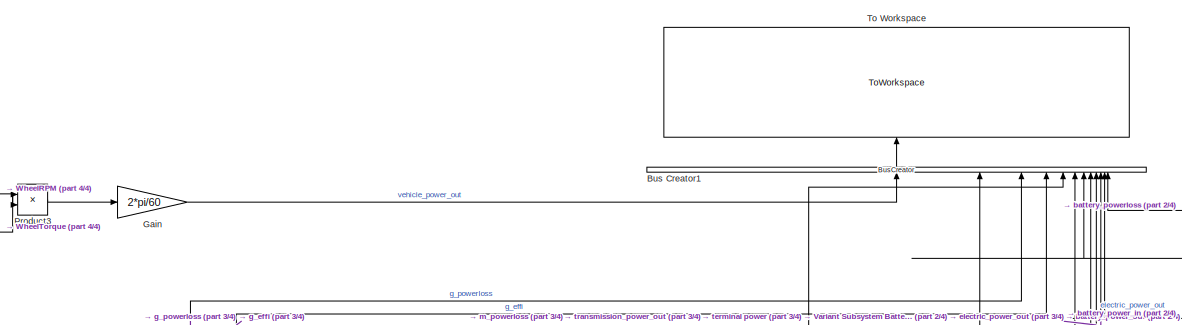
[diagram: root canvas - part 1/4, top center region]
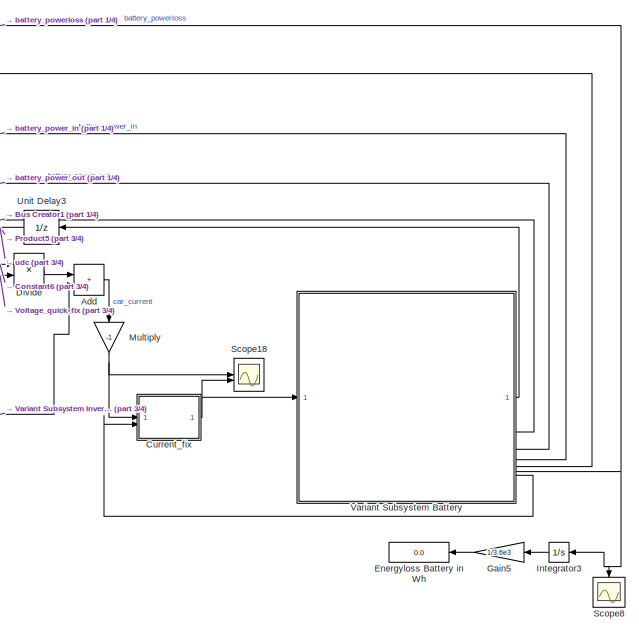
[diagram: root canvas - part 2/4, middle right region]
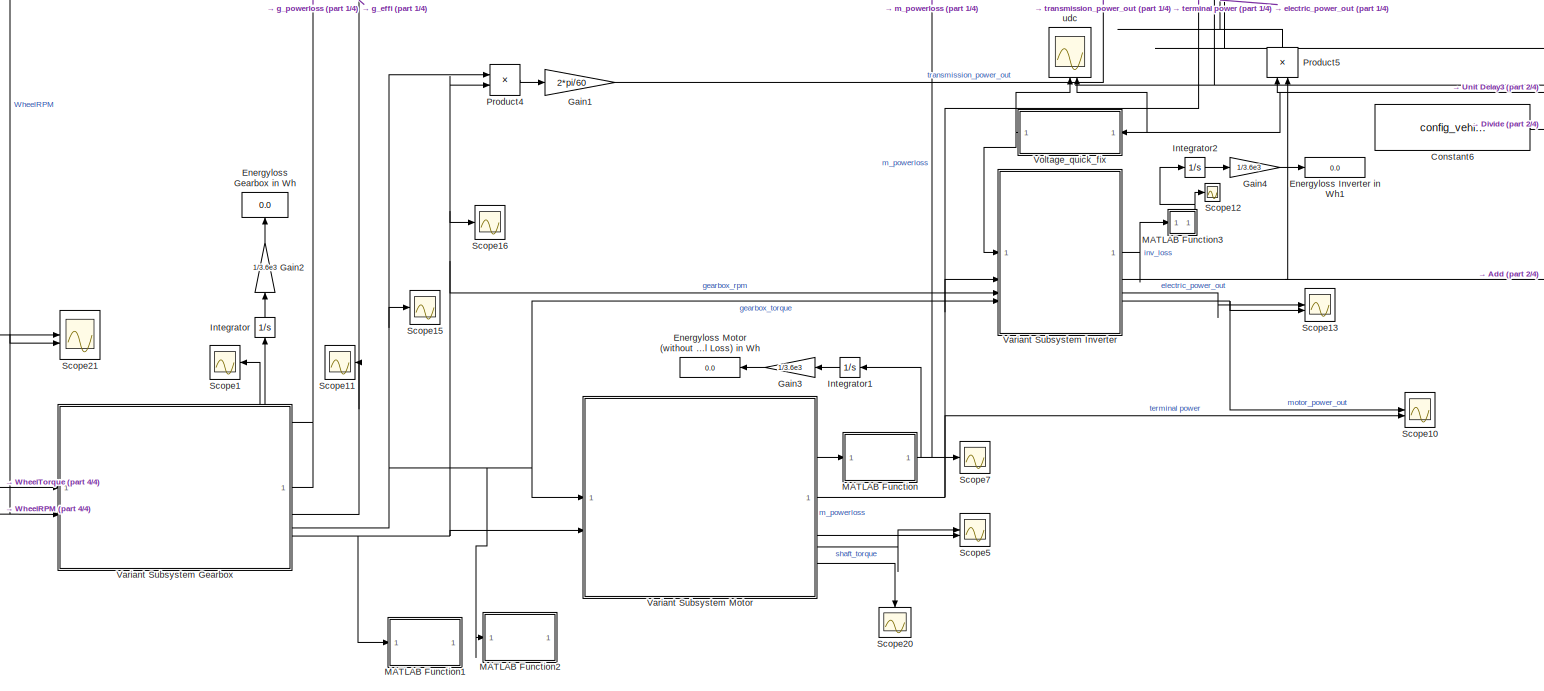
[diagram: root canvas - part 3/4, central region]
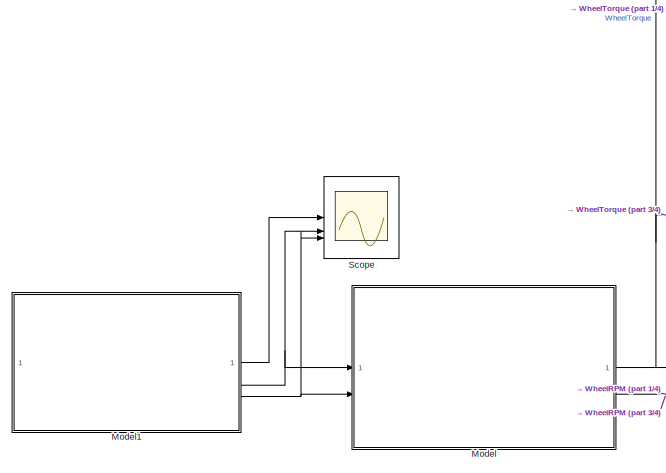
[diagram: root canvas - part 4/4, bottom left region]
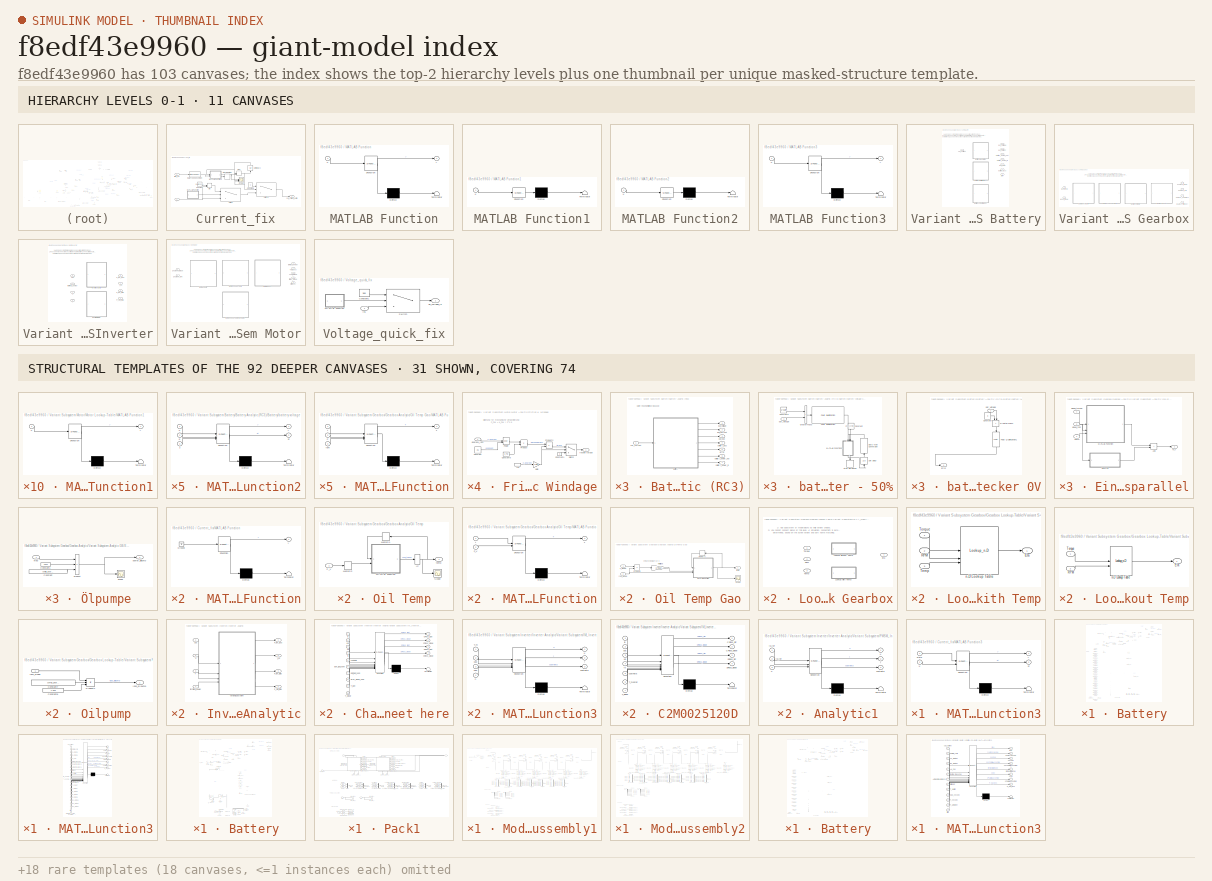
[diagram: thumbnail index - top-2 hierarchy levels (11 canvases) + 31 structural-template representatives of the remaining 92 canvases]
MODEL slx_f8edf43e9960
KIND model
CONFIG AbsTol = auto
CONFIG EnableMultiTasking = on
CONFIG FixedStep = 0.001
CONFIG MaxStep = 0.1
CONFIG MinStep = auto
CONFIG RelTol = 1e-3
CONFIG SampleTimeConstraint = Unconstrained
CONFIG SolverName = ode45
CONFIG StartTime = 0.0
CONFIG StopTime = 1220
BLOCK [Sum] Add
  IconShape = rectangular
BLOCK [BusCreator] Bus Creator1
  DisplayOption = bar
  InheritFromInputs = on
  Inputs = 12
  NameLocation = right
BLOCK [Constant] Constant6
  Value = config_vehicle.drain_auxiliaries
BLOCK [SubSystem] Current_fix
BLOCK [Constant] Current_fix/Constant
  Value = battery.SysInfo.I_max_sys
BLOCK [Constant] Current_fix/Constant1
  Value = 0
BLOCK [DataTypeConversion] Current_fix/Data Type Conversion
  OutDataTypeStr = double
  RndMeth = Floor
  SaturateOnIntegerOverflow = off
BLOCK [SubSystem] Current_fix/MATLAB Function
  ErrorFcn = Stateflow.Translate.translate
  PermitHierarchicalResolution = ExplicitOnly
  SFBlockType = MATLAB Function
  TreatAsAtomicUnit = on
BLOCK [Demux] Current_fix/MATLAB Function/ Demux 
  Outputs = 1
BLOCK [Ground] Current_fix/MATLAB Function/ Ground 
BLOCK [S-Function] Current_fix/MATLAB Function/ SFunction 
  EnableBusSupport = off
  FunctionName = sf_sfun
  PortCounts = [1 2]
  SFcnIsStateOwnerBlock = off
  SFunctionDeploymentMode = off
  Tag = Stateflow S-Function 6
BLOCK [Terminator] Current_fix/MATLAB Function/ Terminator 
BLOCK [Outport] Current_fix/MATLAB Function/y
BLOCK [SubSystem] Current_fix/MATLAB Function3
  ErrorFcn = Stateflow.Translate.translate
  PermitHierarchicalResolution = ExplicitOnly
  SFBlockType = MATLAB Function
  TreatAsAtomicUnit = on
BLOCK [Demux] Current_fix/MATLAB Function3/ Demux 
  Outputs = 1
BLOCK [S-Function] Current_fix/MATLAB Function3/ SFunction 
  EnableBusSupport = off
  FunctionName = sf_sfun
  PortCounts = [2 3]
  SFcnIsStateOwnerBlock = off
  SFunctionDeploymentMode = off
  Tag = Stateflow S-Function 18
BLOCK [Terminator] Current_fix/MATLAB Function3/ Terminator 
BLOCK [Outport] Current_fix/MATLAB Function3/st
  Port = 2
BLOCK [Inport] Current_fix/MATLAB Function3/state
BLOCK [Inport] Current_fix/MATLAB Function3/u
  Port = 2
BLOCK [Outport] Current_fix/MATLAB Function3/y
BLOCK [MinMax] Current_fix/Max
  Function = max
  Inputs = 2
BLOCK [MinMax] Current_fix/Min
  Inputs = 2
BLOCK [Scope] Current_fix/Scope
  Floating = off
  NumInputPorts = 3
  ScopeSpecificationString = Simulink.scopes.TimeScopeBlockCfg('CurrentConfiguration', extmgr.ConfigurationSet(extmgr.Configuration('Core','General UI',true),extmgr.Configuration('Core','Source UI',true),extmgr.Configuration('Sources','WiredSimulink',true,'DataLoggingVariableName','ScopeData1'),extmgr.Configuration('Visuals','Time Domain',true),extmgr.Configuration('Tools','Plot Navigation',true),extmgr.Configuration('Tools',...<+40ch>
BLOCK [Stop] Current_fix/Stop Simulation
BLOCK [Switch] Current_fix/Switch
  Criteria = u2 > Threshold
  InputSameDT = off
  SaturateOnIntegerOverflow = off
BLOCK [Switch] Current_fix/Switch1
  Criteria = u2 > Threshold
  InputSameDT = off
  SaturateOnIntegerOverflow = off
BLOCK [UnitDelay] Current_fix/Unit Delay2
  HasFrameUpgradeWarning = on
  NameLocation = left
  SampleTime = -1
BLOCK [Outport] Current_fix/car_current_batin
BLOCK [Inport] Current_fix/flag_0V
  Port = 2
BLOCK [Inport] Current_fix/i
BLOCK [Product] Divide
  Inputs = */
BLOCK [Display] Energyloss Battery in Wh
  Decimation = 1
BLOCK [Display] Energyloss Gearbox in Wh
  Decimation = 1
  NameLocation = left
BLOCK [Display] Energyloss Inverter in Wh1
  Decimation = 1
BLOCK [Display] Energyloss Motor (without Mechanical Loss) in Wh
  Decimation = 1
  NameLocation = top
BLOCK [Gain] Gain
  Gain = 2*pi/60
BLOCK [Gain] Gain1
  Gain = 2*pi/60
BLOCK [Gain] Gain2
  Gain = 1/3.6e3
  NameLocation = right
BLOCK [Gain] Gain3
  Gain = 1/3.6e3
  NameLocation = top
BLOCK [Gain] Gain4
  Gain = 1/3.6e3
BLOCK [Gain] Gain5
  Gain = 1/3.6e3
  NameLocation = top
BLOCK [Integrator] Integrator
  NameLocation = right
BLOCK [Integrator] Integrator1
  NameLocation = top
BLOCK [Integrator] Integrator2
BLOCK [Integrator] Integrator3
  NameLocation = top
BLOCK [SubSystem] MATLAB Function
  ErrorFcn = Stateflow.Translate.translate
  PermitHierarchicalResolution = ExplicitOnly
  SFBlockType = MATLAB Function
  TreatAsAtomicUnit = on
BLOCK [Demux] MATLAB Function/ Demux 
  Outputs = 1
BLOCK [S-Function] MATLAB Function/ SFunction 
  EnableBusSupport = off
  FunctionName = sf_sfun
  PortCounts = [1 2]
  SFcnIsStateOwnerBlock = off
  SFunctionDeploymentMode = off
  Tag = Stateflow S-Function 13
BLOCK [Terminator] MATLAB Function/ Terminator 
BLOCK [Inport] MATLAB Function/u
BLOCK [Outport] MATLAB Function/y
BLOCK [SubSystem] MATLAB Function1
  ErrorFcn = Stateflow.Translate.translate
  PermitHierarchicalResolution = ExplicitOnly
  SFBlockType = MATLAB Function
  TreatAsAtomicUnit = on
BLOCK [Demux] MATLAB Function1/ Demux 
  Outputs = 1
BLOCK [S-Function] MATLAB Function1/ SFunction 
  EnableBusSupport = off
  FunctionName = sf_sfun
  PortCounts = [1 1]
  SFcnIsStateOwnerBlock = off
  SFunctionDeploymentMode = off
  Tag = Stateflow S-Function 15
BLOCK [Terminator] MATLAB Function1/ Terminator 
BLOCK [Inport] MATLAB Function1/u
BLOCK [SubSystem] MATLAB Function2
  ErrorFcn = Stateflow.Translate.translate
  PermitHierarchicalResolution = ExplicitOnly
  SFBlockType = MATLAB Function
  TreatAsAtomicUnit = on
BLOCK [Demux] MATLAB Function2/ Demux 
  Outputs = 1
BLOCK [S-Function] MATLAB Function2/ SFunction 
  EnableBusSupport = off
  FunctionName = sf_sfun
  PortCounts = [1 1]
  SFcnIsStateOwnerBlock = off
  SFunctionDeploymentMode = off
  Tag = Stateflow S-Function 20
BLOCK [Terminator] MATLAB Function2/ Terminator 
BLOCK [Inport] MATLAB Function2/u
BLOCK [SubSystem] MATLAB Function3
  ErrorFcn = Stateflow.Translate.translate
  PermitHierarchicalResolution = ExplicitOnly
  SFBlockType = MATLAB Function
  TreatAsAtomicUnit = on
BLOCK [Demux] MATLAB Function3/ Demux 
  Outputs = 1
BLOCK [S-Function] MATLAB Function3/ SFunction 
  EnableBusSupport = off
  FunctionName = sf_sfun
  PortCounts = [1 2]
  SFcnIsStateOwnerBlock = off
  SFunctionDeploymentMode = off
  Tag = Stateflow S-Function 30
BLOCK [Terminator] MATLAB Function3/ Terminator 
BLOCK [Inport] MATLAB Function3/u
BLOCK [Outport] MATLAB Function3/y
BLOCK [ModelReference] Model
  ModelNameDialog = vehicle_model.slx
  ModelReferenceVersion = 2.0
BLOCK [ModelReference] Model1
  ModelNameDialog = drive_cycle.slx
  ModelReferenceVersion = 1.0
BLOCK [Gain] Multiply
  Gain = -1
  NameLocation = left
BLOCK [Product] Product3
BLOCK [Product] Product4
BLOCK [Product] Product5
  NameLocation = right
BLOCK [Scope] Scope
  Floating = off
  NumInputPorts = 3
  ScopeSpecificationString = Simulink.scopes.TimeScopeBlockCfg('CurrentConfiguration', extmgr.ConfigurationSet(extmgr.Configuration('Core','General UI',true),extmgr.Configuration('Core','Source UI',true),extmgr.Configuration('Sources','WiredSimulink',true,'DataLoggingVariableName','ScopeData1'),extmgr.Configuration('Visuals','Time Domain',true,'SerializedDisplays',{struct('MinYLimReal','-159.75','MaxYLimReal','1437.75','YLabe...<+2726ch>
BLOCK [Scope] Scope1
  Floating = off
  NameLocation = top
  NumInputPorts = 1
  ScopeSpecificationString = Simulink.scopes.TimeScopeBlockCfg('CurrentConfiguration', extmgr.ConfigurationSet(extmgr.Configuration('Core','General UI',true),extmgr.Configuration('Core','Source UI',true),extmgr.Configuration('Sources','WiredSimulink',true,'DataLoggingVariableName','ScopeData1'),extmgr.Configuration('Visuals','Time Domain',true,'SerializedDisplays',{struct('MinYLimReal','-358.75422','MaxYLimReal','3228.78797',...<+1539ch>
BLOCK [Scope] Scope10
  Floating = off
  NumInputPorts = 2
  ScopeSpecificationString = Simulink.scopes.TimeScopeBlockCfg('CurrentConfiguration', extmgr.ConfigurationSet(extmgr.Configuration('Core','General UI',true),extmgr.Configuration('Core','Source UI',true),extmgr.Configuration('Sources','WiredSimulink',true,'DataLoggingVariableName','ScopeData1','DataLoggingSaveFormat','StructureWithTime'),extmgr.Configuration('Visuals','Time Domain',true,'SerializedDisplays',{struct('MinYLimRe...<+1714ch>
BLOCK [Scope] Scope11
  Floating = off
  NameLocation = top
  NumInputPorts = 1
  ScopeSpecificationString = Simulink.scopes.TimeScopeBlockCfg('CurrentConfiguration', extmgr.ConfigurationSet(extmgr.Configuration('Core','General UI',true),extmgr.Configuration('Core','Source UI',true),extmgr.Configuration('Sources','WiredSimulink',true,'DataLoggingVariableName','ScopeData2'),extmgr.Configuration('Visuals','Time Domain',true,'SerializedDisplays',{struct('MinYLimReal','-0.12303','MaxYLimReal','1.10731','YLab...<+1587ch>
BLOCK [Scope] Scope12
  Floating = off
  NumInputPorts = 1
  ScopeSpecificationString = Simulink.scopes.TimeScopeBlockCfg('CurrentConfiguration', extmgr.ConfigurationSet(extmgr.Configuration('Core','General UI',true),extmgr.Configuration('Core','Source UI',true),extmgr.Configuration('Sources','WiredSimulink',true,'DataLoggingVariableName','ScopeData1'),extmgr.Configuration('Visuals','Time Domain',true,'SerializedDisplays',{struct('MinYLimReal','-568.19168','MaxYLimReal','5113.72508',...<+1444ch>
BLOCK [Scope] Scope13
  Floating = off
  NumInputPorts = 2
  ScopeSpecificationString = Simulink.scopes.TimeScopeBlockCfg('CurrentConfiguration', extmgr.ConfigurationSet(extmgr.Configuration('Core','General UI',true),extmgr.Configuration('Core','Source UI',true),extmgr.Configuration('Sources','WiredSimulink',true,'DataLoggingVariableName','ScopeData2'),extmgr.Configuration('Visuals','Time Domain',true,'SerializedDisplays',{struct('MinYLimReal','-51816.80231','MaxYLimReal','69555.6465...<+1548ch>
BLOCK [Scope] Scope15
  Floating = off
  NumInputPorts = 1
  ScopeSpecificationString = Simulink.scopes.TimeScopeBlockCfg('CurrentConfiguration', extmgr.ConfigurationSet(extmgr.Configuration('Core','General UI',true),extmgr.Configuration('Core','Source UI',true),extmgr.Configuration('Sources','WiredSimulink',true,'DataLoggingVariableName','ScopeData1'),extmgr.Configuration('Visuals','Time Domain',true,'SerializedDisplays',{struct('MinYLimReal','-116.86222','MaxYLimReal','117.91957','...<+1634ch>
BLOCK [Scope] Scope16
  Floating = off
  NumInputPorts = 1
  ScopeSpecificationString = Simulink.scopes.TimeScopeBlockCfg('CurrentConfiguration', extmgr.ConfigurationSet(extmgr.Configuration('Core','General UI',true),extmgr.Configuration('Core','Source UI',true),extmgr.Configuration('Sources','WiredSimulink',true,'DataLoggingVariableName','ScopeData2'),extmgr.Configuration('Visuals','Time Domain',true,'SerializedDisplays',{struct('MinYLimReal','-32.61187','MaxYLimReal','145.35036','Y...<+1458ch>
BLOCK [Scope] Scope18
  Floating = off
  NumInputPorts = 2
  ScopeSpecificationString = Simulink.scopes.TimeScopeBlockCfg('CurrentConfiguration', extmgr.ConfigurationSet(extmgr.Configuration('Core','General UI',true),extmgr.Configuration('Core','Source UI',true),extmgr.Configuration('Sources','WiredSimulink',true,'DataLoggingVariableName','ScopeData1'),extmgr.Configuration('Visuals','Time Domain',true,'SerializedDisplays',{struct('MinYLimReal','-144.91211','MaxYLimReal','100.5719','Y...<+1497ch>
BLOCK [Scope] Scope20
  Floating = off
  NameLocation = left
  NumInputPorts = 1
  ScopeSpecificationString = Simulink.scopes.TimeScopeBlockCfg('CurrentConfiguration', extmgr.ConfigurationSet(extmgr.Configuration('Core','General UI',true),extmgr.Configuration('Core','Source UI',true),extmgr.Configuration('Sources','WiredSimulink',true,'DataLoggingVariableName','ScopeData5'),extmgr.Configuration('Visuals','Time Domain',true,'SerializedDisplays',{struct('MinYLimReal','-0.12143','MaxYLimReal','1.09284','YLab...<+1585ch>
BLOCK [Scope] Scope21
  Floating = off
  NumInputPorts = 2
  ScopeSpecificationString = Simulink.scopes.TimeScopeBlockCfg('CurrentConfiguration', extmgr.ConfigurationSet(extmgr.Configuration('Core','General UI',true),extmgr.Configuration('Core','Source UI',true),extmgr.Configuration('Sources','WiredSimulink',true,'DataLoggingVariableName','ScopeData1'),extmgr.Configuration('Visuals','Time Domain',true,'SerializedDisplays',{struct('MinYLimReal','-1234.89518','MaxYLimReal','1499.23277'...<+1519ch>
BLOCK [Scope] Scope5
  Floating = off
  NumInputPorts = 2
  ScopeSpecificationString = Simulink.scopes.TimeScopeBlockCfg('CurrentConfiguration', extmgr.ConfigurationSet(extmgr.Configuration('Core','General UI',true),extmgr.Configuration('Core','Source UI',true),extmgr.Configuration('Sources','WiredSimulink',true,'DataLoggingVariableName','ScopeData1'),extmgr.Configuration('Visuals','Time Domain',true,'SerializedDisplays',{struct('MinYLimReal','-114.23633','MaxYLimReal','140.79313','...<+2163ch>
BLOCK [Scope] Scope7
  Floating = off
  NumInputPorts = 1
  ScopeSpecificationString = Simulink.scopes.TimeScopeBlockCfg('CurrentConfiguration', extmgr.ConfigurationSet(extmgr.Configuration('Core','General UI',true),extmgr.Configuration('Core','Source UI',true),extmgr.Configuration('Sources','WiredSimulink',true,'DataLoggingVariableName','ScopeData1'),extmgr.Configuration('Visuals','Time Domain',true,'SerializedDisplays',{struct('MinYLimReal','-442.03677','MaxYLimReal','3978.33091',...<+1586ch>
BLOCK [Scope] Scope8
  Floating = off
  NameLocation = left
  NumInputPorts = 1
  ScopeSpecificationString = Simulink.scopes.TimeScopeBlockCfg('CurrentConfiguration', extmgr.ConfigurationSet(extmgr.Configuration('Core','General UI',true),extmgr.Configuration('Core','Source UI',true),extmgr.Configuration('Sources','WiredSimulink',true,'DataLoggingVariableName','ScopeData1'),extmgr.Configuration('Visuals','Time Domain',true,'SerializedDisplays',{struct('MinYLimReal','-0.70138','MaxYLimReal','6.51173','YLab...<+1609ch>
BLOCK [ToWorkspace] To Workspace
  FixptAsFi = on
  MaxDataPoints = inf
  NameLocation = right
  SampleTime = -1
  SaveFormat = Timeseries
  VariableName = sim_out
BLOCK [UnitDelay] Unit Delay3
  HasFrameUpgradeWarning = on
  InitialCondition = battery.SysInfo.U0_start
  NameLocation = top
  SampleTime = -1
BLOCK [SubSystem] Variant Subsystem Battery
  Variant = on
BLOCK [SubSystem] Variant Subsystem Battery/Battery Analytic (RC3)
  VariantControl = Battery_Mode == "AnalyticRC3"
BLOCK [SubSystem] Variant Subsystem Battery/Battery Analytic (RC3)/Battery
BLOCK [Abs] Variant Subsystem Battery/Battery Analytic (RC3)/Battery/Abs2
  SaturateOnIntegerOverflow = off
BLOCK [Constant] Variant Subsystem Battery/Battery Analytic (RC3)/Battery/Constant1
  Value = ModuleType1.R1_matCell
BLOCK [Constant] Variant Subsystem Battery/Battery Analytic (RC3)/Battery/Constant10
  Value = ModuleType1.T_vecCell
BLOCK [Constant] Variant Subsystem Battery/Battery Analytic (RC3)/Battery/Constant11
  Value = ModuleAssembly1.Module1.socCell
BLOCK [Constant] Variant Subsystem Battery/Battery Analytic (RC3)/Battery/Constant12
  Value = ModuleType1.R0_matCell
BLOCK [Constant] Variant Subsystem Battery/Battery Analytic (RC3)/Battery/Constant13
  Value = ModuleAssembly1.Module1.temperatureCell
BLOCK [Constant] Variant Subsystem Battery/Battery Analytic (RC3)/Battery/Constant14
  Value = ModuleType1.V0_matCell
BLOCK [Constant] Variant Subsystem Battery/Battery Analytic (RC3)/Battery/Constant15
  Value = ModuleType1.SOC_vecCell
BLOCK [Constant] Variant Subsystem Battery/Battery Analytic (RC3)/Battery/Constant16
  Value = ModuleType1.CellBalancingClosedResistance
BLOCK [Constant] Variant Subsystem Battery/Battery Analytic (RC3)/Battery/Constant17
  Value = config_vehicle.ambient_temp
BLOCK [Constant] Variant Subsystem Battery/Battery Analytic (RC3)/Battery/Constant18
  Value = battery.BTMSPara.T_fluid_in
BLOCK [Constant] Variant Subsystem Battery/Battery Analytic (RC3)/Battery/Constant19
  Value = battery.ModInfo.num_parallel_cells_mod
BLOCK [Constant] Variant Subsystem Battery/Battery Analytic (RC3)/Battery/Constant2
  Value = ModuleType1.R2_matCell
BLOCK [Constant] Variant Subsystem Battery/Battery Analytic (RC3)/Battery/Constant20
  Value = battery.SysInfo.num_parallel_mods_sys
BLOCK [Constant] Variant Subsystem Battery/Battery Analytic (RC3)/Battery/Constant22
  Value = ModuleType1.R3_matCell
BLOCK [Constant] Variant Subsystem Battery/Battery Analytic (RC3)/Battery/Constant23
  Value = ModuleType1.tau1_matCell
BLOCK [Constant] Variant Subsystem Battery/Battery Analytic (RC3)/Battery/Constant24
  Value = ModuleType1.tau2_matCell
BLOCK [Constant] Variant Subsystem Battery/Battery Analytic (RC3)/Battery/Constant25
  Value = ModuleType1.tau3_matCell
BLOCK [Constant] Variant Subsystem Battery/Battery Analytic (RC3)/Battery/Constant3
  NameLocation = top
  Value = config_battery.simulationstop_SOC
BLOCK [Constant] Variant Subsystem Battery/Battery Analytic (RC3)/Battery/Constant4
  Value = battery.SysInfo.I_max_sys * config_battery.overcurrentfactor_racemode
BLOCK [Constant] Variant Subsystem Battery/Battery Analytic (RC3)/Battery/Constant5
  Value = ModuleType1.AHCell
BLOCK [Constant] Variant Subsystem Battery/Battery Analytic (RC3)/Battery/Constant6
  Value = ModuleType1.simulation_charge_dynamics
BLOCK [Constant] Variant Subsystem Battery/Battery Analytic (RC3)/Battery/Constant7
  Value = ModuleType1.thermal_massCell
BLOCK [Constant] Variant Subsystem Battery/Battery Analytic (RC3)/Battery/Constant8
  Value = ModuleType1.CoolantResistance
BLOCK [Constant] Variant Subsystem Battery/Battery Analytic (RC3)/Battery/Constant9
  Value = ModuleType1.AmbientResistance
BLOCK [Outport] Variant Subsystem Battery/Battery Analytic (RC3)/Battery/Error
  Port = 5
BLOCK [Reference] Variant Subsystem Battery/Battery Analytic (RC3)/Battery/Fault Qualification  REF=BatteryProtection/Fault Qualification
  SourceBlock = BatteryProtection/Fault Qualification
  SourceType = Fault Qualification
BLOCK [FromWorkspace] Variant Subsystem Battery/Battery Analytic (RC3)/Battery/From Workspace1
  VariableName = [dc.time, dc.time]
BLOCK [RelationalOperator] Variant Subsystem Battery/Battery Analytic (RC3)/Battery/GreaterThan1
  InputSameDT = off
  NameLocation = top
  OutDataTypeStr = boolean
  RndMeth = Simplest
BLOCK [RelationalOperator] Variant Subsystem Battery/Battery Analytic (RC3)/Battery/GreaterThan2
  InputSameDT = off
  Operator = >
  OutDataTypeStr = boolean
  RndMeth = Simplest
BLOCK [SubSystem] Variant Subsystem Battery/Battery Analytic (RC3)/Battery/MATLAB Function
  ErrorFcn = Stateflow.Translate.translate
  NameLocation = top
  PermitHierarchicalResolution = ExplicitOnly
  SFBlockType = MATLAB Function
  TreatAsAtomicUnit = on
BLOCK [Demux] Variant Subsystem Battery/Battery Analytic (RC3)/Battery/MATLAB Function/ Demux 
  Outputs = 1
BLOCK [S-Function] Variant Subsystem Battery/Battery Analytic (RC3)/Battery/MATLAB Function/ SFunction 
  EnableBusSupport = off
  FunctionName = sf_sfun
  PortCounts = [1 2]
  SFcnIsStateOwnerBlock = off
  SFunctionDeploymentMode = off
  Tag = Stateflow S-Function 2
BLOCK [Terminator] Variant Subsystem Battery/Battery Analytic (RC3)/Battery/MATLAB Function/ Terminator 
BLOCK [Inport] Variant Subsystem Battery/Battery Analytic (RC3)/Battery/MATLAB Function/u
BLOCK [Outport] Variant Subsystem Battery/Battery Analytic (RC3)/Battery/MATLAB Function/y
BLOCK [SubSystem] Variant Subsystem Battery/Battery Analytic (RC3)/Battery/MATLAB Function1
  ErrorFcn = Stateflow.Translate.translate
  PermitHierarchicalResolution = ExplicitOnly
  SFBlockType = MATLAB Function
  TreatAsAtomicUnit = on
BLOCK [Demux] Variant Subsystem Battery/Battery Analytic (RC3)/Battery/MATLAB Function1/ Demux 
  Outputs = 1
BLOCK [S-Function] Variant Subsystem Battery/Battery Analytic (RC3)/Battery/MATLAB Function1/ SFunction 
  EnableBusSupport = off
  FunctionName = sf_sfun
  PortCounts = [1 2]
  SFcnIsStateOwnerBlock = off
  SFunctionDeploymentMode = off
  Tag = Stateflow S-Function 3
BLOCK [Terminator] Variant Subsystem Battery/Battery Analytic (RC3)/Battery/MATLAB Function1/ Terminator 
BLOCK [Inport] Variant Subsystem Battery/Battery Analytic (RC3)/Battery/MATLAB Function1/u
BLOCK [Outport] Variant Subsystem Battery/Battery Analytic (RC3)/Battery/MATLAB Function1/y
BLOCK [SubSystem] Variant Subsystem Battery/Battery Analytic (RC3)/Battery/MATLAB Function3
  ErrorFcn = Stateflow.Translate.translate
  PermitHierarchicalResolution = ExplicitOnly
  SFBlockType = MATLAB Function
  TreatAsAtomicUnit = on
BLOCK [Demux] Variant Subsystem Battery/Battery Analytic (RC3)/Battery/MATLAB Function3/ Demux 
  Outputs = 1
BLOCK [S-Function] Variant Subsystem Battery/Battery Analytic (RC3)/Battery/MATLAB Function3/ SFunction 
  EnableBusSupport = off
  FunctionName = sf_sfun
  PortCounts = [23 9]
  SFcnIsStateOwnerBlock = off
  SFunctionDeploymentMode = off
  Tag = Stateflow S-Function 8
BLOCK [Terminator] Variant Subsystem Battery/Battery Analytic (RC3)/Battery/MATLAB Function3/ Terminator 
BLOCK [Inport] Variant Subsystem Battery/Battery Analytic (RC3)/Battery/MATLAB Function3/AH_Cell
  Port = 5
BLOCK [Inport] Variant Subsystem Battery/Battery Analytic (RC3)/Battery/MATLAB Function3/AmbientResistance
  Port = 8
BLOCK [Inport] Variant Subsystem Battery/Battery Analytic (RC3)/Battery/MATLAB Function3/CellBalancingClosedResistance
  Port = 13
BLOCK [Inport] Variant Subsystem Battery/Battery Analytic (RC3)/Battery/MATLAB Function3/CoolantResistance
  Port = 7
BLOCK [Inport] Variant Subsystem Battery/Battery Analytic (RC3)/Battery/MATLAB Function3/InitialSOC
  Port = 9
BLOCK [Outport] Variant Subsystem Battery/Battery Analytic (RC3)/Battery/MATLAB Function3/P_bat_loss
  Port = 8
BLOCK [Inport] Variant Subsystem Battery/Battery Analytic (RC3)/Battery/MATLAB Function3/R0_matCell
  Port = 4
BLOCK [Inport] Variant Subsystem Battery/Battery Analytic (RC3)/Battery/MATLAB Function3/R1_matCell
  Port = 16
BLOCK [Inport] Variant Subsystem Battery/Battery Analytic (RC3)/Battery/MATLAB Function3/R2_matCell
  Port = 17
BLOCK [Inport] Variant Subsystem Battery/Battery Analytic (RC3)/Battery/MATLAB Function3/R3_matCell
  Port = 18
BLOCK [Inport] Variant Subsystem Battery/Battery Analytic (RC3)/Battery/MATLAB Function3/SOC_vecCell
  Port = 11
BLOCK [Inport] Variant Subsystem Battery/Battery Analytic (RC3)/Battery/MATLAB Function3/T_ambient
  Port = 15
BLOCK [Inport] Variant Subsystem Battery/Battery Analytic (RC3)/Battery/MATLAB Function3/T_battery
  Port = 10
BLOCK [Inport] Variant Subsystem Battery/Battery Analytic (RC3)/Battery/MATLAB Function3/T_coolant
  Port = 14
BLOCK [Inport] Variant Subsystem Battery/Battery Analytic (RC3)/Battery/MATLAB Function3/T_vecCell
  Port = 12
BLOCK [Inport] Variant Subsystem Battery/Battery Analytic (RC3)/Battery/MATLAB Function3/V0_matCell
  Port = 3
BLOCK [Inport] Variant Subsystem Battery/Battery Analytic (RC3)/Battery/MATLAB Function3/car_current
BLOCK [Outport] Variant Subsystem Battery/Battery Analytic (RC3)/Battery/MATLAB Function3/iCell
BLOCK [Outport] Variant Subsystem Battery/Battery Analytic (RC3)/Battery/MATLAB Function3/numCyclesCell
  Port = 2
BLOCK [Inport] Variant Subsystem Battery/Battery Analytic (RC3)/Battery/MATLAB Function3/parallel_cells
  Port = 2
BLOCK [Inport] Variant Subsystem Battery/Battery Analytic (RC3)/Battery/MATLAB Function3/simulation_charge_dynamics
  Port = 23
BLOCK [Outport] Variant Subsystem Battery/Battery Analytic (RC3)/Battery/MATLAB Function3/socCell
  Port = 3
BLOCK [Outport] Variant Subsystem Battery/Battery Analytic (RC3)/Battery/MATLAB Function3/socParallelAssembly
  Port = 4
BLOCK [Inport] Variant Subsystem Battery/Battery Analytic (RC3)/Battery/MATLAB Function3/tau1_matCell
  Port = 19
BLOCK [Inport] Variant Subsystem Battery/Battery Analytic (RC3)/Battery/MATLAB Function3/tau2_matCell
  Port = 20
BLOCK [Inport] Variant Subsystem Battery/Battery Analytic (RC3)/Battery/MATLAB Function3/tau3_matCell
  Port = 21
BLOCK [Outport] Variant Subsystem Battery/Battery Analytic (RC3)/Battery/MATLAB Function3/temperatureCell
  Port = 5
BLOCK [Inport] Variant Subsystem Battery/Battery Analytic (RC3)/Battery/MATLAB Function3/thermal_massCell
  Port = 6
BLOCK [Inport] Variant Subsystem Battery/Battery Analytic (RC3)/Battery/MATLAB Function3/time
  Port = 22
BLOCK [Outport] Variant Subsystem Battery/Battery Analytic (RC3)/Battery/MATLAB Function3/vCell
  Port = 6
BLOCK [Outport] Variant Subsystem Battery/Battery Analytic (RC3)/Battery/MATLAB Function3/vParallelAssembly
  Port = 7
BLOCK [Gain] Variant Subsystem Battery/Battery Analytic (RC3)/Battery/Multiply1
  Gain = battery.ModInfo.num_parallel_cells_mod
BLOCK [Gain] Variant Subsystem Battery/Battery Analytic (RC3)/Battery/Multiply2
  Gain = battery.ModInfo.num_serial_cells_mod
  NameLocation = right
BLOCK [Gain] Variant Subsystem Battery/Battery Analytic (RC3)/Battery/Multiply3
  Gain = battery.SysInfo.num_serial_mods_sys
  NameLocation = right
BLOCK [Gain] Variant Subsystem Battery/Battery Analytic (RC3)/Battery/Multiply4
  Gain = battery.ModInfo.num_parallel_cells_mod
  NameLocation = right
BLOCK [Gain] Variant Subsystem Battery/Battery Analytic (RC3)/Battery/Multiply5
  Gain = battery.ModInfo.num_serial_cells_mod
BLOCK [Gain] Variant Subsystem Battery/Battery Analytic (RC3)/Battery/Multiply6
  Gain = battery.SysInfo.num_parallel_mods_sys
  NameLocation = right
BLOCK [Gain] Variant Subsystem Battery/Battery Analytic (RC3)/Battery/Multiply7
  Gain = battery.SysInfo.num_serial_mods_sys
BLOCK [Gain] Variant Subsystem Battery/Battery Analytic (RC3)/Battery/Multiply8
  Gain = battery.SysInfo.num_parallel_mods_sys
BLOCK [Product] Variant Subsystem Battery/Battery Analytic (RC3)/Battery/Product
BLOCK [Product] Variant Subsystem Battery/Battery Analytic (RC3)/Battery/Product1
BLOCK [Product] Variant Subsystem Battery/Battery Analytic (RC3)/Battery/Product2
BLOCK [Scope] Variant Subsystem Battery/Battery Analytic (RC3)/Battery/Scope
  Floating = off
  NumInputPorts = 1
  ScopeSpecificationString = Simulink.scopes.TimeScopeBlockCfg('CurrentConfiguration', extmgr.ConfigurationSet(extmgr.Configuration('Core','General UI',true),extmgr.Configuration('Core','Source UI',true),extmgr.Configuration('Sources','WiredSimulink',true,'DataLoggingVariableName','ScopeData1'),extmgr.Configuration('Visuals','Time Domain',true,'SerializedDisplays',{struct('MinYLimReal','-71.16232','MaxYLimReal','50.19761','YL...<+1412ch>
BLOCK [Scope] Variant Subsystem Battery/Battery Analytic (RC3)/Battery/Scope8
  Floating = off
  NumInputPorts = 2
  ScopeSpecificationString = Simulink.scopes.TimeScopeBlockCfg('CurrentConfiguration', extmgr.ConfigurationSet(extmgr.Configuration('Core','General UI',true),extmgr.Configuration('Core','Source UI',true),extmgr.Configuration('Sources','WiredSimulink',true,'DataLoggingVariableName','ScopeData1'),extmgr.Configuration('Visuals','Time Domain',true,'SerializedDisplays',{struct('MinYLimReal','-53.89212','MaxYLimReal','485.15468','Y...<+1418ch>  <repeated x3 — deduplicated; at blocks: Scope8>
BLOCK [Scope] Variant Subsystem Battery/Battery Analytic (RC3)/Battery/Scope9
  Floating = off
  NameLocation = top
  NumInputPorts = 2
  ScopeSpecificationString = Simulink.scopes.TimeScopeBlockCfg('CurrentConfiguration', extmgr.ConfigurationSet(extmgr.Configuration('Core','General UI',true),extmgr.Configuration('Core','Source UI',true),extmgr.Configuration('Sources','WiredSimulink',true,'DataLoggingVariableName','ScopeData2'),extmgr.Configuration('Visuals','Time Domain',true,'SerializedDisplays',{struct('MinYLimReal','0.99693','MaxYLimReal','1.00105','YLabe...<+1456ch>  <repeated x3 — deduplicated; at blocks: Scope9>
BLOCK [Stop] Variant Subsystem Battery/Battery Analytic (RC3)/Battery/Stop Simulation2
  NameLocation = top
BLOCK [Stop] Variant Subsystem Battery/Battery Analytic (RC3)/Battery/Stop Simulation3
  Commented = on
BLOCK [Terminator] Variant Subsystem Battery/Battery Analytic (RC3)/Battery/Terminator
BLOCK [Terminator] Variant Subsystem Battery/Battery Analytic (RC3)/Battery/Terminator4
BLOCK [Terminator] Variant Subsystem Battery/Battery Analytic (RC3)/Battery/Terminator5
  NameLocation = top
BLOCK [Terminator] Variant Subsystem Battery/Battery Analytic (RC3)/Battery/Terminator_numcyc
BLOCK [Terminator] Variant Subsystem Battery/Battery Analytic (RC3)/Battery/Terminator_socC
BLOCK [Terminator] Variant Subsystem Battery/Battery Analytic (RC3)/Battery/Terminator_socC1
BLOCK [UnitDelay] Variant Subsystem Battery/Battery Analytic (RC3)/Battery/Unit Delay
  HasFrameUpgradeWarning = on
  SampleTime = -1
BLOCK [ZeroOrderHold] Variant Subsystem Battery/Battery Analytic (RC3)/Battery/Zero-Order Hold
  SampleTime = -1
BLOCK [Outport] Variant Subsystem Battery/Battery Analytic (RC3)/Battery/bat_Current
  NameLocation = top
  Port = 2
BLOCK [Outport] Variant Subsystem Battery/Battery Analytic (RC3)/Battery/bat_SOC
  Port = 3
BLOCK [Outport] Variant Subsystem Battery/Battery Analytic (RC3)/Battery/bat_Voltage
  NameLocation = top
BLOCK [SubSystem] Variant Subsystem Battery/Battery Analytic (RC3)/Battery/battery voltage checker - 50%
  NameLocation = right
BLOCK [Constant] Variant Subsystem Battery/Battery Analytic (RC3)/Battery/battery voltage checker - 50%/Constant
  NameLocation = left
  Value = acc_cycle_flag
BLOCK [Constant] Variant Subsystem Battery/Battery Analytic (RC3)/Battery/battery voltage checker - 50%/Constant5
  Value = 0.5 * battery.SysInfo.U_max_sys
BLOCK [DataTypeConversion] Variant Subsystem Battery/Battery Analytic (RC3)/Battery/battery voltage checker - 50%/Data Type Conversion
  NameLocation = right
  OutDataTypeStr = double
  RndMeth = Floor
  SaturateOnIntegerOverflow = off
BLOCK [Reference] Variant Subsystem Battery/Battery Analytic (RC3)/Battery/battery voltage checker - 50%/Fault Qualification  REF=BatteryProtection/Fault Qualification
  SourceBlock = BatteryProtection/Fault Qualification
  SourceType = Fault Qualification
BLOCK [RelationalOperator] Variant Subsystem Battery/Battery Analytic (RC3)/Battery/battery voltage checker - 50%/GreaterThan3
  InputSameDT = off
  Operator = >
  OutDataTypeStr = boolean
  RndMeth = Simplest
BLOCK [SubSystem] Variant Subsystem Battery/Battery Analytic (RC3)/Battery/battery voltage checker - 50%/MATLAB Function2
  ErrorFcn = Stateflow.Translate.translate
  NameLocation = left
  PermitHierarchicalResolution = ExplicitOnly
  SFBlockType = MATLAB Function
  TreatAsAtomicUnit = on
BLOCK [Demux] Variant Subsystem Battery/Battery Analytic (RC3)/Battery/battery voltage checker - 50%/MATLAB Function2/ Demux 
  Outputs = 1
BLOCK [S-Function] Variant Subsystem Battery/Battery Analytic (RC3)/Battery/battery voltage checker - 50%/MATLAB Function2/ SFunction 
  EnableBusSupport = off
  FunctionName = sf_sfun
  PortCounts = [3 3]
  SFcnIsStateOwnerBlock = off
  SFunctionDeploymentMode = off
  Tag = Stateflow S-Function 7
BLOCK [Terminator] Variant Subsystem Battery/Battery Analytic (RC3)/Battery/battery voltage checker - 50%/MATLAB Function2/ Terminator 
BLOCK [Inport] Variant Subsystem Battery/Battery Analytic (RC3)/Battery/battery voltage checker - 50%/MATLAB Function2/d
  Port = 2
BLOCK [Outport] Variant Subsystem Battery/Battery Analytic (RC3)/Battery/battery voltage checker - 50%/MATLAB Function2/st
  Port = 2
BLOCK [Inport] Variant Subsystem Battery/Battery Analytic (RC3)/Battery/battery voltage checker - 50%/MATLAB Function2/u
BLOCK [Outport] Variant Subsystem Battery/Battery Analytic (RC3)/Battery/battery voltage checker - 50%/MATLAB Function2/y
BLOCK [Inport] Variant Subsystem Battery/Battery Analytic (RC3)/Battery/battery voltage checker - 50%/MATLAB Function2/z
  Port = 3
BLOCK [Stop] Variant Subsystem Battery/Battery Analytic (RC3)/Battery/battery voltage checker - 50%/Stop Simulation
  NameLocation = left
BLOCK [UnitDelay] Variant Subsystem Battery/Battery Analytic (RC3)/Battery/battery voltage checker - 50%/Unit Delay
  HasFrameUpgradeWarning = on
  NameLocation = right
  SampleTime = -1
BLOCK [Inport] Variant Subsystem Battery/Battery Analytic (RC3)/Battery/battery voltage checker - 50%/bat_Voltage
BLOCK [SubSystem] Variant Subsystem Battery/Battery Analytic (RC3)/Battery/battery voltage checker 0V
  NameLocation = right
BLOCK [Constant] Variant Subsystem Battery/Battery Analytic (RC3)/Battery/battery voltage checker 0V/Constant7
  Value = 0
BLOCK [Outport] Variant Subsystem Battery/Battery Analytic (RC3)/Battery/battery voltage checker 0V/Error
BLOCK [Reference] Variant Subsystem Battery/Battery Analytic (RC3)/Battery/battery voltage checker 0V/Fault Qualification1  REF=BatteryProtection/Fault Qualification
  NameLocation = left
  SourceBlock = BatteryProtection/Fault Qualification
  SourceType = Fault Qualification
BLOCK [RelationalOperator] Variant Subsystem Battery/Battery Analytic (RC3)/Battery/battery voltage checker 0V/GreaterThan4
  InputSameDT = off
  NameLocation = left
  Operator = >
  OutDataTypeStr = boolean
  RndMeth = Simplest
BLOCK [Inport] Variant Subsystem Battery/Battery Analytic (RC3)/Battery/battery voltage checker 0V/bat_Voltage
BLOCK [Outport] Variant Subsystem Battery/Battery Analytic (RC3)/Battery/battery_loss
  Port = 4
BLOCK [Outport] Variant Subsystem Battery/Battery Analytic (RC3)/Battery/battery_power_in
  Port = 7
BLOCK [Outport] Variant Subsystem Battery/Battery Analytic (RC3)/Battery/battery_power_out
  Port = 6
BLOCK [Inport] Variant Subsystem Battery/Battery Analytic (RC3)/Battery/car_current
BLOCK [InportShadow] Variant Subsystem Battery/Battery Analytic (RC3)/Battery/car_current1
BLOCK [Outport] Variant Subsystem Battery/Battery Analytic (RC3)/Error
  Port = 5
BLOCK [Outport] Variant Subsystem Battery/Battery Analytic (RC3)/bat_Current
  Port = 2
BLOCK [Outport] Variant Subsystem Battery/Battery Analytic (RC3)/bat_SOC
  Port = 3
BLOCK [Outport] Variant Subsystem Battery/Battery Analytic (RC3)/bat_Voltage
BLOCK [Outport] Variant Subsystem Battery/Battery Analytic (RC3)/battery_loss
  Port = 4
BLOCK [Outport] Variant Subsystem Battery/Battery Analytic (RC3)/battery_power_in
  Port = 7
BLOCK [Outport] Variant Subsystem Battery/Battery Analytic (RC3)/battery_power_out
  Port = 6
BLOCK [Inport] Variant Subsystem Battery/Battery Analytic (RC3)/car_current
BLOCK [SubSystem] Variant Subsystem Battery/Battery Global Drive
  VariantControl = Battery_Mode == "Simscape"
BLOCK [SubSystem] Variant Subsystem Battery/Battery Global Drive/Battery
BLOCK [Abs] Variant Subsystem Battery/Battery Global Drive/Battery/Abs2
  SaturateOnIntegerOverflow = off
BLOCK [Constant] Variant Subsystem Battery/Battery Global Drive/Battery/Constant
  NameLocation = left
BLOCK [Constant] Variant Subsystem Battery/Battery Global Drive/Battery/Constant3
  NameLocation = top
  Value = config_battery.simulationstop_SOC
BLOCK [Constant] Variant Subsystem Battery/Battery Global Drive/Battery/Constant4
  Value = battery.SysInfo.I_max_sys * config_battery.overcurrentfactor_racemode
BLOCK [Reference] Variant Subsystem Battery/Battery Global Drive/Battery/Controlled Current Source1  REF=fl_lib/Electrical/Electrical Sources/Controlled Current
Source
  SourceBlock = fl_lib/Electrical/Electrical Sources/Controlled Current\nSource
  SourceType = Controlled Current\nSource
BLOCK [Reference] Variant Subsystem Battery/Battery Global Drive/Battery/Controlled Mass Flow Rate Source (TL)  REF=fl_lib/Thermal Liquid/Sources/Flow Rate Source
(TL)
  SourceBlock = fl_lib/Thermal Liquid/Sources/Flow Rate Source\n(TL)
  SourceType = Flow Rate Source\n(TL)
BLOCK [Reference] Variant Subsystem Battery/Battery Global Drive/Battery/Convective Heat Transfer  REF=fl_lib/Thermal/Thermal Elements/Convective Heat
Transfer
  NameLocation = left
  SourceBlock = fl_lib/Thermal/Thermal Elements/Convective Heat\nTransfer
  SourceType = Convective Heat\nTransfer
BLOCK [Reference] Variant Subsystem Battery/Battery Global Drive/Battery/Electrical Reference  REF=fl_lib/Electrical/Electrical Elements/Electrical Reference
  NameLocation = right
  SourceBlock = fl_lib/Electrical/Electrical Elements/Electrical Reference
  SourceType = Electrical Reference
BLOCK [Outport] Variant Subsystem Battery/Battery Global Drive/Battery/Error
  Port = 5
BLOCK [Reference] Variant Subsystem Battery/Battery Global Drive/Battery/Fault Qualification  REF=BatteryProtection/Fault Qualification
  SourceBlock = BatteryProtection/Fault Qualification
  SourceType = Fault Qualification
BLOCK [RelationalOperator] Variant Subsystem Battery/Battery Global Drive/Battery/GreaterThan1
  InputSameDT = off
  NameLocation = top
  OutDataTypeStr = boolean
  RndMeth = Simplest
BLOCK [RelationalOperator] Variant Subsystem Battery/Battery Global Drive/Battery/GreaterThan2
  InputSameDT = off
  Operator = >
  OutDataTypeStr = boolean
  RndMeth = Simplest
BLOCK [SubSystem] Variant Subsystem Battery/Battery Global Drive/Battery/MATLAB Function
  ErrorFcn = Stateflow.Translate.translate
  NameLocation = top
  PermitHierarchicalResolution = ExplicitOnly
  SFBlockType = MATLAB Function
  TreatAsAtomicUnit = on
BLOCK [Demux] Variant Subsystem Battery/Battery Global Drive/Battery/MATLAB Function/ Demux 
  Outputs = 1
BLOCK [S-Function] Variant Subsystem Battery/Battery Global Drive/Battery/MATLAB Function/ SFunction 
  EnableBusSupport = off
  FunctionName = sf_sfun
  PortCounts = [1 2]
  SFcnIsStateOwnerBlock = off
  SFunctionDeploymentMode = off
  Tag = Stateflow S-Function 32
BLOCK [Terminator] Variant Subsystem Battery/Battery Global Drive/Battery/MATLAB Function/ Terminator 
BLOCK [Inport] Variant Subsystem Battery/Battery Global Drive/Battery/MATLAB Function/u
BLOCK [Outport] Variant Subsystem Battery/Battery Global Drive/Battery/MATLAB Function/y
BLOCK [SubSystem] Variant Subsystem Battery/Battery Global Drive/Battery/MATLAB Function1
  ErrorFcn = Stateflow.Translate.translate
  PermitHierarchicalResolution = ExplicitOnly
  SFBlockType = MATLAB Function
  TreatAsAtomicUnit = on
BLOCK [Demux] Variant Subsystem Battery/Battery Global Drive/Battery/MATLAB Function1/ Demux 
  Outputs = 1
BLOCK [S-Function] Variant Subsystem Battery/Battery Global Drive/Battery/MATLAB Function1/ SFunction 
  EnableBusSupport = off
  FunctionName = sf_sfun
  PortCounts = [1 2]
  SFcnIsStateOwnerBlock = off
  SFunctionDeploymentMode = off
  Tag = Stateflow S-Function 33
BLOCK [Terminator] Variant Subsystem Battery/Battery Global Drive/Battery/MATLAB Function1/ Terminator 
BLOCK [Inport] Variant Subsystem Battery/Battery Global Drive/Battery/MATLAB Function1/u
BLOCK [Outport] Variant Subsystem Battery/Battery Global Drive/Battery/MATLAB Function1/y
BLOCK [Reference] Variant Subsystem Battery/Battery Global Drive/Battery/Mean_SOC  REF=dspstat3/Mean
  SourceBlock = dspstat3/Mean
  SourceType = Mean
  UserDataPersistent = on
BLOCK [Reference] Variant Subsystem Battery/Battery Global Drive/Battery/Mean_i  REF=dspstat3/Mean
  SourceBlock = dspstat3/Mean
  SourceType = Mean
  UserDataPersistent = on
BLOCK [Reference] Variant Subsystem Battery/Battery Global Drive/Battery/Mean_temp  REF=dspstat3/Mean
  SourceBlock = dspstat3/Mean
  SourceType = Mean
  UserDataPersistent = on
BLOCK [Reference] Variant Subsystem Battery/Battery Global Drive/Battery/Mean_v  REF=dspstat3/Mean
  SourceBlock = dspstat3/Mean
  SourceType = Mean
  UserDataPersistent = on
BLOCK [Gain] Variant Subsystem Battery/Battery Global Drive/Battery/Multiply2
  Gain = battery.ModInfo.num_serial_cells_mod
  NameLocation = right
BLOCK [Gain] Variant Subsystem Battery/Battery Global Drive/Battery/Multiply3
  Gain = battery.SysInfo.num_serial_mods_sys
  NameLocation = right
BLOCK [Gain] Variant Subsystem Battery/Battery Global Drive/Battery/Multiply4
  Gain = battery.ModInfo.num_parallel_cells_mod
  NameLocation = right
BLOCK [Gain] Variant Subsystem Battery/Battery Global Drive/Battery/Multiply6
  Gain = battery.SysInfo.num_parallel_mods_sys
  NameLocation = right
BLOCK [Reference] Variant Subsystem Battery/Battery Global Drive/Battery/PS-Simulink Converter  REF=nesl_utility/PS-Simulink
Converter
  SourceBlock = nesl_utility/PS-Simulink\nConverter
  SourceType = PS-Simulink\nConverter
BLOCK [Reference] Variant Subsystem Battery/Battery Global Drive/Battery/PS-Simulink Converter1  REF=nesl_utility/PS-Simulink
Converter
  SourceBlock = nesl_utility/PS-Simulink\nConverter
  SourceType = PS-Simulink\nConverter
BLOCK [Reference] Variant Subsystem Battery/Battery Global Drive/Battery/PS-Simulink Converter2  REF=nesl_utility/PS-Simulink
Converter
  SourceBlock = nesl_utility/PS-Simulink\nConverter
  SourceType = PS-Simulink\nConverter
BLOCK [SubSystem] Variant Subsystem Battery/Battery Global Drive/Battery/Pack1
  CopyFcn = battery_builder_rtmsupport('copyfcn',gcbh);
  LoadFcn = battery_builder_rtmsupport('loadfcn',gcbh);
  PortSchema = {"entries":[{"content":{"sides":[{"content":{"connectorIds":["LConn1"]},"type":"ConnectorPlacement.EquallySpacedRectSide","uuid":"40a787f1-8ebe-41ff-9d70-768a8ef233ef"},{"content":{"connectorIds":["RConn1","RConn2","RConn3"],"side":"RIGHT"},"type":"ConnectorPlacement.EquallySpacedRectSide","uuid":"73afe2bc-4ac0-4ad9-926b-4091302672c8"},{"content":{"connectorIds":["In1"],"side":"TOP"},"type":"Conne...<+467ch>
  PreCopyFcn = battery_builder_rtmsupport('precopyfcn',gcbh);
  PreDeleteFcn = battery_builder_rtmsupport('predeletefcn',gcbh);
BLOCK [PMIOPort] Variant Subsystem Battery/Battery Global Drive/Battery/Pack1/+
  Side = Left
BLOCK [PMIOPort] Variant Subsystem Battery/Battery Global Drive/Battery/Pack1/-
  Port = 2
  Side = Right
BLOCK [PMIOPort] Variant Subsystem Battery/Battery Global Drive/Battery/Pack1/AmbH
  ConnectionType = Connection: foundation.thermal.thermal
  Port = 3
  Side = Right
BLOCK [ConnectionLabel] Variant Subsystem Battery/Battery Global Drive/Battery/Pack1/AmbH_From_1
  Label = ambH_1
BLOCK [ConnectionLabel] Variant Subsystem Battery/Battery Global Drive/Battery/Pack1/AmbH_From_2
  Label = ambH_2
BLOCK [ConnectionLabel] Variant Subsystem Battery/Battery Global Drive/Battery/Pack1/AmbH_To_1
  Label = ambH_1
  NameLocation = right
BLOCK [ConnectionLabel] Variant Subsystem Battery/Battery Global Drive/Battery/Pack1/AmbH_To_2
  Label = ambH_2
  NameLocation = right
BLOCK [PMIOPort] Variant Subsystem Battery/Battery Global Drive/Battery/Pack1/ClntH
  ConnectionType = Connection: foundation.thermal.thermal
  Port = 4
  Side = Right
BLOCK [ConnectionLabel] Variant Subsystem Battery/Battery Global Drive/Battery/Pack1/ClntH_From_1
  Label = clntH_1
BLOCK [ConnectionLabel] Variant Subsystem Battery/Battery Global Drive/Battery/Pack1/ClntH_From_2
  Label = clntH_2
BLOCK [ConnectionLabel] Variant Subsystem Battery/Battery Global Drive/Battery/Pack1/ClntH_To_1
  Label = clntH_1
  NameLocation = right
BLOCK [ConnectionLabel] Variant Subsystem Battery/Battery Global Drive/Battery/Pack1/ClntH_To_2
  Label = clntH_2
  NameLocation = right
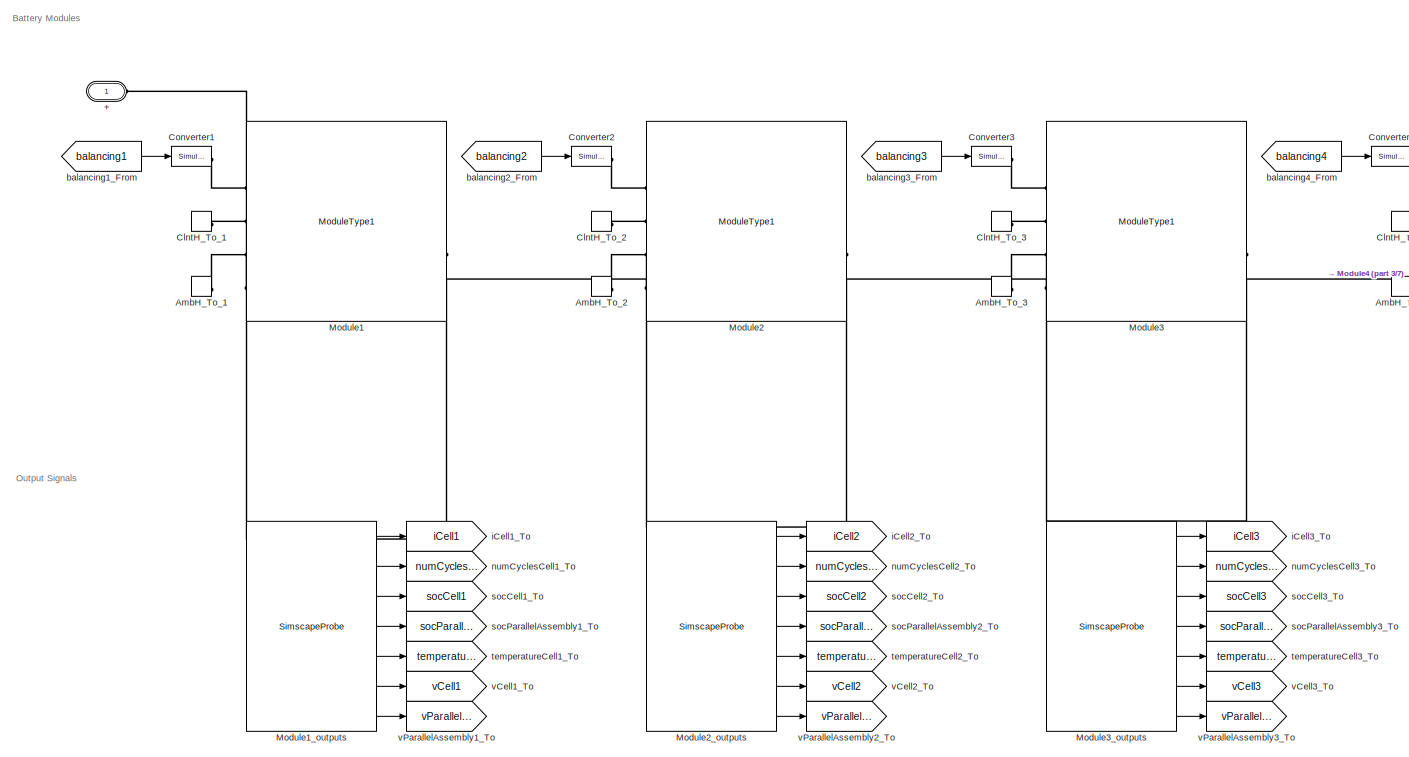
[diagram: Variant Subsystem Battery/Battery Global Drive/Battery/Pack1/ModuleAssembly1 - part 1/7, top center region]
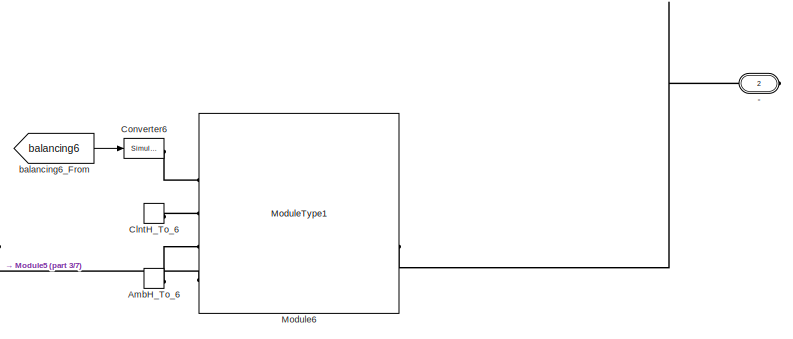
[diagram: Variant Subsystem Battery/Battery Global Drive/Battery/Pack1/ModuleAssembly1 - part 2/7, top right region]
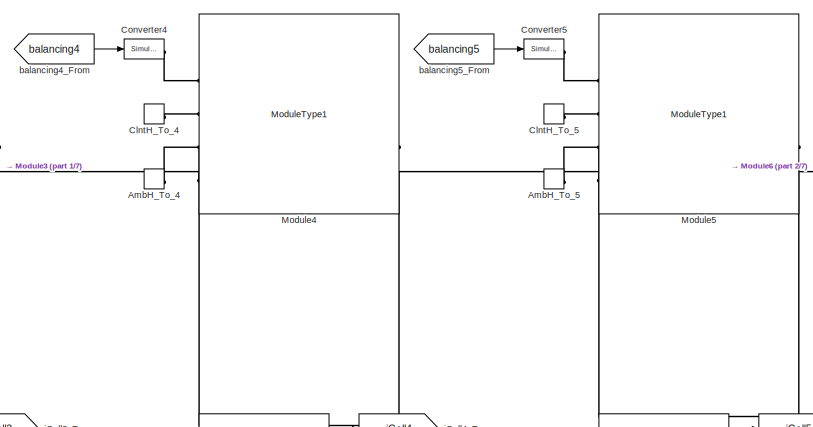
[diagram: Variant Subsystem Battery/Battery Global Drive/Battery/Pack1/ModuleAssembly1 - part 3/7, top center region]
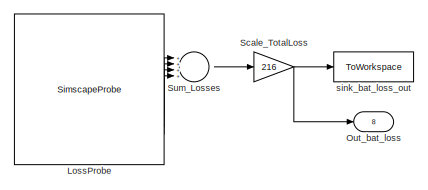
[diagram: Variant Subsystem Battery/Battery Global Drive/Battery/Pack1/ModuleAssembly1 - part 4/7, top left region]
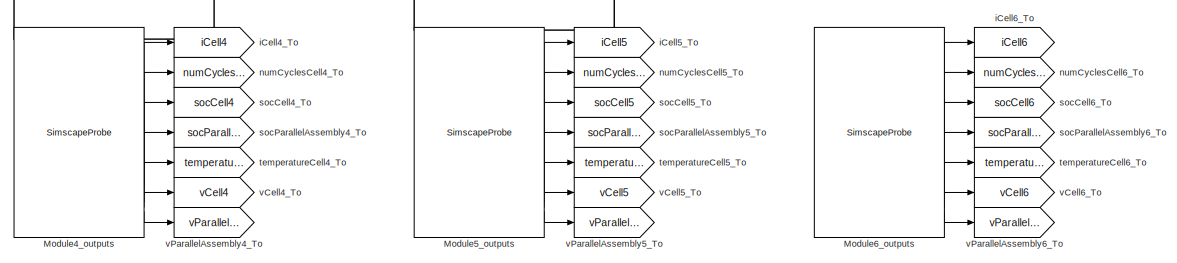
[diagram: Variant Subsystem Battery/Battery Global Drive/Battery/Pack1/ModuleAssembly1 - part 5/7, middle right region]
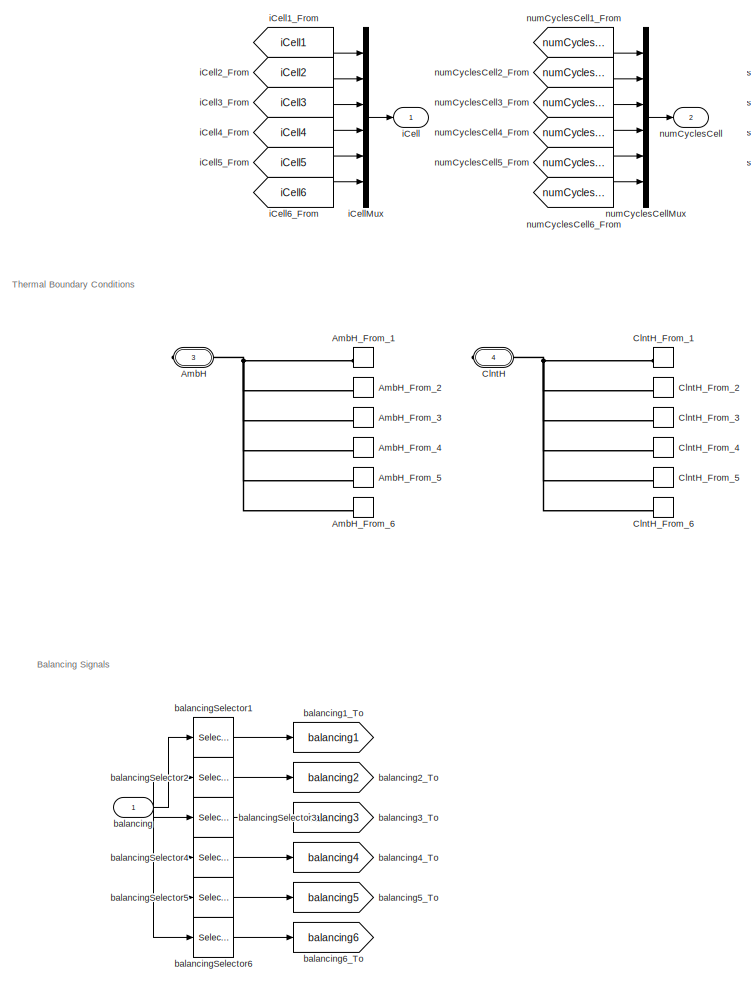
[diagram: Variant Subsystem Battery/Battery Global Drive/Battery/Pack1/ModuleAssembly1 - part 6/7, bottom left region]
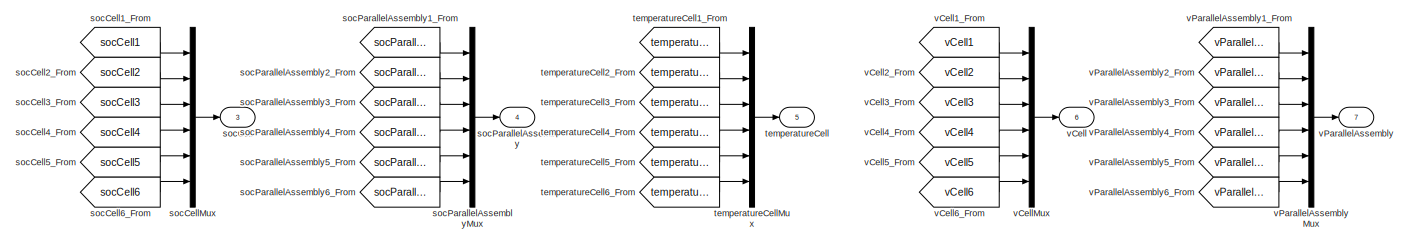
[diagram: Variant Subsystem Battery/Battery Global Drive/Battery/Pack1/ModuleAssembly1 - part 7/7, central region]
BLOCK [SubSystem] Variant Subsystem Battery/Battery Global Drive/Battery/Pack1/ModuleAssembly1
  CopyFcn = battery_builder_rtmsupport('copyfcn',gcbh);
  LoadFcn = battery_builder_rtmsupport('loadfcn',gcbh);
  PortSchema = {"entries":[{"content":{"sides":[{"content":{"connectorIds":["LConn1"]},"type":"ConnectorPlacement.EquallySpacedRectSide","uuid":"40a787f1-8ebe-41ff-9d70-768a8ef233ef"},{"content":{"connectorIds":["RConn1","RConn2","RConn3"],"side":"RIGHT"},"type":"ConnectorPlacement.EquallySpacedRectSide","uuid":"73afe2bc-4ac0-4ad9-926b-4091302672c8"},{"content":{"connectorIds":["In1"],"side":"TOP"},"type":"Conne...<+467ch>
  PreCopyFcn = battery_builder_rtmsupport('precopyfcn',gcbh);
  PreDeleteFcn = battery_builder_rtmsupport('predeletefcn',gcbh);
BLOCK [PMIOPort] Variant Subsystem Battery/Battery Global Drive/Battery/Pack1/ModuleAssembly1/+
  Side = Left
BLOCK [PMIOPort] Variant Subsystem Battery/Battery Global Drive/Battery/Pack1/ModuleAssembly1/-
  Port = 2
  Side = Right
BLOCK [PMIOPort] Variant Subsystem Battery/Battery Global Drive/Battery/Pack1/ModuleAssembly1/AmbH
  ConnectionType = Connection: foundation.thermal.thermal
  Port = 3
  Side = Right
BLOCK [ConnectionLabel] Variant Subsystem Battery/Battery Global Drive/Battery/Pack1/ModuleAssembly1/AmbH_From_1
  Label = ambH_1
BLOCK [ConnectionLabel] Variant Subsystem Battery/Battery Global Drive/Battery/Pack1/ModuleAssembly1/AmbH_From_2
  Label = ambH_2
BLOCK [ConnectionLabel] Variant Subsystem Battery/Battery Global Drive/Battery/Pack1/ModuleAssembly1/AmbH_From_3
  Label = ambH_3
BLOCK [ConnectionLabel] Variant Subsystem Battery/Battery Global Drive/Battery/Pack1/ModuleAssembly1/AmbH_From_4
  Label = ambH_4
BLOCK [ConnectionLabel] Variant Subsystem Battery/Battery Global Drive/Battery/Pack1/ModuleAssembly1/AmbH_From_5
  Label = ambH_5
BLOCK [ConnectionLabel] Variant Subsystem Battery/Battery Global Drive/Battery/Pack1/ModuleAssembly1/AmbH_From_6
  Label = ambH_6
BLOCK [ConnectionLabel] Variant Subsystem Battery/Battery Global Drive/Battery/Pack1/ModuleAssembly1/AmbH_To_1
  Label = ambH_1
BLOCK [ConnectionLabel] Variant Subsystem Battery/Battery Global Drive/Battery/Pack1/ModuleAssembly1/AmbH_To_2
  Label = ambH_2
BLOCK [ConnectionLabel] Variant Subsystem Battery/Battery Global Drive/Battery/Pack1/ModuleAssembly1/AmbH_To_3
  Label = ambH_3
BLOCK [ConnectionLabel] Variant Subsystem Battery/Battery Global Drive/Battery/Pack1/ModuleAssembly1/AmbH_To_4
  Label = ambH_4
BLOCK [ConnectionLabel] Variant Subsystem Battery/Battery Global Drive/Battery/Pack1/ModuleAssembly1/AmbH_To_5
  Label = ambH_5
BLOCK [ConnectionLabel] Variant Subsystem Battery/Battery Global Drive/Battery/Pack1/ModuleAssembly1/AmbH_To_6
  Label = ambH_6
BLOCK [PMIOPort] Variant Subsystem Battery/Battery Global Drive/Battery/Pack1/ModuleAssembly1/ClntH
  ConnectionType = Connection: foundation.thermal.thermal
  Port = 4
  Side = Right
BLOCK [ConnectionLabel] Variant Subsystem Battery/Battery Global Drive/Battery/Pack1/ModuleAssembly1/ClntH_From_1
  Label = clntH_1
BLOCK [ConnectionLabel] Variant Subsystem Battery/Battery Global Drive/Battery/Pack1/ModuleAssembly1/ClntH_From_2
  Label = clntH_2
BLOCK [ConnectionLabel] Variant Subsystem Battery/Battery Global Drive/Battery/Pack1/ModuleAssembly1/ClntH_From_3
  Label = clntH_3
BLOCK [ConnectionLabel] Variant Subsystem Battery/Battery Global Drive/Battery/Pack1/ModuleAssembly1/ClntH_From_4
  Label = clntH_4
BLOCK [ConnectionLabel] Variant Subsystem Battery/Battery Global Drive/Battery/Pack1/ModuleAssembly1/ClntH_From_5
  Label = clntH_5
BLOCK [ConnectionLabel] Variant Subsystem Battery/Battery Global Drive/Battery/Pack1/ModuleAssembly1/ClntH_From_6
  Label = clntH_6
BLOCK [ConnectionLabel] Variant Subsystem Battery/Battery Global Drive/Battery/Pack1/ModuleAssembly1/ClntH_To_1
  Label = clntH_1
BLOCK [ConnectionLabel] Variant Subsystem Battery/Battery Global Drive/Battery/Pack1/ModuleAssembly1/ClntH_To_2
  Label = clntH_2
BLOCK [ConnectionLabel] Variant Subsystem Battery/Battery Global Drive/Battery/Pack1/ModuleAssembly1/ClntH_To_3
  Label = clntH_3
BLOCK [ConnectionLabel] Variant Subsystem Battery/Battery Global Drive/Battery/Pack1/ModuleAssembly1/ClntH_To_4
  Label = clntH_4
BLOCK [ConnectionLabel] Variant Subsystem Battery/Battery Global Drive/Battery/Pack1/ModuleAssembly1/ClntH_To_5
  Label = clntH_5
BLOCK [ConnectionLabel] Variant Subsystem Battery/Battery Global Drive/Battery/Pack1/ModuleAssembly1/ClntH_To_6
  Label = clntH_6
BLOCK [Reference] Variant Subsystem Battery/Battery Global Drive/Battery/Pack1/ModuleAssembly1/Converter1  REF=nesl_utility/Simulink-PS
Converter
  SourceBlock = nesl_utility/Simulink-PS\nConverter
  SourceType = Simulink-PS\nConverter
BLOCK [Reference] Variant Subsystem Battery/Battery Global Drive/Battery/Pack1/ModuleAssembly1/Converter2  REF=nesl_utility/Simulink-PS
Converter
  SourceBlock = nesl_utility/Simulink-PS\nConverter
  SourceType = Simulink-PS\nConverter
BLOCK [Reference] Variant Subsystem Battery/Battery Global Drive/Battery/Pack1/ModuleAssembly1/Converter3  REF=nesl_utility/Simulink-PS
Converter
  SourceBlock = nesl_utility/Simulink-PS\nConverter
  SourceType = Simulink-PS\nConverter
BLOCK [Reference] Variant Subsystem Battery/Battery Global Drive/Battery/Pack1/ModuleAssembly1/Converter4  REF=nesl_utility/Simulink-PS
Converter
  SourceBlock = nesl_utility/Simulink-PS\nConverter
  SourceType = Simulink-PS\nConverter
BLOCK [Reference] Variant Subsystem Battery/Battery Global Drive/Battery/Pack1/ModuleAssembly1/Converter5  REF=nesl_utility/Simulink-PS
Converter
  SourceBlock = nesl_utility/Simulink-PS\nConverter
  SourceType = Simulink-PS\nConverter
BLOCK [Reference] Variant Subsystem Battery/Battery Global Drive/Battery/Pack1/ModuleAssembly1/Converter6  REF=nesl_utility/Simulink-PS
Converter
  SourceBlock = nesl_utility/Simulink-PS\nConverter
  SourceType = Simulink-PS\nConverter
BLOCK [SimscapeProbe] Variant Subsystem Battery/Battery Global Drive/Battery/Pack1/ModuleAssembly1/LossProbe
  BoundBlock = 292626
  Variables = {Cell1.power_dissipated, CoolantResistor.Q, balancingResistor.power_dissipated, balancingSwitch.power_dissipated}
BLOCK [Reference] Variant Subsystem Battery/Battery Global Drive/Battery/Pack1/ModuleAssembly1/Module1  REF=GD_Batterymodel_NSGAII_1_lib/Modules/ModuleType1
  SourceBlock = GD_Batterymodel_NSGAII_1_lib/Modules/ModuleType1
  SourceType = ModuleType1
BLOCK [SimscapeProbe] Variant Subsystem Battery/Battery Global Drive/Battery/Pack1/ModuleAssembly1/Module1_outputs
  BoundBlock = 292626
  Variables = {iCell, numCyclesCell, socCell, socParallelAssembly, temperatureCell, vCell, vParallelAssembly}
BLOCK [Reference] Variant Subsystem Battery/Battery Global Drive/Battery/Pack1/ModuleAssembly1/Module2  REF=GD_Batterymodel_NSGAII_1_lib/Modules/ModuleType1
  SourceBlock = GD_Batterymodel_NSGAII_1_lib/Modules/ModuleType1
  SourceType = ModuleType1
BLOCK [SimscapeProbe] Variant Subsystem Battery/Battery Global Drive/Battery/Pack1/ModuleAssembly1/Module2_outputs
  BoundBlock = 292628
  Variables = {iCell, numCyclesCell, socCell, socParallelAssembly, temperatureCell, vCell, vParallelAssembly}
BLOCK [Reference] Variant Subsystem Battery/Battery Global Drive/Battery/Pack1/ModuleAssembly1/Module3  REF=GD_Batterymodel_NSGAII_1_lib/Modules/ModuleType1
  SourceBlock = GD_Batterymodel_NSGAII_1_lib/Modules/ModuleType1
  SourceType = ModuleType1
BLOCK [SimscapeProbe] Variant Subsystem Battery/Battery Global Drive/Battery/Pack1/ModuleAssembly1/Module3_outputs
  BoundBlock = 292630
  Variables = {iCell, numCyclesCell, socCell, socParallelAssembly, temperatureCell, vCell, vParallelAssembly}
BLOCK [Reference] Variant Subsystem Battery/Battery Global Drive/Battery/Pack1/ModuleAssembly1/Module4  REF=GD_Batterymodel_NSGAII_1_lib/Modules/ModuleType1
  SourceBlock = GD_Batterymodel_NSGAII_1_lib/Modules/ModuleType1
  SourceType = ModuleType1
BLOCK [SimscapeProbe] Variant Subsystem Battery/Battery Global Drive/Battery/Pack1/ModuleAssembly1/Module4_outputs
  BoundBlock = 292632
  Variables = {iCell, numCyclesCell, socCell, socParallelAssembly, temperatureCell, vCell, vParallelAssembly}
BLOCK [Reference] Variant Subsystem Battery/Battery Global Drive/Battery/Pack1/ModuleAssembly1/Module5  REF=GD_Batterymodel_NSGAII_1_lib/Modules/ModuleType1
  SourceBlock = GD_Batterymodel_NSGAII_1_lib/Modules/ModuleType1
  SourceType = ModuleType1
BLOCK [SimscapeProbe] Variant Subsystem Battery/Battery Global Drive/Battery/Pack1/ModuleAssembly1/Module5_outputs
  BoundBlock = 292634
  Variables = {iCell, numCyclesCell, socCell, socParallelAssembly, temperatureCell, vCell, vParallelAssembly}
BLOCK [Reference] Variant Subsystem Battery/Battery Global Drive/Battery/Pack1/ModuleAssembly1/Module6  REF=GD_Batterymodel_NSGAII_1_lib/Modules/ModuleType1
  SourceBlock = GD_Batterymodel_NSGAII_1_lib/Modules/ModuleType1
  SourceType = ModuleType1
BLOCK [SimscapeProbe] Variant Subsystem Battery/Battery Global Drive/Battery/Pack1/ModuleAssembly1/Module6_outputs
  BoundBlock = 292636
  Variables = {iCell, numCyclesCell, socCell, socParallelAssembly, temperatureCell, vCell, vParallelAssembly}
BLOCK [Outport] Variant Subsystem Battery/Battery Global Drive/Battery/Pack1/ModuleAssembly1/Out_bat_loss
  Port = 8
BLOCK [Gain] Variant Subsystem Battery/Battery Global Drive/Battery/Pack1/ModuleAssembly1/Scale_TotalLoss
  Gain = 216
BLOCK [Sum] Variant Subsystem Battery/Battery Global Drive/Battery/Pack1/ModuleAssembly1/Sum_Losses
  Inputs = ++++
BLOCK [Inport] Variant Subsystem Battery/Battery Global Drive/Battery/Pack1/ModuleAssembly1/balancing
  PortDimensions = 108
BLOCK [From] Variant Subsystem Battery/Battery Global Drive/Battery/Pack1/ModuleAssembly1/balancing1_From
  GotoTag = balancing1
BLOCK [Goto] Variant Subsystem Battery/Battery Global Drive/Battery/Pack1/ModuleAssembly1/balancing1_To
  GotoTag = balancing1
BLOCK [From] Variant Subsystem Battery/Battery Global Drive/Battery/Pack1/ModuleAssembly1/balancing2_From
  GotoTag = balancing2
BLOCK [Goto] Variant Subsystem Battery/Battery Global Drive/Battery/Pack1/ModuleAssembly1/balancing2_To
  GotoTag = balancing2
BLOCK [From] Variant Subsystem Battery/Battery Global Drive/Battery/Pack1/ModuleAssembly1/balancing3_From
  GotoTag = balancing3
BLOCK [Goto] Variant Subsystem Battery/Battery Global Drive/Battery/Pack1/ModuleAssembly1/balancing3_To
  GotoTag = balancing3
BLOCK [From] Variant Subsystem Battery/Battery Global Drive/Battery/Pack1/ModuleAssembly1/balancing4_From
  GotoTag = balancing4
BLOCK [Goto] Variant Subsystem Battery/Battery Global Drive/Battery/Pack1/ModuleAssembly1/balancing4_To
  GotoTag = balancing4
BLOCK [From] Variant Subsystem Battery/Battery Global Drive/Battery/Pack1/ModuleAssembly1/balancing5_From
  GotoTag = balancing5
BLOCK [Goto] Variant Subsystem Battery/Battery Global Drive/Battery/Pack1/ModuleAssembly1/balancing5_To
  GotoTag = balancing5
BLOCK [From] Variant Subsystem Battery/Battery Global Drive/Battery/Pack1/ModuleAssembly1/balancing6_From
  GotoTag = balancing6
BLOCK [Goto] Variant Subsystem Battery/Battery Global Drive/Battery/Pack1/ModuleAssembly1/balancing6_To
  GotoTag = balancing6
BLOCK [Selector] Variant Subsystem Battery/Battery Global Drive/Battery/Pack1/ModuleAssembly1/balancingSelector1
  IndexOptions = Index vector (dialog)
  Indices = [1   2   3   4   5   6   7   8   9  10  11  12  13  14  15  16  17  18]
  InputPortWidth = 108
  OutputSizes = 1
BLOCK [Selector] Variant Subsystem Battery/Battery Global Drive/Battery/Pack1/ModuleAssembly1/balancingSelector2
  IndexOptions = Index vector (dialog)
  Indices = [19  20  21  22  23  24  25  26  27  28  29  30  31  32  33  34  35  36]
  InputPortWidth = 108
  OutputSizes = 1
BLOCK [Selector] Variant Subsystem Battery/Battery Global Drive/Battery/Pack1/ModuleAssembly1/balancingSelector3
  IndexOptions = Index vector (dialog)
  Indices = [37  38  39  40  41  42  43  44  45  46  47  48  49  50  51  52  53  54]
  InputPortWidth = 108
  OutputSizes = 1
BLOCK [Selector] Variant Subsystem Battery/Battery Global Drive/Battery/Pack1/ModuleAssembly1/balancingSelector4
  IndexOptions = Index vector (dialog)
  Indices = [55  56  57  58  59  60  61  62  63  64  65  66  67  68  69  70  71  72]
  InputPortWidth = 108
  OutputSizes = 1
BLOCK [Selector] Variant Subsystem Battery/Battery Global Drive/Battery/Pack1/ModuleAssembly1/balancingSelector5
  IndexOptions = Index vector (dialog)
  Indices = [73  74  75  76  77  78  79  80  81  82  83  84  85  86  87  88  89  90]
  InputPortWidth = 108
  OutputSizes = 1
BLOCK [Selector] Variant Subsystem Battery/Battery Global Drive/Battery/Pack1/ModuleAssembly1/balancingSelector6
  IndexOptions = Index vector (dialog)
  Indices = [91   92   93   94   95   96   97   98   99  100  101  102  103  104  105  106  107  108]
  InputPortWidth = 108
  OutputSizes = 1
BLOCK [Outport] Variant Subsystem Battery/Battery Global Drive/Battery/Pack1/ModuleAssembly1/iCell
BLOCK [From] Variant Subsystem Battery/Battery Global Drive/Battery/Pack1/ModuleAssembly1/iCell1_From
  GotoTag = iCell1
BLOCK [Goto] Variant Subsystem Battery/Battery Global Drive/Battery/Pack1/ModuleAssembly1/iCell1_To
  GotoTag = iCell1
BLOCK [From] Variant Subsystem Battery/Battery Global Drive/Battery/Pack1/ModuleAssembly1/iCell2_From
  GotoTag = iCell2
BLOCK [Goto] Variant Subsystem Battery/Battery Global Drive/Battery/Pack1/ModuleAssembly1/iCell2_To
  GotoTag = iCell2
BLOCK [From] Variant Subsystem Battery/Battery Global Drive/Battery/Pack1/ModuleAssembly1/iCell3_From
  GotoTag = iCell3
BLOCK [Goto] Variant Subsystem Battery/Battery Global Drive/Battery/Pack1/ModuleAssembly1/iCell3_To
  GotoTag = iCell3
BLOCK [From] Variant Subsystem Battery/Battery Global Drive/Battery/Pack1/ModuleAssembly1/iCell4_From
  GotoTag = iCell4
BLOCK [Goto] Variant Subsystem Battery/Battery Global Drive/Battery/Pack1/ModuleAssembly1/iCell4_To
  GotoTag = iCell4
BLOCK [From] Variant Subsystem Battery/Battery Global Drive/Battery/Pack1/ModuleAssembly1/iCell5_From
  GotoTag = iCell5
BLOCK [Goto] Variant Subsystem Battery/Battery Global Drive/Battery/Pack1/ModuleAssembly1/iCell5_To
  GotoTag = iCell5
BLOCK [From] Variant Subsystem Battery/Battery Global Drive/Battery/Pack1/ModuleAssembly1/iCell6_From
  GotoTag = iCell6
BLOCK [Goto] Variant Subsystem Battery/Battery Global Drive/Battery/Pack1/ModuleAssembly1/iCell6_To
  GotoTag = iCell6
BLOCK [Mux] Variant Subsystem Battery/Battery Global Drive/Battery/Pack1/ModuleAssembly1/iCellMux
  DisplayOption = bar
  Inputs = 6
BLOCK [Outport] Variant Subsystem Battery/Battery Global Drive/Battery/Pack1/ModuleAssembly1/numCyclesCell
  Port = 2
BLOCK [From] Variant Subsystem Battery/Battery Global Drive/Battery/Pack1/ModuleAssembly1/numCyclesCell1_From
  GotoTag = numCyclesCell1
BLOCK [Goto] Variant Subsystem Battery/Battery Global Drive/Battery/Pack1/ModuleAssembly1/numCyclesCell1_To
  GotoTag = numCyclesCell1
BLOCK [From] Variant Subsystem Battery/Battery Global Drive/Battery/Pack1/ModuleAssembly1/numCyclesCell2_From
  GotoTag = numCyclesCell2
BLOCK [Goto] Variant Subsystem Battery/Battery Global Drive/Battery/Pack1/ModuleAssembly1/numCyclesCell2_To
  GotoTag = numCyclesCell2
BLOCK [From] Variant Subsystem Battery/Battery Global Drive/Battery/Pack1/ModuleAssembly1/numCyclesCell3_From
  GotoTag = numCyclesCell3
BLOCK [Goto] Variant Subsystem Battery/Battery Global Drive/Battery/Pack1/ModuleAssembly1/numCyclesCell3_To
  GotoTag = numCyclesCell3
BLOCK [From] Variant Subsystem Battery/Battery Global Drive/Battery/Pack1/ModuleAssembly1/numCyclesCell4_From
  GotoTag = numCyclesCell4
BLOCK [Goto] Variant Subsystem Battery/Battery Global Drive/Battery/Pack1/ModuleAssembly1/numCyclesCell4_To
  GotoTag = numCyclesCell4
BLOCK [From] Variant Subsystem Battery/Battery Global Drive/Battery/Pack1/ModuleAssembly1/numCyclesCell5_From
  GotoTag = numCyclesCell5
BLOCK [Goto] Variant Subsystem Battery/Battery Global Drive/Battery/Pack1/ModuleAssembly1/numCyclesCell5_To
  GotoTag = numCyclesCell5
BLOCK [From] Variant Subsystem Battery/Battery Global Drive/Battery/Pack1/ModuleAssembly1/numCyclesCell6_From
  GotoTag = numCyclesCell6
BLOCK [Goto] Variant Subsystem Battery/Battery Global Drive/Battery/Pack1/ModuleAssembly1/numCyclesCell6_To
  GotoTag = numCyclesCell6
BLOCK [Mux] Variant Subsystem Battery/Battery Global Drive/Battery/Pack1/ModuleAssembly1/numCyclesCellMux
  DisplayOption = bar
  Inputs = 6
BLOCK [ToWorkspace] Variant Subsystem Battery/Battery Global Drive/Battery/Pack1/ModuleAssembly1/sink_bat_loss_out
  FixptAsFi = on
  MaxDataPoints = inf
  SampleTime = -1
  SaveFormat = Timeseries
  VariableName = bat_loss_out
BLOCK [Outport] Variant Subsystem Battery/Battery Global Drive/Battery/Pack1/ModuleAssembly1/socCell
  Port = 3
BLOCK [From] Variant Subsystem Battery/Battery Global Drive/Battery/Pack1/ModuleAssembly1/socCell1_From
  GotoTag = socCell1
BLOCK [Goto] Variant Subsystem Battery/Battery Global Drive/Battery/Pack1/ModuleAssembly1/socCell1_To
  GotoTag = socCell1
BLOCK [From] Variant Subsystem Battery/Battery Global Drive/Battery/Pack1/ModuleAssembly1/socCell2_From
  GotoTag = socCell2
BLOCK [Goto] Variant Subsystem Battery/Battery Global Drive/Battery/Pack1/ModuleAssembly1/socCell2_To
  GotoTag = socCell2
BLOCK [From] Variant Subsystem Battery/Battery Global Drive/Battery/Pack1/ModuleAssembly1/socCell3_From
  GotoTag = socCell3
BLOCK [Goto] Variant Subsystem Battery/Battery Global Drive/Battery/Pack1/ModuleAssembly1/socCell3_To
  GotoTag = socCell3
BLOCK [From] Variant Subsystem Battery/Battery Global Drive/Battery/Pack1/ModuleAssembly1/socCell4_From
  GotoTag = socCell4
BLOCK [Goto] Variant Subsystem Battery/Battery Global Drive/Battery/Pack1/ModuleAssembly1/socCell4_To
  GotoTag = socCell4
BLOCK [From] Variant Subsystem Battery/Battery Global Drive/Battery/Pack1/ModuleAssembly1/socCell5_From
  GotoTag = socCell5
BLOCK [Goto] Variant Subsystem Battery/Battery Global Drive/Battery/Pack1/ModuleAssembly1/socCell5_To
  GotoTag = socCell5
BLOCK [From] Variant Subsystem Battery/Battery Global Drive/Battery/Pack1/ModuleAssembly1/socCell6_From
  GotoTag = socCell6
BLOCK [Goto] Variant Subsystem Battery/Battery Global Drive/Battery/Pack1/ModuleAssembly1/socCell6_To
  GotoTag = socCell6
BLOCK [Mux] Variant Subsystem Battery/Battery Global Drive/Battery/Pack1/ModuleAssembly1/socCellMux
  DisplayOption = bar
  Inputs = 6
BLOCK [Outport] Variant Subsystem Battery/Battery Global Drive/Battery/Pack1/ModuleAssembly1/socParallelAssembly
  Port = 4
BLOCK [From] Variant Subsystem Battery/Battery Global Drive/Battery/Pack1/ModuleAssembly1/socParallelAssembly1_From
  GotoTag = socParallelAssembly1
BLOCK [Goto] Variant Subsystem Battery/Battery Global Drive/Battery/Pack1/ModuleAssembly1/socParallelAssembly1_To
  GotoTag = socParallelAssembly1
BLOCK [From] Variant Subsystem Battery/Battery Global Drive/Battery/Pack1/ModuleAssembly1/socParallelAssembly2_From
  GotoTag = socParallelAssembly2
BLOCK [Goto] Variant Subsystem Battery/Battery Global Drive/Battery/Pack1/ModuleAssembly1/socParallelAssembly2_To
  GotoTag = socParallelAssembly2
BLOCK [From] Variant Subsystem Battery/Battery Global Drive/Battery/Pack1/ModuleAssembly1/socParallelAssembly3_From
  GotoTag = socParallelAssembly3
BLOCK [Goto] Variant Subsystem Battery/Battery Global Drive/Battery/Pack1/ModuleAssembly1/socParallelAssembly3_To
  GotoTag = socParallelAssembly3
BLOCK [From] Variant Subsystem Battery/Battery Global Drive/Battery/Pack1/ModuleAssembly1/socParallelAssembly4_From
  GotoTag = socParallelAssembly4
BLOCK [Goto] Variant Subsystem Battery/Battery Global Drive/Battery/Pack1/ModuleAssembly1/socParallelAssembly4_To
  GotoTag = socParallelAssembly4
BLOCK [From] Variant Subsystem Battery/Battery Global Drive/Battery/Pack1/ModuleAssembly1/socParallelAssembly5_From
  GotoTag = socParallelAssembly5
BLOCK [Goto] Variant Subsystem Battery/Battery Global Drive/Battery/Pack1/ModuleAssembly1/socParallelAssembly5_To
  GotoTag = socParallelAssembly5
BLOCK [From] Variant Subsystem Battery/Battery Global Drive/Battery/Pack1/ModuleAssembly1/socParallelAssembly6_From
  GotoTag = socParallelAssembly6
BLOCK [Goto] Variant Subsystem Battery/Battery Global Drive/Battery/Pack1/ModuleAssembly1/socParallelAssembly6_To
  GotoTag = socParallelAssembly6
BLOCK [Mux] Variant Subsystem Battery/Battery Global Drive/Battery/Pack1/ModuleAssembly1/socParallelAssemblyMux
  DisplayOption = bar
  Inputs = 6
BLOCK [Outport] Variant Subsystem Battery/Battery Global Drive/Battery/Pack1/ModuleAssembly1/temperatureCell
  Port = 5
BLOCK [From] Variant Subsystem Battery/Battery Global Drive/Battery/Pack1/ModuleAssembly1/temperatureCell1_From
  GotoTag = temperatureCell1
BLOCK [Goto] Variant Subsystem Battery/Battery Global Drive/Battery/Pack1/ModuleAssembly1/temperatureCell1_To
  GotoTag = temperatureCell1
BLOCK [From] Variant Subsystem Battery/Battery Global Drive/Battery/Pack1/ModuleAssembly1/temperatureCell2_From
  GotoTag = temperatureCell2
BLOCK [Goto] Variant Subsystem Battery/Battery Global Drive/Battery/Pack1/ModuleAssembly1/temperatureCell2_To
  GotoTag = temperatureCell2
BLOCK [From] Variant Subsystem Battery/Battery Global Drive/Battery/Pack1/ModuleAssembly1/temperatureCell3_From
  GotoTag = temperatureCell3
BLOCK [Goto] Variant Subsystem Battery/Battery Global Drive/Battery/Pack1/ModuleAssembly1/temperatureCell3_To
  GotoTag = temperatureCell3
BLOCK [From] Variant Subsystem Battery/Battery Global Drive/Battery/Pack1/ModuleAssembly1/temperatureCell4_From
  GotoTag = temperatureCell4
BLOCK [Goto] Variant Subsystem Battery/Battery Global Drive/Battery/Pack1/ModuleAssembly1/temperatureCell4_To
  GotoTag = temperatureCell4
BLOCK [From] Variant Subsystem Battery/Battery Global Drive/Battery/Pack1/ModuleAssembly1/temperatureCell5_From
  GotoTag = temperatureCell5
BLOCK [Goto] Variant Subsystem Battery/Battery Global Drive/Battery/Pack1/ModuleAssembly1/temperatureCell5_To
  GotoTag = temperatureCell5
BLOCK [From] Variant Subsystem Battery/Battery Global Drive/Battery/Pack1/ModuleAssembly1/temperatureCell6_From
  GotoTag = temperatureCell6
BLOCK [Goto] Variant Subsystem Battery/Battery Global Drive/Battery/Pack1/ModuleAssembly1/temperatureCell6_To
  GotoTag = temperatureCell6
BLOCK [Mux] Variant Subsystem Battery/Battery Global Drive/Battery/Pack1/ModuleAssembly1/temperatureCellMux
  DisplayOption = bar
  Inputs = 6
BLOCK [Outport] Variant Subsystem Battery/Battery Global Drive/Battery/Pack1/ModuleAssembly1/vCell
  Port = 6
BLOCK [From] Variant Subsystem Battery/Battery Global Drive/Battery/Pack1/ModuleAssembly1/vCell1_From
  GotoTag = vCell1
BLOCK [Goto] Variant Subsystem Battery/Battery Global Drive/Battery/Pack1/ModuleAssembly1/vCell1_To
  GotoTag = vCell1
BLOCK [From] Variant Subsystem Battery/Battery Global Drive/Battery/Pack1/ModuleAssembly1/vCell2_From
  GotoTag = vCell2
BLOCK [Goto] Variant Subsystem Battery/Battery Global Drive/Battery/Pack1/ModuleAssembly1/vCell2_To
  GotoTag = vCell2
BLOCK [From] Variant Subsystem Battery/Battery Global Drive/Battery/Pack1/ModuleAssembly1/vCell3_From
  GotoTag = vCell3
BLOCK [Goto] Variant Subsystem Battery/Battery Global Drive/Battery/Pack1/ModuleAssembly1/vCell3_To
  GotoTag = vCell3
BLOCK [From] Variant Subsystem Battery/Battery Global Drive/Battery/Pack1/ModuleAssembly1/vCell4_From
  GotoTag = vCell4
BLOCK [Goto] Variant Subsystem Battery/Battery Global Drive/Battery/Pack1/ModuleAssembly1/vCell4_To
  GotoTag = vCell4
BLOCK [From] Variant Subsystem Battery/Battery Global Drive/Battery/Pack1/ModuleAssembly1/vCell5_From
  GotoTag = vCell5
BLOCK [Goto] Variant Subsystem Battery/Battery Global Drive/Battery/Pack1/ModuleAssembly1/vCell5_To
  GotoTag = vCell5
BLOCK [From] Variant Subsystem Battery/Battery Global Drive/Battery/Pack1/ModuleAssembly1/vCell6_From
  GotoTag = vCell6
BLOCK [Goto] Variant Subsystem Battery/Battery Global Drive/Battery/Pack1/ModuleAssembly1/vCell6_To
  GotoTag = vCell6
BLOCK [Mux] Variant Subsystem Battery/Battery Global Drive/Battery/Pack1/ModuleAssembly1/vCellMux
  DisplayOption = bar
  Inputs = 6
BLOCK [Outport] Variant Subsystem Battery/Battery Global Drive/Battery/Pack1/ModuleAssembly1/vParallelAssembly
  Port = 7
BLOCK [From] Variant Subsystem Battery/Battery Global Drive/Battery/Pack1/ModuleAssembly1/vParallelAssembly1_From
  GotoTag = vParallelAssembly1
BLOCK [Goto] Variant Subsystem Battery/Battery Global Drive/Battery/Pack1/ModuleAssembly1/vParallelAssembly1_To
  GotoTag = vParallelAssembly1
BLOCK [From] Variant Subsystem Battery/Battery Global Drive/Battery/Pack1/ModuleAssembly1/vParallelAssembly2_From
  GotoTag = vParallelAssembly2
BLOCK [Goto] Variant Subsystem Battery/Battery Global Drive/Battery/Pack1/ModuleAssembly1/vParallelAssembly2_To
  GotoTag = vParallelAssembly2
BLOCK [From] Variant Subsystem Battery/Battery Global Drive/Battery/Pack1/ModuleAssembly1/vParallelAssembly3_From
  GotoTag = vParallelAssembly3
BLOCK [Goto] Variant Subsystem Battery/Battery Global Drive/Battery/Pack1/ModuleAssembly1/vParallelAssembly3_To
  GotoTag = vParallelAssembly3
BLOCK [From] Variant Subsystem Battery/Battery Global Drive/Battery/Pack1/ModuleAssembly1/vParallelAssembly4_From
  GotoTag = vParallelAssembly4
BLOCK [Goto] Variant Subsystem Battery/Battery Global Drive/Battery/Pack1/ModuleAssembly1/vParallelAssembly4_To
  GotoTag = vParallelAssembly4
BLOCK [From] Variant Subsystem Battery/Battery Global Drive/Battery/Pack1/ModuleAssembly1/vParallelAssembly5_From
  GotoTag = vParallelAssembly5
BLOCK [Goto] Variant Subsystem Battery/Battery Global Drive/Battery/Pack1/ModuleAssembly1/vParallelAssembly5_To
  GotoTag = vParallelAssembly5
BLOCK [From] Variant Subsystem Battery/Battery Global Drive/Battery/Pack1/ModuleAssembly1/vParallelAssembly6_From
  GotoTag = vParallelAssembly6
BLOCK [Goto] Variant Subsystem Battery/Battery Global Drive/Battery/Pack1/ModuleAssembly1/vParallelAssembly6_To
  GotoTag = vParallelAssembly6
BLOCK [Mux] Variant Subsystem Battery/Battery Global Drive/Battery/Pack1/ModuleAssembly1/vParallelAssemblyMux
  DisplayOption = bar
  Inputs = 6
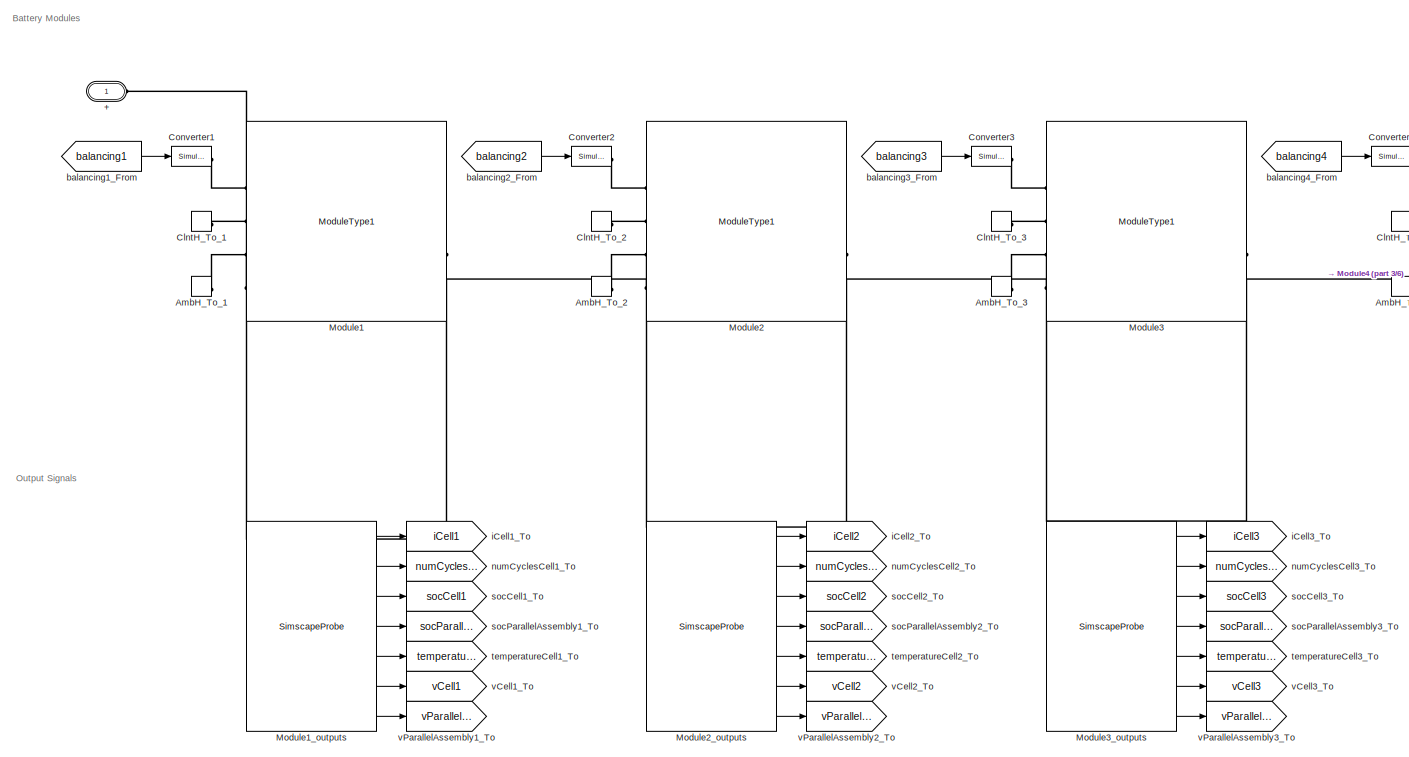
[diagram: Variant Subsystem Battery/Battery Global Drive/Battery/Pack1/ModuleAssembly2 - part 1/6, top left region]
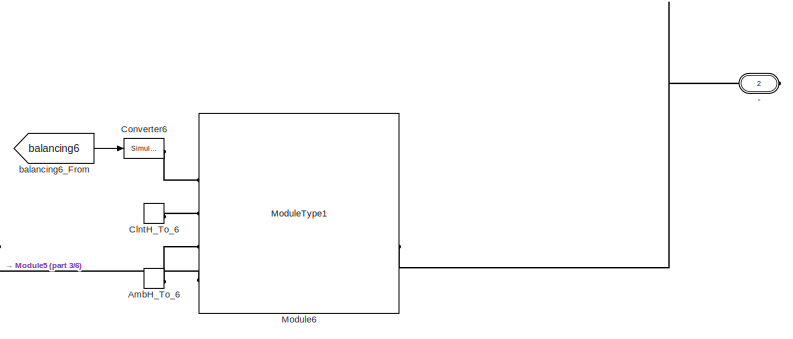
[diagram: Variant Subsystem Battery/Battery Global Drive/Battery/Pack1/ModuleAssembly2 - part 2/6, top right region]
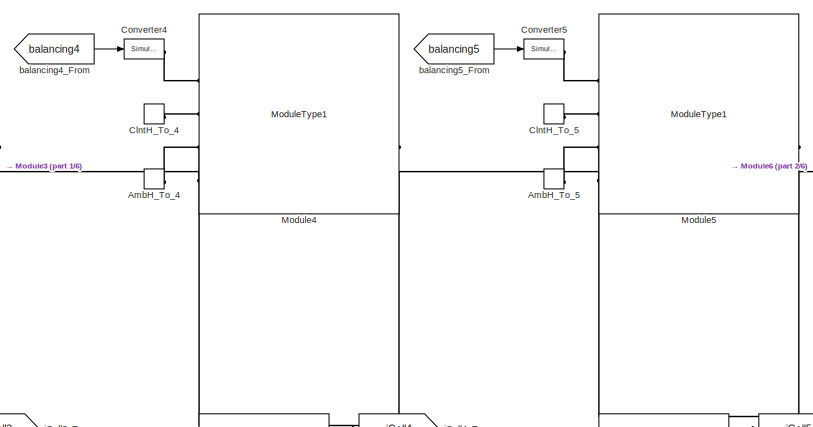
[diagram: Variant Subsystem Battery/Battery Global Drive/Battery/Pack1/ModuleAssembly2 - part 3/6, top center region]
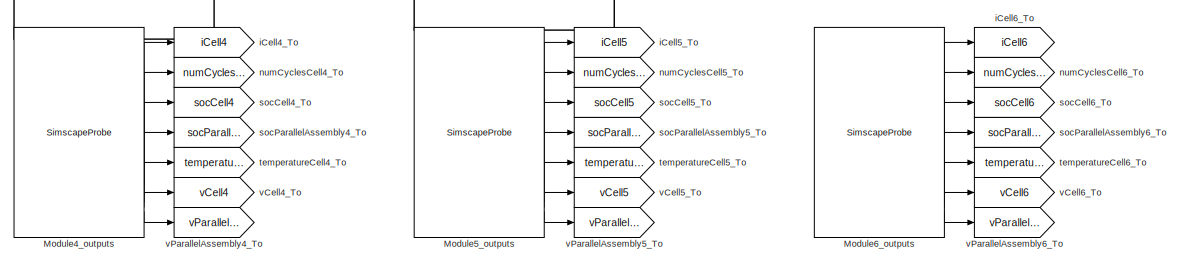
[diagram: Variant Subsystem Battery/Battery Global Drive/Battery/Pack1/ModuleAssembly2 - part 4/6, middle right region]
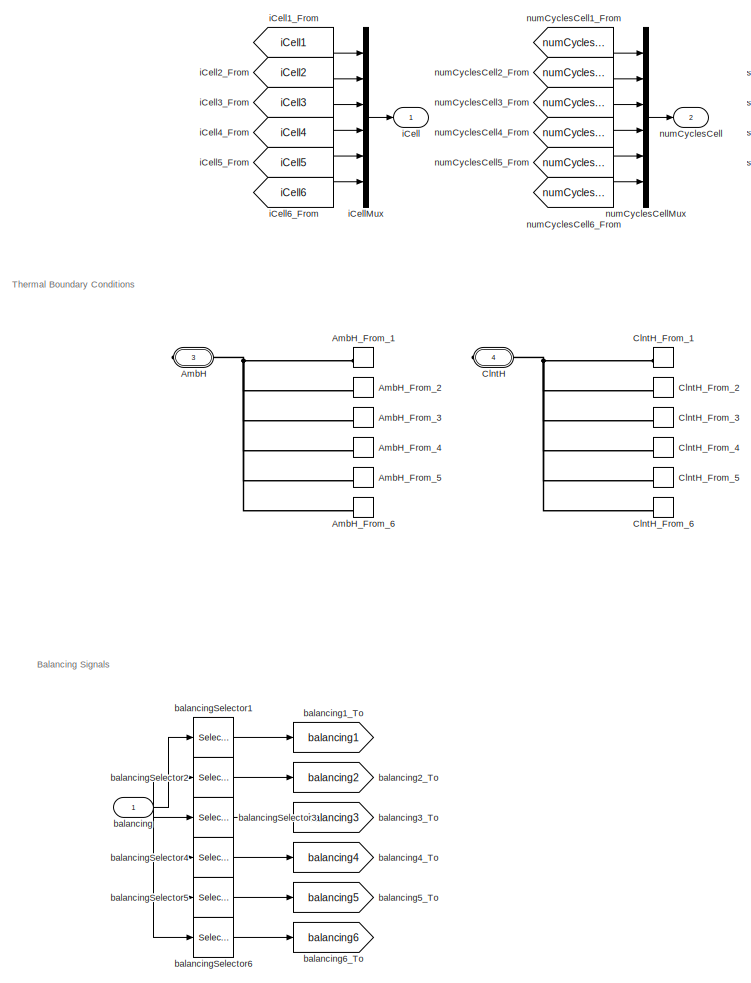
[diagram: Variant Subsystem Battery/Battery Global Drive/Battery/Pack1/ModuleAssembly2 - part 5/6, bottom left region]
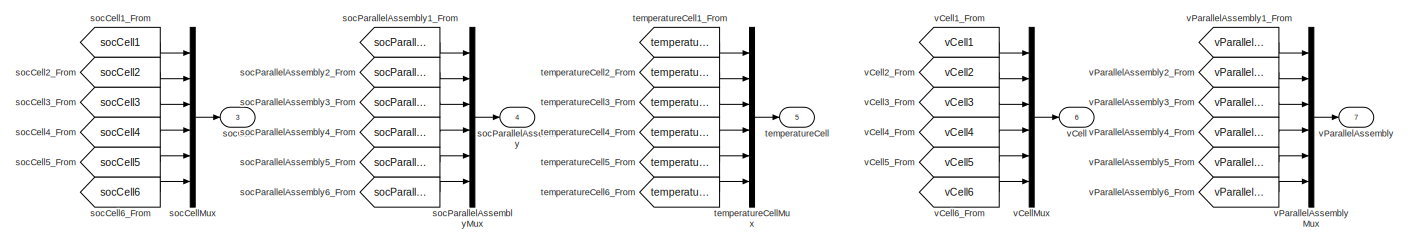
[diagram: Variant Subsystem Battery/Battery Global Drive/Battery/Pack1/ModuleAssembly2 - part 6/6, central region]
BLOCK [SubSystem] Variant Subsystem Battery/Battery Global Drive/Battery/Pack1/ModuleAssembly2
  CopyFcn = battery_builder_rtmsupport('copyfcn',gcbh);
  LoadFcn = battery_builder_rtmsupport('loadfcn',gcbh);
  PortSchema = {"entries":[{"content":{"sides":[{"content":{"connectorIds":["LConn1"]},"type":"ConnectorPlacement.EquallySpacedRectSide","uuid":"40a787f1-8ebe-41ff-9d70-768a8ef233ef"},{"content":{"connectorIds":["RConn1","RConn2","RConn3"],"side":"RIGHT"},"type":"ConnectorPlacement.EquallySpacedRectSide","uuid":"73afe2bc-4ac0-4ad9-926b-4091302672c8"},{"content":{"connectorIds":["In1"],"side":"TOP"},"type":"Conne...<+460ch>
  PreCopyFcn = battery_builder_rtmsupport('precopyfcn',gcbh);
  PreDeleteFcn = battery_builder_rtmsupport('predeletefcn',gcbh);
BLOCK [PMIOPort] Variant Subsystem Battery/Battery Global Drive/Battery/Pack1/ModuleAssembly2/+
  Side = Left
BLOCK [PMIOPort] Variant Subsystem Battery/Battery Global Drive/Battery/Pack1/ModuleAssembly2/-
  Port = 2
  Side = Right
BLOCK [PMIOPort] Variant Subsystem Battery/Battery Global Drive/Battery/Pack1/ModuleAssembly2/AmbH
  ConnectionType = Connection: foundation.thermal.thermal
  Port = 3
  Side = Right
BLOCK [ConnectionLabel] Variant Subsystem Battery/Battery Global Drive/Battery/Pack1/ModuleAssembly2/AmbH_From_1
  Label = ambH_1
BLOCK [ConnectionLabel] Variant Subsystem Battery/Battery Global Drive/Battery/Pack1/ModuleAssembly2/AmbH_From_2
  Label = ambH_2
BLOCK [ConnectionLabel] Variant Subsystem Battery/Battery Global Drive/Battery/Pack1/ModuleAssembly2/AmbH_From_3
  Label = ambH_3
BLOCK [ConnectionLabel] Variant Subsystem Battery/Battery Global Drive/Battery/Pack1/ModuleAssembly2/AmbH_From_4
  Label = ambH_4
BLOCK [ConnectionLabel] Variant Subsystem Battery/Battery Global Drive/Battery/Pack1/ModuleAssembly2/AmbH_From_5
  Label = ambH_5
BLOCK [ConnectionLabel] Variant Subsystem Battery/Battery Global Drive/Battery/Pack1/ModuleAssembly2/AmbH_From_6
  Label = ambH_6
BLOCK [ConnectionLabel] Variant Subsystem Battery/Battery Global Drive/Battery/Pack1/ModuleAssembly2/AmbH_To_1
  Label = ambH_1
BLOCK [ConnectionLabel] Variant Subsystem Battery/Battery Global Drive/Battery/Pack1/ModuleAssembly2/AmbH_To_2
  Label = ambH_2
BLOCK [ConnectionLabel] Variant Subsystem Battery/Battery Global Drive/Battery/Pack1/ModuleAssembly2/AmbH_To_3
  Label = ambH_3
BLOCK [ConnectionLabel] Variant Subsystem Battery/Battery Global Drive/Battery/Pack1/ModuleAssembly2/AmbH_To_4
  Label = ambH_4
BLOCK [ConnectionLabel] Variant Subsystem Battery/Battery Global Drive/Battery/Pack1/ModuleAssembly2/AmbH_To_5
  Label = ambH_5
BLOCK [ConnectionLabel] Variant Subsystem Battery/Battery Global Drive/Battery/Pack1/ModuleAssembly2/AmbH_To_6
  Label = ambH_6
BLOCK [PMIOPort] Variant Subsystem Battery/Battery Global Drive/Battery/Pack1/ModuleAssembly2/ClntH
  ConnectionType = Connection: foundation.thermal.thermal
  Port = 4
  Side = Right
BLOCK [ConnectionLabel] Variant Subsystem Battery/Battery Global Drive/Battery/Pack1/ModuleAssembly2/ClntH_From_1
  Label = clntH_1
BLOCK [ConnectionLabel] Variant Subsystem Battery/Battery Global Drive/Battery/Pack1/ModuleAssembly2/ClntH_From_2
  Label = clntH_2
BLOCK [ConnectionLabel] Variant Subsystem Battery/Battery Global Drive/Battery/Pack1/ModuleAssembly2/ClntH_From_3
  Label = clntH_3
BLOCK [ConnectionLabel] Variant Subsystem Battery/Battery Global Drive/Battery/Pack1/ModuleAssembly2/ClntH_From_4
  Label = clntH_4
BLOCK [ConnectionLabel] Variant Subsystem Battery/Battery Global Drive/Battery/Pack1/ModuleAssembly2/ClntH_From_5
  Label = clntH_5
BLOCK [ConnectionLabel] Variant Subsystem Battery/Battery Global Drive/Battery/Pack1/ModuleAssembly2/ClntH_From_6
  Label = clntH_6
BLOCK [ConnectionLabel] Variant Subsystem Battery/Battery Global Drive/Battery/Pack1/ModuleAssembly2/ClntH_To_1
  Label = clntH_1
BLOCK [ConnectionLabel] Variant Subsystem Battery/Battery Global Drive/Battery/Pack1/ModuleAssembly2/ClntH_To_2
  Label = clntH_2
BLOCK [ConnectionLabel] Variant Subsystem Battery/Battery Global Drive/Battery/Pack1/ModuleAssembly2/ClntH_To_3
  Label = clntH_3
BLOCK [ConnectionLabel] Variant Subsystem Battery/Battery Global Drive/Battery/Pack1/ModuleAssembly2/ClntH_To_4
  Label = clntH_4
BLOCK [ConnectionLabel] Variant Subsystem Battery/Battery Global Drive/Battery/Pack1/ModuleAssembly2/ClntH_To_5
  Label = clntH_5
BLOCK [ConnectionLabel] Variant Subsystem Battery/Battery Global Drive/Battery/Pack1/ModuleAssembly2/ClntH_To_6
  Label = clntH_6
BLOCK [Reference] Variant Subsystem Battery/Battery Global Drive/Battery/Pack1/ModuleAssembly2/Converter1  REF=nesl_utility/Simulink-PS
Converter
  SourceBlock = nesl_utility/Simulink-PS\nConverter
  SourceType = Simulink-PS\nConverter
BLOCK [Reference] Variant Subsystem Battery/Battery Global Drive/Battery/Pack1/ModuleAssembly2/Converter2  REF=nesl_utility/Simulink-PS
Converter
  SourceBlock = nesl_utility/Simulink-PS\nConverter
  SourceType = Simulink-PS\nConverter
BLOCK [Reference] Variant Subsystem Battery/Battery Global Drive/Battery/Pack1/ModuleAssembly2/Converter3  REF=nesl_utility/Simulink-PS
Converter
  SourceBlock = nesl_utility/Simulink-PS\nConverter
  SourceType = Simulink-PS\nConverter
BLOCK [Reference] Variant Subsystem Battery/Battery Global Drive/Battery/Pack1/ModuleAssembly2/Converter4  REF=nesl_utility/Simulink-PS
Converter
  SourceBlock = nesl_utility/Simulink-PS\nConverter
  SourceType = Simulink-PS\nConverter
BLOCK [Reference] Variant Subsystem Battery/Battery Global Drive/Battery/Pack1/ModuleAssembly2/Converter5  REF=nesl_utility/Simulink-PS
Converter
  SourceBlock = nesl_utility/Simulink-PS\nConverter
  SourceType = Simulink-PS\nConverter
BLOCK [Reference] Variant Subsystem Battery/Battery Global Drive/Battery/Pack1/ModuleAssembly2/Converter6  REF=nesl_utility/Simulink-PS
Converter
  SourceBlock = nesl_utility/Simulink-PS\nConverter
  SourceType = Simulink-PS\nConverter
BLOCK [Reference] Variant Subsystem Battery/Battery Global Drive/Battery/Pack1/ModuleAssembly2/Module1  REF=GD_Batterymodel_NSGAII_1_lib/Modules/ModuleType1
  SourceBlock = GD_Batterymodel_NSGAII_1_lib/Modules/ModuleType1
  SourceType = ModuleType1
BLOCK [SimscapeProbe] Variant Subsystem Battery/Battery Global Drive/Battery/Pack1/ModuleAssembly2/Module1_outputs
  BoundBlock = 292794
  Variables = {iCell, numCyclesCell, socCell, socParallelAssembly, temperatureCell, vCell, vParallelAssembly}
BLOCK [Reference] Variant Subsystem Battery/Battery Global Drive/Battery/Pack1/ModuleAssembly2/Module2  REF=GD_Batterymodel_NSGAII_1_lib/Modules/ModuleType1
  SourceBlock = GD_Batterymodel_NSGAII_1_lib/Modules/ModuleType1
  SourceType = ModuleType1
BLOCK [SimscapeProbe] Variant Subsystem Battery/Battery Global Drive/Battery/Pack1/ModuleAssembly2/Module2_outputs
  BoundBlock = 292796
  Variables = {iCell, numCyclesCell, socCell, socParallelAssembly, temperatureCell, vCell, vParallelAssembly}
BLOCK [Reference] Variant Subsystem Battery/Battery Global Drive/Battery/Pack1/ModuleAssembly2/Module3  REF=GD_Batterymodel_NSGAII_1_lib/Modules/ModuleType1
  SourceBlock = GD_Batterymodel_NSGAII_1_lib/Modules/ModuleType1
  SourceType = ModuleType1
BLOCK [SimscapeProbe] Variant Subsystem Battery/Battery Global Drive/Battery/Pack1/ModuleAssembly2/Module3_outputs
  BoundBlock = 292798
  Variables = {iCell, numCyclesCell, socCell, socParallelAssembly, temperatureCell, vCell, vParallelAssembly}
BLOCK [Reference] Variant Subsystem Battery/Battery Global Drive/Battery/Pack1/ModuleAssembly2/Module4  REF=GD_Batterymodel_NSGAII_1_lib/Modules/ModuleType1
  SourceBlock = GD_Batterymodel_NSGAII_1_lib/Modules/ModuleType1
  SourceType = ModuleType1
BLOCK [SimscapeProbe] Variant Subsystem Battery/Battery Global Drive/Battery/Pack1/ModuleAssembly2/Module4_outputs
  BoundBlock = 292800
  Variables = {iCell, numCyclesCell, socCell, socParallelAssembly, temperatureCell, vCell, vParallelAssembly}
BLOCK [Reference] Variant Subsystem Battery/Battery Global Drive/Battery/Pack1/ModuleAssembly2/Module5  REF=GD_Batterymodel_NSGAII_1_lib/Modules/ModuleType1
  SourceBlock = GD_Batterymodel_NSGAII_1_lib/Modules/ModuleType1
  SourceType = ModuleType1
BLOCK [SimscapeProbe] Variant Subsystem Battery/Battery Global Drive/Battery/Pack1/ModuleAssembly2/Module5_outputs
  BoundBlock = 292802
  Variables = {iCell, numCyclesCell, socCell, socParallelAssembly, temperatureCell, vCell, vParallelAssembly}
BLOCK [Reference] Variant Subsystem Battery/Battery Global Drive/Battery/Pack1/ModuleAssembly2/Module6  REF=GD_Batterymodel_NSGAII_1_lib/Modules/ModuleType1
  SourceBlock = GD_Batterymodel_NSGAII_1_lib/Modules/ModuleType1
  SourceType = ModuleType1
BLOCK [SimscapeProbe] Variant Subsystem Battery/Battery Global Drive/Battery/Pack1/ModuleAssembly2/Module6_outputs
  BoundBlock = 292804
  Variables = {iCell, numCyclesCell, socCell, socParallelAssembly, temperatureCell, vCell, vParallelAssembly}
BLOCK [Inport] Variant Subsystem Battery/Battery Global Drive/Battery/Pack1/ModuleAssembly2/balancing
  PortDimensions = 108
BLOCK [From] Variant Subsystem Battery/Battery Global Drive/Battery/Pack1/ModuleAssembly2/balancing1_From
  GotoTag = balancing1
BLOCK [Goto] Variant Subsystem Battery/Battery Global Drive/Battery/Pack1/ModuleAssembly2/balancing1_To
  GotoTag = balancing1
BLOCK [From] Variant Subsystem Battery/Battery Global Drive/Battery/Pack1/ModuleAssembly2/balancing2_From
  GotoTag = balancing2
BLOCK [Goto] Variant Subsystem Battery/Battery Global Drive/Battery/Pack1/ModuleAssembly2/balancing2_To
  GotoTag = balancing2
BLOCK [From] Variant Subsystem Battery/Battery Global Drive/Battery/Pack1/ModuleAssembly2/balancing3_From
  GotoTag = balancing3
BLOCK [Goto] Variant Subsystem Battery/Battery Global Drive/Battery/Pack1/ModuleAssembly2/balancing3_To
  GotoTag = balancing3
BLOCK [From] Variant Subsystem Battery/Battery Global Drive/Battery/Pack1/ModuleAssembly2/balancing4_From
  GotoTag = balancing4
BLOCK [Goto] Variant Subsystem Battery/Battery Global Drive/Battery/Pack1/ModuleAssembly2/balancing4_To
  GotoTag = balancing4
BLOCK [From] Variant Subsystem Battery/Battery Global Drive/Battery/Pack1/ModuleAssembly2/balancing5_From
  GotoTag = balancing5
BLOCK [Goto] Variant Subsystem Battery/Battery Global Drive/Battery/Pack1/ModuleAssembly2/balancing5_To
  GotoTag = balancing5
BLOCK [From] Variant Subsystem Battery/Battery Global Drive/Battery/Pack1/ModuleAssembly2/balancing6_From
  GotoTag = balancing6
BLOCK [Goto] Variant Subsystem Battery/Battery Global Drive/Battery/Pack1/ModuleAssembly2/balancing6_To
  GotoTag = balancing6
BLOCK [Selector] Variant Subsystem Battery/Battery Global Drive/Battery/Pack1/ModuleAssembly2/balancingSelector1
  IndexOptions = Index vector (dialog)
  Indices = [1   2   3   4   5   6   7   8   9  10  11  12  13  14  15  16  17  18]
  InputPortWidth = 108
  OutputSizes = 1
BLOCK [Selector] Variant Subsystem Battery/Battery Global Drive/Battery/Pack1/ModuleAssembly2/balancingSelector2
  IndexOptions = Index vector (dialog)
  Indices = [19  20  21  22  23  24  25  26  27  28  29  30  31  32  33  34  35  36]
  InputPortWidth = 108
  OutputSizes = 1
BLOCK [Selector] Variant Subsystem Battery/Battery Global Drive/Battery/Pack1/ModuleAssembly2/balancingSelector3
  IndexOptions = Index vector (dialog)
  Indices = [37  38  39  40  41  42  43  44  45  46  47  48  49  50  51  52  53  54]
  InputPortWidth = 108
  OutputSizes = 1
BLOCK [Selector] Variant Subsystem Battery/Battery Global Drive/Battery/Pack1/ModuleAssembly2/balancingSelector4
  IndexOptions = Index vector (dialog)
  Indices = [55  56  57  58  59  60  61  62  63  64  65  66  67  68  69  70  71  72]
  InputPortWidth = 108
  OutputSizes = 1
BLOCK [Selector] Variant Subsystem Battery/Battery Global Drive/Battery/Pack1/ModuleAssembly2/balancingSelector5
  IndexOptions = Index vector (dialog)
  Indices = [73  74  75  76  77  78  79  80  81  82  83  84  85  86  87  88  89  90]
  InputPortWidth = 108
  OutputSizes = 1
BLOCK [Selector] Variant Subsystem Battery/Battery Global Drive/Battery/Pack1/ModuleAssembly2/balancingSelector6
  IndexOptions = Index vector (dialog)
  Indices = [91   92   93   94   95   96   97   98   99  100  101  102  103  104  105  106  107  108]
  InputPortWidth = 108
  OutputSizes = 1
BLOCK [Outport] Variant Subsystem Battery/Battery Global Drive/Battery/Pack1/ModuleAssembly2/iCell
BLOCK [From] Variant Subsystem Battery/Battery Global Drive/Battery/Pack1/ModuleAssembly2/iCell1_From
  GotoTag = iCell1
BLOCK [Goto] Variant Subsystem Battery/Battery Global Drive/Battery/Pack1/ModuleAssembly2/iCell1_To
  GotoTag = iCell1
BLOCK [From] Variant Subsystem Battery/Battery Global Drive/Battery/Pack1/ModuleAssembly2/iCell2_From
  GotoTag = iCell2
BLOCK [Goto] Variant Subsystem Battery/Battery Global Drive/Battery/Pack1/ModuleAssembly2/iCell2_To
  GotoTag = iCell2
BLOCK [From] Variant Subsystem Battery/Battery Global Drive/Battery/Pack1/ModuleAssembly2/iCell3_From
  GotoTag = iCell3
BLOCK [Goto] Variant Subsystem Battery/Battery Global Drive/Battery/Pack1/ModuleAssembly2/iCell3_To
  GotoTag = iCell3
BLOCK [From] Variant Subsystem Battery/Battery Global Drive/Battery/Pack1/ModuleAssembly2/iCell4_From
  GotoTag = iCell4
BLOCK [Goto] Variant Subsystem Battery/Battery Global Drive/Battery/Pack1/ModuleAssembly2/iCell4_To
  GotoTag = iCell4
BLOCK [From] Variant Subsystem Battery/Battery Global Drive/Battery/Pack1/ModuleAssembly2/iCell5_From
  GotoTag = iCell5
BLOCK [Goto] Variant Subsystem Battery/Battery Global Drive/Battery/Pack1/ModuleAssembly2/iCell5_To
  GotoTag = iCell5
BLOCK [From] Variant Subsystem Battery/Battery Global Drive/Battery/Pack1/ModuleAssembly2/iCell6_From
  GotoTag = iCell6
BLOCK [Goto] Variant Subsystem Battery/Battery Global Drive/Battery/Pack1/ModuleAssembly2/iCell6_To
  GotoTag = iCell6
BLOCK [Mux] Variant Subsystem Battery/Battery Global Drive/Battery/Pack1/ModuleAssembly2/iCellMux
  DisplayOption = bar
  Inputs = 6
BLOCK [Outport] Variant Subsystem Battery/Battery Global Drive/Battery/Pack1/ModuleAssembly2/numCyclesCell
  Port = 2
BLOCK [From] Variant Subsystem Battery/Battery Global Drive/Battery/Pack1/ModuleAssembly2/numCyclesCell1_From
  GotoTag = numCyclesCell1
BLOCK [Goto] Variant Subsystem Battery/Battery Global Drive/Battery/Pack1/ModuleAssembly2/numCyclesCell1_To
  GotoTag = numCyclesCell1
BLOCK [From] Variant Subsystem Battery/Battery Global Drive/Battery/Pack1/ModuleAssembly2/numCyclesCell2_From
  GotoTag = numCyclesCell2
BLOCK [Goto] Variant Subsystem Battery/Battery Global Drive/Battery/Pack1/ModuleAssembly2/numCyclesCell2_To
  GotoTag = numCyclesCell2
BLOCK [From] Variant Subsystem Battery/Battery Global Drive/Battery/Pack1/ModuleAssembly2/numCyclesCell3_From
  GotoTag = numCyclesCell3
BLOCK [Goto] Variant Subsystem Battery/Battery Global Drive/Battery/Pack1/ModuleAssembly2/numCyclesCell3_To
  GotoTag = numCyclesCell3
BLOCK [From] Variant Subsystem Battery/Battery Global Drive/Battery/Pack1/ModuleAssembly2/numCyclesCell4_From
  GotoTag = numCyclesCell4
BLOCK [Goto] Variant Subsystem Battery/Battery Global Drive/Battery/Pack1/ModuleAssembly2/numCyclesCell4_To
  GotoTag = numCyclesCell4
BLOCK [From] Variant Subsystem Battery/Battery Global Drive/Battery/Pack1/ModuleAssembly2/numCyclesCell5_From
  GotoTag = numCyclesCell5
BLOCK [Goto] Variant Subsystem Battery/Battery Global Drive/Battery/Pack1/ModuleAssembly2/numCyclesCell5_To
  GotoTag = numCyclesCell5
BLOCK [From] Variant Subsystem Battery/Battery Global Drive/Battery/Pack1/ModuleAssembly2/numCyclesCell6_From
  GotoTag = numCyclesCell6
BLOCK [Goto] Variant Subsystem Battery/Battery Global Drive/Battery/Pack1/ModuleAssembly2/numCyclesCell6_To
  GotoTag = numCyclesCell6
BLOCK [Mux] Variant Subsystem Battery/Battery Global Drive/Battery/Pack1/ModuleAssembly2/numCyclesCellMux
  DisplayOption = bar
  Inputs = 6
BLOCK [Outport] Variant Subsystem Battery/Battery Global Drive/Battery/Pack1/ModuleAssembly2/socCell
  Port = 3
BLOCK [From] Variant Subsystem Battery/Battery Global Drive/Battery/Pack1/ModuleAssembly2/socCell1_From
  GotoTag = socCell1
BLOCK [Goto] Variant Subsystem Battery/Battery Global Drive/Battery/Pack1/ModuleAssembly2/socCell1_To
  GotoTag = socCell1
BLOCK [From] Variant Subsystem Battery/Battery Global Drive/Battery/Pack1/ModuleAssembly2/socCell2_From
  GotoTag = socCell2
BLOCK [Goto] Variant Subsystem Battery/Battery Global Drive/Battery/Pack1/ModuleAssembly2/socCell2_To
  GotoTag = socCell2
BLOCK [From] Variant Subsystem Battery/Battery Global Drive/Battery/Pack1/ModuleAssembly2/socCell3_From
  GotoTag = socCell3
BLOCK [Goto] Variant Subsystem Battery/Battery Global Drive/Battery/Pack1/ModuleAssembly2/socCell3_To
  GotoTag = socCell3
BLOCK [From] Variant Subsystem Battery/Battery Global Drive/Battery/Pack1/ModuleAssembly2/socCell4_From
  GotoTag = socCell4
BLOCK [Goto] Variant Subsystem Battery/Battery Global Drive/Battery/Pack1/ModuleAssembly2/socCell4_To
  GotoTag = socCell4
BLOCK [From] Variant Subsystem Battery/Battery Global Drive/Battery/Pack1/ModuleAssembly2/socCell5_From
  GotoTag = socCell5
BLOCK [Goto] Variant Subsystem Battery/Battery Global Drive/Battery/Pack1/ModuleAssembly2/socCell5_To
  GotoTag = socCell5
BLOCK [From] Variant Subsystem Battery/Battery Global Drive/Battery/Pack1/ModuleAssembly2/socCell6_From
  GotoTag = socCell6
BLOCK [Goto] Variant Subsystem Battery/Battery Global Drive/Battery/Pack1/ModuleAssembly2/socCell6_To
  GotoTag = socCell6
BLOCK [Mux] Variant Subsystem Battery/Battery Global Drive/Battery/Pack1/ModuleAssembly2/socCellMux
  DisplayOption = bar
  Inputs = 6
BLOCK [Outport] Variant Subsystem Battery/Battery Global Drive/Battery/Pack1/ModuleAssembly2/socParallelAssembly
  Port = 4
BLOCK [From] Variant Subsystem Battery/Battery Global Drive/Battery/Pack1/ModuleAssembly2/socParallelAssembly1_From
  GotoTag = socParallelAssembly1
BLOCK [Goto] Variant Subsystem Battery/Battery Global Drive/Battery/Pack1/ModuleAssembly2/socParallelAssembly1_To
  GotoTag = socParallelAssembly1
BLOCK [From] Variant Subsystem Battery/Battery Global Drive/Battery/Pack1/ModuleAssembly2/socParallelAssembly2_From
  GotoTag = socParallelAssembly2
BLOCK [Goto] Variant Subsystem Battery/Battery Global Drive/Battery/Pack1/ModuleAssembly2/socParallelAssembly2_To
  GotoTag = socParallelAssembly2
BLOCK [From] Variant Subsystem Battery/Battery Global Drive/Battery/Pack1/ModuleAssembly2/socParallelAssembly3_From
  GotoTag = socParallelAssembly3
BLOCK [Goto] Variant Subsystem Battery/Battery Global Drive/Battery/Pack1/ModuleAssembly2/socParallelAssembly3_To
  GotoTag = socParallelAssembly3
BLOCK [From] Variant Subsystem Battery/Battery Global Drive/Battery/Pack1/ModuleAssembly2/socParallelAssembly4_From
  GotoTag = socParallelAssembly4
BLOCK [Goto] Variant Subsystem Battery/Battery Global Drive/Battery/Pack1/ModuleAssembly2/socParallelAssembly4_To
  GotoTag = socParallelAssembly4
BLOCK [From] Variant Subsystem Battery/Battery Global Drive/Battery/Pack1/ModuleAssembly2/socParallelAssembly5_From
  GotoTag = socParallelAssembly5
BLOCK [Goto] Variant Subsystem Battery/Battery Global Drive/Battery/Pack1/ModuleAssembly2/socParallelAssembly5_To
  GotoTag = socParallelAssembly5
BLOCK [From] Variant Subsystem Battery/Battery Global Drive/Battery/Pack1/ModuleAssembly2/socParallelAssembly6_From
  GotoTag = socParallelAssembly6
BLOCK [Goto] Variant Subsystem Battery/Battery Global Drive/Battery/Pack1/ModuleAssembly2/socParallelAssembly6_To
  GotoTag = socParallelAssembly6
BLOCK [Mux] Variant Subsystem Battery/Battery Global Drive/Battery/Pack1/ModuleAssembly2/socParallelAssemblyMux
  DisplayOption = bar
  Inputs = 6
BLOCK [Outport] Variant Subsystem Battery/Battery Global Drive/Battery/Pack1/ModuleAssembly2/temperatureCell
  Port = 5
BLOCK [From] Variant Subsystem Battery/Battery Global Drive/Battery/Pack1/ModuleAssembly2/temperatureCell1_From
  GotoTag = temperatureCell1
BLOCK [Goto] Variant Subsystem Battery/Battery Global Drive/Battery/Pack1/ModuleAssembly2/temperatureCell1_To
  GotoTag = temperatureCell1
BLOCK [From] Variant Subsystem Battery/Battery Global Drive/Battery/Pack1/ModuleAssembly2/temperatureCell2_From
  GotoTag = temperatureCell2
BLOCK [Goto] Variant Subsystem Battery/Battery Global Drive/Battery/Pack1/ModuleAssembly2/temperatureCell2_To
  GotoTag = temperatureCell2
BLOCK [From] Variant Subsystem Battery/Battery Global Drive/Battery/Pack1/ModuleAssembly2/temperatureCell3_From
  GotoTag = temperatureCell3
BLOCK [Goto] Variant Subsystem Battery/Battery Global Drive/Battery/Pack1/ModuleAssembly2/temperatureCell3_To
  GotoTag = temperatureCell3
BLOCK [From] Variant Subsystem Battery/Battery Global Drive/Battery/Pack1/ModuleAssembly2/temperatureCell4_From
  GotoTag = temperatureCell4
BLOCK [Goto] Variant Subsystem Battery/Battery Global Drive/Battery/Pack1/ModuleAssembly2/temperatureCell4_To
  GotoTag = temperatureCell4
BLOCK [From] Variant Subsystem Battery/Battery Global Drive/Battery/Pack1/ModuleAssembly2/temperatureCell5_From
  GotoTag = temperatureCell5
BLOCK [Goto] Variant Subsystem Battery/Battery Global Drive/Battery/Pack1/ModuleAssembly2/temperatureCell5_To
  GotoTag = temperatureCell5
BLOCK [From] Variant Subsystem Battery/Battery Global Drive/Battery/Pack1/ModuleAssembly2/temperatureCell6_From
  GotoTag = temperatureCell6
BLOCK [Goto] Variant Subsystem Battery/Battery Global Drive/Battery/Pack1/ModuleAssembly2/temperatureCell6_To
  GotoTag = temperatureCell6
BLOCK [Mux] Variant Subsystem Battery/Battery Global Drive/Battery/Pack1/ModuleAssembly2/temperatureCellMux
  DisplayOption = bar
  Inputs = 6
BLOCK [Outport] Variant Subsystem Battery/Battery Global Drive/Battery/Pack1/ModuleAssembly2/vCell
  Port = 6
BLOCK [From] Variant Subsystem Battery/Battery Global Drive/Battery/Pack1/ModuleAssembly2/vCell1_From
  GotoTag = vCell1
BLOCK [Goto] Variant Subsystem Battery/Battery Global Drive/Battery/Pack1/ModuleAssembly2/vCell1_To
  GotoTag = vCell1
BLOCK [From] Variant Subsystem Battery/Battery Global Drive/Battery/Pack1/ModuleAssembly2/vCell2_From
  GotoTag = vCell2
BLOCK [Goto] Variant Subsystem Battery/Battery Global Drive/Battery/Pack1/ModuleAssembly2/vCell2_To
  GotoTag = vCell2
BLOCK [From] Variant Subsystem Battery/Battery Global Drive/Battery/Pack1/ModuleAssembly2/vCell3_From
  GotoTag = vCell3
BLOCK [Goto] Variant Subsystem Battery/Battery Global Drive/Battery/Pack1/ModuleAssembly2/vCell3_To
  GotoTag = vCell3
BLOCK [From] Variant Subsystem Battery/Battery Global Drive/Battery/Pack1/ModuleAssembly2/vCell4_From
  GotoTag = vCell4
BLOCK [Goto] Variant Subsystem Battery/Battery Global Drive/Battery/Pack1/ModuleAssembly2/vCell4_To
  GotoTag = vCell4
BLOCK [From] Variant Subsystem Battery/Battery Global Drive/Battery/Pack1/ModuleAssembly2/vCell5_From
  GotoTag = vCell5
BLOCK [Goto] Variant Subsystem Battery/Battery Global Drive/Battery/Pack1/ModuleAssembly2/vCell5_To
  GotoTag = vCell5
BLOCK [From] Variant Subsystem Battery/Battery Global Drive/Battery/Pack1/ModuleAssembly2/vCell6_From
  GotoTag = vCell6
BLOCK [Goto] Variant Subsystem Battery/Battery Global Drive/Battery/Pack1/ModuleAssembly2/vCell6_To
  GotoTag = vCell6
BLOCK [Mux] Variant Subsystem Battery/Battery Global Drive/Battery/Pack1/ModuleAssembly2/vCellMux
  DisplayOption = bar
  Inputs = 6
BLOCK [Outport] Variant Subsystem Battery/Battery Global Drive/Battery/Pack1/ModuleAssembly2/vParallelAssembly
  Port = 7
BLOCK [From] Variant Subsystem Battery/Battery Global Drive/Battery/Pack1/ModuleAssembly2/vParallelAssembly1_From
  GotoTag = vParallelAssembly1
BLOCK [Goto] Variant Subsystem Battery/Battery Global Drive/Battery/Pack1/ModuleAssembly2/vParallelAssembly1_To
  GotoTag = vParallelAssembly1
BLOCK [From] Variant Subsystem Battery/Battery Global Drive/Battery/Pack1/ModuleAssembly2/vParallelAssembly2_From
  GotoTag = vParallelAssembly2
BLOCK [Goto] Variant Subsystem Battery/Battery Global Drive/Battery/Pack1/ModuleAssembly2/vParallelAssembly2_To
  GotoTag = vParallelAssembly2
BLOCK [From] Variant Subsystem Battery/Battery Global Drive/Battery/Pack1/ModuleAssembly2/vParallelAssembly3_From
  GotoTag = vParallelAssembly3
BLOCK [Goto] Variant Subsystem Battery/Battery Global Drive/Battery/Pack1/ModuleAssembly2/vParallelAssembly3_To
  GotoTag = vParallelAssembly3
BLOCK [From] Variant Subsystem Battery/Battery Global Drive/Battery/Pack1/ModuleAssembly2/vParallelAssembly4_From
  GotoTag = vParallelAssembly4
BLOCK [Goto] Variant Subsystem Battery/Battery Global Drive/Battery/Pack1/ModuleAssembly2/vParallelAssembly4_To
  GotoTag = vParallelAssembly4
BLOCK [From] Variant Subsystem Battery/Battery Global Drive/Battery/Pack1/ModuleAssembly2/vParallelAssembly5_From
  GotoTag = vParallelAssembly5
BLOCK [Goto] Variant Subsystem Battery/Battery Global Drive/Battery/Pack1/ModuleAssembly2/vParallelAssembly5_To
  GotoTag = vParallelAssembly5
BLOCK [From] Variant Subsystem Battery/Battery Global Drive/Battery/Pack1/ModuleAssembly2/vParallelAssembly6_From
  GotoTag = vParallelAssembly6
BLOCK [Goto] Variant Subsystem Battery/Battery Global Drive/Battery/Pack1/ModuleAssembly2/vParallelAssembly6_To
  GotoTag = vParallelAssembly6
BLOCK [Mux] Variant Subsystem Battery/Battery Global Drive/Battery/Pack1/ModuleAssembly2/vParallelAssemblyMux
  DisplayOption = bar
  Inputs = 6
BLOCK [Outport] Variant Subsystem Battery/Battery Global Drive/Battery/Pack1/Out_bat_loss
  Port = 8
BLOCK [Inport] Variant Subsystem Battery/Battery Global Drive/Battery/Pack1/balancing
  PortDimensions = 216
BLOCK [From] Variant Subsystem Battery/Battery Global Drive/Battery/Pack1/balancing1_From
  GotoTag = balancing1
BLOCK [Goto] Variant Subsystem Battery/Battery Global Drive/Battery/Pack1/balancing1_To
  GotoTag = balancing1
BLOCK [From] Variant Subsystem Battery/Battery Global Drive/Battery/Pack1/balancing2_From
  GotoTag = balancing2
BLOCK [Goto] Variant Subsystem Battery/Battery Global Drive/Battery/Pack1/balancing2_To
  GotoTag = balancing2
BLOCK [Selector] Variant Subsystem Battery/Battery Global Drive/Battery/Pack1/balancingSelector1
  IndexOptions = Index vector (dialog)
  Indices = [1    2    3    4    5    6    7    8    9   10   11   12   13   14   15   16   17   18   19   20   21   22   23   24   25   26   27   28   29   30   31   32   33   34   35   36   37   38   39   40   41   42   43   44   45   46   47   48   49   50   51   52   53   54   55   56   57   58   59   60   61   62   63   64   65   66   67   68   69   70   71   72   73   74   75   76   77   78   79   80   ...<+138ch>
  InputPortWidth = 216
  OutputSizes = 1
BLOCK [Selector] Variant Subsystem Battery/Battery Global Drive/Battery/Pack1/balancingSelector2
  IndexOptions = Index vector (dialog)
  Indices = [109  110  111  112  113  114  115  116  117  118  119  120  121  122  123  124  125  126  127  128  129  130  131  132  133  134  135  136  137  138  139  140  141  142  143  144  145  146  147  148  149  150  151  152  153  154  155  156  157  158  159  160  161  162  163  164  165  166  167  168  169  170  171  172  173  174  175  176  177  178  179  180  181  182  183  184  185  186  187  188 ...<+140ch>
  InputPortWidth = 216
  OutputSizes = 1
BLOCK [Outport] Variant Subsystem Battery/Battery Global Drive/Battery/Pack1/iCell
BLOCK [From] Variant Subsystem Battery/Battery Global Drive/Battery/Pack1/iCellFrom1
  GotoTag = iCell1
BLOCK [From] Variant Subsystem Battery/Battery Global Drive/Battery/Pack1/iCellFrom2
  GotoTag = iCell2
BLOCK [Mux] Variant Subsystem Battery/Battery Global Drive/Battery/Pack1/iCellMux
  DisplayOption = bar
  Inputs = 2
BLOCK [Goto] Variant Subsystem Battery/Battery Global Drive/Battery/Pack1/iCellTo1
  GotoTag = iCell1
BLOCK [Goto] Variant Subsystem Battery/Battery Global Drive/Battery/Pack1/iCellTo2
  GotoTag = iCell2
BLOCK [Outport] Variant Subsystem Battery/Battery Global Drive/Battery/Pack1/numCyclesCell
  Port = 2
BLOCK [From] Variant Subsystem Battery/Battery Global Drive/Battery/Pack1/numCyclesCellFrom1
  GotoTag = numCyclesCell1
BLOCK [From] Variant Subsystem Battery/Battery Global Drive/Battery/Pack1/numCyclesCellFrom2
  GotoTag = numCyclesCell2
BLOCK [Mux] Variant Subsystem Battery/Battery Global Drive/Battery/Pack1/numCyclesCellMux
  DisplayOption = bar
  Inputs = 2
BLOCK [Goto] Variant Subsystem Battery/Battery Global Drive/Battery/Pack1/numCyclesCellTo1
  GotoTag = numCyclesCell1
BLOCK [Goto] Variant Subsystem Battery/Battery Global Drive/Battery/Pack1/numCyclesCellTo2
  GotoTag = numCyclesCell2
BLOCK [Outport] Variant Subsystem Battery/Battery Global Drive/Battery/Pack1/socCell
  Port = 3
BLOCK [From] Variant Subsystem Battery/Battery Global Drive/Battery/Pack1/socCellFrom1
  GotoTag = socCell1
BLOCK [From] Variant Subsystem Battery/Battery Global Drive/Battery/Pack1/socCellFrom2
  GotoTag = socCell2
BLOCK [Mux] Variant Subsystem Battery/Battery Global Drive/Battery/Pack1/socCellMux
  DisplayOption = bar
  Inputs = 2
BLOCK [Goto] Variant Subsystem Battery/Battery Global Drive/Battery/Pack1/socCellTo1
  GotoTag = socCell1
BLOCK [Goto] Variant Subsystem Battery/Battery Global Drive/Battery/Pack1/socCellTo2
  GotoTag = socCell2
BLOCK [Outport] Variant Subsystem Battery/Battery Global Drive/Battery/Pack1/socParallelAssembly
  Port = 4
BLOCK [From] Variant Subsystem Battery/Battery Global Drive/Battery/Pack1/socParallelAssemblyFrom1
  GotoTag = socParallelAssembly1
BLOCK [From] Variant Subsystem Battery/Battery Global Drive/Battery/Pack1/socParallelAssemblyFrom2
  GotoTag = socParallelAssembly2
BLOCK [Mux] Variant Subsystem Battery/Battery Global Drive/Battery/Pack1/socParallelAssemblyMux
  DisplayOption = bar
  Inputs = 2
BLOCK [Goto] Variant Subsystem Battery/Battery Global Drive/Battery/Pack1/socParallelAssemblyTo1
  GotoTag = socParallelAssembly1
BLOCK [Goto] Variant Subsystem Battery/Battery Global Drive/Battery/Pack1/socParallelAssemblyTo2
  GotoTag = socParallelAssembly2
BLOCK [Outport] Variant Subsystem Battery/Battery Global Drive/Battery/Pack1/temperatureCell
  Port = 5
BLOCK [From] Variant Subsystem Battery/Battery Global Drive/Battery/Pack1/temperatureCellFrom1
  GotoTag = temperatureCell1
BLOCK [From] Variant Subsystem Battery/Battery Global Drive/Battery/Pack1/temperatureCellFrom2
  GotoTag = temperatureCell2
BLOCK [Mux] Variant Subsystem Battery/Battery Global Drive/Battery/Pack1/temperatureCellMux
  DisplayOption = bar
  Inputs = 2
BLOCK [Goto] Variant Subsystem Battery/Battery Global Drive/Battery/Pack1/temperatureCellTo1
  GotoTag = temperatureCell1
BLOCK [Goto] Variant Subsystem Battery/Battery Global Drive/Battery/Pack1/temperatureCellTo2
  GotoTag = temperatureCell2
BLOCK [Outport] Variant Subsystem Battery/Battery Global Drive/Battery/Pack1/vCell
  Port = 6
BLOCK [From] Variant Subsystem Battery/Battery Global Drive/Battery/Pack1/vCellFrom1
  GotoTag = vCell1
BLOCK [From] Variant Subsystem Battery/Battery Global Drive/Battery/Pack1/vCellFrom2
  GotoTag = vCell2
BLOCK [Mux] Variant Subsystem Battery/Battery Global Drive/Battery/Pack1/vCellMux
  DisplayOption = bar
  Inputs = 2
BLOCK [Goto] Variant Subsystem Battery/Battery Global Drive/Battery/Pack1/vCellTo1
  GotoTag = vCell1
BLOCK [Goto] Variant Subsystem Battery/Battery Global Drive/Battery/Pack1/vCellTo2
  GotoTag = vCell2
BLOCK [Outport] Variant Subsystem Battery/Battery Global Drive/Battery/Pack1/vParallelAssembly
  Port = 7
BLOCK [From] Variant Subsystem Battery/Battery Global Drive/Battery/Pack1/vParallelAssemblyFrom1
  GotoTag = vParallelAssembly1
BLOCK [From] Variant Subsystem Battery/Battery Global Drive/Battery/Pack1/vParallelAssemblyFrom2
  GotoTag = vParallelAssembly2
BLOCK [Mux] Variant Subsystem Battery/Battery Global Drive/Battery/Pack1/vParallelAssemblyMux
  DisplayOption = bar
  Inputs = 2
BLOCK [Goto] Variant Subsystem Battery/Battery Global Drive/Battery/Pack1/vParallelAssemblyTo1
  GotoTag = vParallelAssembly1
BLOCK [Goto] Variant Subsystem Battery/Battery Global Drive/Battery/Pack1/vParallelAssemblyTo2
  GotoTag = vParallelAssembly2
BLOCK [Reference] Variant Subsystem Battery/Battery Global Drive/Battery/Parallel Channels  REF=batt_lib/Thermal/Parallel Channels
  SourceBlock = batt_lib/Thermal/Parallel Channels
  SourceType = Parallel Channels
BLOCK [Reference] Variant Subsystem Battery/Battery Global Drive/Battery/Passive Cell Balancing  REF=BatteryBalancing/Passive Cell Balancing
  NameLocation = left
  SourceBlock = BatteryBalancing/Passive Cell Balancing
  SourceType = Passive Cell Balancing
BLOCK [Product] Variant Subsystem Battery/Battery Global Drive/Battery/Product
BLOCK [Product] Variant Subsystem Battery/Battery Global Drive/Battery/Product1
BLOCK [Reference] Variant Subsystem Battery/Battery Global Drive/Battery/Repeating Sequence  REF=simulink/Sources/Repeating
Sequence
  SourceBlock = simulink/Sources/Repeating\nSequence
  SourceType = Repeating table
BLOCK [Reference] Variant Subsystem Battery/Battery Global Drive/Battery/Reservoir (TL)  REF=fl_lib/Thermal Liquid/Elements/Reservoir (TL)
  NameLocation = right
  SourceBlock = fl_lib/Thermal Liquid/Elements/Reservoir (TL)
  SourceType = Reservoir (TL)
BLOCK [Reference] Variant Subsystem Battery/Battery Global Drive/Battery/Reservoir (TL)1  REF=fl_lib/Thermal Liquid/Elements/Reservoir (TL)
  NameLocation = right
  SourceBlock = fl_lib/Thermal Liquid/Elements/Reservoir (TL)
  SourceType = Reservoir (TL)
BLOCK [Scope] Variant Subsystem Battery/Battery Global Drive/Battery/Scope8
  Floating = off
  NumInputPorts = 2
BLOCK [Scope] Variant Subsystem Battery/Battery Global Drive/Battery/Scope9
  Floating = off
  NameLocation = top
  NumInputPorts = 2
BLOCK [Reference] Variant Subsystem Battery/Battery Global Drive/Battery/Simulink-PS Converter  REF=nesl_utility/Simulink-PS
Converter
  SourceBlock = nesl_utility/Simulink-PS\nConverter
  SourceType = Simulink-PS\nConverter
BLOCK [Reference] Variant Subsystem Battery/Battery Global Drive/Battery/Simulink-PS Converter1  REF=nesl_utility/Simulink-PS
Converter
  SourceBlock = nesl_utility/Simulink-PS\nConverter
  SourceType = Simulink-PS\nConverter
BLOCK [Reference] Variant Subsystem Battery/Battery Global Drive/Battery/Solver Configuration  REF=nesl_utility/Solver
Configuration
  SourceBlock = nesl_utility/Solver\nConfiguration
  SourceType = Solver\nConfiguration
BLOCK [Stop] Variant Subsystem Battery/Battery Global Drive/Battery/Stop Simulation2
  NameLocation = top
BLOCK [Stop] Variant Subsystem Battery/Battery Global Drive/Battery/Stop Simulation3
  Commented = on
BLOCK [Reference] Variant Subsystem Battery/Battery Global Drive/Battery/Temperature Source  REF=fl_lib/Thermal/Thermal Sources/Temperature Source
  NameLocation = right
  SourceBlock = fl_lib/Thermal/Thermal Sources/Temperature Source
  SourceType = Temperature Source
BLOCK [Terminator] Variant Subsystem Battery/Battery Global Drive/Battery/Terminator10
BLOCK [Terminator] Variant Subsystem Battery/Battery Global Drive/Battery/Terminator4
BLOCK [Terminator] Variant Subsystem Battery/Battery Global Drive/Battery/Terminator5
  NameLocation = top
BLOCK [Terminator] Variant Subsystem Battery/Battery Global Drive/Battery/Terminator7
BLOCK [Terminator] Variant Subsystem Battery/Battery Global Drive/Battery/Terminator8
  NameLocation = left
BLOCK [Terminator] Variant Subsystem Battery/Battery Global Drive/Battery/Terminator9
BLOCK [Terminator] Variant Subsystem Battery/Battery Global Drive/Battery/Terminator_numcyc
BLOCK [Terminator] Variant Subsystem Battery/Battery Global Drive/Battery/Terminator_socC
BLOCK [Reference] Variant Subsystem Battery/Battery Global Drive/Battery/Thermal Liquid Properties (TL)  REF=SimscapeFluids_lib/Thermal Liquid/Utilities/Thermal Liquid
Properties (TL)
  SourceBlock = SimscapeFluids_lib/Thermal Liquid/Utilities/Thermal Liquid\nProperties (TL)
  SourceType = Thermal Liquid\nProperties (TL)
BLOCK [UnitDelay] Variant Subsystem Battery/Battery Global Drive/Battery/Unit Delay
  HasFrameUpgradeWarning = on
  SampleTime = -1
BLOCK [UnitDelay] Variant Subsystem Battery/Battery Global Drive/Battery/Unit Delay_PB
  HasFrameUpgradeWarning = on
  NameLocation = left
  SampleTime = -1
BLOCK [Outport] Variant Subsystem Battery/Battery Global Drive/Battery/bat_Current
  NameLocation = top
  Port = 2
BLOCK [Outport] Variant Subsystem Battery/Battery Global Drive/Battery/bat_SOC
  Port = 3
BLOCK [Outport] Variant Subsystem Battery/Battery Global Drive/Battery/bat_Voltage
  NameLocation = top
BLOCK [SubSystem] Variant Subsystem Battery/Battery Global Drive/Battery/battery voltage checker - 50%
  NameLocation = right
BLOCK [Constant] Variant Subsystem Battery/Battery Global Drive/Battery/battery voltage checker - 50%/Constant
  NameLocation = left
  Value = acc_cycle_flag
BLOCK [Constant] Variant Subsystem Battery/Battery Global Drive/Battery/battery voltage checker - 50%/Constant5
  Value = 0.5 * battery.SysInfo.U_max_sys
BLOCK [DataTypeConversion] Variant Subsystem Battery/Battery Global Drive/Battery/battery voltage checker - 50%/Data Type Conversion
  NameLocation = right
  OutDataTypeStr = double
  RndMeth = Floor
  SaturateOnIntegerOverflow = off
BLOCK [Reference] Variant Subsystem Battery/Battery Global Drive/Battery/battery voltage checker - 50%/Fault Qualification  REF=BatteryProtection/Fault Qualification
  SourceBlock = BatteryProtection/Fault Qualification
  SourceType = Fault Qualification
BLOCK [RelationalOperator] Variant Subsystem Battery/Battery Global Drive/Battery/battery voltage checker - 50%/GreaterThan3
  InputSameDT = off
  Operator = >
  OutDataTypeStr = boolean
  RndMeth = Simplest
BLOCK [SubSystem] Variant Subsystem Battery/Battery Global Drive/Battery/battery voltage checker - 50%/MATLAB Function2
  ErrorFcn = Stateflow.Translate.translate
  NameLocation = left
  PermitHierarchicalResolution = ExplicitOnly
  SFBlockType = MATLAB Function
  TreatAsAtomicUnit = on
BLOCK [Demux] Variant Subsystem Battery/Battery Global Drive/Battery/battery voltage checker - 50%/MATLAB Function2/ Demux 
  Outputs = 1
BLOCK [S-Function] Variant Subsystem Battery/Battery Global Drive/Battery/battery voltage checker - 50%/MATLAB Function2/ SFunction 
  EnableBusSupport = off
  FunctionName = sf_sfun
  PortCounts = [3 3]
  SFcnIsStateOwnerBlock = off
  SFunctionDeploymentMode = off
  Tag = Stateflow S-Function 37
BLOCK [Terminator] Variant Subsystem Battery/Battery Global Drive/Battery/battery voltage checker - 50%/MATLAB Function2/ Terminator 
BLOCK [Inport] Variant Subsystem Battery/Battery Global Drive/Battery/battery voltage checker - 50%/MATLAB Function2/d
  Port = 2
BLOCK [Outport] Variant Subsystem Battery/Battery Global Drive/Battery/battery voltage checker - 50%/MATLAB Function2/st
  Port = 2
BLOCK [Inport] Variant Subsystem Battery/Battery Global Drive/Battery/battery voltage checker - 50%/MATLAB Function2/u
BLOCK [Outport] Variant Subsystem Battery/Battery Global Drive/Battery/battery voltage checker - 50%/MATLAB Function2/y
BLOCK [Inport] Variant Subsystem Battery/Battery Global Drive/Battery/battery voltage checker - 50%/MATLAB Function2/z
  Port = 3
BLOCK [Stop] Variant Subsystem Battery/Battery Global Drive/Battery/battery voltage checker - 50%/Stop Simulation
  NameLocation = left
BLOCK [UnitDelay] Variant Subsystem Battery/Battery Global Drive/Battery/battery voltage checker - 50%/Unit Delay
  HasFrameUpgradeWarning = on
  NameLocation = right
  SampleTime = -1
BLOCK [Inport] Variant Subsystem Battery/Battery Global Drive/Battery/battery voltage checker - 50%/bat_Voltage
BLOCK [SubSystem] Variant Subsystem Battery/Battery Global Drive/Battery/battery voltage checker 0V
  NameLocation = right
BLOCK [Constant] Variant Subsystem Battery/Battery Global Drive/Battery/battery voltage checker 0V/Constant7
  Value = 0
BLOCK [Outport] Variant Subsystem Battery/Battery Global Drive/Battery/battery voltage checker 0V/Error
BLOCK [Reference] Variant Subsystem Battery/Battery Global Drive/Battery/battery voltage checker 0V/Fault Qualification1  REF=BatteryProtection/Fault Qualification
  NameLocation = left
  SourceBlock = BatteryProtection/Fault Qualification
  SourceType = Fault Qualification
BLOCK [RelationalOperator] Variant Subsystem Battery/Battery Global Drive/Battery/battery voltage checker 0V/GreaterThan4
  InputSameDT = off
  NameLocation = left
  Operator = >
  OutDataTypeStr = boolean
  RndMeth = Simplest
BLOCK [Inport] Variant Subsystem Battery/Battery Global Drive/Battery/battery voltage checker 0V/bat_Voltage
BLOCK [Outport] Variant Subsystem Battery/Battery Global Drive/Battery/battery_loss
  Port = 4
BLOCK [Outport] Variant Subsystem Battery/Battery Global Drive/Battery/battery_power_in
  Port = 7
BLOCK [Outport] Variant Subsystem Battery/Battery Global Drive/Battery/battery_power_out
  NameLocation = top
  Port = 6
BLOCK [Inport] Variant Subsystem Battery/Battery Global Drive/Battery/car_current
BLOCK [InportShadow] Variant Subsystem Battery/Battery Global Drive/Battery/car_current1
BLOCK [Outport] Variant Subsystem Battery/Battery Global Drive/Error
  Port = 5
BLOCK [Outport] Variant Subsystem Battery/Battery Global Drive/bat_Current
  Port = 2
BLOCK [Outport] Variant Subsystem Battery/Battery Global Drive/bat_SOC
  Port = 3
BLOCK [Outport] Variant Subsystem Battery/Battery Global Drive/bat_Voltage
BLOCK [Outport] Variant Subsystem Battery/Battery Global Drive/battery_loss
  Port = 4
BLOCK [Outport] Variant Subsystem Battery/Battery Global Drive/battery_power_in
  Port = 7
BLOCK [Outport] Variant Subsystem Battery/Battery Global Drive/battery_power_out
  Port = 6
BLOCK [Inport] Variant Subsystem Battery/Battery Global Drive/car_current
BLOCK [SubSystem] Variant Subsystem Battery/Battery simplified (R0)
  VariantControl = Battery_Mode == "AnalyticR0"
BLOCK [SubSystem] Variant Subsystem Battery/Battery simplified (R0)/Battery
BLOCK [Abs] Variant Subsystem Battery/Battery simplified (R0)/Battery/Abs2
  SaturateOnIntegerOverflow = off
BLOCK [Constant] Variant Subsystem Battery/Battery simplified (R0)/Battery/Constant1
  Value = battery.ModInfo.num_parallel_cells_mod
BLOCK [Constant] Variant Subsystem Battery/Battery simplified (R0)/Battery/Constant10
  Value = ModuleType1.T_vecCell
BLOCK [Constant] Variant Subsystem Battery/Battery simplified (R0)/Battery/Constant11
  Value = ModuleAssembly1.Module01.socCell
BLOCK [Constant] Variant Subsystem Battery/Battery simplified (R0)/Battery/Constant12
  Value = ModuleType1.R0_matCell
BLOCK [Constant] Variant Subsystem Battery/Battery simplified (R0)/Battery/Constant13
  Value = ModuleAssembly1.Module01.temperatureCell
BLOCK [Constant] Variant Subsystem Battery/Battery simplified (R0)/Battery/Constant14
  Value = ModuleType1.V0_matCell
BLOCK [Constant] Variant Subsystem Battery/Battery simplified (R0)/Battery/Constant15
  Value = ModuleType1.SOC_vecCell
BLOCK [Constant] Variant Subsystem Battery/Battery simplified (R0)/Battery/Constant17
  Value = config_vehicle.ambient_temp
BLOCK [Constant] Variant Subsystem Battery/Battery simplified (R0)/Battery/Constant20
  Value = battery.SysInfo.num_parallel_mods_sys
BLOCK [Constant] Variant Subsystem Battery/Battery simplified (R0)/Battery/Constant3
  NameLocation = top
  Value = config_battery.simulationstop_SOC
BLOCK [Constant] Variant Subsystem Battery/Battery simplified (R0)/Battery/Constant4
  Value = battery.SysInfo.I_max_sys * config_battery.overcurrentfactor_racemode
BLOCK [Constant] Variant Subsystem Battery/Battery simplified (R0)/Battery/Constant5
  Value = ModuleType1.AHCell
BLOCK [Constant] Variant Subsystem Battery/Battery simplified (R0)/Battery/Constant7
  Value = ModuleType1.thermal_massCell
BLOCK [Constant] Variant Subsystem Battery/Battery simplified (R0)/Battery/Constant9
  Value = ModuleType1.AmbientResistance
BLOCK [Outport] Variant Subsystem Battery/Battery simplified (R0)/Battery/Error
  Port = 5
BLOCK [Reference] Variant Subsystem Battery/Battery simplified (R0)/Battery/Fault Qualification  REF=BatteryProtection/Fault Qualification
  SourceBlock = BatteryProtection/Fault Qualification
  SourceType = Fault Qualification
BLOCK [FromWorkspace] Variant Subsystem Battery/Battery simplified (R0)/Battery/From Workspace1
  VariableName = [dc.time, dc.time]
BLOCK [RelationalOperator] Variant Subsystem Battery/Battery simplified (R0)/Battery/GreaterThan1
  InputSameDT = off
  NameLocation = top
  OutDataTypeStr = boolean
  RndMeth = Simplest
BLOCK [RelationalOperator] Variant Subsystem Battery/Battery simplified (R0)/Battery/GreaterThan2
  InputSameDT = off
  Operator = >
  OutDataTypeStr = boolean
  RndMeth = Simplest
BLOCK [SubSystem] Variant Subsystem Battery/Battery simplified (R0)/Battery/MATLAB Function
  ErrorFcn = Stateflow.Translate.translate
  NameLocation = top
  PermitHierarchicalResolution = ExplicitOnly
  SFBlockType = MATLAB Function
  TreatAsAtomicUnit = on
BLOCK [Demux] Variant Subsystem Battery/Battery simplified (R0)/Battery/MATLAB Function/ Demux 
  Outputs = 1
BLOCK [S-Function] Variant Subsystem Battery/Battery simplified (R0)/Battery/MATLAB Function/ SFunction 
  EnableBusSupport = off
  FunctionName = sf_sfun
  PortCounts = [1 2]
  SFcnIsStateOwnerBlock = off
  SFunctionDeploymentMode = off
  Tag = Stateflow S-Function 38
BLOCK [Terminator] Variant Subsystem Battery/Battery simplified (R0)/Battery/MATLAB Function/ Terminator 
BLOCK [Inport] Variant Subsystem Battery/Battery simplified (R0)/Battery/MATLAB Function/u
BLOCK [Outport] Variant Subsystem Battery/Battery simplified (R0)/Battery/MATLAB Function/y
BLOCK [SubSystem] Variant Subsystem Battery/Battery simplified (R0)/Battery/MATLAB Function1
  ErrorFcn = Stateflow.Translate.translate
  PermitHierarchicalResolution = ExplicitOnly
  SFBlockType = MATLAB Function
  TreatAsAtomicUnit = on
BLOCK [Demux] Variant Subsystem Battery/Battery simplified (R0)/Battery/MATLAB Function1/ Demux 
  Outputs = 1
BLOCK [S-Function] Variant Subsystem Battery/Battery simplified (R0)/Battery/MATLAB Function1/ SFunction 
  EnableBusSupport = off
  FunctionName = sf_sfun
  PortCounts = [1 2]
  SFcnIsStateOwnerBlock = off
  SFunctionDeploymentMode = off
  Tag = Stateflow S-Function 39
BLOCK [Terminator] Variant Subsystem Battery/Battery simplified (R0)/Battery/MATLAB Function1/ Terminator 
BLOCK [Inport] Variant Subsystem Battery/Battery simplified (R0)/Battery/MATLAB Function1/u
BLOCK [Outport] Variant Subsystem Battery/Battery simplified (R0)/Battery/MATLAB Function1/y
BLOCK [SubSystem] Variant Subsystem Battery/Battery simplified (R0)/Battery/MATLAB Function3
  ErrorFcn = Stateflow.Translate.translate
  PermitHierarchicalResolution = ExplicitOnly
  SFBlockType = MATLAB Function
  TreatAsAtomicUnit = on
BLOCK [Demux] Variant Subsystem Battery/Battery simplified (R0)/Battery/MATLAB Function3/ Demux 
  Outputs = 1
BLOCK [S-Function] Variant Subsystem Battery/Battery simplified (R0)/Battery/MATLAB Function3/ SFunction 
  EnableBusSupport = off
  FunctionName = sf_sfun
  PortCounts = [13 9]
  SFcnIsStateOwnerBlock = off
  SFunctionDeploymentMode = off
  Tag = Stateflow S-Function 19
BLOCK [Terminator] Variant Subsystem Battery/Battery simplified (R0)/Battery/MATLAB Function3/ Terminator 
BLOCK [Inport] Variant Subsystem Battery/Battery simplified (R0)/Battery/MATLAB Function3/AH_Cell
  Port = 5
BLOCK [Inport] Variant Subsystem Battery/Battery simplified (R0)/Battery/MATLAB Function3/AmbientResistance
  Port = 7
BLOCK [Inport] Variant Subsystem Battery/Battery simplified (R0)/Battery/MATLAB Function3/InitialSOC
  Port = 8
BLOCK [Outport] Variant Subsystem Battery/Battery simplified (R0)/Battery/MATLAB Function3/P_bat_loss
  Port = 8
BLOCK [Inport] Variant Subsystem Battery/Battery simplified (R0)/Battery/MATLAB Function3/R0_matCell
  Port = 4
BLOCK [Inport] Variant Subsystem Battery/Battery simplified (R0)/Battery/MATLAB Function3/SOC_vecCell
  Port = 10
BLOCK [Inport] Variant Subsystem Battery/Battery simplified (R0)/Battery/MATLAB Function3/T_ambient
  Port = 12
BLOCK [Inport] Variant Subsystem Battery/Battery simplified (R0)/Battery/MATLAB Function3/T_battery
  Port = 9
BLOCK [Inport] Variant Subsystem Battery/Battery simplified (R0)/Battery/MATLAB Function3/T_vecCell
  Port = 11
BLOCK [Inport] Variant Subsystem Battery/Battery simplified (R0)/Battery/MATLAB Function3/V0_matCell
  Port = 3
BLOCK [Inport] Variant Subsystem Battery/Battery simplified (R0)/Battery/MATLAB Function3/car_current
BLOCK [Outport] Variant Subsystem Battery/Battery simplified (R0)/Battery/MATLAB Function3/iCell
BLOCK [Outport] Variant Subsystem Battery/Battery simplified (R0)/Battery/MATLAB Function3/numCyclesCell
  Port = 2
BLOCK [Inport] Variant Subsystem Battery/Battery simplified (R0)/Battery/MATLAB Function3/parallel_cells
  Port = 2
BLOCK [Outport] Variant Subsystem Battery/Battery simplified (R0)/Battery/MATLAB Function3/socCell
  Port = 3
BLOCK [Outport] Variant Subsystem Battery/Battery simplified (R0)/Battery/MATLAB Function3/socParallelAssembly
  Port = 4
BLOCK [Outport] Variant Subsystem Battery/Battery simplified (R0)/Battery/MATLAB Function3/temperatureCell
  Port = 5
BLOCK [Inport] Variant Subsystem Battery/Battery simplified (R0)/Battery/MATLAB Function3/thermal_massCell
  Port = 6
BLOCK [Inport] Variant Subsystem Battery/Battery simplified (R0)/Battery/MATLAB Function3/time
  Port = 13
BLOCK [Outport] Variant Subsystem Battery/Battery simplified (R0)/Battery/MATLAB Function3/vCell
  Port = 6
BLOCK [Outport] Variant Subsystem Battery/Battery simplified (R0)/Battery/MATLAB Function3/vParallelAssembly
  Port = 7
BLOCK [Gain] Variant Subsystem Battery/Battery simplified (R0)/Battery/Multiply1
  Gain = battery.ModInfo.num_parallel_cells_mod
BLOCK [Gain] Variant Subsystem Battery/Battery simplified (R0)/Battery/Multiply2
  Gain = battery.ModInfo.num_serial_cells_mod
  NameLocation = right
BLOCK [Gain] Variant Subsystem Battery/Battery simplified (R0)/Battery/Multiply3
  Gain = battery.SysInfo.num_serial_mods_sys
  NameLocation = right
BLOCK [Gain] Variant Subsystem Battery/Battery simplified (R0)/Battery/Multiply4
  Gain = battery.ModInfo.num_parallel_cells_mod
  NameLocation = right
BLOCK [Gain] Variant Subsystem Battery/Battery simplified (R0)/Battery/Multiply5
  Gain = battery.ModInfo.num_serial_cells_mod
BLOCK [Gain] Variant Subsystem Battery/Battery simplified (R0)/Battery/Multiply6
  Gain = battery.SysInfo.num_parallel_mods_sys
  NameLocation = right
BLOCK [Gain] Variant Subsystem Battery/Battery simplified (R0)/Battery/Multiply7
  Gain = battery.SysInfo.num_serial_mods_sys
BLOCK [Gain] Variant Subsystem Battery/Battery simplified (R0)/Battery/Multiply8
  Gain = battery.SysInfo.num_parallel_mods_sys
BLOCK [Product] Variant Subsystem Battery/Battery simplified (R0)/Battery/Product
BLOCK [Product] Variant Subsystem Battery/Battery simplified (R0)/Battery/Product1
BLOCK [Product] Variant Subsystem Battery/Battery simplified (R0)/Battery/Product2
BLOCK [Scope] Variant Subsystem Battery/Battery simplified (R0)/Battery/Scope8
  Floating = off
  NumInputPorts = 2
BLOCK [Scope] Variant Subsystem Battery/Battery simplified (R0)/Battery/Scope9
  Floating = off
  NameLocation = top
  NumInputPorts = 2
BLOCK [Stop] Variant Subsystem Battery/Battery simplified (R0)/Battery/Stop Simulation2
  NameLocation = top
BLOCK [Stop] Variant Subsystem Battery/Battery simplified (R0)/Battery/Stop Simulation3
  Commented = on
BLOCK [Terminator] Variant Subsystem Battery/Battery simplified (R0)/Battery/Terminator4
BLOCK [Terminator] Variant Subsystem Battery/Battery simplified (R0)/Battery/Terminator5
  NameLocation = top
BLOCK [Terminator] Variant Subsystem Battery/Battery simplified (R0)/Battery/Terminator_numcyc
BLOCK [Terminator] Variant Subsystem Battery/Battery simplified (R0)/Battery/Terminator_socC
BLOCK [Terminator] Variant Subsystem Battery/Battery simplified (R0)/Battery/Terminator_socC1
BLOCK [UnitDelay] Variant Subsystem Battery/Battery simplified (R0)/Battery/Unit Delay
  HasFrameUpgradeWarning = on
  SampleTime = -1
BLOCK [ZeroOrderHold] Variant Subsystem Battery/Battery simplified (R0)/Battery/Zero-Order Hold
  SampleTime = -1
BLOCK [Outport] Variant Subsystem Battery/Battery simplified (R0)/Battery/bat_Current
  NameLocation = top
  Port = 2
BLOCK [Outport] Variant Subsystem Battery/Battery simplified (R0)/Battery/bat_SOC
  Port = 3
BLOCK [Outport] Variant Subsystem Battery/Battery simplified (R0)/Battery/bat_Voltage
  NameLocation = top
BLOCK [SubSystem] Variant Subsystem Battery/Battery simplified (R0)/Battery/battery voltage checker - 50%
  NameLocation = right
BLOCK [Constant] Variant Subsystem Battery/Battery simplified (R0)/Battery/battery voltage checker - 50%/Constant
  NameLocation = left
  Value = acc_cycle_flag
BLOCK [Constant] Variant Subsystem Battery/Battery simplified (R0)/Battery/battery voltage checker - 50%/Constant5
  Value = 0.5 * battery.SysInfo.U_max_sys
BLOCK [DataTypeConversion] Variant Subsystem Battery/Battery simplified (R0)/Battery/battery voltage checker - 50%/Data Type Conversion
  NameLocation = right
  OutDataTypeStr = double
  RndMeth = Floor
  SaturateOnIntegerOverflow = off
BLOCK [Reference] Variant Subsystem Battery/Battery simplified (R0)/Battery/battery voltage checker - 50%/Fault Qualification  REF=BatteryProtection/Fault Qualification
  SourceBlock = BatteryProtection/Fault Qualification
  SourceType = Fault Qualification
BLOCK [RelationalOperator] Variant Subsystem Battery/Battery simplified (R0)/Battery/battery voltage checker - 50%/GreaterThan3
  InputSameDT = off
  Operator = >
  OutDataTypeStr = boolean
  RndMeth = Simplest
BLOCK [SubSystem] Variant Subsystem Battery/Battery simplified (R0)/Battery/battery voltage checker - 50%/MATLAB Function2
  ErrorFcn = Stateflow.Translate.translate
  NameLocation = left
  PermitHierarchicalResolution = ExplicitOnly
  SFBlockType = MATLAB Function
  TreatAsAtomicUnit = on
BLOCK [Demux] Variant Subsystem Battery/Battery simplified (R0)/Battery/battery voltage checker - 50%/MATLAB Function2/ Demux 
  Outputs = 1
BLOCK [S-Function] Variant Subsystem Battery/Battery simplified (R0)/Battery/battery voltage checker - 50%/MATLAB Function2/ SFunction 
  EnableBusSupport = off
  FunctionName = sf_sfun
  PortCounts = [3 3]
  SFcnIsStateOwnerBlock = off
  SFunctionDeploymentMode = off
  Tag = Stateflow S-Function 40
BLOCK [Terminator] Variant Subsystem Battery/Battery simplified (R0)/Battery/battery voltage checker - 50%/MATLAB Function2/ Terminator 
BLOCK [Inport] Variant Subsystem Battery/Battery simplified (R0)/Battery/battery voltage checker - 50%/MATLAB Function2/d
  Port = 2
BLOCK [Outport] Variant Subsystem Battery/Battery simplified (R0)/Battery/battery voltage checker - 50%/MATLAB Function2/st
  Port = 2
BLOCK [Inport] Variant Subsystem Battery/Battery simplified (R0)/Battery/battery voltage checker - 50%/MATLAB Function2/u
BLOCK [Outport] Variant Subsystem Battery/Battery simplified (R0)/Battery/battery voltage checker - 50%/MATLAB Function2/y
BLOCK [Inport] Variant Subsystem Battery/Battery simplified (R0)/Battery/battery voltage checker - 50%/MATLAB Function2/z
  Port = 3
BLOCK [Stop] Variant Subsystem Battery/Battery simplified (R0)/Battery/battery voltage checker - 50%/Stop Simulation
  NameLocation = left
BLOCK [UnitDelay] Variant Subsystem Battery/Battery simplified (R0)/Battery/battery voltage checker - 50%/Unit Delay
  HasFrameUpgradeWarning = on
  NameLocation = right
  SampleTime = -1
BLOCK [Inport] Variant Subsystem Battery/Battery simplified (R0)/Battery/battery voltage checker - 50%/bat_Voltage
BLOCK [SubSystem] Variant Subsystem Battery/Battery simplified (R0)/Battery/battery voltage checker 0V
  NameLocation = right
BLOCK [Constant] Variant Subsystem Battery/Battery simplified (R0)/Battery/battery voltage checker 0V/Constant7
  Value = 0
BLOCK [Outport] Variant Subsystem Battery/Battery simplified (R0)/Battery/battery voltage checker 0V/Error
BLOCK [Reference] Variant Subsystem Battery/Battery simplified (R0)/Battery/battery voltage checker 0V/Fault Qualification1  REF=BatteryProtection/Fault Qualification
  NameLocation = left
  SourceBlock = BatteryProtection/Fault Qualification
  SourceType = Fault Qualification
BLOCK [RelationalOperator] Variant Subsystem Battery/Battery simplified (R0)/Battery/battery voltage checker 0V/GreaterThan4
  InputSameDT = off
  NameLocation = left
  Operator = >
  OutDataTypeStr = boolean
  RndMeth = Simplest
BLOCK [Inport] Variant Subsystem Battery/Battery simplified (R0)/Battery/battery voltage checker 0V/bat_Voltage
BLOCK [Outport] Variant Subsystem Battery/Battery simplified (R0)/Battery/battery_loss
  Port = 4
BLOCK [Outport] Variant Subsystem Battery/Battery simplified (R0)/Battery/battery_power_in
  Port = 7
BLOCK [Outport] Variant Subsystem Battery/Battery simplified (R0)/Battery/battery_power_out
  Port = 6
BLOCK [Inport] Variant Subsystem Battery/Battery simplified (R0)/Battery/car_current
BLOCK [InportShadow] Variant Subsystem Battery/Battery simplified (R0)/Battery/car_current2
BLOCK [Outport] Variant Subsystem Battery/Battery simplified (R0)/Error
  Port = 5
BLOCK [Outport] Variant Subsystem Battery/Battery simplified (R0)/bat_Current
  Port = 2
BLOCK [Outport] Variant Subsystem Battery/Battery simplified (R0)/bat_SOC
  Port = 3
BLOCK [Outport] Variant Subsystem Battery/Battery simplified (R0)/bat_Voltage
BLOCK [Outport] Variant Subsystem Battery/Battery simplified (R0)/battery_loss
  Port = 4
BLOCK [Outport] Variant Subsystem Battery/Battery simplified (R0)/battery_power_in
  Port = 7
BLOCK [Outport] Variant Subsystem Battery/Battery simplified (R0)/battery_power_out
  Port = 6
BLOCK [Inport] Variant Subsystem Battery/Battery simplified (R0)/car_current
BLOCK [Outport] Variant Subsystem Battery/Error
  Port = 7
BLOCK [Outport] Variant Subsystem Battery/bat_Current
  Port = 2
BLOCK [Outport] Variant Subsystem Battery/bat_SOC
  Port = 5
BLOCK [Outport] Variant Subsystem Battery/bat_Voltage
BLOCK [Outport] Variant Subsystem Battery/battery_loss
  Port = 6
BLOCK [Outport] Variant Subsystem Battery/battery_power_in
  Port = 4
BLOCK [Outport] Variant Subsystem Battery/battery_power_out
  Port = 3
BLOCK [Inport] Variant Subsystem Battery/car_current
BLOCK [SubSystem] Variant Subsystem Gearbox
  Variant = on
BLOCK [SubSystem] Variant Subsystem Gearbox/Gearbox Analytic
  VariantControl = GB_Mode == "Analytic"
BLOCK [Sum] Variant Subsystem Gearbox/Gearbox Analytic/Add
  IconShape = rectangular
BLOCK [Constant] Variant Subsystem Gearbox/Gearbox Analytic/Constant
  Value = 2*pi/60
BLOCK [Constant] Variant Subsystem Gearbox/Gearbox Analytic/Constant1
  Value = 2*pi/60
BLOCK [Constant] Variant Subsystem Gearbox/Gearbox Analytic/Constant2
  Value = GB.iges
BLOCK [Constant] Variant Subsystem Gearbox/Gearbox Analytic/Constant3
  Value = 0
BLOCK [Product] Variant Subsystem Gearbox/Gearbox Analytic/Divide
  Inputs = *//
BLOCK [Product] Variant Subsystem Gearbox/Gearbox Analytic/Divide1
  Inputs = */
BLOCK [Product] Variant Subsystem Gearbox/Gearbox Analytic/Divide2
  Inputs = /*
BLOCK [SubSystem] Variant Subsystem Gearbox/Gearbox Analytic/Oil Temp
BLOCK [SubSystem] Variant Subsystem Gearbox/Gearbox Analytic/Oil Temp Gao
  Commented = on
BLOCK [SubSystem] Variant Subsystem Gearbox/Gearbox Analytic/Oil Temp Gao/MATLAB Function
  ErrorFcn = Stateflow.Translate.translate
  PermitHierarchicalResolution = ExplicitOnly
  SFBlockType = MATLAB Function
  TreatAsAtomicUnit = on
BLOCK [Demux] Variant Subsystem Gearbox/Gearbox Analytic/Oil Temp Gao/MATLAB Function/ Demux 
  Outputs = 1
BLOCK [S-Function] Variant Subsystem Gearbox/Gearbox Analytic/Oil Temp Gao/MATLAB Function/ SFunction 
  EnableBusSupport = off
  FunctionName = sf_sfun
  PortCounts = [3 2]
  SFcnIsStateOwnerBlock = off
  SFunctionDeploymentMode = off
  Tag = Stateflow S-Function 27
BLOCK [Terminator] Variant Subsystem Gearbox/Gearbox Analytic/Oil Temp Gao/MATLAB Function/ Terminator 
BLOCK [Inport] Variant Subsystem Gearbox/Gearbox Analytic/Oil Temp Gao/MATLAB Function/P
  Port = 2
BLOCK [Outport] Variant Subsystem Gearbox/Gearbox Analytic/Oil Temp Gao/MATLAB Function/T
BLOCK [Inport] Variant Subsystem Gearbox/Gearbox Analytic/Oil Temp Gao/MATLAB Function/rpm
  Port = 3
BLOCK [Inport] Variant Subsystem Gearbox/Gearbox Analytic/Oil Temp Gao/MATLAB Function/t
BLOCK [Memory] Variant Subsystem Gearbox/Gearbox Analytic/Oil Temp Gao/Memory1
  InitialCondition = config_vehicle.ambient_temp - 273
BLOCK [Gain] Variant Subsystem Gearbox/Gearbox Analytic/Oil Temp Gao/Multiply5
  Gain = 1/9550
BLOCK [Product] Variant Subsystem Gearbox/Gearbox Analytic/Oil Temp Gao/Product2
BLOCK [Scope] Variant Subsystem Gearbox/Gearbox Analytic/Oil Temp Gao/Scope
  Floating = off
  NumInputPorts = 1
  ScopeSpecificationString = Simulink.scopes.TimeScopeBlockCfg('CurrentConfiguration', extmgr.ConfigurationSet(extmgr.Configuration('Core','General UI',true),extmgr.Configuration('Core','Source UI',true),extmgr.Configuration('Sources','WiredSimulink',true,'DataLoggingVariableName','ScopeData1'),extmgr.Configuration('Visuals','Time Domain',true,'SerializedDisplays',{struct('MinYLimReal','23.29798','MaxYLimReal','41.81818','YLa...<+1579ch>
BLOCK [Inport] Variant Subsystem Gearbox/Gearbox Analytic/Oil Temp Gao/T_wheel
BLOCK [Inport] Variant Subsystem Gearbox/Gearbox Analytic/Oil Temp Gao/rpm_wheel
  Port = 2
BLOCK [Outport] Variant Subsystem Gearbox/Gearbox Analytic/Oil Temp Gao/temp
BLOCK [InitialCondition] Variant Subsystem Gearbox/Gearbox Analytic/Oil Temp/IC
  Value = 25
BLOCK [SubSystem] Variant Subsystem Gearbox/Gearbox Analytic/Oil Temp/MATLAB Function
  ErrorFcn = Stateflow.Translate.translate
  PermitHierarchicalResolution = ExplicitOnly
  SFBlockType = MATLAB Function
  TreatAsAtomicUnit = on
BLOCK [Demux] Variant Subsystem Gearbox/Gearbox Analytic/Oil Temp/MATLAB Function/ Demux 
  Outputs = 1
BLOCK [S-Function] Variant Subsystem Gearbox/Gearbox Analytic/Oil Temp/MATLAB Function/ SFunction 
  EnableBusSupport = off
  FunctionName = sf_sfun
  PortCounts = [2 2]
  SFcnIsStateOwnerBlock = off
  SFunctionDeploymentMode = off
  Tag = Stateflow S-Function 16
BLOCK [Terminator] Variant Subsystem Gearbox/Gearbox Analytic/Oil Temp/MATLAB Function/ Terminator 
BLOCK [Inport] Variant Subsystem Gearbox/Gearbox Analytic/Oil Temp/MATLAB Function/P_V
  Port = 2
BLOCK [Outport] Variant Subsystem Gearbox/Gearbox Analytic/Oil Temp/MATLAB Function/T
BLOCK [Inport] Variant Subsystem Gearbox/Gearbox Analytic/Oil Temp/MATLAB Function/t
BLOCK [Memory] Variant Subsystem Gearbox/Gearbox Analytic/Oil Temp/Memory1
  InitialCondition = config_vehicle.ambient_temp - 273
BLOCK [Memory] Variant Subsystem Gearbox/Gearbox Analytic/Oil Temp/Memory2
  InitialCondition = config_vehicle.ambient_temp - 273
  NameLocation = top
BLOCK [Inport] Variant Subsystem Gearbox/Gearbox Analytic/Oil Temp/P_V
BLOCK [Scope] Variant Subsystem Gearbox/Gearbox Analytic/Oil Temp/Scope
  Floating = off
  NumInputPorts = 1
  ScopeSpecificationString = Simulink.scopes.TimeScopeBlockCfg('CurrentConfiguration', extmgr.ConfigurationSet(extmgr.Configuration('Core','General UI',true),extmgr.Configuration('Core','Source UI',true),extmgr.Configuration('Sources','WiredSimulink',true,'DataLoggingVariableName','ScopeData1'),extmgr.Configuration('Visuals','Time Domain',true,'SerializedDisplays',{struct('MinYLimReal','22.80646','MaxYLimReal','44.74185','YLa...<+1567ch>
BLOCK [Outport] Variant Subsystem Gearbox/Gearbox Analytic/Oil Temp/temp
BLOCK [Product] Variant Subsystem Gearbox/Gearbox Analytic/Product
BLOCK [Product] Variant Subsystem Gearbox/Gearbox Analytic/Product1
  Inputs = 3
BLOCK [Product] Variant Subsystem Gearbox/Gearbox Analytic/Product2
  Inputs = */
BLOCK [Saturate] Variant Subsystem Gearbox/Gearbox Analytic/Saturation1
  LowerLimit = 0
  UpperLimit = inf
BLOCK [Scope] Variant Subsystem Gearbox/Gearbox Analytic/Scope
  Floating = off
  NumInputPorts = 2
  ScopeSpecificationString = Simulink.scopes.TimeScopeBlockCfg('CurrentConfiguration', extmgr.ConfigurationSet(extmgr.Configuration('Core','General UI',true),extmgr.Configuration('Core','Source UI',true),extmgr.Configuration('Sources','WiredSimulink',true,'DataLoggingVariableName','ScopeData12'),extmgr.Configuration('Visuals','Time Domain',true,'SerializedDisplays',{struct('MinYLimReal','20.95283','MaxYLimReal','61.42453','YL...<+1539ch>
BLOCK [Switch] Variant Subsystem Gearbox/Gearbox Analytic/Switch
  Criteria = u2 > Threshold
  InputSameDT = off
  SaturateOnIntegerOverflow = off
BLOCK [Switch] Variant Subsystem Gearbox/Gearbox Analytic/Switch1
  Criteria = u2 ~= 0
  InputSameDT = off
  SaturateOnIntegerOverflow = off
BLOCK [Switch] Variant Subsystem Gearbox/Gearbox Analytic/Switch2
  Criteria = u2 ~= 0
  InputSameDT = off
  SaturateOnIntegerOverflow = off
BLOCK [SubSystem] Variant Subsystem Gearbox/Gearbox Analytic/Variant Subsystem Analytic GB
  Variant = on
BLOCK [SubSystem] Variant Subsystem Gearbox/Gearbox Analytic/Variant Subsystem Analytic GB/Einstufig_Achsparallel
  VariantControl = GB_Stufen == 1
BLOCK [Sum] Variant Subsystem Gearbox/Gearbox Analytic/Variant Subsystem Analytic GB/Einstufig_Achsparallel/Add
  IconShape = rectangular
BLOCK [SubSystem] Variant Subsystem Gearbox/Gearbox Analytic/Variant Subsystem Analytic GB/Einstufig_Achsparallel/MATLAB Function
  ErrorFcn = Stateflow.Translate.translate
  PermitHierarchicalResolution = ExplicitOnly
  SFBlockType = MATLAB Function
  TreatAsAtomicUnit = on
BLOCK [Demux] Variant Subsystem Gearbox/Gearbox Analytic/Variant Subsystem Analytic GB/Einstufig_Achsparallel/MATLAB Function/ Demux 
  Outputs = 1
BLOCK [S-Function] Variant Subsystem Gearbox/Gearbox Analytic/Variant Subsystem Analytic GB/Einstufig_Achsparallel/MATLAB Function/ SFunction 
  EnableBusSupport = off
  FunctionName = sf_sfun
  Parameters = GB
  PortCounts = [3 2]
  SFcnIsStateOwnerBlock = off
  SFunctionDeploymentMode = off
  Tag = Stateflow S-Function 1
BLOCK [Terminator] Variant Subsystem Gearbox/Gearbox Analytic/Variant Subsystem Analytic GB/Einstufig_Achsparallel/MATLAB Function/ Terminator 
BLOCK [Inport] Variant Subsystem Gearbox/Gearbox Analytic/Variant Subsystem Analytic GB/Einstufig_Achsparallel/MATLAB Function/Mrad
BLOCK [Outport] Variant Subsystem Gearbox/Gearbox Analytic/Variant Subsystem Analytic GB/Einstufig_Achsparallel/MATLAB Function/P_V
BLOCK [Inport] Variant Subsystem Gearbox/Gearbox Analytic/Variant Subsystem Analytic GB/Einstufig_Achsparallel/MATLAB Function/Temp
  Port = 3
BLOCK [Inport] Variant Subsystem Gearbox/Gearbox Analytic/Variant Subsystem Analytic GB/Einstufig_Achsparallel/MATLAB Function/nrad
  Port = 2
BLOCK [Outport] Variant Subsystem Gearbox/Gearbox Analytic/Variant Subsystem Analytic GB/Einstufig_Achsparallel/P_V
BLOCK [Inport] Variant Subsystem Gearbox/Gearbox Analytic/Variant Subsystem Analytic GB/Einstufig_Achsparallel/Temp
  Port = 3
BLOCK [Inport] Variant Subsystem Gearbox/Gearbox Analytic/Variant Subsystem Analytic GB/Einstufig_Achsparallel/wheel_rpm
  Port = 2
BLOCK [Inport] Variant Subsystem Gearbox/Gearbox Analytic/Variant Subsystem Analytic GB/Einstufig_Achsparallel/wheel_torque
BLOCK [SubSystem] Variant Subsystem Gearbox/Gearbox Analytic/Variant Subsystem Analytic GB/Einstufig_Achsparallel/Ölpumpe
BLOCK [Constant] Variant Subsystem Gearbox/Gearbox Analytic/Variant Subsystem Analytic GB/Einstufig_Achsparallel/Ölpumpe/Constant
  Value = config_gearbox.power_oilpump
BLOCK [Constant] Variant Subsystem Gearbox/Gearbox Analytic/Variant Subsystem Analytic GB/Einstufig_Achsparallel/Ölpumpe/Constant1
  Value = 1.5e3
BLOCK [Product] Variant Subsystem Gearbox/Gearbox Analytic/Variant Subsystem Analytic GB/Einstufig_Achsparallel/Ölpumpe/Product
  Inputs = */*
BLOCK [Scope] Variant Subsystem Gearbox/Gearbox Analytic/Variant Subsystem Analytic GB/Einstufig_Achsparallel/Ölpumpe/Scope
  Floating = off
  NumInputPorts = 1
  ScopeSpecificationString = Simulink.scopes.TimeScopeBlockCfg('CurrentConfiguration', extmgr.ConfigurationSet(extmgr.Configuration('Core','General UI',true),extmgr.Configuration('Core','Source UI',true),extmgr.Configuration('Sources','WiredSimulink',true,'DataLoggingVariableName','ScopeData1'),extmgr.Configuration('Visuals','Time Domain',true,'SerializedDisplays',{struct('MinYLimReal','-8.56229','MaxYLimReal','77.06063','YLa...<+1428ch>  <repeated x3 — deduplicated; at blocks: Scope>
BLOCK [Inport] Variant Subsystem Gearbox/Gearbox Analytic/Variant Subsystem Analytic GB/Einstufig_Achsparallel/Ölpumpe/nrad
BLOCK [Outport] Variant Subsystem Gearbox/Gearbox Analytic/Variant Subsystem Analytic GB/Einstufig_Achsparallel/Ölpumpe/power_oilpump
BLOCK [Outport] Variant Subsystem Gearbox/Gearbox Analytic/Variant Subsystem Analytic GB/P_V
BLOCK [Inport] Variant Subsystem Gearbox/Gearbox Analytic/Variant Subsystem Analytic GB/Temp
  Port = 3
BLOCK [SubSystem] Variant Subsystem Gearbox/Gearbox Analytic/Variant Subsystem Analytic GB/Zweistufig_Achsparallel
  VariantControl = GB_Stufen == 2 && GB_Topology == "achsparallel"
BLOCK [Sum] Variant Subsystem Gearbox/Gearbox Analytic/Variant Subsystem Analytic GB/Zweistufig_Achsparallel/Add
  IconShape = rectangular
BLOCK [SubSystem] Variant Subsystem Gearbox/Gearbox Analytic/Variant Subsystem Analytic GB/Zweistufig_Achsparallel/MATLAB Function
  ErrorFcn = Stateflow.Translate.translate
  PermitHierarchicalResolution = ExplicitOnly
  SFBlockType = MATLAB Function
  TreatAsAtomicUnit = on
BLOCK [Demux] Variant Subsystem Gearbox/Gearbox Analytic/Variant Subsystem Analytic GB/Zweistufig_Achsparallel/MATLAB Function/ Demux 
  Outputs = 1
BLOCK [S-Function] Variant Subsystem Gearbox/Gearbox Analytic/Variant Subsystem Analytic GB/Zweistufig_Achsparallel/MATLAB Function/ SFunction 
  EnableBusSupport = off
  FunctionName = sf_sfun
  Parameters = GB
  PortCounts = [3 2]
  SFcnIsStateOwnerBlock = off
  SFunctionDeploymentMode = off
  Tag = Stateflow S-Function 28
BLOCK [Terminator] Variant Subsystem Gearbox/Gearbox Analytic/Variant Subsystem Analytic GB/Zweistufig_Achsparallel/MATLAB Function/ Terminator 
BLOCK [Inport] Variant Subsystem Gearbox/Gearbox Analytic/Variant Subsystem Analytic GB/Zweistufig_Achsparallel/MATLAB Function/Mrad
BLOCK [Outport] Variant Subsystem Gearbox/Gearbox Analytic/Variant Subsystem Analytic GB/Zweistufig_Achsparallel/MATLAB Function/P_V
BLOCK [Inport] Variant Subsystem Gearbox/Gearbox Analytic/Variant Subsystem Analytic GB/Zweistufig_Achsparallel/MATLAB Function/Temp
  Port = 3
BLOCK [Inport] Variant Subsystem Gearbox/Gearbox Analytic/Variant Subsystem Analytic GB/Zweistufig_Achsparallel/MATLAB Function/nrad
  Port = 2
BLOCK [Outport] Variant Subsystem Gearbox/Gearbox Analytic/Variant Subsystem Analytic GB/Zweistufig_Achsparallel/P_V
BLOCK [Inport] Variant Subsystem Gearbox/Gearbox Analytic/Variant Subsystem Analytic GB/Zweistufig_Achsparallel/Temp
  Port = 3
BLOCK [Inport] Variant Subsystem Gearbox/Gearbox Analytic/Variant Subsystem Analytic GB/Zweistufig_Achsparallel/wheel_rpm
  Port = 2
BLOCK [Inport] Variant Subsystem Gearbox/Gearbox Analytic/Variant Subsystem Analytic GB/Zweistufig_Achsparallel/wheel_torque
BLOCK [SubSystem] Variant Subsystem Gearbox/Gearbox Analytic/Variant Subsystem Analytic GB/Zweistufig_Achsparallel/Ölpumpe
BLOCK [Constant] Variant Subsystem Gearbox/Gearbox Analytic/Variant Subsystem Analytic GB/Zweistufig_Achsparallel/Ölpumpe/Constant
  Value = config_gearbox.power_oilpump
BLOCK [Constant] Variant Subsystem Gearbox/Gearbox Analytic/Variant Subsystem Analytic GB/Zweistufig_Achsparallel/Ölpumpe/Constant1
  Value = 15e3
BLOCK [Product] Variant Subsystem Gearbox/Gearbox Analytic/Variant Subsystem Analytic GB/Zweistufig_Achsparallel/Ölpumpe/Product
  Inputs = */*
BLOCK [Scope] Variant Subsystem Gearbox/Gearbox Analytic/Variant Subsystem Analytic GB/Zweistufig_Achsparallel/Ölpumpe/Scope
  Floating = off
  NameLocation = left
  NumInputPorts = 1
BLOCK [Inport] Variant Subsystem Gearbox/Gearbox Analytic/Variant Subsystem Analytic GB/Zweistufig_Achsparallel/Ölpumpe/nrad
BLOCK [Outport] Variant Subsystem Gearbox/Gearbox Analytic/Variant Subsystem Analytic GB/Zweistufig_Achsparallel/Ölpumpe/power_oilpump
BLOCK [SubSystem] Variant Subsystem Gearbox/Gearbox Analytic/Variant Subsystem Analytic GB/Zweistufig_Koaxial
  VariantControl = GB_Stufen == 2 && GB_Topology == "koaxial"
BLOCK [Sum] Variant Subsystem Gearbox/Gearbox Analytic/Variant Subsystem Analytic GB/Zweistufig_Koaxial/Add
  IconShape = rectangular
BLOCK [SubSystem] Variant Subsystem Gearbox/Gearbox Analytic/Variant Subsystem Analytic GB/Zweistufig_Koaxial/MATLAB Function
  ErrorFcn = Stateflow.Translate.translate
  PermitHierarchicalResolution = ExplicitOnly
  SFBlockType = MATLAB Function
  TreatAsAtomicUnit = on
BLOCK [Demux] Variant Subsystem Gearbox/Gearbox Analytic/Variant Subsystem Analytic GB/Zweistufig_Koaxial/MATLAB Function/ Demux 
  Outputs = 1
BLOCK [S-Function] Variant Subsystem Gearbox/Gearbox Analytic/Variant Subsystem Analytic GB/Zweistufig_Koaxial/MATLAB Function/ SFunction 
  EnableBusSupport = off
  FunctionName = sf_sfun
  Parameters = GB
  PortCounts = [3 2]
  SFcnIsStateOwnerBlock = off
  SFunctionDeploymentMode = off
  Tag = Stateflow S-Function 23
BLOCK [Terminator] Variant Subsystem Gearbox/Gearbox Analytic/Variant Subsystem Analytic GB/Zweistufig_Koaxial/MATLAB Function/ Terminator 
BLOCK [Inport] Variant Subsystem Gearbox/Gearbox Analytic/Variant Subsystem Analytic GB/Zweistufig_Koaxial/MATLAB Function/Mrad
BLOCK [Outport] Variant Subsystem Gearbox/Gearbox Analytic/Variant Subsystem Analytic GB/Zweistufig_Koaxial/MATLAB Function/P_V
BLOCK [Inport] Variant Subsystem Gearbox/Gearbox Analytic/Variant Subsystem Analytic GB/Zweistufig_Koaxial/MATLAB Function/Temp
  Port = 3
BLOCK [Inport] Variant Subsystem Gearbox/Gearbox Analytic/Variant Subsystem Analytic GB/Zweistufig_Koaxial/MATLAB Function/nrad
  Port = 2
BLOCK [Outport] Variant Subsystem Gearbox/Gearbox Analytic/Variant Subsystem Analytic GB/Zweistufig_Koaxial/P_V
BLOCK [Inport] Variant Subsystem Gearbox/Gearbox Analytic/Variant Subsystem Analytic GB/Zweistufig_Koaxial/Temp
  Port = 3
BLOCK [Inport] Variant Subsystem Gearbox/Gearbox Analytic/Variant Subsystem Analytic GB/Zweistufig_Koaxial/wheel_rpm
  Port = 2
BLOCK [Inport] Variant Subsystem Gearbox/Gearbox Analytic/Variant Subsystem Analytic GB/Zweistufig_Koaxial/wheel_torque
BLOCK [SubSystem] Variant Subsystem Gearbox/Gearbox Analytic/Variant Subsystem Analytic GB/Zweistufig_Koaxial/Ölpumpe
BLOCK [Constant] Variant Subsystem Gearbox/Gearbox Analytic/Variant Subsystem Analytic GB/Zweistufig_Koaxial/Ölpumpe/Constant
  Value = config_gearbox.power_oilpump
BLOCK [Constant] Variant Subsystem Gearbox/Gearbox Analytic/Variant Subsystem Analytic GB/Zweistufig_Koaxial/Ölpumpe/Constant1
  Value = 1.5e3
BLOCK [Product] Variant Subsystem Gearbox/Gearbox Analytic/Variant Subsystem Analytic GB/Zweistufig_Koaxial/Ölpumpe/Product
  Inputs = */*
BLOCK [Scope] Variant Subsystem Gearbox/Gearbox Analytic/Variant Subsystem Analytic GB/Zweistufig_Koaxial/Ölpumpe/Scope
  Floating = off
  NumInputPorts = 1
BLOCK [Inport] Variant Subsystem Gearbox/Gearbox Analytic/Variant Subsystem Analytic GB/Zweistufig_Koaxial/Ölpumpe/nrad
BLOCK [Outport] Variant Subsystem Gearbox/Gearbox Analytic/Variant Subsystem Analytic GB/Zweistufig_Koaxial/Ölpumpe/power_oilpump
BLOCK [Inport] Variant Subsystem Gearbox/Gearbox Analytic/Variant Subsystem Analytic GB/wheel_rpm
  Port = 2
BLOCK [Inport] Variant Subsystem Gearbox/Gearbox Analytic/Variant Subsystem Analytic GB/wheel_torque
BLOCK [Outport] Variant Subsystem Gearbox/Gearbox Analytic/gearbox_efficiency
  Port = 4
BLOCK [Outport] Variant Subsystem Gearbox/Gearbox Analytic/gearbox_powerloss
  Port = 3
BLOCK [Outport] Variant Subsystem Gearbox/Gearbox Analytic/gearbox_rpm
  Port = 2
BLOCK [Outport] Variant Subsystem Gearbox/Gearbox Analytic/gearbox_torque
BLOCK [Inport] Variant Subsystem Gearbox/Gearbox Analytic/wheel_rpm
BLOCK [Inport] Variant Subsystem Gearbox/Gearbox Analytic/wheel_torque
  Port = 2
BLOCK [SubSystem] Variant Subsystem Gearbox/Gearbox Const
  VariantControl = GB_Mode == "Const"
BLOCK [Sum] Variant Subsystem Gearbox/Gearbox Const/Add
  IconShape = rectangular
  Inputs = -+
BLOCK [Constant] Variant Subsystem Gearbox/Gearbox Const/Constant
  Value = config_gearbox.efficiency
BLOCK [Gain] Variant Subsystem Gearbox/Gearbox Const/Gain
  Gain = 2*pi/60
BLOCK [Gain] Variant Subsystem Gearbox/Gearbox Const/Gain1
  Gain = 2*pi/60
  NameLocation = right
BLOCK [Gain] Variant Subsystem Gearbox/Gearbox Const/Gearbox Ratio
  Gain = config_gearbox.ratio
BLOCK [Gain] Variant Subsystem Gearbox/Gearbox Const/Gearbox Ratio1
  Gain = 1/config_gearbox.ratio
BLOCK [Product] Variant Subsystem Gearbox/Gearbox Const/Product
  Inputs = */
BLOCK [Product] Variant Subsystem Gearbox/Gearbox Const/Product1
  Inputs = **
BLOCK [Product] Variant Subsystem Gearbox/Gearbox Const/Product2
BLOCK [Product] Variant Subsystem Gearbox/Gearbox Const/Product3
  NameLocation = right
BLOCK [Switch] Variant Subsystem Gearbox/Gearbox Const/Switch
  InputSameDT = off
  SaturateOnIntegerOverflow = off
BLOCK [Outport] Variant Subsystem Gearbox/Gearbox Const/gearbox_efficiency
  Port = 4
BLOCK [Outport] Variant Subsystem Gearbox/Gearbox Const/gearbox_powerloss
  Port = 3
BLOCK [Outport] Variant Subsystem Gearbox/Gearbox Const/gearbox_rpm
  Port = 2
BLOCK [Outport] Variant Subsystem Gearbox/Gearbox Const/gearbox_torque
BLOCK [Inport] Variant Subsystem Gearbox/Gearbox Const/wheel_rpm
BLOCK [Inport] Variant Subsystem Gearbox/Gearbox Const/wheel_torque
  Port = 2
BLOCK [SubSystem] Variant Subsystem Gearbox/Gearbox Lookup-Table
  VariantControl = GB_Mode == "Lookup"
BLOCK [SubSystem] Variant Subsystem Gearbox/Gearbox Lookup-Table/Oil Temp
  NameLocation = top
BLOCK [SubSystem] Variant Subsystem Gearbox/Gearbox Lookup-Table/Oil Temp Gao
  Commented = on
BLOCK [SubSystem] Variant Subsystem Gearbox/Gearbox Lookup-Table/Oil Temp Gao/MATLAB Function
  ErrorFcn = Stateflow.Translate.translate
  PermitHierarchicalResolution = ExplicitOnly
  SFBlockType = MATLAB Function
  TreatAsAtomicUnit = on
BLOCK [Demux] Variant Subsystem Gearbox/Gearbox Lookup-Table/Oil Temp Gao/MATLAB Function/ Demux 
  Outputs = 1
BLOCK [S-Function] Variant Subsystem Gearbox/Gearbox Lookup-Table/Oil Temp Gao/MATLAB Function/ SFunction 
  EnableBusSupport = off
  FunctionName = sf_sfun
  PortCounts = [3 2]
  SFcnIsStateOwnerBlock = off
  SFunctionDeploymentMode = off
  Tag = Stateflow S-Function 22
BLOCK [Terminator] Variant Subsystem Gearbox/Gearbox Lookup-Table/Oil Temp Gao/MATLAB Function/ Terminator 
BLOCK [Inport] Variant Subsystem Gearbox/Gearbox Lookup-Table/Oil Temp Gao/MATLAB Function/P
  Port = 2
BLOCK [Outport] Variant Subsystem Gearbox/Gearbox Lookup-Table/Oil Temp Gao/MATLAB Function/T
BLOCK [Inport] Variant Subsystem Gearbox/Gearbox Lookup-Table/Oil Temp Gao/MATLAB Function/rpm
  Port = 3
BLOCK [Inport] Variant Subsystem Gearbox/Gearbox Lookup-Table/Oil Temp Gao/MATLAB Function/t
BLOCK [Memory] Variant Subsystem Gearbox/Gearbox Lookup-Table/Oil Temp Gao/Memory1
  InitialCondition = config_vehicle.ambient_temp - 273
BLOCK [Gain] Variant Subsystem Gearbox/Gearbox Lookup-Table/Oil Temp Gao/Multiply5
  Gain = 1/9550
BLOCK [Product] Variant Subsystem Gearbox/Gearbox Lookup-Table/Oil Temp Gao/Product2
BLOCK [Scope] Variant Subsystem Gearbox/Gearbox Lookup-Table/Oil Temp Gao/Scope
  Floating = off
  NumInputPorts = 1
  ScopeSpecificationString = Simulink.scopes.TimeScopeBlockCfg('CurrentConfiguration', extmgr.ConfigurationSet(extmgr.Configuration('Core','General UI',true),extmgr.Configuration('Core','Source UI',true),extmgr.Configuration('Sources','WiredSimulink',true,'DataLoggingVariableName','ScopeData1'),extmgr.Configuration('Visuals','Time Domain',true,'SerializedDisplays',{struct('MinYLimReal','21.12158','MaxYLimReal','61.40578','YLa...<+1578ch>
BLOCK [Inport] Variant Subsystem Gearbox/Gearbox Lookup-Table/Oil Temp Gao/T_wheel
BLOCK [Inport] Variant Subsystem Gearbox/Gearbox Lookup-Table/Oil Temp Gao/rpm_wheel
  Port = 2
BLOCK [Outport] Variant Subsystem Gearbox/Gearbox Lookup-Table/Oil Temp Gao/temp
BLOCK [InitialCondition] Variant Subsystem Gearbox/Gearbox Lookup-Table/Oil Temp/IC
  Value = 25
BLOCK [SubSystem] Variant Subsystem Gearbox/Gearbox Lookup-Table/Oil Temp/MATLAB Function
  ErrorFcn = Stateflow.Translate.translate
  PermitHierarchicalResolution = ExplicitOnly
  SFBlockType = MATLAB Function
  TreatAsAtomicUnit = on
BLOCK [Demux] Variant Subsystem Gearbox/Gearbox Lookup-Table/Oil Temp/MATLAB Function/ Demux 
  Outputs = 1
BLOCK [S-Function] Variant Subsystem Gearbox/Gearbox Lookup-Table/Oil Temp/MATLAB Function/ SFunction 
  EnableBusSupport = off
  FunctionName = sf_sfun
  PortCounts = [2 2]
  SFcnIsStateOwnerBlock = off
  SFunctionDeploymentMode = off
  Tag = Stateflow S-Function 11
BLOCK [Terminator] Variant Subsystem Gearbox/Gearbox Lookup-Table/Oil Temp/MATLAB Function/ Terminator 
BLOCK [Inport] Variant Subsystem Gearbox/Gearbox Lookup-Table/Oil Temp/MATLAB Function/P_V
  Port = 2
BLOCK [Outport] Variant Subsystem Gearbox/Gearbox Lookup-Table/Oil Temp/MATLAB Function/T
BLOCK [Inport] Variant Subsystem Gearbox/Gearbox Lookup-Table/Oil Temp/MATLAB Function/t
BLOCK [Memory] Variant Subsystem Gearbox/Gearbox Lookup-Table/Oil Temp/Memory1
  InitialCondition = config_vehicle.ambient_temp - 273
BLOCK [Memory] Variant Subsystem Gearbox/Gearbox Lookup-Table/Oil Temp/Memory2
  InitialCondition = config_vehicle.ambient_temp - 273
  NameLocation = top
BLOCK [Inport] Variant Subsystem Gearbox/Gearbox Lookup-Table/Oil Temp/P_V
BLOCK [Scope] Variant Subsystem Gearbox/Gearbox Lookup-Table/Oil Temp/Scope
  Floating = off
  NumInputPorts = 1
  ScopeSpecificationString = Simulink.scopes.TimeScopeBlockCfg('CurrentConfiguration', extmgr.ConfigurationSet(extmgr.Configuration('Core','General UI',true),extmgr.Configuration('Core','Source UI',true),extmgr.Configuration('Sources','WiredSimulink',true,'DataLoggingVariableName','ScopeData1'),extmgr.Configuration('Visuals','Time Domain',true,'SerializedDisplays',{struct('MinYLimReal','22.80646','MaxYLimReal','44.74185','YLa...<+1567ch>
BLOCK [Outport] Variant Subsystem Gearbox/Gearbox Lookup-Table/Oil Temp/temp
BLOCK [Scope] Variant Subsystem Gearbox/Gearbox Lookup-Table/Scope
  Commented = on
  Floating = off
  NumInputPorts = 2
  ScopeSpecificationString = Simulink.scopes.TimeScopeBlockCfg('CurrentConfiguration', extmgr.ConfigurationSet(extmgr.Configuration('Core','General UI',true),extmgr.Configuration('Core','Source UI',true),extmgr.Configuration('Sources','WiredSimulink',true,'DataLoggingVariableName','ScopeData1'),extmgr.Configuration('Visuals','Time Domain',true,'SerializedDisplays',{struct('MinYLimReal','21.12158','MaxYLimReal','61.40578','YLa...<+1468ch>
BLOCK [SubSystem] Variant Subsystem Gearbox/Gearbox Lookup-Table/Variant Subsystem
  Variant = on
BLOCK [SubSystem] Variant Subsystem Gearbox/Gearbox Lookup-Table/Variant Subsystem/ETA_map
  VariantControl = gearbox_map.map_type == "Eta"
BLOCK [Sum] Variant Subsystem Gearbox/Gearbox Lookup-Table/Variant Subsystem/ETA_map/Add1
  IconShape = rectangular
BLOCK [Sum] Variant Subsystem Gearbox/Gearbox Lookup-Table/Variant Subsystem/ETA_map/Add2
  IconShape = rectangular
BLOCK [Constant] Variant Subsystem Gearbox/Gearbox Lookup-Table/Variant Subsystem/ETA_map/Constant5
  Value = 100
BLOCK [Constant] Variant Subsystem Gearbox/Gearbox Lookup-Table/Variant Subsystem/ETA_map/Constant6
BLOCK [Constant] Variant Subsystem Gearbox/Gearbox Lookup-Table/Variant Subsystem/ETA_map/Constant9
  Value = 100
BLOCK [Product] Variant Subsystem Gearbox/Gearbox Lookup-Table/Variant Subsystem/ETA_map/Divide
  Inputs = /*
BLOCK [Product] Variant Subsystem Gearbox/Gearbox Lookup-Table/Variant Subsystem/ETA_map/Divide1
  Inputs = /*
BLOCK [Product] Variant Subsystem Gearbox/Gearbox Lookup-Table/Variant Subsystem/ETA_map/Divide2
  Inputs = */
BLOCK [Product] Variant Subsystem Gearbox/Gearbox Lookup-Table/Variant Subsystem/ETA_map/Divide3
  Inputs = */
BLOCK [Product] Variant Subsystem Gearbox/Gearbox Lookup-Table/Variant Subsystem/ETA_map/Divide6
  Inputs = */
BLOCK [Gain] Variant Subsystem Gearbox/Gearbox Lookup-Table/Variant Subsystem/ETA_map/Gain
  Gain = 2*pi/60
BLOCK [Gain] Variant Subsystem Gearbox/Gearbox Lookup-Table/Variant Subsystem/ETA_map/Gain1
  Gain = 2*pi/60
BLOCK [Gain] Variant Subsystem Gearbox/Gearbox Lookup-Table/Variant Subsystem/ETA_map/Gearbox Ratio
  Gain = config_gearbox.iges
BLOCK [SubSystem] Variant Subsystem Gearbox/Gearbox Lookup-Table/Variant Subsystem/ETA_map/Lookup Gearbox
  Variant = on
BLOCK [Outport] Variant Subsystem Gearbox/Gearbox Lookup-Table/Variant Subsystem/ETA_map/Lookup Gearbox/Eta
BLOCK [SubSystem] Variant Subsystem Gearbox/Gearbox Lookup-Table/Variant Subsystem/ETA_map/Lookup Gearbox/Lookup with Temp
  VariantControl = gearbox_map.dim_lookup == 3
BLOCK [Outport] Variant Subsystem Gearbox/Gearbox Lookup-Table/Variant Subsystem/ETA_map/Lookup Gearbox/Lookup with Temp/Eta
BLOCK [Inport] Variant Subsystem Gearbox/Gearbox Lookup-Table/Variant Subsystem/ETA_map/Lookup Gearbox/Lookup with Temp/RPM
  Port = 2
BLOCK [Inport] Variant Subsystem Gearbox/Gearbox Lookup-Table/Variant Subsystem/ETA_map/Lookup Gearbox/Lookup with Temp/Temp
  Port = 3
BLOCK [Inport] Variant Subsystem Gearbox/Gearbox Lookup-Table/Variant Subsystem/ETA_map/Lookup Gearbox/Lookup with Temp/Torque
BLOCK [Lookup_n-D] Variant Subsystem Gearbox/Gearbox Lookup-Table/Variant Subsystem/ETA_map/Lookup Gearbox/Lookup with Temp/n-D Lookup Table
  BreakpointsForDimension1 = gearbox_map.torque
  BreakpointsForDimension2 = gearbox_map.rpm
  BreakpointsForDimension3 = gearbox_map.temperature
  InputPortMap = u0,u1,u2
  InternalRulePriority = Speed
  NumberOfTableDimensions = 3
  RndMeth = Simplest
  Table = gearbox_map.eta
  UseLastTableValue = on
BLOCK [SubSystem] Variant Subsystem Gearbox/Gearbox Lookup-Table/Variant Subsystem/ETA_map/Lookup Gearbox/Lookup without Temp
  VariantControl = gearbox_map.dim_lookup == 2
BLOCK [Outport] Variant Subsystem Gearbox/Gearbox Lookup-Table/Variant Subsystem/ETA_map/Lookup Gearbox/Lookup without Temp/Eta
BLOCK [Inport] Variant Subsystem Gearbox/Gearbox Lookup-Table/Variant Subsystem/ETA_map/Lookup Gearbox/Lookup without Temp/RPM
  Port = 2
BLOCK [Inport] Variant Subsystem Gearbox/Gearbox Lookup-Table/Variant Subsystem/ETA_map/Lookup Gearbox/Lookup without Temp/Torque
BLOCK [Lookup_n-D] Variant Subsystem Gearbox/Gearbox Lookup-Table/Variant Subsystem/ETA_map/Lookup Gearbox/Lookup without Temp/n-D Lookup Table
  BreakpointsForDimension1 = gearbox_map.torque
  BreakpointsForDimension2 = gearbox_map.rpm
  BreakpointsForDimension3 = gearbox_map.temperature
  InputPortMap = u0,u1
  InternalRulePriority = Speed
  RndMeth = Simplest
  Table = gearbox_map.eta
  UseLastTableValue = on
BLOCK [Inport] Variant Subsystem Gearbox/Gearbox Lookup-Table/Variant Subsystem/ETA_map/Lookup Gearbox/RPM
  Port = 2
BLOCK [Inport] Variant Subsystem Gearbox/Gearbox Lookup-Table/Variant Subsystem/ETA_map/Lookup Gearbox/Temp
  Port = 3
BLOCK [Inport] Variant Subsystem Gearbox/Gearbox Lookup-Table/Variant Subsystem/ETA_map/Lookup Gearbox/Torque
BLOCK [SubSystem] Variant Subsystem Gearbox/Gearbox Lookup-Table/Variant Subsystem/ETA_map/Oilpump
BLOCK [Constant] Variant Subsystem Gearbox/Gearbox Lookup-Table/Variant Subsystem/ETA_map/Oilpump/Constant7
  Value = config_gearbox.power_oilpump
BLOCK [Constant] Variant Subsystem Gearbox/Gearbox Lookup-Table/Variant Subsystem/ETA_map/Oilpump/Constant8
  Value = 1.5e3
BLOCK [Product] Variant Subsystem Gearbox/Gearbox Lookup-Table/Variant Subsystem/ETA_map/Oilpump/Product4
  Inputs = **/
BLOCK [Outport] Variant Subsystem Gearbox/Gearbox Lookup-Table/Variant Subsystem/ETA_map/Oilpump/loss_oilpump
BLOCK [Inport] Variant Subsystem Gearbox/Gearbox Lookup-Table/Variant Subsystem/ETA_map/Oilpump/rpm_wheel
BLOCK [Product] Variant Subsystem Gearbox/Gearbox Lookup-Table/Variant Subsystem/ETA_map/Product2
  Inputs = **
BLOCK [Product] Variant Subsystem Gearbox/Gearbox Lookup-Table/Variant Subsystem/ETA_map/Product3
  Inputs = **
BLOCK [Saturate] Variant Subsystem Gearbox/Gearbox Lookup-Table/Variant Subsystem/ETA_map/Saturation
  LowerLimit = 0
  UpperLimit = inf
BLOCK [Sum] Variant Subsystem Gearbox/Gearbox Lookup-Table/Variant Subsystem/ETA_map/Subtract1
  IconShape = rectangular
  Inputs = +-
BLOCK [Switch] Variant Subsystem Gearbox/Gearbox Lookup-Table/Variant Subsystem/ETA_map/Switch
  InputSameDT = off
  SaturateOnIntegerOverflow = off
BLOCK [Switch] Variant Subsystem Gearbox/Gearbox Lookup-Table/Variant Subsystem/ETA_map/Switch2
  Criteria = u2 > Threshold
  InputSameDT = off
  SaturateOnIntegerOverflow = off
BLOCK [Switch] Variant Subsystem Gearbox/Gearbox Lookup-Table/Variant Subsystem/ETA_map/Switch3
  Criteria = u2 ~= 0
  InputSameDT = off
  NameLocation = top
  SaturateOnIntegerOverflow = off
BLOCK [Switch] Variant Subsystem Gearbox/Gearbox Lookup-Table/Variant Subsystem/ETA_map/Switch4
  Criteria = u2 ~= 0
  InputSameDT = off
  NameLocation = top
  SaturateOnIntegerOverflow = off
BLOCK [Inport] Variant Subsystem Gearbox/Gearbox Lookup-Table/Variant Subsystem/ETA_map/Temp
  Port = 3
BLOCK [Constant] Variant Subsystem Gearbox/Gearbox Lookup-Table/Variant Subsystem/ETA_map/Zero
  OutDataTypeStr = Inherit: Inherit via back propagation
  Value = 0
BLOCK [Constant] Variant Subsystem Gearbox/Gearbox Lookup-Table/Variant Subsystem/ETA_map/Zero1
  OutDataTypeStr = Inherit: Inherit via back propagation
  Value = 0
BLOCK [Outport] Variant Subsystem Gearbox/Gearbox Lookup-Table/Variant Subsystem/ETA_map/gearbox_efficiency
  Port = 2
BLOCK [Outport] Variant Subsystem Gearbox/Gearbox Lookup-Table/Variant Subsystem/ETA_map/gearbox_rpm
  Port = 3
BLOCK [Outport] Variant Subsystem Gearbox/Gearbox Lookup-Table/Variant Subsystem/ETA_map/gearbox_torque
  Port = 4
BLOCK [Outport] Variant Subsystem Gearbox/Gearbox Lookup-Table/Variant Subsystem/ETA_map/loss_lockup
BLOCK [Inport] Variant Subsystem Gearbox/Gearbox Lookup-Table/Variant Subsystem/ETA_map/wheel_rpm
  Port = 2
BLOCK [Inport] Variant Subsystem Gearbox/Gearbox Lookup-Table/Variant Subsystem/ETA_map/wheel_torque
BLOCK [SubSystem] Variant Subsystem Gearbox/Gearbox Lookup-Table/Variant Subsystem/LOSS_map
  VariantControl = gearbox_map.map_type == "Loss"
BLOCK [Sum] Variant Subsystem Gearbox/Gearbox Lookup-Table/Variant Subsystem/LOSS_map/Add1
  IconShape = rectangular
BLOCK [Sum] Variant Subsystem Gearbox/Gearbox Lookup-Table/Variant Subsystem/LOSS_map/Add2
  IconShape = rectangular
BLOCK [Product] Variant Subsystem Gearbox/Gearbox Lookup-Table/Variant Subsystem/LOSS_map/Divide
  Inputs = /*
BLOCK [Product] Variant Subsystem Gearbox/Gearbox Lookup-Table/Variant Subsystem/LOSS_map/Divide1
  Inputs = /*
BLOCK [Product] Variant Subsystem Gearbox/Gearbox Lookup-Table/Variant Subsystem/LOSS_map/Divide6
  Inputs = */
BLOCK [Gain] Variant Subsystem Gearbox/Gearbox Lookup-Table/Variant Subsystem/LOSS_map/Gain
  Gain = 2*pi/60
BLOCK [Gain] Variant Subsystem Gearbox/Gearbox Lookup-Table/Variant Subsystem/LOSS_map/Gain1
  Gain = 2*pi/60
BLOCK [Gain] Variant Subsystem Gearbox/Gearbox Lookup-Table/Variant Subsystem/LOSS_map/Gearbox Ratio
  Gain = config_gearbox.iges
BLOCK [SubSystem] Variant Subsystem Gearbox/Gearbox Lookup-Table/Variant Subsystem/LOSS_map/Lookup Gearbox
  Variant = on
BLOCK [SubSystem] Variant Subsystem Gearbox/Gearbox Lookup-Table/Variant Subsystem/LOSS_map/Lookup Gearbox/Lookup with Temp
  VariantControl = gearbox_map.dim_lookup == 3
BLOCK [Outport] Variant Subsystem Gearbox/Gearbox Lookup-Table/Variant Subsystem/LOSS_map/Lookup Gearbox/Lookup with Temp/Loss
BLOCK [Inport] Variant Subsystem Gearbox/Gearbox Lookup-Table/Variant Subsystem/LOSS_map/Lookup Gearbox/Lookup with Temp/RPM
  Port = 2
BLOCK [Inport] Variant Subsystem Gearbox/Gearbox Lookup-Table/Variant Subsystem/LOSS_map/Lookup Gearbox/Lookup with Temp/Temp
  Port = 3
BLOCK [Inport] Variant Subsystem Gearbox/Gearbox Lookup-Table/Variant Subsystem/LOSS_map/Lookup Gearbox/Lookup with Temp/Torque
BLOCK [Lookup_n-D] Variant Subsystem Gearbox/Gearbox Lookup-Table/Variant Subsystem/LOSS_map/Lookup Gearbox/Lookup with Temp/n-D Lookup Table
  BreakpointsForDimension1 = gearbox_map.torque
  BreakpointsForDimension2 = gearbox_map.rpm
  BreakpointsForDimension3 = gearbox_map.temperature
  InputPortMap = u0,u1,u2
  InternalRulePriority = Speed
  NumberOfTableDimensions = 3
  RndMeth = Simplest
  Table = gearbox_map.loss
  UseLastTableValue = on
BLOCK [SubSystem] Variant Subsystem Gearbox/Gearbox Lookup-Table/Variant Subsystem/LOSS_map/Lookup Gearbox/Lookup without Temp
  VariantControl = gearbox_map.dim_lookup == 2
BLOCK [Outport] Variant Subsystem Gearbox/Gearbox Lookup-Table/Variant Subsystem/LOSS_map/Lookup Gearbox/Lookup without Temp/Loss
BLOCK [Inport] Variant Subsystem Gearbox/Gearbox Lookup-Table/Variant Subsystem/LOSS_map/Lookup Gearbox/Lookup without Temp/RPM
  Port = 2
BLOCK [Inport] Variant Subsystem Gearbox/Gearbox Lookup-Table/Variant Subsystem/LOSS_map/Lookup Gearbox/Lookup without Temp/Torque
BLOCK [Lookup_n-D] Variant Subsystem Gearbox/Gearbox Lookup-Table/Variant Subsystem/LOSS_map/Lookup Gearbox/Lookup without Temp/n-D Lookup Table
  BreakpointsForDimension1 = gearbox_map.torque
  BreakpointsForDimension2 = gearbox_map.rpm
  BreakpointsForDimension3 = gearbox_map.temperature
  InputPortMap = u0,u1
  InternalRulePriority = Speed
  RndMeth = Simplest
  Table = gearbox_map.loss
  UseLastTableValue = on
BLOCK [Outport] Variant Subsystem Gearbox/Gearbox Lookup-Table/Variant Subsystem/LOSS_map/Lookup Gearbox/Loss
BLOCK [Inport] Variant Subsystem Gearbox/Gearbox Lookup-Table/Variant Subsystem/LOSS_map/Lookup Gearbox/RPM
  Port = 2
BLOCK [Inport] Variant Subsystem Gearbox/Gearbox Lookup-Table/Variant Subsystem/LOSS_map/Lookup Gearbox/Temp
  Port = 3
BLOCK [Inport] Variant Subsystem Gearbox/Gearbox Lookup-Table/Variant Subsystem/LOSS_map/Lookup Gearbox/Torque
BLOCK [SubSystem] Variant Subsystem Gearbox/Gearbox Lookup-Table/Variant Subsystem/LOSS_map/Oilpump
BLOCK [Constant] Variant Subsystem Gearbox/Gearbox Lookup-Table/Variant Subsystem/LOSS_map/Oilpump/Constant7
  Value = config_gearbox.power_oilpump
BLOCK [Constant] Variant Subsystem Gearbox/Gearbox Lookup-Table/Variant Subsystem/LOSS_map/Oilpump/Constant8
  Value = 1.5e3
BLOCK [Product] Variant Subsystem Gearbox/Gearbox Lookup-Table/Variant Subsystem/LOSS_map/Oilpump/Product4
  Inputs = **/
BLOCK [Outport] Variant Subsystem Gearbox/Gearbox Lookup-Table/Variant Subsystem/LOSS_map/Oilpump/loss_oilpump
BLOCK [Inport] Variant Subsystem Gearbox/Gearbox Lookup-Table/Variant Subsystem/LOSS_map/Oilpump/rpm_wheel
BLOCK [Product] Variant Subsystem Gearbox/Gearbox Lookup-Table/Variant Subsystem/LOSS_map/Product2
  Inputs = **
BLOCK [Saturate] Variant Subsystem Gearbox/Gearbox Lookup-Table/Variant Subsystem/LOSS_map/Saturation
  LowerLimit = 0
  UpperLimit = inf
BLOCK [Switch] Variant Subsystem Gearbox/Gearbox Lookup-Table/Variant Subsystem/LOSS_map/Switch2
  Criteria = u2 > Threshold
  InputSameDT = off
  SaturateOnIntegerOverflow = off
BLOCK [Switch] Variant Subsystem Gearbox/Gearbox Lookup-Table/Variant Subsystem/LOSS_map/Switch3
  Criteria = u2 ~= 0
  InputSameDT = off
  NameLocation = top
  SaturateOnIntegerOverflow = off
BLOCK [Switch] Variant Subsystem Gearbox/Gearbox Lookup-Table/Variant Subsystem/LOSS_map/Switch4
  Criteria = u2 ~= 0
  InputSameDT = off
  NameLocation = top
  SaturateOnIntegerOverflow = off
BLOCK [Inport] Variant Subsystem Gearbox/Gearbox Lookup-Table/Variant Subsystem/LOSS_map/Temp
  Port = 3
BLOCK [Constant] Variant Subsystem Gearbox/Gearbox Lookup-Table/Variant Subsystem/LOSS_map/Zero
  OutDataTypeStr = Inherit: Inherit via back propagation
  Value = 0
BLOCK [Constant] Variant Subsystem Gearbox/Gearbox Lookup-Table/Variant Subsystem/LOSS_map/Zero1
  OutDataTypeStr = Inherit: Inherit via back propagation
  Value = 0
BLOCK [Outport] Variant Subsystem Gearbox/Gearbox Lookup-Table/Variant Subsystem/LOSS_map/gearbox_efficiency
  Port = 2
BLOCK [Outport] Variant Subsystem Gearbox/Gearbox Lookup-Table/Variant Subsystem/LOSS_map/gearbox_rpm
  Port = 3
BLOCK [Outport] Variant Subsystem Gearbox/Gearbox Lookup-Table/Variant Subsystem/LOSS_map/gearbox_torque
  Port = 4
BLOCK [Outport] Variant Subsystem Gearbox/Gearbox Lookup-Table/Variant Subsystem/LOSS_map/loss_lockup
BLOCK [Inport] Variant Subsystem Gearbox/Gearbox Lookup-Table/Variant Subsystem/LOSS_map/wheel_rpm
  Port = 2
BLOCK [Inport] Variant Subsystem Gearbox/Gearbox Lookup-Table/Variant Subsystem/LOSS_map/wheel_torque
BLOCK [Inport] Variant Subsystem Gearbox/Gearbox Lookup-Table/Variant Subsystem/Temp
  Port = 3
BLOCK [Outport] Variant Subsystem Gearbox/Gearbox Lookup-Table/Variant Subsystem/gearbox_efficiency
  Port = 2
BLOCK [Outport] Variant Subsystem Gearbox/Gearbox Lookup-Table/Variant Subsystem/gearbox_rpm
  Port = 3
BLOCK [Outport] Variant Subsystem Gearbox/Gearbox Lookup-Table/Variant Subsystem/gearbox_torque
  Port = 4
BLOCK [Outport] Variant Subsystem Gearbox/Gearbox Lookup-Table/Variant Subsystem/loss_lockup
BLOCK [Inport] Variant Subsystem Gearbox/Gearbox Lookup-Table/Variant Subsystem/wheel_rpm
  Port = 2
BLOCK [Inport] Variant Subsystem Gearbox/Gearbox Lookup-Table/Variant Subsystem/wheel_torque
BLOCK [Outport] Variant Subsystem Gearbox/Gearbox Lookup-Table/gearbox_efficiency
  Port = 4
BLOCK [Outport] Variant Subsystem Gearbox/Gearbox Lookup-Table/gearbox_powerloss
  Port = 3
BLOCK [Outport] Variant Subsystem Gearbox/Gearbox Lookup-Table/gearbox_rpm
  Port = 2
BLOCK [Outport] Variant Subsystem Gearbox/Gearbox Lookup-Table/gearbox_torque
BLOCK [Inport] Variant Subsystem Gearbox/Gearbox Lookup-Table/wheel_rpm
BLOCK [Inport] Variant Subsystem Gearbox/Gearbox Lookup-Table/wheel_torque
  Port = 2
BLOCK [SubSystem] Variant Subsystem Gearbox/Gearbox Simple
  VariantControl = GB_Mode == "Simple"
BLOCK [Logic] Variant Subsystem Gearbox/Gearbox Simple/AND
  AllPortsSameDT = off
  IconShape = distinctive
  Operator = OR
  OutDataTypeStr = boolean
BLOCK [Abs] Variant Subsystem Gearbox/Gearbox Simple/Abs1
  SaturateOnIntegerOverflow = off
BLOCK [Sum] Variant Subsystem Gearbox/Gearbox Simple/Add
  IconShape = rectangular
  Inputs = -+
BLOCK [Sum] Variant Subsystem Gearbox/Gearbox Simple/Add1
  IconShape = rectangular
  Inputs = -+++-
BLOCK [Reference] Variant Subsystem Gearbox/Gearbox Simple/Compare To Zero  REF=simulink/Logic and Bit
Operations/Compare
To Zero
  SourceBlock = simulink/Logic and Bit\nOperations/Compare\nTo Zero
  SourceType = Compare To Zero
BLOCK [Reference] Variant Subsystem Gearbox/Gearbox Simple/Compare To Zero1  REF=simulink/Logic and Bit
Operations/Compare
To Zero
  SourceBlock = simulink/Logic and Bit\nOperations/Compare\nTo Zero
  SourceType = Compare To Zero
BLOCK [Constant] Variant Subsystem Gearbox/Gearbox Simple/Constant
  Value = 0
BLOCK [Product] Variant Subsystem Gearbox/Gearbox Simple/Divide
  Inputs = /*
BLOCK [Product] Variant Subsystem Gearbox/Gearbox Simple/Divide1
  Inputs = */
BLOCK [Gain] Variant Subsystem Gearbox/Gearbox Simple/Gain
  Gain = 2*pi/60
BLOCK [Gain] Variant Subsystem Gearbox/Gearbox Simple/Gain1
  Gain = config_gearbox.k_n1
  NameLocation = left
BLOCK [Gain] Variant Subsystem Gearbox/Gearbox Simple/Gain2
  Gain = config_gearbox.k_M1
BLOCK [Gain] Variant Subsystem Gearbox/Gearbox Simple/Gain3
  Gain = config_gearbox.k_n2
  NameLocation = left
BLOCK [Gain] Variant Subsystem Gearbox/Gearbox Simple/Gain4
  Gain = config_gearbox.k_M2
BLOCK [Gain] Variant Subsystem Gearbox/Gearbox Simple/Gain5
  Gain = 2*pi/60
  NameLocation = right
BLOCK [Gain] Variant Subsystem Gearbox/Gearbox Simple/Gearbox Ratio
  Gain = config_gearbox.ratio
BLOCK [Gain] Variant Subsystem Gearbox/Gearbox Simple/Gearbox Ratio1
  Gain = 1/config_gearbox.ratio
BLOCK [Product] Variant Subsystem Gearbox/Gearbox Simple/Product2
BLOCK [Product] Variant Subsystem Gearbox/Gearbox Simple/Product3
  NameLocation = right
BLOCK [Saturate] Variant Subsystem Gearbox/Gearbox Simple/Saturation
  LowerLimit = 0
  UpperLimit = inf
BLOCK [Math] Variant Subsystem Gearbox/Gearbox Simple/Square
  NameLocation = left
  Operator = square
BLOCK [Math] Variant Subsystem Gearbox/Gearbox Simple/Square1
  Operator = square
BLOCK [Switch] Variant Subsystem Gearbox/Gearbox Simple/Switch
  Criteria = u2 > Threshold
  InputSameDT = off
  SaturateOnIntegerOverflow = off
BLOCK [Switch] Variant Subsystem Gearbox/Gearbox Simple/Switch1
  Criteria = u2 ~= 0
  InputSameDT = off
  SaturateOnIntegerOverflow = off
BLOCK [Outport] Variant Subsystem Gearbox/Gearbox Simple/gearbox_efficiency
  Port = 4
BLOCK [Outport] Variant Subsystem Gearbox/Gearbox Simple/gearbox_powerloss
  Port = 3
BLOCK [Outport] Variant Subsystem Gearbox/Gearbox Simple/gearbox_rpm
  Port = 2
BLOCK [Outport] Variant Subsystem Gearbox/Gearbox Simple/gearbox_torque
BLOCK [Inport] Variant Subsystem Gearbox/Gearbox Simple/wheel_rpm
BLOCK [Inport] Variant Subsystem Gearbox/Gearbox Simple/wheel_torque
  Port = 2
BLOCK [Outport] Variant Subsystem Gearbox/gearbox_efficiency
  Port = 2
BLOCK [Outport] Variant Subsystem Gearbox/gearbox_powerloss
BLOCK [Outport] Variant Subsystem Gearbox/gearbox_rpm
  Port = 4
BLOCK [Outport] Variant Subsystem Gearbox/gearbox_torque
  Port = 3
BLOCK [Inport] Variant Subsystem Gearbox/wheel_rpm
  Port = 2
BLOCK [Inport] Variant Subsystem Gearbox/wheel_torque
BLOCK [SubSystem] Variant Subsystem Inverter
  Variant = on
BLOCK [Outport] Variant Subsystem Inverter/I_dc
  Port = 2
BLOCK [SubSystem] Variant Subsystem Inverter/Inverter Analytic
  VariantControl = Inverter_Mode == "Analytic"
BLOCK [Outport] Variant Subsystem Inverter/Inverter Analytic/I_dc
  Port = 2
BLOCK [Outport] Variant Subsystem Inverter/Inverter Analytic/P_inv_loss
BLOCK [Outport] Variant Subsystem Inverter/Inverter Analytic/P_inv_total
  Port = 3
BLOCK [Outport] Variant Subsystem Inverter/Inverter Analytic/P_mot_total
  Port = 4
BLOCK [Inport] Variant Subsystem Inverter/Inverter Analytic/T
  Port = 3
BLOCK [SubSystem] Variant Subsystem Inverter/Inverter Analytic/Variant Subsystem
  Variant = on
BLOCK [Outport] Variant Subsystem Inverter/Inverter Analytic/Variant Subsystem/Conduction_and_Switching_loss
BLOCK [SubSystem] Variant Subsystem Inverter/Inverter Analytic/Variant Subsystem/IM_Inverter_IGBT_Analytic
  VariantControl = Mode_IM_IGBT
BLOCK [Sum] Variant Subsystem Inverter/Inverter Analytic/Variant Subsystem/IM_Inverter_IGBT_Analytic/Add3
  IconShape = rectangular
BLOCK [Sum] Variant Subsystem Inverter/Inverter Analytic/Variant Subsystem/IM_Inverter_IGBT_Analytic/Add5
  IconShape = rectangular
  Inputs = ++++
BLOCK [Sum] Variant Subsystem Inverter/Inverter Analytic/Variant Subsystem/IM_Inverter_IGBT_Analytic/Add6
  IconShape = rectangular
BLOCK [Sum] Variant Subsystem Inverter/Inverter Analytic/Variant Subsystem/IM_Inverter_IGBT_Analytic/Add7
  IconShape = rectangular
BLOCK [SubSystem] Variant Subsystem Inverter/Inverter Analytic/Variant Subsystem/IM_Inverter_IGBT_Analytic/Change parameters from datasheet here
  ErrorFcn = Stateflow.Translate.translate
  PermitHierarchicalResolution = ExplicitOnly
  SFBlockType = MATLAB Function
  TreatAsAtomicUnit = on
BLOCK [Demux] Variant Subsystem Inverter/Inverter Analytic/Variant Subsystem/IM_Inverter_IGBT_Analytic/Change parameters from datasheet here/ Demux 
  Outputs = 1
BLOCK [S-Function] Variant Subsystem Inverter/Inverter Analytic/Variant Subsystem/IM_Inverter_IGBT_Analytic/Change parameters from datasheet here/ SFunction 
  EnableBusSupport = off
  FunctionName = sf_sfun
  PortCounts = [10 5]
  SFcnIsStateOwnerBlock = off
  SFunctionDeploymentMode = off
  Tag = Stateflow S-Function 4
BLOCK [Terminator] Variant Subsystem Inverter/Inverter Analytic/Variant Subsystem/IM_Inverter_IGBT_Analytic/Change parameters from datasheet here/ Terminator 
BLOCK [Outport] Variant Subsystem Inverter/Inverter Analytic/Variant Subsystem/IM_Inverter_IGBT_Analytic/Change parameters from datasheet here/CPloss_diode
  Port = 2
  VectorParamsAs1DForOutWhenUnconnected = off
BLOCK [Outport] Variant Subsystem Inverter/Inverter Analytic/Variant Subsystem/IM_Inverter_IGBT_Analytic/Change parameters from datasheet here/CPloss_igbt
  VectorParamsAs1DForOutWhenUnconnected = off
BLOCK [Inport] Variant Subsystem Inverter/Inverter Analytic/Variant Subsystem/IM_Inverter_IGBT_Analytic/Change parameters from datasheet here/Eoff_igbt_nom
  Port = 7
BLOCK [Inport] Variant Subsystem Inverter/Inverter Analytic/Variant Subsystem/IM_Inverter_IGBT_Analytic/Change parameters from datasheet here/Eon_igbt_nom
  Port = 6
BLOCK [Inport] Variant Subsystem Inverter/Inverter Analytic/Variant Subsystem/IM_Inverter_IGBT_Analytic/Change parameters from datasheet here/Erec_diode_nom
  Port = 8
BLOCK [Outport] Variant Subsystem Inverter/Inverter Analytic/Variant Subsystem/IM_Inverter_IGBT_Analytic/Change parameters from datasheet here/SPloss_diode
  Port = 4
  VectorParamsAs1DForOutWhenUnconnected = off
BLOCK [Outport] Variant Subsystem Inverter/Inverter Analytic/Variant Subsystem/IM_Inverter_IGBT_Analytic/Change parameters from datasheet here/SPloss_igbt
  Port = 3
  VectorParamsAs1DForOutWhenUnconnected = off
BLOCK [Inport] Variant Subsystem Inverter/Inverter Analytic/Variant Subsystem/IM_Inverter_IGBT_Analytic/Change parameters from datasheet here/T_diode
  Port = 10
BLOCK [Inport] Variant Subsystem Inverter/Inverter Analytic/Variant Subsystem/IM_Inverter_IGBT_Analytic/Change parameters from datasheet here/T_igbt
  Port = 9
BLOCK [Inport] Variant Subsystem Inverter/Inverter Analytic/Variant Subsystem/IM_Inverter_IGBT_Analytic/Change parameters from datasheet here/costheta
  Port = 5
BLOCK [Inport] Variant Subsystem Inverter/Inverter Analytic/Variant Subsystem/IM_Inverter_IGBT_Analytic/Change parameters from datasheet here/fs
  Port = 4
BLOCK [Inport] Variant Subsystem Inverter/Inverter Analytic/Variant Subsystem/IM_Inverter_IGBT_Analytic/Change parameters from datasheet here/ic
BLOCK [Inport] Variant Subsystem Inverter/Inverter Analytic/Variant Subsystem/IM_Inverter_IGBT_Analytic/Change parameters from datasheet here/udc
  Port = 2
BLOCK [Inport] Variant Subsystem Inverter/Inverter Analytic/Variant Subsystem/IM_Inverter_IGBT_Analytic/Change parameters from datasheet here/up
  Port = 3
BLOCK [Outport] Variant Subsystem Inverter/Inverter Analytic/Variant Subsystem/IM_Inverter_IGBT_Analytic/Conduction_and_Switching_loss
BLOCK [Constant] Variant Subsystem Inverter/Inverter Analytic/Variant Subsystem/IM_Inverter_IGBT_Analytic/Constant
  Value = 2*pi/60
BLOCK [Constant] Variant Subsystem Inverter/Inverter Analytic/Variant Subsystem/IM_Inverter_IGBT_Analytic/Constant1
  Value = 3
BLOCK [Constant] Variant Subsystem Inverter/Inverter Analytic/Variant Subsystem/IM_Inverter_IGBT_Analytic/Constant4
  Value = config_Inverter.fswitch
BLOCK [Reference] Variant Subsystem Inverter/Inverter Analytic/Variant Subsystem/IM_Inverter_IGBT_Analytic/Controlled Current Source3  REF=powerlib/Electrical Sources/Controlled Current Source
  NameLocation = top
  SourceBlock = powerlib/Electrical Sources/Controlled Current Source
  SourceType = Controlled Current Source
BLOCK [Reference] Variant Subsystem Inverter/Inverter Analytic/Variant Subsystem/IM_Inverter_IGBT_Analytic/Controlled Current Source4  REF=powerlib/Electrical Sources/Controlled Current Source
  NameLocation = top
  SourceBlock = powerlib/Electrical Sources/Controlled Current Source
  SourceType = Controlled Current Source
BLOCK [Reference] Variant Subsystem Inverter/Inverter Analytic/Variant Subsystem/IM_Inverter_IGBT_Analytic/DC Voltage Source1  REF=powerlib/Electrical Sources/DC Voltage Source
  NameLocation = top
  SourceBlock = powerlib/Electrical Sources/DC Voltage Source
  SourceType = DC Voltage Source
BLOCK [Product] Variant Subsystem Inverter/Inverter Analytic/Variant Subsystem/IM_Inverter_IGBT_Analytic/Divide1
  Inputs = */
BLOCK [Lookup_n-D] Variant Subsystem Inverter/Inverter Analytic/Variant Subsystem/IM_Inverter_IGBT_Analytic/Eoff_igbt_nom
  BreakpointsForDimension1 = [25, 150, 175]
  InputPortMap = u0
  InternalRulePriority = Speed
  NumberOfTableDimensions = 1
  RndMeth = Simplest
  Table = [23.5*1e-3,  29*1e-3,  30*1e-3]
BLOCK [Lookup_n-D] Variant Subsystem Inverter/Inverter Analytic/Variant Subsystem/IM_Inverter_IGBT_Analytic/Eon_igbt_nom
  BreakpointsForDimension1 = [25, 150, 175]
  InputPortMap = u0
  InternalRulePriority = Speed
  NumberOfTableDimensions = 1
  RndMeth = Simplest
  Table = [13.5*1e-3,  17.5*1e-3,  18*1e-3]
BLOCK [Lookup_n-D] Variant Subsystem Inverter/Inverter Analytic/Variant Subsystem/IM_Inverter_IGBT_Analytic/Erec_diode_nom
  BreakpointsForDimension1 = [25, 150, 175]
  InputPortMap = u0
  InternalRulePriority = Speed
  NumberOfTableDimensions = 1
  RndMeth = Simplest
  Table = [7*1e-3,  13*1e-3,  15*1e-3]
BLOCK [FromWorkspace] Variant Subsystem Inverter/Inverter Analytic/Variant Subsystem/IM_Inverter_IGBT_Analytic/From Workspace
  VariableName = [dc.time, dc.time]
BLOCK [Gain] Variant Subsystem Inverter/Inverter Analytic/Variant Subsystem/IM_Inverter_IGBT_Analytic/Gain
  Gain = 2*pi/60
BLOCK [Gain] Variant Subsystem Inverter/Inverter Analytic/Variant Subsystem/IM_Inverter_IGBT_Analytic/Gain10
  Gain = 6
BLOCK [Gain] Variant Subsystem Inverter/Inverter Analytic/Variant Subsystem/IM_Inverter_IGBT_Analytic/Gain4
  Gain = 1/sqrt(2)
BLOCK [Gain] Variant Subsystem Inverter/Inverter Analytic/Variant Subsystem/IM_Inverter_IGBT_Analytic/Gain5
  Gain = 1/sqrt(2)
BLOCK [Gain] Variant Subsystem Inverter/Inverter Analytic/Variant Subsystem/IM_Inverter_IGBT_Analytic/Gain7
  Gain = 6
BLOCK [Gain] Variant Subsystem Inverter/Inverter Analytic/Variant Subsystem/IM_Inverter_IGBT_Analytic/Gain8
  Gain = 6
BLOCK [Gain] Variant Subsystem Inverter/Inverter Analytic/Variant Subsystem/IM_Inverter_IGBT_Analytic/Gain9
  Gain = 6
BLOCK [SubSystem] Variant Subsystem Inverter/Inverter Analytic/Variant Subsystem/IM_Inverter_IGBT_Analytic/MATLAB Function
  ErrorFcn = Stateflow.Translate.translate
  PermitHierarchicalResolution = ExplicitOnly
  SFBlockType = MATLAB Function
  TreatAsAtomicUnit = on
BLOCK [Demux] Variant Subsystem Inverter/Inverter Analytic/Variant Subsystem/IM_Inverter_IGBT_Analytic/MATLAB Function/ Demux 
  Outputs = 1
BLOCK [S-Function] Variant Subsystem Inverter/Inverter Analytic/Variant Subsystem/IM_Inverter_IGBT_Analytic/MATLAB Function/ SFunction 
  EnableBusSupport = off
  FunctionName = sf_sfun
  PortCounts = [3 3]
  SFcnIsStateOwnerBlock = off
  SFunctionDeploymentMode = off
  Tag = Stateflow S-Function 26
BLOCK [Terminator] Variant Subsystem Inverter/Inverter Analytic/Variant Subsystem/IM_Inverter_IGBT_Analytic/MATLAB Function/ Terminator 
BLOCK [Inport] Variant Subsystem Inverter/Inverter Analytic/Variant Subsystem/IM_Inverter_IGBT_Analytic/MATLAB Function/t
BLOCK [Outport] Variant Subsystem Inverter/Inverter Analytic/Variant Subsystem/IM_Inverter_IGBT_Analytic/MATLAB Function/u_sd
  Port = 2
BLOCK [Outport] Variant Subsystem Inverter/Inverter Analytic/Variant Subsystem/IM_Inverter_IGBT_Analytic/MATLAB Function/u_sq
BLOCK [Inport] Variant Subsystem Inverter/Inverter Analytic/Variant Subsystem/IM_Inverter_IGBT_Analytic/MATLAB Function/udc
  Port = 2
BLOCK [Inport] Variant Subsystem Inverter/Inverter Analytic/Variant Subsystem/IM_Inverter_IGBT_Analytic/MATLAB Function/w_mech
  Port = 3
BLOCK [SubSystem] Variant Subsystem Inverter/Inverter Analytic/Variant Subsystem/IM_Inverter_IGBT_Analytic/MATLAB Function3
  ErrorFcn = Stateflow.Translate.translate
  PermitHierarchicalResolution = ExplicitOnly
  SFBlockType = MATLAB Function
  TreatAsAtomicUnit = on
BLOCK [Demux] Variant Subsystem Inverter/Inverter Analytic/Variant Subsystem/IM_Inverter_IGBT_Analytic/MATLAB Function3/ Demux 
  Outputs = 1
BLOCK [S-Function] Variant Subsystem Inverter/Inverter Analytic/Variant Subsystem/IM_Inverter_IGBT_Analytic/MATLAB Function3/ SFunction 
  EnableBusSupport = off
  FunctionName = sf_sfun
  PortCounts = [4 4]
  SFcnIsStateOwnerBlock = off
  SFunctionDeploymentMode = off
  Tag = Stateflow S-Function 9
BLOCK [Terminator] Variant Subsystem Inverter/Inverter Analytic/Variant Subsystem/IM_Inverter_IGBT_Analytic/MATLAB Function3/ Terminator 
BLOCK [Inport] Variant Subsystem Inverter/Inverter Analytic/Variant Subsystem/IM_Inverter_IGBT_Analytic/MATLAB Function3/T_m
BLOCK [Outport] Variant Subsystem Inverter/Inverter Analytic/Variant Subsystem/IM_Inverter_IGBT_Analytic/MATLAB Function3/costheta
  Port = 3
BLOCK [Outport] Variant Subsystem Inverter/Inverter Analytic/Variant Subsystem/IM_Inverter_IGBT_Analytic/MATLAB Function3/i
  Port = 2
BLOCK [Inport] Variant Subsystem Inverter/Inverter Analytic/Variant Subsystem/IM_Inverter_IGBT_Analytic/MATLAB Function3/n
  Port = 4
BLOCK [Outport] Variant Subsystem Inverter/Inverter Analytic/Variant Subsystem/IM_Inverter_IGBT_Analytic/MATLAB Function3/u
BLOCK [Inport] Variant Subsystem Inverter/Inverter Analytic/Variant Subsystem/IM_Inverter_IGBT_Analytic/MATLAB Function3/usd
  Port = 3
BLOCK [Inport] Variant Subsystem Inverter/Inverter Analytic/Variant Subsystem/IM_Inverter_IGBT_Analytic/MATLAB Function3/usq
  Port = 2
BLOCK [Memory] Variant Subsystem Inverter/Inverter Analytic/Variant Subsystem/IM_Inverter_IGBT_Analytic/Memory1
  InheritSampleTime = on
  InitialCondition = 25
  NameLocation = top
BLOCK [Memory] Variant Subsystem Inverter/Inverter Analytic/Variant Subsystem/IM_Inverter_IGBT_Analytic/Memory2
  InheritSampleTime = on
  InitialCondition = 25
  NameLocation = top
BLOCK [Mux] Variant Subsystem Inverter/Inverter Analytic/Variant Subsystem/IM_Inverter_IGBT_Analytic/Mux1
  DisplayOption = bar
BLOCK [Mux] Variant Subsystem Inverter/Inverter Analytic/Variant Subsystem/IM_Inverter_IGBT_Analytic/Mux2
  DisplayOption = bar
  Inputs = 3
BLOCK [Mux] Variant Subsystem Inverter/Inverter Analytic/Variant Subsystem/IM_Inverter_IGBT_Analytic/Mux6
  DisplayOption = bar
  Inputs = 2
BLOCK [Product] Variant Subsystem Inverter/Inverter Analytic/Variant Subsystem/IM_Inverter_IGBT_Analytic/P = 3*Up*Ip*costheta
  Inputs = 4
BLOCK [Outport] Variant Subsystem Inverter/Inverter Analytic/Variant Subsystem/IM_Inverter_IGBT_Analytic/P_inv_total
  Port = 3
BLOCK [Outport] Variant Subsystem Inverter/Inverter Analytic/Variant Subsystem/IM_Inverter_IGBT_Analytic/P_mot_elec
  Port = 4
BLOCK [Product] Variant Subsystem Inverter/Inverter Analytic/Variant Subsystem/IM_Inverter_IGBT_Analytic/Product
  Inputs = *//
BLOCK [Reference] Variant Subsystem Inverter/Inverter Analytic/Variant Subsystem/IM_Inverter_IGBT_Analytic/RC12  REF=powerlib/Elements/Parallel RLC Branch
  AttributesFormatString = \n
  SourceBlock = powerlib/Elements/Parallel RLC Branch
  SourceType = Parallel RLC Branch
BLOCK [Reference] Variant Subsystem Inverter/Inverter Analytic/Variant Subsystem/IM_Inverter_IGBT_Analytic/RC13  REF=powerlib/Elements/Parallel RLC Branch
  AttributesFormatString = \n
  SourceBlock = powerlib/Elements/Parallel RLC Branch
  SourceType = Parallel RLC Branch
BLOCK [Reference] Variant Subsystem Inverter/Inverter Analytic/Variant Subsystem/IM_Inverter_IGBT_Analytic/RC15  REF=powerlib/Elements/Parallel RLC Branch
  AttributesFormatString = \n
  SourceBlock = powerlib/Elements/Parallel RLC Branch
  SourceType = Parallel RLC Branch
BLOCK [Reference] Variant Subsystem Inverter/Inverter Analytic/Variant Subsystem/IM_Inverter_IGBT_Analytic/RC16  REF=powerlib/Elements/Parallel RLC Branch
  AttributesFormatString = \n
  SourceBlock = powerlib/Elements/Parallel RLC Branch
  SourceType = Parallel RLC Branch
BLOCK [Reference] Variant Subsystem Inverter/Inverter Analytic/Variant Subsystem/IM_Inverter_IGBT_Analytic/RC17  REF=powerlib/Elements/Parallel RLC Branch
  AttributesFormatString = \n
  SourceBlock = powerlib/Elements/Parallel RLC Branch
  SourceType = Parallel RLC Branch
BLOCK [Reference] Variant Subsystem Inverter/Inverter Analytic/Variant Subsystem/IM_Inverter_IGBT_Analytic/RC19  REF=powerlib/Elements/Parallel RLC Branch
  AttributesFormatString = \n
  SourceBlock = powerlib/Elements/Parallel RLC Branch
  SourceType = Parallel RLC Branch
BLOCK [Reference] Variant Subsystem Inverter/Inverter Analytic/Variant Subsystem/IM_Inverter_IGBT_Analytic/RC20  REF=powerlib/Elements/Parallel RLC Branch
  AttributesFormatString = \n
  SourceBlock = powerlib/Elements/Parallel RLC Branch
  SourceType = Parallel RLC Branch
BLOCK [Reference] Variant Subsystem Inverter/Inverter Analytic/Variant Subsystem/IM_Inverter_IGBT_Analytic/RC21  REF=powerlib/Elements/Parallel RLC Branch
  AttributesFormatString = \n
  SourceBlock = powerlib/Elements/Parallel RLC Branch
  SourceType = Parallel RLC Branch
BLOCK [Reference] Variant Subsystem Inverter/Inverter Analytic/Variant Subsystem/IM_Inverter_IGBT_Analytic/RC22  REF=powerlib/Elements/Parallel RLC Branch
  AttributesFormatString = \n
  SourceBlock = powerlib/Elements/Parallel RLC Branch
  SourceType = Parallel RLC Branch
BLOCK [Saturate] Variant Subsystem Inverter/Inverter Analytic/Variant Subsystem/IM_Inverter_IGBT_Analytic/Saturation
  LowerLimit = 13.5*1e-3
  UpperLimit = 18*1e-3
BLOCK [Saturate] Variant Subsystem Inverter/Inverter Analytic/Variant Subsystem/IM_Inverter_IGBT_Analytic/Saturation1
  LowerLimit = 23.5*1e-3
  UpperLimit = 30*1e-3
BLOCK [Saturate] Variant Subsystem Inverter/Inverter Analytic/Variant Subsystem/IM_Inverter_IGBT_Analytic/Saturation2
  LowerLimit = 7*1e-3
  UpperLimit = 15*1e-3
BLOCK [Scope] Variant Subsystem Inverter/Inverter Analytic/Variant Subsystem/IM_Inverter_IGBT_Analytic/Scope10
  Floating = off
  NumInputPorts = 1
  ScopeSpecificationString = Simulink.scopes.TimeScopeBlockCfg('CurrentConfiguration', extmgr.ConfigurationSet(extmgr.Configuration('Core','General UI',true),extmgr.Configuration('Core','Source UI',true),extmgr.Configuration('Sources','WiredSimulink',true,'DataLogging',true,'DataLoggingVariableName','ScopeData1','DataLoggingSaveFormat','Array','DataLoggingDecimation','1','DataLoggingDecimateData',true),extmgr.Configuration('V...<+1750ch>
BLOCK [Scope] Variant Subsystem Inverter/Inverter Analytic/Variant Subsystem/IM_Inverter_IGBT_Analytic/Scope11
  Floating = off
  NumInputPorts = 1
  ScopeSpecificationString = Simulink.scopes.TimeScopeBlockCfg('CurrentConfiguration', extmgr.ConfigurationSet(extmgr.Configuration('Core','General UI',true),extmgr.Configuration('Core','Source UI',true),extmgr.Configuration('Sources','WiredSimulink',true,'DataLogging',true,'DataLoggingVariableName','ScopeData2','DataLoggingSaveFormat','Array','DataLoggingDecimation','1','DataLoggingDecimateData',true),extmgr.Configuration('V...<+1698ch>
BLOCK [Scope] Variant Subsystem Inverter/Inverter Analytic/Variant Subsystem/IM_Inverter_IGBT_Analytic/Scope3
  Floating = off
  NumInputPorts = 1
  ScopeSpecificationString = Simulink.scopes.TimeScopeBlockCfg('CurrentConfiguration', extmgr.ConfigurationSet(extmgr.Configuration('Core','General UI',true),extmgr.Configuration('Core','Source UI',true),extmgr.Configuration('Sources','WiredSimulink',true,'DataLogging',true,'DataLoggingVariableName','ScopeData3','DataLoggingSaveFormat','Array','DataLoggingDecimation','1','DataLoggingDecimateData',true),extmgr.Configuration('V...<+1817ch>
BLOCK [Switch] Variant Subsystem Inverter/Inverter Analytic/Variant Subsystem/IM_Inverter_IGBT_Analytic/Switch
  Criteria = u2 ~= 0
  InputSameDT = off
  SaturateOnIntegerOverflow = off
BLOCK [Reference] Variant Subsystem Inverter/Inverter Analytic/Variant Subsystem/IM_Inverter_IGBT_Analytic/Voltage Measurement2  REF=powerlib/Measurements/Voltage Measurement
  SourceBlock = powerlib/Measurements/Voltage Measurement
  SourceType = Voltage Measurement
  UserDataPersistent = on
BLOCK [Reference] Variant Subsystem Inverter/Inverter Analytic/Variant Subsystem/IM_Inverter_IGBT_Analytic/Voltage Measurement3  REF=powerlib/Measurements/Voltage Measurement
  SourceBlock = powerlib/Measurements/Voltage Measurement
  SourceType = Voltage Measurement
  UserDataPersistent = on
BLOCK [Constant] Variant Subsystem Inverter/Inverter Analytic/Variant Subsystem/IM_Inverter_IGBT_Analytic/Zero
  OutDataTypeStr = Inherit: Inherit via back propagation
  Value = 0
BLOCK [ZeroOrderHold] Variant Subsystem Inverter/Inverter Analytic/Variant Subsystem/IM_Inverter_IGBT_Analytic/Zero-Order Hold
  SampleTime = -1
BLOCK [Outport] Variant Subsystem Inverter/Inverter Analytic/Variant Subsystem/IM_Inverter_IGBT_Analytic/idc
  Port = 2
BLOCK [Reference] Variant Subsystem Inverter/Inverter Analytic/Variant Subsystem/IM_Inverter_IGBT_Analytic/powergui  REF=powerlib/powergui
  Priority = 1
  SourceBlock = powerlib/powergui
  SourceType = PSB option menu block
BLOCK [Inport] Variant Subsystem Inverter/Inverter Analytic/Variant Subsystem/IM_Inverter_IGBT_Analytic/rpm
  Port = 2
BLOCK [Inport] Variant Subsystem Inverter/Inverter Analytic/Variant Subsystem/IM_Inverter_IGBT_Analytic/terminal_power
  Port = 3
BLOCK [InportShadow] Variant Subsystem Inverter/Inverter Analytic/Variant Subsystem/IM_Inverter_IGBT_Analytic/terminal_power1
  Port = 3
BLOCK [Inport] Variant Subsystem Inverter/Inverter Analytic/Variant Subsystem/IM_Inverter_IGBT_Analytic/udc
BLOCK [InportShadow] Variant Subsystem Inverter/Inverter Analytic/Variant Subsystem/IM_Inverter_IGBT_Analytic/udc1
BLOCK [SubSystem] Variant Subsystem Inverter/Inverter Analytic/Variant Subsystem/IM_Inverter_SiC-MOSFET_Analytic
  VariantControl = Mode_IM_MOSFET
BLOCK [Sum] Variant Subsystem Inverter/Inverter Analytic/Variant Subsystem/IM_Inverter_SiC-MOSFET_Analytic/Add
  IconShape = rectangular
  Inputs = ++++
BLOCK [Sum] Variant Subsystem Inverter/Inverter Analytic/Variant Subsystem/IM_Inverter_SiC-MOSFET_Analytic/Add1
  IconShape = rectangular
BLOCK [Sum] Variant Subsystem Inverter/Inverter Analytic/Variant Subsystem/IM_Inverter_SiC-MOSFET_Analytic/Add2
  IconShape = rectangular
BLOCK [Sum] Variant Subsystem Inverter/Inverter Analytic/Variant Subsystem/IM_Inverter_SiC-MOSFET_Analytic/Add3
  IconShape = rectangular
BLOCK [SubSystem] Variant Subsystem Inverter/Inverter Analytic/Variant Subsystem/IM_Inverter_SiC-MOSFET_Analytic/C2M0025120D
  ErrorFcn = Stateflow.Translate.translate
  PermitHierarchicalResolution = ExplicitOnly
  SFBlockType = MATLAB Function
  TreatAsAtomicUnit = on
BLOCK [Demux] Variant Subsystem Inverter/Inverter Analytic/Variant Subsystem/IM_Inverter_SiC-MOSFET_Analytic/C2M0025120D/ Demux 
  Outputs = 1
BLOCK [S-Function] Variant Subsystem Inverter/Inverter Analytic/Variant Subsystem/IM_Inverter_SiC-MOSFET_Analytic/C2M0025120D/ SFunction 
  EnableBusSupport = off
  FunctionName = sf_sfun
  PortCounts = [7 5]
  SFcnIsStateOwnerBlock = off
  SFunctionDeploymentMode = off
  Tag = Stateflow S-Function 14
BLOCK [Terminator] Variant Subsystem Inverter/Inverter Analytic/Variant Subsystem/IM_Inverter_SiC-MOSFET_Analytic/C2M0025120D/ Terminator 
BLOCK [Outport] Variant Subsystem Inverter/Inverter Analytic/Variant Subsystem/IM_Inverter_SiC-MOSFET_Analytic/C2M0025120D/CPloss_SiC
  VectorParamsAs1DForOutWhenUnconnected = off
BLOCK [Outport] Variant Subsystem Inverter/Inverter Analytic/Variant Subsystem/IM_Inverter_SiC-MOSFET_Analytic/C2M0025120D/CPloss_diode
  Port = 2
  VectorParamsAs1DForOutWhenUnconnected = off
BLOCK [Outport] Variant Subsystem Inverter/Inverter Analytic/Variant Subsystem/IM_Inverter_SiC-MOSFET_Analytic/C2M0025120D/SPloss_SiC
  Port = 3
  VectorParamsAs1DForOutWhenUnconnected = off
BLOCK [Outport] Variant Subsystem Inverter/Inverter Analytic/Variant Subsystem/IM_Inverter_SiC-MOSFET_Analytic/C2M0025120D/SPloss_diode
  Port = 4
  VectorParamsAs1DForOutWhenUnconnected = off
BLOCK [Inport] Variant Subsystem Inverter/Inverter Analytic/Variant Subsystem/IM_Inverter_SiC-MOSFET_Analytic/C2M0025120D/T_diode
  Port = 7
BLOCK [Inport] Variant Subsystem Inverter/Inverter Analytic/Variant Subsystem/IM_Inverter_SiC-MOSFET_Analytic/C2M0025120D/T_mosfet
  Port = 6
BLOCK [Inport] Variant Subsystem Inverter/Inverter Analytic/Variant Subsystem/IM_Inverter_SiC-MOSFET_Analytic/C2M0025120D/costheta
  Port = 5
BLOCK [Inport] Variant Subsystem Inverter/Inverter Analytic/Variant Subsystem/IM_Inverter_SiC-MOSFET_Analytic/C2M0025120D/fs
  Port = 4
BLOCK [Inport] Variant Subsystem Inverter/Inverter Analytic/Variant Subsystem/IM_Inverter_SiC-MOSFET_Analytic/C2M0025120D/io
BLOCK [Inport] Variant Subsystem Inverter/Inverter Analytic/Variant Subsystem/IM_Inverter_SiC-MOSFET_Analytic/C2M0025120D/udc
  Port = 2
BLOCK [Inport] Variant Subsystem Inverter/Inverter Analytic/Variant Subsystem/IM_Inverter_SiC-MOSFET_Analytic/C2M0025120D/up
  Port = 3
BLOCK [Outport] Variant Subsystem Inverter/Inverter Analytic/Variant Subsystem/IM_Inverter_SiC-MOSFET_Analytic/Conduction_and_Switching_loss
BLOCK [Constant] Variant Subsystem Inverter/Inverter Analytic/Variant Subsystem/IM_Inverter_SiC-MOSFET_Analytic/Constant
  Value = 2*pi/60
BLOCK [Constant] Variant Subsystem Inverter/Inverter Analytic/Variant Subsystem/IM_Inverter_SiC-MOSFET_Analytic/Constant1
  Value = config_Inverter.fswitch
BLOCK [Reference] Variant Subsystem Inverter/Inverter Analytic/Variant Subsystem/IM_Inverter_SiC-MOSFET_Analytic/Controlled Current Source1  REF=powerlib/Electrical Sources/Controlled Current Source
  NameLocation = top
  SourceBlock = powerlib/Electrical Sources/Controlled Current Source
  SourceType = Controlled Current Source
BLOCK [Reference] Variant Subsystem Inverter/Inverter Analytic/Variant Subsystem/IM_Inverter_SiC-MOSFET_Analytic/Controlled Current Source2  REF=powerlib/Electrical Sources/Controlled Current Source
  NameLocation = top
  SourceBlock = powerlib/Electrical Sources/Controlled Current Source
  SourceType = Controlled Current Source
BLOCK [Reference] Variant Subsystem Inverter/Inverter Analytic/Variant Subsystem/IM_Inverter_SiC-MOSFET_Analytic/DC Voltage Source  REF=powerlib/Electrical Sources/DC Voltage Source
  NameLocation = top
  SourceBlock = powerlib/Electrical Sources/DC Voltage Source
  SourceType = DC Voltage Source
BLOCK [Product] Variant Subsystem Inverter/Inverter Analytic/Variant Subsystem/IM_Inverter_SiC-MOSFET_Analytic/Divide1
  Inputs = */
BLOCK [FromWorkspace] Variant Subsystem Inverter/Inverter Analytic/Variant Subsystem/IM_Inverter_SiC-MOSFET_Analytic/From Workspace
  VariableName = [dc.time, dc.time]
BLOCK [Gain] Variant Subsystem Inverter/Inverter Analytic/Variant Subsystem/IM_Inverter_SiC-MOSFET_Analytic/Gain
  Gain = 6
BLOCK [Gain] Variant Subsystem Inverter/Inverter Analytic/Variant Subsystem/IM_Inverter_SiC-MOSFET_Analytic/Gain1
  Gain = 6
BLOCK [Gain] Variant Subsystem Inverter/Inverter Analytic/Variant Subsystem/IM_Inverter_SiC-MOSFET_Analytic/Gain2
  Gain = 6
BLOCK [Gain] Variant Subsystem Inverter/Inverter Analytic/Variant Subsystem/IM_Inverter_SiC-MOSFET_Analytic/Gain3
  Gain = 6
BLOCK [Gain] Variant Subsystem Inverter/Inverter Analytic/Variant Subsystem/IM_Inverter_SiC-MOSFET_Analytic/Gain4
  Gain = 1/sqrt(2)
BLOCK [Gain] Variant Subsystem Inverter/Inverter Analytic/Variant Subsystem/IM_Inverter_SiC-MOSFET_Analytic/Gain5
  Gain = 1/sqrt(2)
BLOCK [Gain] Variant Subsystem Inverter/Inverter Analytic/Variant Subsystem/IM_Inverter_SiC-MOSFET_Analytic/Gain7
  Gain = 2*pi/60
BLOCK [SubSystem] Variant Subsystem Inverter/Inverter Analytic/Variant Subsystem/IM_Inverter_SiC-MOSFET_Analytic/MATLAB Function
  ErrorFcn = Stateflow.Translate.translate
  PermitHierarchicalResolution = ExplicitOnly
  SFBlockType = MATLAB Function
  TreatAsAtomicUnit = on
BLOCK [Demux] Variant Subsystem Inverter/Inverter Analytic/Variant Subsystem/IM_Inverter_SiC-MOSFET_Analytic/MATLAB Function/ Demux 
  Outputs = 1
BLOCK [S-Function] Variant Subsystem Inverter/Inverter Analytic/Variant Subsystem/IM_Inverter_SiC-MOSFET_Analytic/MATLAB Function/ SFunction 
  EnableBusSupport = off
  FunctionName = sf_sfun
  PortCounts = [3 3]
  SFcnIsStateOwnerBlock = off
  SFunctionDeploymentMode = off
  Tag = Stateflow S-Function 10
BLOCK [Terminator] Variant Subsystem Inverter/Inverter Analytic/Variant Subsystem/IM_Inverter_SiC-MOSFET_Analytic/MATLAB Function/ Terminator 
BLOCK [Inport] Variant Subsystem Inverter/Inverter Analytic/Variant Subsystem/IM_Inverter_SiC-MOSFET_Analytic/MATLAB Function/t
BLOCK [Outport] Variant Subsystem Inverter/Inverter Analytic/Variant Subsystem/IM_Inverter_SiC-MOSFET_Analytic/MATLAB Function/u_sd
  Port = 2
BLOCK [Outport] Variant Subsystem Inverter/Inverter Analytic/Variant Subsystem/IM_Inverter_SiC-MOSFET_Analytic/MATLAB Function/u_sq
BLOCK [Inport] Variant Subsystem Inverter/Inverter Analytic/Variant Subsystem/IM_Inverter_SiC-MOSFET_Analytic/MATLAB Function/udc
  Port = 2
BLOCK [Inport] Variant Subsystem Inverter/Inverter Analytic/Variant Subsystem/IM_Inverter_SiC-MOSFET_Analytic/MATLAB Function/w_mech
  Port = 3
BLOCK [SubSystem] Variant Subsystem Inverter/Inverter Analytic/Variant Subsystem/IM_Inverter_SiC-MOSFET_Analytic/MATLAB Function3
  ErrorFcn = Stateflow.Translate.translate
  PermitHierarchicalResolution = ExplicitOnly
  SFBlockType = MATLAB Function
  TreatAsAtomicUnit = on
BLOCK [Demux] Variant Subsystem Inverter/Inverter Analytic/Variant Subsystem/IM_Inverter_SiC-MOSFET_Analytic/MATLAB Function3/ Demux 
  Outputs = 1
BLOCK [S-Function] Variant Subsystem Inverter/Inverter Analytic/Variant Subsystem/IM_Inverter_SiC-MOSFET_Analytic/MATLAB Function3/ SFunction 
  EnableBusSupport = off
  FunctionName = sf_sfun
  PortCounts = [4 4]
  SFcnIsStateOwnerBlock = off
  SFunctionDeploymentMode = off
  Tag = Stateflow S-Function 17
BLOCK [Terminator] Variant Subsystem Inverter/Inverter Analytic/Variant Subsystem/IM_Inverter_SiC-MOSFET_Analytic/MATLAB Function3/ Terminator 
BLOCK [Inport] Variant Subsystem Inverter/Inverter Analytic/Variant Subsystem/IM_Inverter_SiC-MOSFET_Analytic/MATLAB Function3/T_m
BLOCK [Outport] Variant Subsystem Inverter/Inverter Analytic/Variant Subsystem/IM_Inverter_SiC-MOSFET_Analytic/MATLAB Function3/costheta
  Port = 3
BLOCK [Outport] Variant Subsystem Inverter/Inverter Analytic/Variant Subsystem/IM_Inverter_SiC-MOSFET_Analytic/MATLAB Function3/i
  Port = 2
BLOCK [Inport] Variant Subsystem Inverter/Inverter Analytic/Variant Subsystem/IM_Inverter_SiC-MOSFET_Analytic/MATLAB Function3/n
  Port = 4
BLOCK [Outport] Variant Subsystem Inverter/Inverter Analytic/Variant Subsystem/IM_Inverter_SiC-MOSFET_Analytic/MATLAB Function3/u
BLOCK [Inport] Variant Subsystem Inverter/Inverter Analytic/Variant Subsystem/IM_Inverter_SiC-MOSFET_Analytic/MATLAB Function3/usd
  Port = 3
BLOCK [Inport] Variant Subsystem Inverter/Inverter Analytic/Variant Subsystem/IM_Inverter_SiC-MOSFET_Analytic/MATLAB Function3/usq
  Port = 2
BLOCK [Memory] Variant Subsystem Inverter/Inverter Analytic/Variant Subsystem/IM_Inverter_SiC-MOSFET_Analytic/Memory3
  InheritSampleTime = on
  InitialCondition = 25
  NameLocation = top
BLOCK [Memory] Variant Subsystem Inverter/Inverter Analytic/Variant Subsystem/IM_Inverter_SiC-MOSFET_Analytic/Memory4
  InheritSampleTime = on
  InitialCondition = 25
  NameLocation = top
BLOCK [Mux] Variant Subsystem Inverter/Inverter Analytic/Variant Subsystem/IM_Inverter_SiC-MOSFET_Analytic/Mux3
  DisplayOption = bar
BLOCK [Mux] Variant Subsystem Inverter/Inverter Analytic/Variant Subsystem/IM_Inverter_SiC-MOSFET_Analytic/Mux4
  DisplayOption = bar
  Inputs = 3
BLOCK [Mux] Variant Subsystem Inverter/Inverter Analytic/Variant Subsystem/IM_Inverter_SiC-MOSFET_Analytic/Mux5
  DisplayOption = bar
  Inputs = 2
BLOCK [Outport] Variant Subsystem Inverter/Inverter Analytic/Variant Subsystem/IM_Inverter_SiC-MOSFET_Analytic/P_inv_total
  Port = 3
BLOCK [Outport] Variant Subsystem Inverter/Inverter Analytic/Variant Subsystem/IM_Inverter_SiC-MOSFET_Analytic/P_mot_elec
  Port = 4
BLOCK [Product] Variant Subsystem Inverter/Inverter Analytic/Variant Subsystem/IM_Inverter_SiC-MOSFET_Analytic/Product
  Inputs = *//
BLOCK [Reference] Variant Subsystem Inverter/Inverter Analytic/Variant Subsystem/IM_Inverter_SiC-MOSFET_Analytic/RC6  REF=powerlib/Elements/Parallel RLC Branch
  AttributesFormatString = \n
  SourceBlock = powerlib/Elements/Parallel RLC Branch
  SourceType = Parallel RLC Branch
BLOCK [Scope] Variant Subsystem Inverter/Inverter Analytic/Variant Subsystem/IM_Inverter_SiC-MOSFET_Analytic/Scope3
  Floating = off
  NumInputPorts = 1
  ScopeSpecificationString = Simulink.scopes.TimeScopeBlockCfg('CurrentConfiguration', extmgr.ConfigurationSet(extmgr.Configuration('Core','General UI',true),extmgr.Configuration('Core','Source UI',true),extmgr.Configuration('Sources','WiredSimulink',true,'DataLogging',true,'DataLoggingVariableName','ScopeData2','DataLoggingSaveFormat','Array','DataLoggingDecimation','1','DataLoggingDecimateData',true),extmgr.Configuration('V...<+1803ch>
BLOCK [Scope] Variant Subsystem Inverter/Inverter Analytic/Variant Subsystem/IM_Inverter_SiC-MOSFET_Analytic/Scope4
  Floating = off
  NumInputPorts = 1
  ScopeSpecificationString = Simulink.scopes.TimeScopeBlockCfg('CurrentConfiguration', extmgr.ConfigurationSet(extmgr.Configuration('Core','General UI',true),extmgr.Configuration('Core','Source UI',true),extmgr.Configuration('Sources','WiredSimulink',true,'DataLogging',true,'DataLoggingVariableName','ScopeData3','DataLoggingSaveFormat','Array','DataLoggingDecimation','1','DataLoggingDecimateData',true),extmgr.Configuration('V...<+1709ch>
BLOCK [Scope] Variant Subsystem Inverter/Inverter Analytic/Variant Subsystem/IM_Inverter_SiC-MOSFET_Analytic/Scope5
  Floating = off
  NumInputPorts = 1
  ScopeSpecificationString = Simulink.scopes.TimeScopeBlockCfg('CurrentConfiguration', extmgr.ConfigurationSet(extmgr.Configuration('Core','General UI',true),extmgr.Configuration('Core','Source UI',true),extmgr.Configuration('Sources','WiredSimulink',true,'DataLogging',true,'DataLoggingVariableName','ScopeData4','DataLoggingSaveFormat','Array','DataLoggingDecimation','1','DataLoggingDecimateData',true),extmgr.Configuration('V...<+1739ch>
BLOCK [Scope] Variant Subsystem Inverter/Inverter Analytic/Variant Subsystem/IM_Inverter_SiC-MOSFET_Analytic/Scope8
  Floating = off
  NumInputPorts = 1
  ScopeSpecificationString = Simulink.scopes.TimeScopeBlockCfg('CurrentConfiguration', extmgr.ConfigurationSet(extmgr.Configuration('Core','General UI',true),extmgr.Configuration('Core','Source UI',true),extmgr.Configuration('Sources','WiredSimulink',true,'DataLogging',true,'DataLoggingVariableName','ScopeData5','DataLoggingSaveFormat','Array','DataLoggingDecimation','1','DataLoggingDecimateData',true),extmgr.Configuration('V...<+1716ch>
BLOCK [Switch] Variant Subsystem Inverter/Inverter Analytic/Variant Subsystem/IM_Inverter_SiC-MOSFET_Analytic/Switch1
  Criteria = u2 ~= 0
  InputSameDT = off
  SaturateOnIntegerOverflow = off
BLOCK [Reference] Variant Subsystem Inverter/Inverter Analytic/Variant Subsystem/IM_Inverter_SiC-MOSFET_Analytic/Voltage Measurement  REF=powerlib/Measurements/Voltage Measurement
  SourceBlock = powerlib/Measurements/Voltage Measurement
  SourceType = Voltage Measurement
  UserDataPersistent = on
BLOCK [Reference] Variant Subsystem Inverter/Inverter Analytic/Variant Subsystem/IM_Inverter_SiC-MOSFET_Analytic/Voltage Measurement1  REF=powerlib/Measurements/Voltage Measurement
  SourceBlock = powerlib/Measurements/Voltage Measurement
  SourceType = Voltage Measurement
  UserDataPersistent = on
BLOCK [Constant] Variant Subsystem Inverter/Inverter Analytic/Variant Subsystem/IM_Inverter_SiC-MOSFET_Analytic/Zero
  OutDataTypeStr = Inherit: Inherit via back propagation
  Value = 0
BLOCK [ZeroOrderHold] Variant Subsystem Inverter/Inverter Analytic/Variant Subsystem/IM_Inverter_SiC-MOSFET_Analytic/Zero-Order Hold
  SampleTime = -1
BLOCK [Outport] Variant Subsystem Inverter/Inverter Analytic/Variant Subsystem/IM_Inverter_SiC-MOSFET_Analytic/idc
  Port = 2
BLOCK [Reference] Variant Subsystem Inverter/Inverter Analytic/Variant Subsystem/IM_Inverter_SiC-MOSFET_Analytic/powergui  REF=powerlib/powergui
  Priority = 1
  SourceBlock = powerlib/powergui
  SourceType = PSB option menu block
BLOCK [Inport] Variant Subsystem Inverter/Inverter Analytic/Variant Subsystem/IM_Inverter_SiC-MOSFET_Analytic/rpm
  Port = 2
BLOCK [Inport] Variant Subsystem Inverter/Inverter Analytic/Variant Subsystem/IM_Inverter_SiC-MOSFET_Analytic/terminal_power
  Port = 3
BLOCK [InportShadow] Variant Subsystem Inverter/Inverter Analytic/Variant Subsystem/IM_Inverter_SiC-MOSFET_Analytic/terminal_power1
  Port = 3
BLOCK [Inport] Variant Subsystem Inverter/Inverter Analytic/Variant Subsystem/IM_Inverter_SiC-MOSFET_Analytic/udc
BLOCK [InportShadow] Variant Subsystem Inverter/Inverter Analytic/Variant Subsystem/IM_Inverter_SiC-MOSFET_Analytic/udc1
BLOCK [SubSystem] Variant Subsystem Inverter/Inverter Analytic/Variant Subsystem/PMSM_Inverter_IBGT_Analytic
  VariantControl = Mode_PSM_IGBT
BLOCK [Abs] Variant Subsystem Inverter/Inverter Analytic/Variant Subsystem/PMSM_Inverter_IBGT_Analytic/Abs1
  SaturateOnIntegerOverflow = off
BLOCK [Sum] Variant Subsystem Inverter/Inverter Analytic/Variant Subsystem/PMSM_Inverter_IBGT_Analytic/Add1
  IconShape = rectangular
BLOCK [Sum] Variant Subsystem Inverter/Inverter Analytic/Variant Subsystem/PMSM_Inverter_IBGT_Analytic/Add2
  IconShape = rectangular
  Inputs = ++++
BLOCK [Sum] Variant Subsystem Inverter/Inverter Analytic/Variant Subsystem/PMSM_Inverter_IBGT_Analytic/Add4
  IconShape = rectangular
BLOCK [Sum] Variant Subsystem Inverter/Inverter Analytic/Variant Subsystem/PMSM_Inverter_IBGT_Analytic/Add8
  IconShape = rectangular
BLOCK [SubSystem] Variant Subsystem Inverter/Inverter Analytic/Variant Subsystem/PMSM_Inverter_IBGT_Analytic/Analytic1
  ErrorFcn = Stateflow.Translate.translate
  PermitHierarchicalResolution = ExplicitOnly
  SFBlockType = MATLAB Function
  TreatAsAtomicUnit = on
BLOCK [Demux] Variant Subsystem Inverter/Inverter Analytic/Variant Subsystem/PMSM_Inverter_IBGT_Analytic/Analytic1/ Demux 
  Outputs = 1
BLOCK [S-Function] Variant Subsystem Inverter/Inverter Analytic/Variant Subsystem/PMSM_Inverter_IBGT_Analytic/Analytic1/ SFunction 
  EnableBusSupport = off
  FunctionName = sf_sfun
  PortCounts = [3 4]
  SFcnIsStateOwnerBlock = off
  SFunctionDeploymentMode = off
  Tag = Stateflow S-Function 44
BLOCK [Terminator] Variant Subsystem Inverter/Inverter Analytic/Variant Subsystem/PMSM_Inverter_IBGT_Analytic/Analytic1/ Terminator 
BLOCK [Outport] Variant Subsystem Inverter/Inverter Analytic/Variant Subsystem/PMSM_Inverter_IBGT_Analytic/Analytic1/costheta
  Port = 3
BLOCK [Outport] Variant Subsystem Inverter/Inverter Analytic/Variant Subsystem/PMSM_Inverter_IBGT_Analytic/Analytic1/i
  Port = 2
BLOCK [Inport] Variant Subsystem Inverter/Inverter Analytic/Variant Subsystem/PMSM_Inverter_IBGT_Analytic/Analytic1/id_ref
BLOCK [Inport] Variant Subsystem Inverter/Inverter Analytic/Variant Subsystem/PMSM_Inverter_IBGT_Analytic/Analytic1/iq_ref
  Port = 2
BLOCK [Inport] Variant Subsystem Inverter/Inverter Analytic/Variant Subsystem/PMSM_Inverter_IBGT_Analytic/Analytic1/n
  Port = 3
BLOCK [Outport] Variant Subsystem Inverter/Inverter Analytic/Variant Subsystem/PMSM_Inverter_IBGT_Analytic/Analytic1/u
BLOCK [SubSystem] Variant Subsystem Inverter/Inverter Analytic/Variant Subsystem/PMSM_Inverter_IBGT_Analytic/Change parameters from datasheet here1
  ErrorFcn = Stateflow.Translate.translate
  PermitHierarchicalResolution = ExplicitOnly
  SFBlockType = MATLAB Function
  TreatAsAtomicUnit = on
BLOCK [Demux] Variant Subsystem Inverter/Inverter Analytic/Variant Subsystem/PMSM_Inverter_IBGT_Analytic/Change parameters from datasheet here1/ Demux 
  Outputs = 1
BLOCK [S-Function] Variant Subsystem Inverter/Inverter Analytic/Variant Subsystem/PMSM_Inverter_IBGT_Analytic/Change parameters from datasheet here1/ SFunction 
  EnableBusSupport = off
  FunctionName = sf_sfun
  PortCounts = [10 5]
  SFcnIsStateOwnerBlock = off
  SFunctionDeploymentMode = off
  Tag = Stateflow S-Function 46
BLOCK [Terminator] Variant Subsystem Inverter/Inverter Analytic/Variant Subsystem/PMSM_Inverter_IBGT_Analytic/Change parameters from datasheet here1/ Terminator 
BLOCK [Outport] Variant Subsystem Inverter/Inverter Analytic/Variant Subsystem/PMSM_Inverter_IBGT_Analytic/Change parameters from datasheet here1/CPloss_diode
  Port = 2
  VectorParamsAs1DForOutWhenUnconnected = off
BLOCK [Outport] Variant Subsystem Inverter/Inverter Analytic/Variant Subsystem/PMSM_Inverter_IBGT_Analytic/Change parameters from datasheet here1/CPloss_igbt
  VectorParamsAs1DForOutWhenUnconnected = off
BLOCK [Inport] Variant Subsystem Inverter/Inverter Analytic/Variant Subsystem/PMSM_Inverter_IBGT_Analytic/Change parameters from datasheet here1/Eoff_igbt_nom
  Port = 7
BLOCK [Inport] Variant Subsystem Inverter/Inverter Analytic/Variant Subsystem/PMSM_Inverter_IBGT_Analytic/Change parameters from datasheet here1/Eon_igbt_nom
  Port = 6
BLOCK [Inport] Variant Subsystem Inverter/Inverter Analytic/Variant Subsystem/PMSM_Inverter_IBGT_Analytic/Change parameters from datasheet here1/Erec_diode_nom
  Port = 8
BLOCK [Outport] Variant Subsystem Inverter/Inverter Analytic/Variant Subsystem/PMSM_Inverter_IBGT_Analytic/Change parameters from datasheet here1/SPloss_diode
  Port = 4
  VectorParamsAs1DForOutWhenUnconnected = off
BLOCK [Outport] Variant Subsystem Inverter/Inverter Analytic/Variant Subsystem/PMSM_Inverter_IBGT_Analytic/Change parameters from datasheet here1/SPloss_igbt
  Port = 3
  VectorParamsAs1DForOutWhenUnconnected = off
BLOCK [Inport] Variant Subsystem Inverter/Inverter Analytic/Variant Subsystem/PMSM_Inverter_IBGT_Analytic/Change parameters from datasheet here1/T_diode
  Port = 10
BLOCK [Inport] Variant Subsystem Inverter/Inverter Analytic/Variant Subsystem/PMSM_Inverter_IBGT_Analytic/Change parameters from datasheet here1/T_igbt
  Port = 9
BLOCK [Inport] Variant Subsystem Inverter/Inverter Analytic/Variant Subsystem/PMSM_Inverter_IBGT_Analytic/Change parameters from datasheet here1/costheta
  Port = 5
BLOCK [Inport] Variant Subsystem Inverter/Inverter Analytic/Variant Subsystem/PMSM_Inverter_IBGT_Analytic/Change parameters from datasheet here1/fs
  Port = 4
BLOCK [Inport] Variant Subsystem Inverter/Inverter Analytic/Variant Subsystem/PMSM_Inverter_IBGT_Analytic/Change parameters from datasheet here1/ic
BLOCK [Inport] Variant Subsystem Inverter/Inverter Analytic/Variant Subsystem/PMSM_Inverter_IBGT_Analytic/Change parameters from datasheet here1/udc
  Port = 2
BLOCK [Inport] Variant Subsystem Inverter/Inverter Analytic/Variant Subsystem/PMSM_Inverter_IBGT_Analytic/Change parameters from datasheet here1/up
  Port = 3
BLOCK [Outport] Variant Subsystem Inverter/Inverter Analytic/Variant Subsystem/PMSM_Inverter_IBGT_Analytic/Conduction_and_Switching_loss
  Port = 4
BLOCK [Constant] Variant Subsystem Inverter/Inverter Analytic/Variant Subsystem/PMSM_Inverter_IBGT_Analytic/Constant
  Value = 2*pi/60
BLOCK [Constant] Variant Subsystem Inverter/Inverter Analytic/Variant Subsystem/PMSM_Inverter_IBGT_Analytic/Constant1
  Value = config_Inverter.fswitch
BLOCK [Reference] Variant Subsystem Inverter/Inverter Analytic/Variant Subsystem/PMSM_Inverter_IBGT_Analytic/Controlled Current Source1  REF=powerlib/Electrical Sources/Controlled Current Source
  NameLocation = top
  SourceBlock = powerlib/Electrical Sources/Controlled Current Source
  SourceType = Controlled Current Source
BLOCK [Reference] Variant Subsystem Inverter/Inverter Analytic/Variant Subsystem/PMSM_Inverter_IBGT_Analytic/Controlled Current Source2  REF=powerlib/Electrical Sources/Controlled Current Source
  NameLocation = top
  SourceBlock = powerlib/Electrical Sources/Controlled Current Source
  SourceType = Controlled Current Source
BLOCK [Reference] Variant Subsystem Inverter/Inverter Analytic/Variant Subsystem/PMSM_Inverter_IBGT_Analytic/DC Voltage Source  REF=powerlib/Electrical Sources/DC Voltage Source
  SourceBlock = powerlib/Electrical Sources/DC Voltage Source
  SourceType = DC Voltage Source
BLOCK [Demux] Variant Subsystem Inverter/Inverter Analytic/Variant Subsystem/PMSM_Inverter_IBGT_Analytic/Demux
  Outputs = 2
BLOCK [Product] Variant Subsystem Inverter/Inverter Analytic/Variant Subsystem/PMSM_Inverter_IBGT_Analytic/Divide2
  Inputs = */
BLOCK [Lookup_n-D] Variant Subsystem Inverter/Inverter Analytic/Variant Subsystem/PMSM_Inverter_IBGT_Analytic/Eoff_igbt_nom1
  BreakpointsForDimension1 = [25, 150, 175]
  InputPortMap = u0
  InternalRulePriority = Speed
  NumberOfTableDimensions = 1
  RndMeth = Simplest
  Table = [23.5*1e-3,  29*1e-3,  30*1e-3]
BLOCK [Lookup_n-D] Variant Subsystem Inverter/Inverter Analytic/Variant Subsystem/PMSM_Inverter_IBGT_Analytic/Eon_igbt_nom1
  BreakpointsForDimension1 = [25, 150, 175]
  InputPortMap = u0
  InternalRulePriority = Speed
  NumberOfTableDimensions = 1
  RndMeth = Simplest
  Table = [13.5*1e-3,  17.5*1e-3,  18*1e-3]
BLOCK [Lookup_n-D] Variant Subsystem Inverter/Inverter Analytic/Variant Subsystem/PMSM_Inverter_IBGT_Analytic/Erec_diode_nom1
  BreakpointsForDimension1 = [25, 150, 175]
  InputPortMap = u0
  InternalRulePriority = Speed
  NumberOfTableDimensions = 1
  RndMeth = Simplest
  Table = [7*1e-3,  13*1e-3,  15*1e-3]
BLOCK [Gain] Variant Subsystem Inverter/Inverter Analytic/Variant Subsystem/PMSM_Inverter_IBGT_Analytic/Gain
  Gain = 2 * pi / 60
BLOCK [Gain] Variant Subsystem Inverter/Inverter Analytic/Variant Subsystem/PMSM_Inverter_IBGT_Analytic/Gain1
  Gain = 1/sqrt(2)
BLOCK [Gain] Variant Subsystem Inverter/Inverter Analytic/Variant Subsystem/PMSM_Inverter_IBGT_Analytic/Gain12
  Gain = 6
BLOCK [Gain] Variant Subsystem Inverter/Inverter Analytic/Variant Subsystem/PMSM_Inverter_IBGT_Analytic/Gain13
  Gain = 6
BLOCK [Gain] Variant Subsystem Inverter/Inverter Analytic/Variant Subsystem/PMSM_Inverter_IBGT_Analytic/Gain14
  Gain = 6
BLOCK [Gain] Variant Subsystem Inverter/Inverter Analytic/Variant Subsystem/PMSM_Inverter_IBGT_Analytic/Gain2
  Gain = 1/sqrt(2)
BLOCK [Gain] Variant Subsystem Inverter/Inverter Analytic/Variant Subsystem/PMSM_Inverter_IBGT_Analytic/Gain3
  Gain = 6
BLOCK [Memory] Variant Subsystem Inverter/Inverter Analytic/Variant Subsystem/PMSM_Inverter_IBGT_Analytic/Memory3
  InheritSampleTime = on
  InitialCondition = 25
  NameLocation = top
BLOCK [Memory] Variant Subsystem Inverter/Inverter Analytic/Variant Subsystem/PMSM_Inverter_IBGT_Analytic/Memory4
  InheritSampleTime = on
  InitialCondition = 25
  NameLocation = top
BLOCK [Mux] Variant Subsystem Inverter/Inverter Analytic/Variant Subsystem/PMSM_Inverter_IBGT_Analytic/Mux3
  DisplayOption = bar
BLOCK [Mux] Variant Subsystem Inverter/Inverter Analytic/Variant Subsystem/PMSM_Inverter_IBGT_Analytic/Mux4
  DisplayOption = bar
  Inputs = 3
BLOCK [Mux] Variant Subsystem Inverter/Inverter Analytic/Variant Subsystem/PMSM_Inverter_IBGT_Analytic/Mux5
  DisplayOption = bar
  Inputs = 2
BLOCK [Reference] Variant Subsystem Inverter/Inverter Analytic/Variant Subsystem/PMSM_Inverter_IBGT_Analytic/PMSM Current Reference Generator  REF=eePmsmCurrentReferenceGen/PMSM Current Reference
Generator
  SourceBlock = eePmsmCurrentReferenceGen/PMSM Current Reference\nGenerator
  SourceType = PMSM Current Reference Generator
BLOCK [Outport] Variant Subsystem Inverter/Inverter Analytic/Variant Subsystem/PMSM_Inverter_IBGT_Analytic/P_inv_total
  Port = 3
BLOCK [Outport] Variant Subsystem Inverter/Inverter Analytic/Variant Subsystem/PMSM_Inverter_IBGT_Analytic/P_mot_elec
BLOCK [Product] Variant Subsystem Inverter/Inverter Analytic/Variant Subsystem/PMSM_Inverter_IBGT_Analytic/Product
  Inputs = *//
BLOCK [Reference] Variant Subsystem Inverter/Inverter Analytic/Variant Subsystem/PMSM_Inverter_IBGT_Analytic/RC1  REF=powerlib/Elements/Parallel RLC Branch
  AttributesFormatString = \n
  SourceBlock = powerlib/Elements/Parallel RLC Branch
  SourceType = Parallel RLC Branch
BLOCK [Reference] Variant Subsystem Inverter/Inverter Analytic/Variant Subsystem/PMSM_Inverter_IBGT_Analytic/RC2  REF=powerlib/Elements/Parallel RLC Branch
  AttributesFormatString = \n
  SourceBlock = powerlib/Elements/Parallel RLC Branch
  SourceType = Parallel RLC Branch
BLOCK [Reference] Variant Subsystem Inverter/Inverter Analytic/Variant Subsystem/PMSM_Inverter_IBGT_Analytic/RC3  REF=powerlib/Elements/Parallel RLC Branch
  AttributesFormatString = \n
  SourceBlock = powerlib/Elements/Parallel RLC Branch
  SourceType = Parallel RLC Branch
BLOCK [Reference] Variant Subsystem Inverter/Inverter Analytic/Variant Subsystem/PMSM_Inverter_IBGT_Analytic/RC4  REF=powerlib/Elements/Parallel RLC Branch
  AttributesFormatString = \n
  SourceBlock = powerlib/Elements/Parallel RLC Branch
  SourceType = Parallel RLC Branch
BLOCK [Reference] Variant Subsystem Inverter/Inverter Analytic/Variant Subsystem/PMSM_Inverter_IBGT_Analytic/RC5  REF=powerlib/Elements/Parallel RLC Branch
  AttributesFormatString = \n
  SourceBlock = powerlib/Elements/Parallel RLC Branch
  SourceType = Parallel RLC Branch
BLOCK [Reference] Variant Subsystem Inverter/Inverter Analytic/Variant Subsystem/PMSM_Inverter_IBGT_Analytic/RC6  REF=powerlib/Elements/Parallel RLC Branch
  AttributesFormatString = \n
  SourceBlock = powerlib/Elements/Parallel RLC Branch
  SourceType = Parallel RLC Branch
BLOCK [Reference] Variant Subsystem Inverter/Inverter Analytic/Variant Subsystem/PMSM_Inverter_IBGT_Analytic/RC7  REF=powerlib/Elements/Parallel RLC Branch
  AttributesFormatString = \n
  SourceBlock = powerlib/Elements/Parallel RLC Branch
  SourceType = Parallel RLC Branch
BLOCK [Reference] Variant Subsystem Inverter/Inverter Analytic/Variant Subsystem/PMSM_Inverter_IBGT_Analytic/RC8  REF=powerlib/Elements/Parallel RLC Branch
  AttributesFormatString = \n
  SourceBlock = powerlib/Elements/Parallel RLC Branch
  SourceType = Parallel RLC Branch
BLOCK [Reference] Variant Subsystem Inverter/Inverter Analytic/Variant Subsystem/PMSM_Inverter_IBGT_Analytic/RC9  REF=powerlib/Elements/Parallel RLC Branch
  AttributesFormatString = \n
  SourceBlock = powerlib/Elements/Parallel RLC Branch
  SourceType = Parallel RLC Branch
BLOCK [Saturate] Variant Subsystem Inverter/Inverter Analytic/Variant Subsystem/PMSM_Inverter_IBGT_Analytic/Saturation3
  LowerLimit = 13.5*1e-3
  UpperLimit = 18*1e-3
BLOCK [Saturate] Variant Subsystem Inverter/Inverter Analytic/Variant Subsystem/PMSM_Inverter_IBGT_Analytic/Saturation4
  LowerLimit = 23.5*1e-3
  UpperLimit = 30*1e-3
BLOCK [Saturate] Variant Subsystem Inverter/Inverter Analytic/Variant Subsystem/PMSM_Inverter_IBGT_Analytic/Saturation5
  LowerLimit = 7*1e-3
  UpperLimit = 15*1e-3
BLOCK [Scope] Variant Subsystem Inverter/Inverter Analytic/Variant Subsystem/PMSM_Inverter_IBGT_Analytic/Scope12
  Floating = off
  NumInputPorts = 1
  ScopeSpecificationString = Simulink.scopes.TimeScopeBlockCfg('CurrentConfiguration', extmgr.ConfigurationSet(extmgr.Configuration('Core','General UI',true),extmgr.Configuration('Core','Source UI',true),extmgr.Configuration('Sources','WiredSimulink',true,'DataLogging',true,'DataLoggingVariableName','ScopeData_31','DataLoggingSaveFormat','Array','DataLoggingDecimation','1','DataLoggingDecimateData',true),extmgr.Configuration(...<+1727ch>
BLOCK [Scope] Variant Subsystem Inverter/Inverter Analytic/Variant Subsystem/PMSM_Inverter_IBGT_Analytic/Scope13
  Floating = off
  NumInputPorts = 1
  ScopeSpecificationString = Simulink.scopes.TimeScopeBlockCfg('CurrentConfiguration', extmgr.ConfigurationSet(extmgr.Configuration('Core','General UI',true),extmgr.Configuration('Core','Source UI',true),extmgr.Configuration('Sources','WiredSimulink',true,'DataLoggingVariableName','ScopeData_32'),extmgr.Configuration('Visuals','Time Domain',true,'SerializedDisplays',{struct('MinYLimReal','-59.515','MaxYLimReal','68.735','YLab...<+1418ch>
BLOCK [Scope] Variant Subsystem Inverter/Inverter Analytic/Variant Subsystem/PMSM_Inverter_IBGT_Analytic/Scope14
  Floating = off
  NumInputPorts = 1
  ScopeSpecificationString = Simulink.scopes.TimeScopeBlockCfg('CurrentConfiguration', extmgr.ConfigurationSet(extmgr.Configuration('Core','General UI',true),extmgr.Configuration('Core','Source UI',true),extmgr.Configuration('Sources','WiredSimulink',true,'DataLoggingVariableName','ScopeData_33'),extmgr.Configuration('Visuals','Time Domain',true,'SerializedDisplays',{struct('MinYLimReal','525.15505','MaxYLimReal','725.15505',...<+1409ch>
BLOCK [Scope] Variant Subsystem Inverter/Inverter Analytic/Variant Subsystem/PMSM_Inverter_IBGT_Analytic/Scope21
  Floating = off
  NumInputPorts = 1
  ScopeSpecificationString = Simulink.scopes.TimeScopeBlockCfg('CurrentConfiguration', extmgr.ConfigurationSet(extmgr.Configuration('Core','General UI',true),extmgr.Configuration('Core','Source UI',true),extmgr.Configuration('Sources','WiredSimulink',true,'DataLoggingVariableName','ScopeData_34'),extmgr.Configuration('Visuals','Time Domain',true,'SerializedDisplays',{struct('MinYLimReal','-10','MaxYLimReal','10','YLabelReal',...<+837ch>
BLOCK [Scope] Variant Subsystem Inverter/Inverter Analytic/Variant Subsystem/PMSM_Inverter_IBGT_Analytic/Scope22
  Floating = off
  NumInputPorts = 1
  ScopeSpecificationString = Simulink.scopes.TimeScopeBlockCfg('CurrentConfiguration', extmgr.ConfigurationSet(extmgr.Configuration('Core','General UI',true),extmgr.Configuration('Core','Source UI',true),extmgr.Configuration('Sources','WiredSimulink',true,'DataLoggingVariableName','ScopeData_35'),extmgr.Configuration('Visuals','Time Domain',true,'SerializedDisplays',{struct('MinYLimReal','-10','MaxYLimReal','10','YLabelReal',...<+838ch>
BLOCK [Scope] Variant Subsystem Inverter/Inverter Analytic/Variant Subsystem/PMSM_Inverter_IBGT_Analytic/Scope23
  Floating = off
  NumInputPorts = 1
  ScopeSpecificationString = Simulink.scopes.TimeScopeBlockCfg('CurrentConfiguration', extmgr.ConfigurationSet(extmgr.Configuration('Core','General UI',true),extmgr.Configuration('Core','Source UI',true),extmgr.Configuration('Sources','WiredSimulink',true,'DataLoggingVariableName','ScopeData_36'),extmgr.Configuration('Visuals','Time Domain',true,'SerializedDisplays',{struct('MinYLimReal','-1.00000','MaxYLimReal','1.00000','YL...<+1436ch>
BLOCK [Scope] Variant Subsystem Inverter/Inverter Analytic/Variant Subsystem/PMSM_Inverter_IBGT_Analytic/Scope24
  Floating = off
  NameLocation = top
  NumInputPorts = 1
  ScopeSpecificationString = Simulink.scopes.TimeScopeBlockCfg('CurrentConfiguration', extmgr.ConfigurationSet(extmgr.Configuration('Core','General UI',true),extmgr.Configuration('Core','Source UI',true),extmgr.Configuration('Sources','WiredSimulink',true,'DataLoggingVariableName','ScopeData_37'),extmgr.Configuration('Visuals','Time Domain',true,'SerializedDisplays',{struct('MinYLimReal','-1.00000','MaxYLimReal','1.00000','YL...<+1437ch>
BLOCK [Scope] Variant Subsystem Inverter/Inverter Analytic/Variant Subsystem/PMSM_Inverter_IBGT_Analytic/Scope6
  Floating = off
  NumInputPorts = 1
  ScopeSpecificationString = Simulink.scopes.TimeScopeBlockCfg('CurrentConfiguration', extmgr.ConfigurationSet(extmgr.Configuration('Core','General UI',true),extmgr.Configuration('Core','Source UI',true),extmgr.Configuration('Sources','WiredSimulink',true,'DataLogging',true,'DataLoggingVariableName','ScopeData_38','DataLoggingSaveFormat','Array','DataLoggingDecimation','1','DataLoggingDecimateData',true),extmgr.Configuration(...<+1744ch>
BLOCK [Scope] Variant Subsystem Inverter/Inverter Analytic/Variant Subsystem/PMSM_Inverter_IBGT_Analytic/Scope8
  Floating = off
  NumInputPorts = 1
  ScopeSpecificationString = Simulink.scopes.TimeScopeBlockCfg('CurrentConfiguration', extmgr.ConfigurationSet(extmgr.Configuration('Core','General UI',true),extmgr.Configuration('Core','Source UI',true),extmgr.Configuration('Sources','WiredSimulink',true,'DataLogging',true,'DataLoggingVariableName','ScopeData_39','DataLoggingSaveFormat','Array','DataLoggingDecimation','1','DataLoggingDecimateData',true),extmgr.Configuration(...<+1823ch>
BLOCK [Switch] Variant Subsystem Inverter/Inverter Analytic/Variant Subsystem/PMSM_Inverter_IBGT_Analytic/Switch
  Criteria = u2 ~= 0
  InputSameDT = off
  SaturateOnIntegerOverflow = off
BLOCK [Reference] Variant Subsystem Inverter/Inverter Analytic/Variant Subsystem/PMSM_Inverter_IBGT_Analytic/Voltage Measurement2  REF=powerlib/Measurements/Voltage Measurement
  NameLocation = top
  SourceBlock = powerlib/Measurements/Voltage Measurement
  SourceType = Voltage Measurement
  UserDataPersistent = on
BLOCK [Reference] Variant Subsystem Inverter/Inverter Analytic/Variant Subsystem/PMSM_Inverter_IBGT_Analytic/Voltage Measurement3  REF=powerlib/Measurements/Voltage Measurement
  NameLocation = top
  SourceBlock = powerlib/Measurements/Voltage Measurement
  SourceType = Voltage Measurement
  UserDataPersistent = on
BLOCK [Constant] Variant Subsystem Inverter/Inverter Analytic/Variant Subsystem/PMSM_Inverter_IBGT_Analytic/Zero
  OutDataTypeStr = Inherit: Inherit via back propagation
  Value = 0
BLOCK [Outport] Variant Subsystem Inverter/Inverter Analytic/Variant Subsystem/PMSM_Inverter_IBGT_Analytic/idc
  Port = 2
BLOCK [Reference] Variant Subsystem Inverter/Inverter Analytic/Variant Subsystem/PMSM_Inverter_IBGT_Analytic/powergui  REF=powerlib/powergui
  Priority = 1
  SourceBlock = powerlib/powergui
  SourceType = PSB option menu block
BLOCK [Inport] Variant Subsystem Inverter/Inverter Analytic/Variant Subsystem/PMSM_Inverter_IBGT_Analytic/rpm
  Port = 3
BLOCK [Inport] Variant Subsystem Inverter/Inverter Analytic/Variant Subsystem/PMSM_Inverter_IBGT_Analytic/terminal_power
  Port = 2
BLOCK [InportShadow] Variant Subsystem Inverter/Inverter Analytic/Variant Subsystem/PMSM_Inverter_IBGT_Analytic/terminal_power1
  Port = 2
BLOCK [Inport] Variant Subsystem Inverter/Inverter Analytic/Variant Subsystem/PMSM_Inverter_IBGT_Analytic/udc
BLOCK [SubSystem] Variant Subsystem Inverter/Inverter Analytic/Variant Subsystem/PMSM_Inverter_SiC-MOSFET_Analytic
  VariantControl = Mode_PSM_MOSFET
BLOCK [Abs] Variant Subsystem Inverter/Inverter Analytic/Variant Subsystem/PMSM_Inverter_SiC-MOSFET_Analytic/Abs1
  SaturateOnIntegerOverflow = off
BLOCK [Sum] Variant Subsystem Inverter/Inverter Analytic/Variant Subsystem/PMSM_Inverter_SiC-MOSFET_Analytic/Add
  IconShape = rectangular
  Inputs = ++++
BLOCK [Sum] Variant Subsystem Inverter/Inverter Analytic/Variant Subsystem/PMSM_Inverter_SiC-MOSFET_Analytic/Add1
  IconShape = rectangular
BLOCK [Sum] Variant Subsystem Inverter/Inverter Analytic/Variant Subsystem/PMSM_Inverter_SiC-MOSFET_Analytic/Add2
  IconShape = rectangular
BLOCK [Sum] Variant Subsystem Inverter/Inverter Analytic/Variant Subsystem/PMSM_Inverter_SiC-MOSFET_Analytic/Add3
  IconShape = rectangular
BLOCK [SubSystem] Variant Subsystem Inverter/Inverter Analytic/Variant Subsystem/PMSM_Inverter_SiC-MOSFET_Analytic/Analytic1
  ErrorFcn = Stateflow.Translate.translate
  PermitHierarchicalResolution = ExplicitOnly
  SFBlockType = MATLAB Function
  TreatAsAtomicUnit = on
BLOCK [Demux] Variant Subsystem Inverter/Inverter Analytic/Variant Subsystem/PMSM_Inverter_SiC-MOSFET_Analytic/Analytic1/ Demux 
  Outputs = 1
BLOCK [S-Function] Variant Subsystem Inverter/Inverter Analytic/Variant Subsystem/PMSM_Inverter_SiC-MOSFET_Analytic/Analytic1/ SFunction 
  EnableBusSupport = off
  FunctionName = sf_sfun
  PortCounts = [3 4]
  SFcnIsStateOwnerBlock = off
  SFunctionDeploymentMode = off
  Tag = Stateflow S-Function 50
BLOCK [Terminator] Variant Subsystem Inverter/Inverter Analytic/Variant Subsystem/PMSM_Inverter_SiC-MOSFET_Analytic/Analytic1/ Terminator 
BLOCK [Outport] Variant Subsystem Inverter/Inverter Analytic/Variant Subsystem/PMSM_Inverter_SiC-MOSFET_Analytic/Analytic1/costheta
  Port = 3
BLOCK [Outport] Variant Subsystem Inverter/Inverter Analytic/Variant Subsystem/PMSM_Inverter_SiC-MOSFET_Analytic/Analytic1/i
  Port = 2
BLOCK [Inport] Variant Subsystem Inverter/Inverter Analytic/Variant Subsystem/PMSM_Inverter_SiC-MOSFET_Analytic/Analytic1/id_ref
BLOCK [Inport] Variant Subsystem Inverter/Inverter Analytic/Variant Subsystem/PMSM_Inverter_SiC-MOSFET_Analytic/Analytic1/iq_ref
  Port = 2
BLOCK [Inport] Variant Subsystem Inverter/Inverter Analytic/Variant Subsystem/PMSM_Inverter_SiC-MOSFET_Analytic/Analytic1/n
  Port = 3
BLOCK [Outport] Variant Subsystem Inverter/Inverter Analytic/Variant Subsystem/PMSM_Inverter_SiC-MOSFET_Analytic/Analytic1/u
BLOCK [SubSystem] Variant Subsystem Inverter/Inverter Analytic/Variant Subsystem/PMSM_Inverter_SiC-MOSFET_Analytic/C2M0025120D
  ErrorFcn = Stateflow.Translate.translate
  PermitHierarchicalResolution = ExplicitOnly
  SFBlockType = MATLAB Function
  TreatAsAtomicUnit = on
BLOCK [Demux] Variant Subsystem Inverter/Inverter Analytic/Variant Subsystem/PMSM_Inverter_SiC-MOSFET_Analytic/C2M0025120D/ Demux 
  Outputs = 1
BLOCK [S-Function] Variant Subsystem Inverter/Inverter Analytic/Variant Subsystem/PMSM_Inverter_SiC-MOSFET_Analytic/C2M0025120D/ SFunction 
  EnableBusSupport = off
  FunctionName = sf_sfun
  PortCounts = [7 5]
  SFcnIsStateOwnerBlock = off
  SFunctionDeploymentMode = off
  Tag = Stateflow S-Function 45
BLOCK [Terminator] Variant Subsystem Inverter/Inverter Analytic/Variant Subsystem/PMSM_Inverter_SiC-MOSFET_Analytic/C2M0025120D/ Terminator 
BLOCK [Outport] Variant Subsystem Inverter/Inverter Analytic/Variant Subsystem/PMSM_Inverter_SiC-MOSFET_Analytic/C2M0025120D/CPloss_SiC
  VectorParamsAs1DForOutWhenUnconnected = off
BLOCK [Outport] Variant Subsystem Inverter/Inverter Analytic/Variant Subsystem/PMSM_Inverter_SiC-MOSFET_Analytic/C2M0025120D/CPloss_diode
  Port = 2
  VectorParamsAs1DForOutWhenUnconnected = off
BLOCK [Outport] Variant Subsystem Inverter/Inverter Analytic/Variant Subsystem/PMSM_Inverter_SiC-MOSFET_Analytic/C2M0025120D/SPloss_SiC
  Port = 3
  VectorParamsAs1DForOutWhenUnconnected = off
BLOCK [Outport] Variant Subsystem Inverter/Inverter Analytic/Variant Subsystem/PMSM_Inverter_SiC-MOSFET_Analytic/C2M0025120D/SPloss_diode
  Port = 4
  VectorParamsAs1DForOutWhenUnconnected = off
BLOCK [Inport] Variant Subsystem Inverter/Inverter Analytic/Variant Subsystem/PMSM_Inverter_SiC-MOSFET_Analytic/C2M0025120D/T_diode
  Port = 7
BLOCK [Inport] Variant Subsystem Inverter/Inverter Analytic/Variant Subsystem/PMSM_Inverter_SiC-MOSFET_Analytic/C2M0025120D/T_mosfet
  Port = 6
BLOCK [Inport] Variant Subsystem Inverter/Inverter Analytic/Variant Subsystem/PMSM_Inverter_SiC-MOSFET_Analytic/C2M0025120D/costheta
  Port = 5
BLOCK [Inport] Variant Subsystem Inverter/Inverter Analytic/Variant Subsystem/PMSM_Inverter_SiC-MOSFET_Analytic/C2M0025120D/fs
  Port = 4
BLOCK [Inport] Variant Subsystem Inverter/Inverter Analytic/Variant Subsystem/PMSM_Inverter_SiC-MOSFET_Analytic/C2M0025120D/io
BLOCK [Inport] Variant Subsystem Inverter/Inverter Analytic/Variant Subsystem/PMSM_Inverter_SiC-MOSFET_Analytic/C2M0025120D/udc
  Port = 2
BLOCK [Inport] Variant Subsystem Inverter/Inverter Analytic/Variant Subsystem/PMSM_Inverter_SiC-MOSFET_Analytic/C2M0025120D/up
  Port = 3
BLOCK [Outport] Variant Subsystem Inverter/Inverter Analytic/Variant Subsystem/PMSM_Inverter_SiC-MOSFET_Analytic/Conduction_and_Switching_loss
  Port = 4
BLOCK [Constant] Variant Subsystem Inverter/Inverter Analytic/Variant Subsystem/PMSM_Inverter_SiC-MOSFET_Analytic/Constant
  Value = 2*pi/60
BLOCK [Constant] Variant Subsystem Inverter/Inverter Analytic/Variant Subsystem/PMSM_Inverter_SiC-MOSFET_Analytic/Constant1
  Value = config_Inverter.fswitch
BLOCK [Reference] Variant Subsystem Inverter/Inverter Analytic/Variant Subsystem/PMSM_Inverter_SiC-MOSFET_Analytic/Controlled Current Source1  REF=spsControlledCurrentSourceLib/Controlled Current Source
  LibrarySourceBlock = sps_lib/Sources/Controlled Current Source
  NameLocation = top
  SourceBlock = spsControlledCurrentSourceLib/Controlled Current Source
  SourceType = Controlled Current Source
BLOCK [Reference] Variant Subsystem Inverter/Inverter Analytic/Variant Subsystem/PMSM_Inverter_SiC-MOSFET_Analytic/Controlled Current Source2  REF=spsControlledCurrentSourceLib/Controlled Current Source
  LibrarySourceBlock = sps_lib/Sources/Controlled Current Source
  NameLocation = top
  SourceBlock = spsControlledCurrentSourceLib/Controlled Current Source
  SourceType = Controlled Current Source
BLOCK [Reference] Variant Subsystem Inverter/Inverter Analytic/Variant Subsystem/PMSM_Inverter_SiC-MOSFET_Analytic/DC Voltage Source  REF=spsDCVoltageSourceLib/DC Voltage Source
  LibrarySourceBlock = sps_lib/Sources/DC Voltage Source
  NameLocation = top
  SourceBlock = spsDCVoltageSourceLib/DC Voltage Source
  SourceType = DC Voltage Source
BLOCK [Demux] Variant Subsystem Inverter/Inverter Analytic/Variant Subsystem/PMSM_Inverter_SiC-MOSFET_Analytic/Demux
  Outputs = 2
BLOCK [Product] Variant Subsystem Inverter/Inverter Analytic/Variant Subsystem/PMSM_Inverter_SiC-MOSFET_Analytic/Divide1
  Inputs = */
BLOCK [Gain] Variant Subsystem Inverter/Inverter Analytic/Variant Subsystem/PMSM_Inverter_SiC-MOSFET_Analytic/Gain
  Gain = 6
BLOCK [Gain] Variant Subsystem Inverter/Inverter Analytic/Variant Subsystem/PMSM_Inverter_SiC-MOSFET_Analytic/Gain1
  Gain = 6
BLOCK [Gain] Variant Subsystem Inverter/Inverter Analytic/Variant Subsystem/PMSM_Inverter_SiC-MOSFET_Analytic/Gain2
  Gain = 6
BLOCK [Gain] Variant Subsystem Inverter/Inverter Analytic/Variant Subsystem/PMSM_Inverter_SiC-MOSFET_Analytic/Gain3
  Gain = 6
BLOCK [Gain] Variant Subsystem Inverter/Inverter Analytic/Variant Subsystem/PMSM_Inverter_SiC-MOSFET_Analytic/Gain4
  Gain = 1/sqrt(2)
BLOCK [Gain] Variant Subsystem Inverter/Inverter Analytic/Variant Subsystem/PMSM_Inverter_SiC-MOSFET_Analytic/Gain5
  Gain = 1/sqrt(2)
BLOCK [Gain] Variant Subsystem Inverter/Inverter Analytic/Variant Subsystem/PMSM_Inverter_SiC-MOSFET_Analytic/Gain7
  Gain = 2 * pi / 60
BLOCK [SubSystem] Variant Subsystem Inverter/Inverter Analytic/Variant Subsystem/PMSM_Inverter_SiC-MOSFET_Analytic/MATLAB Function
  ErrorFcn = Stateflow.Translate.translate
  PermitHierarchicalResolution = ExplicitOnly
  SFBlockType = MATLAB Function
  TreatAsAtomicUnit = on
BLOCK [Demux] Variant Subsystem Inverter/Inverter Analytic/Variant Subsystem/PMSM_Inverter_SiC-MOSFET_Analytic/MATLAB Function/ Demux 
  Outputs = 1
BLOCK [S-Function] Variant Subsystem Inverter/Inverter Analytic/Variant Subsystem/PMSM_Inverter_SiC-MOSFET_Analytic/MATLAB Function/ SFunction 
  EnableBusSupport = off
  FunctionName = sf_sfun
  PortCounts = [1 2]
  SFcnIsStateOwnerBlock = off
  SFunctionDeploymentMode = off
  Tag = Stateflow S-Function 12
BLOCK [Terminator] Variant Subsystem Inverter/Inverter Analytic/Variant Subsystem/PMSM_Inverter_SiC-MOSFET_Analytic/MATLAB Function/ Terminator 
BLOCK [Inport] Variant Subsystem Inverter/Inverter Analytic/Variant Subsystem/PMSM_Inverter_SiC-MOSFET_Analytic/MATLAB Function/u
BLOCK [Outport] Variant Subsystem Inverter/Inverter Analytic/Variant Subsystem/PMSM_Inverter_SiC-MOSFET_Analytic/MATLAB Function/y
BLOCK [Memory] Variant Subsystem Inverter/Inverter Analytic/Variant Subsystem/PMSM_Inverter_SiC-MOSFET_Analytic/Memory3
  InheritSampleTime = on
  InitialCondition = 25
  NameLocation = top
BLOCK [Memory] Variant Subsystem Inverter/Inverter Analytic/Variant Subsystem/PMSM_Inverter_SiC-MOSFET_Analytic/Memory4
  InheritSampleTime = on
  InitialCondition = 25
  NameLocation = top
BLOCK [Mux] Variant Subsystem Inverter/Inverter Analytic/Variant Subsystem/PMSM_Inverter_SiC-MOSFET_Analytic/Mux3
  DisplayOption = bar
BLOCK [Mux] Variant Subsystem Inverter/Inverter Analytic/Variant Subsystem/PMSM_Inverter_SiC-MOSFET_Analytic/Mux4
  DisplayOption = bar
  Inputs = 3
BLOCK [Mux] Variant Subsystem Inverter/Inverter Analytic/Variant Subsystem/PMSM_Inverter_SiC-MOSFET_Analytic/Mux5
  DisplayOption = bar
  Inputs = 2
BLOCK [Reference] Variant Subsystem Inverter/Inverter Analytic/Variant Subsystem/PMSM_Inverter_SiC-MOSFET_Analytic/PMSM Current Reference Generator  REF=eePmsmCurrentReferenceGen/PMSM Current Reference
Generator
  SourceBlock = eePmsmCurrentReferenceGen/PMSM Current Reference\nGenerator
  SourceType = PMSM Current Reference Generator
BLOCK [Outport] Variant Subsystem Inverter/Inverter Analytic/Variant Subsystem/PMSM_Inverter_SiC-MOSFET_Analytic/P_inv_total
  Port = 3
BLOCK [Outport] Variant Subsystem Inverter/Inverter Analytic/Variant Subsystem/PMSM_Inverter_SiC-MOSFET_Analytic/P_mot_elec
BLOCK [Product] Variant Subsystem Inverter/Inverter Analytic/Variant Subsystem/PMSM_Inverter_SiC-MOSFET_Analytic/Product
  Inputs = *//
BLOCK [Reference] Variant Subsystem Inverter/Inverter Analytic/Variant Subsystem/PMSM_Inverter_SiC-MOSFET_Analytic/RC6  REF=spsParallelRLCBranchLib/Parallel RLC Branch
  AttributesFormatString = \n
  LibrarySourceBlock = sps_lib/Passives/Parallel RLC Branch
  SourceBlock = spsParallelRLCBranchLib/Parallel RLC Branch
  SourceType = Parallel RLC Branch
BLOCK [Scope] Variant Subsystem Inverter/Inverter Analytic/Variant Subsystem/PMSM_Inverter_SiC-MOSFET_Analytic/Scope12
  Floating = off
  NumInputPorts = 4
  ScopeSpecificationString = Simulink.scopes.TimeScopeBlockCfg('CurrentConfiguration', extmgr.ConfigurationSet(extmgr.Configuration('Core','General UI',true),extmgr.Configuration('Core','Source UI',true),extmgr.Configuration('Sources','WiredSimulink',true,'DataLoggingVariableName','ScopeData_84'),extmgr.Configuration('Visuals','Time Domain',true,'SerializedDisplays',{struct('MinYLimReal','-24.87812','MaxYLimReal','223.90304',...<+1524ch>
BLOCK [Scope] Variant Subsystem Inverter/Inverter Analytic/Variant Subsystem/PMSM_Inverter_SiC-MOSFET_Analytic/Scope13
  Floating = off
  NumInputPorts = 1
  ScopeSpecificationString = Simulink.scopes.TimeScopeBlockCfg('CurrentConfiguration', extmgr.ConfigurationSet(extmgr.Configuration('Core','General UI',true),extmgr.Configuration('Core','Source UI',true),extmgr.Configuration('Sources','WiredSimulink',true,'DataLoggingVariableName','ScopeData1'),extmgr.Configuration('Visuals','Time Domain',true,'SerializedDisplays',{struct('MinYLimReal','-59.515','MaxYLimReal','68.735','YLabel...<+1416ch>
BLOCK [Scope] Variant Subsystem Inverter/Inverter Analytic/Variant Subsystem/PMSM_Inverter_SiC-MOSFET_Analytic/Scope14
  Floating = off
  NumInputPorts = 1
  ScopeSpecificationString = Simulink.scopes.TimeScopeBlockCfg('CurrentConfiguration', extmgr.ConfigurationSet(extmgr.Configuration('Core','General UI',true),extmgr.Configuration('Core','Source UI',true),extmgr.Configuration('Sources','WiredSimulink',true,'DataLoggingVariableName','ScopeData2'),extmgr.Configuration('Visuals','Time Domain',true,'SerializedDisplays',{struct('MinYLimReal','525.15505','MaxYLimReal','725.15505','Y...<+1407ch>
BLOCK [Scope] Variant Subsystem Inverter/Inverter Analytic/Variant Subsystem/PMSM_Inverter_SiC-MOSFET_Analytic/Scope17
  Floating = off
  NumInputPorts = 1
  ScopeSpecificationString = Simulink.scopes.TimeScopeBlockCfg('CurrentConfiguration', extmgr.ConfigurationSet(extmgr.Configuration('Core','General UI',true),extmgr.Configuration('Core','Source UI',true),extmgr.Configuration('Sources','WiredSimulink',true,'DataLoggingVariableName','ScopeData_89'),extmgr.Configuration('Visuals','Time Domain',true,'SerializedDisplays',{struct('MinYLimReal','15.00000','MaxYLimReal','35.00000','Y...<+1428ch>
BLOCK [Scope] Variant Subsystem Inverter/Inverter Analytic/Variant Subsystem/PMSM_Inverter_SiC-MOSFET_Analytic/Scope18
  Floating = off
  NumInputPorts = 1
  ScopeSpecificationString = Simulink.scopes.TimeScopeBlockCfg('CurrentConfiguration', extmgr.ConfigurationSet(extmgr.Configuration('Core','General UI',true),extmgr.Configuration('Core','Source UI',true),extmgr.Configuration('Sources','WiredSimulink',true,'DataLoggingVariableName','ScopeData_90'),extmgr.Configuration('Visuals','Time Domain',true,'SerializedDisplays',{struct('MinYLimReal','0.42709','MaxYLimReal','1.06366','YLa...<+1391ch>
BLOCK [Scope] Variant Subsystem Inverter/Inverter Analytic/Variant Subsystem/PMSM_Inverter_SiC-MOSFET_Analytic/Scope19
  Floating = off
  NumInputPorts = 1
  ScopeSpecificationString = Simulink.scopes.TimeScopeBlockCfg('CurrentConfiguration', extmgr.ConfigurationSet(extmgr.Configuration('Core','General UI',true),extmgr.Configuration('Core','Source UI',true),extmgr.Configuration('Sources','WiredSimulink',true,'DataLoggingVariableName','ScopeData_91'),extmgr.Configuration('Visuals','Time Domain',true,'SerializedDisplays',{struct('MinYLimReal','14.02834','MaxYLimReal','123.74493','...<+1378ch>
BLOCK [Scope] Variant Subsystem Inverter/Inverter Analytic/Variant Subsystem/PMSM_Inverter_SiC-MOSFET_Analytic/Scope20
  Floating = off
  NumInputPorts = 1
  ScopeSpecificationString = Simulink.scopes.TimeScopeBlockCfg('CurrentConfiguration', extmgr.ConfigurationSet(extmgr.Configuration('Core','General UI',true),extmgr.Configuration('Core','Source UI',true),extmgr.Configuration('Sources','WiredSimulink',true,'DataLoggingVariableName','ScopeData_93'),extmgr.Configuration('Visuals','Time Domain',true,'SerializedDisplays',{struct('MinYLimReal','-32.89387','MaxYLimReal','296.04487',...<+1430ch>
BLOCK [Scope] Variant Subsystem Inverter/Inverter Analytic/Variant Subsystem/PMSM_Inverter_SiC-MOSFET_Analytic/Scope3
  Floating = off
  NumInputPorts = 1
  ScopeSpecificationString = Simulink.scopes.TimeScopeBlockCfg('CurrentConfiguration', extmgr.ConfigurationSet(extmgr.Configuration('Core','General UI',true),extmgr.Configuration('Core','Source UI',true),extmgr.Configuration('Sources','WiredSimulink',true,'DataLogging',true,'DataLoggingVariableName','ScopeData_98','DataLoggingSaveFormat','Array','DataLoggingDecimation','1','DataLoggingDecimateData',true),extmgr.Configuration(...<+1782ch>
BLOCK [Scope] Variant Subsystem Inverter/Inverter Analytic/Variant Subsystem/PMSM_Inverter_SiC-MOSFET_Analytic/Scope4
  Floating = off
  NumInputPorts = 1
  ScopeSpecificationString = Simulink.scopes.TimeScopeBlockCfg('CurrentConfiguration', extmgr.ConfigurationSet(extmgr.Configuration('Core','General UI',true),extmgr.Configuration('Core','Source UI',true),extmgr.Configuration('Sources','WiredSimulink',true,'DataLogging',true,'DataLoggingVariableName','ScopeData_99','DataLoggingSaveFormat','Array','DataLoggingDecimation','1','DataLoggingDecimateData',true),extmgr.Configuration(...<+1711ch>
BLOCK [Scope] Variant Subsystem Inverter/Inverter Analytic/Variant Subsystem/PMSM_Inverter_SiC-MOSFET_Analytic/Scope5
  Floating = off
  NumInputPorts = 1
  ScopeSpecificationString = Simulink.scopes.TimeScopeBlockCfg('CurrentConfiguration', extmgr.ConfigurationSet(extmgr.Configuration('Core','General UI',true),extmgr.Configuration('Core','Source UI',true),extmgr.Configuration('Sources','WiredSimulink',true,'DataLogging',true,'DataLoggingVariableName','ScopeData_100','DataLoggingSaveFormat','Array','DataLoggingDecimation','1','DataLoggingDecimateData',true),extmgr.Configuration...<+1734ch>
BLOCK [Scope] Variant Subsystem Inverter/Inverter Analytic/Variant Subsystem/PMSM_Inverter_SiC-MOSFET_Analytic/Scope8
  Floating = off
  NumInputPorts = 1
  ScopeSpecificationString = Simulink.scopes.TimeScopeBlockCfg('CurrentConfiguration', extmgr.ConfigurationSet(extmgr.Configuration('Core','General UI',true),extmgr.Configuration('Core','Source UI',true),extmgr.Configuration('Sources','WiredSimulink',true,'DataLogging',true,'DataLoggingVariableName','ScopeData_103','DataLoggingSaveFormat','Array','DataLoggingDecimation','1','DataLoggingDecimateData',true),extmgr.Configuration...<+1730ch>
BLOCK [Switch] Variant Subsystem Inverter/Inverter Analytic/Variant Subsystem/PMSM_Inverter_SiC-MOSFET_Analytic/Switch
  Criteria = u2 ~= 0
  InputSameDT = off
  SaturateOnIntegerOverflow = off
BLOCK [Reference] Variant Subsystem Inverter/Inverter Analytic/Variant Subsystem/PMSM_Inverter_SiC-MOSFET_Analytic/Voltage Measurement  REF=spsVoltageMeasurementLib/Voltage Measurement
  LibrarySourceBlock = sps_lib/Sensors and Measurements/Voltage Measurement
  SourceBlock = spsVoltageMeasurementLib/Voltage Measurement
  SourceType = Voltage Measurement
  UserDataPersistent = on
BLOCK [Reference] Variant Subsystem Inverter/Inverter Analytic/Variant Subsystem/PMSM_Inverter_SiC-MOSFET_Analytic/Voltage Measurement1  REF=spsVoltageMeasurementLib/Voltage Measurement
  LibrarySourceBlock = sps_lib/Sensors and Measurements/Voltage Measurement
  SourceBlock = spsVoltageMeasurementLib/Voltage Measurement
  SourceType = Voltage Measurement
  UserDataPersistent = on
BLOCK [Constant] Variant Subsystem Inverter/Inverter Analytic/Variant Subsystem/PMSM_Inverter_SiC-MOSFET_Analytic/Zero
  OutDataTypeStr = Inherit: Inherit via back propagation
  Value = 0
BLOCK [Outport] Variant Subsystem Inverter/Inverter Analytic/Variant Subsystem/PMSM_Inverter_SiC-MOSFET_Analytic/idc
  Port = 2
BLOCK [Reference] Variant Subsystem Inverter/Inverter Analytic/Variant Subsystem/PMSM_Inverter_SiC-MOSFET_Analytic/powergui  REF=spspowerguiLib/powergui
  LibrarySourceBlock = sps_lib/powergui
  Priority = 1
  SourceBlock = spspowerguiLib/powergui
  SourceType = PSB option menu block
BLOCK [Inport] Variant Subsystem Inverter/Inverter Analytic/Variant Subsystem/PMSM_Inverter_SiC-MOSFET_Analytic/rpm
  Port = 3
BLOCK [Inport] Variant Subsystem Inverter/Inverter Analytic/Variant Subsystem/PMSM_Inverter_SiC-MOSFET_Analytic/terminal_power
  Port = 2
BLOCK [InportShadow] Variant Subsystem Inverter/Inverter Analytic/Variant Subsystem/PMSM_Inverter_SiC-MOSFET_Analytic/terminal_power1
  Port = 2
BLOCK [Inport] Variant Subsystem Inverter/Inverter Analytic/Variant Subsystem/PMSM_Inverter_SiC-MOSFET_Analytic/udc
BLOCK [Outport] Variant Subsystem Inverter/Inverter Analytic/Variant Subsystem/P_inv_total
  Port = 3
BLOCK [Outport] Variant Subsystem Inverter/Inverter Analytic/Variant Subsystem/P_mot_elec
  Port = 4
BLOCK [Outport] Variant Subsystem Inverter/Inverter Analytic/Variant Subsystem/idc
  Port = 2
BLOCK [Inport] Variant Subsystem Inverter/Inverter Analytic/Variant Subsystem/rpm
  Port = 2
BLOCK [Inport] Variant Subsystem Inverter/Inverter Analytic/Variant Subsystem/terminal_power
  Port = 4
BLOCK [Inport] Variant Subsystem Inverter/Inverter Analytic/Variant Subsystem/torque
  Port = 3
BLOCK [Inport] Variant Subsystem Inverter/Inverter Analytic/Variant Subsystem/udc
BLOCK [Inport] Variant Subsystem Inverter/Inverter Analytic/n
  Port = 2
BLOCK [Inport] Variant Subsystem Inverter/Inverter Analytic/terminal_power
  Port = 4
BLOCK [Inport] Variant Subsystem Inverter/Inverter Analytic/udc
BLOCK [SubSystem] Variant Subsystem Inverter/Inverter Simple
  VariantControl = Inverter_Mode == "Simple"
BLOCK [Outport] Variant Subsystem Inverter/Inverter Simple/I_dc
  Port = 2
BLOCK [SubSystem] Variant Subsystem Inverter/Inverter Simple/MATLAB Function
  ErrorFcn = Stateflow.Translate.translate
  PermitHierarchicalResolution = ExplicitOnly
  SFBlockType = MATLAB Function
  TreatAsAtomicUnit = on
BLOCK [Demux] Variant Subsystem Inverter/Inverter Simple/MATLAB Function/ Demux 
  Outputs = 1
BLOCK [S-Function] Variant Subsystem Inverter/Inverter Simple/MATLAB Function/ SFunction 
  EnableBusSupport = off
  FunctionName = sf_sfun
  PortCounts = [4 5]
  SFcnIsStateOwnerBlock = off
  SFunctionDeploymentMode = off
  Tag = Stateflow S-Function 21
BLOCK [Terminator] Variant Subsystem Inverter/Inverter Simple/MATLAB Function/ Terminator 
BLOCK [Outport] Variant Subsystem Inverter/Inverter Simple/MATLAB Function/I_dc
  Port = 2
BLOCK [Inport] Variant Subsystem Inverter/Inverter Simple/MATLAB Function/P_Terminal
  Port = 4
BLOCK [Outport] Variant Subsystem Inverter/Inverter Simple/MATLAB Function/P_inv_loss
BLOCK [Outport] Variant Subsystem Inverter/Inverter Simple/MATLAB Function/P_inv_total
  Port = 3
BLOCK [Outport] Variant Subsystem Inverter/Inverter Simple/MATLAB Function/P_mot_total
  Port = 4
BLOCK [Inport] Variant Subsystem Inverter/Inverter Simple/MATLAB Function/T
BLOCK [Inport] Variant Subsystem Inverter/Inverter Simple/MATLAB Function/n
  Port = 2
BLOCK [Inport] Variant Subsystem Inverter/Inverter Simple/MATLAB Function/udc
  Port = 3
BLOCK [Outport] Variant Subsystem Inverter/Inverter Simple/P_inv_loss
BLOCK [Outport] Variant Subsystem Inverter/Inverter Simple/P_inv_total
  Port = 3
BLOCK [Outport] Variant Subsystem Inverter/Inverter Simple/P_mot_total
  Port = 4
BLOCK [Inport] Variant Subsystem Inverter/Inverter Simple/T
BLOCK [Inport] Variant Subsystem Inverter/Inverter Simple/n
  Port = 2
BLOCK [Inport] Variant Subsystem Inverter/Inverter Simple/terminal_power
  Port = 4
BLOCK [Inport] Variant Subsystem Inverter/Inverter Simple/udc
  Port = 3
BLOCK [Outport] Variant Subsystem Inverter/P_inv_loss
BLOCK [Outport] Variant Subsystem Inverter/P_inv_total
  Port = 3
BLOCK [Outport] Variant Subsystem Inverter/P_mot_total
  Port = 4
BLOCK [Inport] Variant Subsystem Inverter/T
  Port = 4
BLOCK [Inport] Variant Subsystem Inverter/n
  Port = 3
BLOCK [Inport] Variant Subsystem Inverter/terminal_power
  Port = 2
BLOCK [Inport] Variant Subsystem Inverter/udc
BLOCK [SubSystem] Variant Subsystem Motor
  Variant = on
BLOCK [SubSystem] Variant Subsystem Motor/Motor Analytic
  VariantControl = Motor_Mode == "Analytic"
BLOCK [Lookup_n-D] Variant Subsystem Motor/Motor Analytic/2-D Lookup Table
  BreakpointsForDimension1 = Analyse.Betriebsdaten.M_vec(end:-1:1)
  BreakpointsForDimension2 = Analyse.Betriebsdaten.n_m_mesh(Analyse.Optionen.M_tics,:)
  InputPortMap = u0,u1
  InternalRulePriority = Speed
  RndMeth = Simplest
  Table = Analyse.Verluste.P_vges_mesh(end:-1:1,:)
BLOCK [Sum] Variant Subsystem Motor/Motor Analytic/Add
  IconShape = rectangular
BLOCK [Sum] Variant Subsystem Motor/Motor Analytic/Add4
  IconShape = rectangular
BLOCK [Constant] Variant Subsystem Motor/Motor Analytic/Constant1
  Value = 0
BLOCK [Constant] Variant Subsystem Motor/Motor Analytic/Constant2
  Value = 0
BLOCK [SubSystem] Variant Subsystem Motor/Motor Analytic/Friction & Windage
BLOCK [Constant] Variant Subsystem Motor/Motor Analytic/Friction & Windage/Constant
  Value = 2.5
BLOCK [Constant] Variant Subsystem Motor/Motor Analytic/Friction & Windage/Constant1
  Value = 0
BLOCK [Constant] Variant Subsystem Motor/Motor Analytic/Friction & Windage/Constant5
  Value = k_FW
BLOCK [Gain] Variant Subsystem Motor/Motor Analytic/Friction & Windage/Gain
  Gain = 2*pi/60
BLOCK [InportShadow] Variant Subsystem Motor/Motor Analytic/Friction & Windage/In2
BLOCK [Math] Variant Subsystem Motor/Motor Analytic/Friction & Windage/Power
  Operator = pow
BLOCK [Product] Variant Subsystem Motor/Motor Analytic/Friction & Windage/Product
BLOCK [Product] Variant Subsystem Motor/Motor Analytic/Friction & Windage/Product2
  Inputs = */
BLOCK [Switch] Variant Subsystem Motor/Motor Analytic/Friction & Windage/Switch
  Criteria = u2 > Threshold
  InputSameDT = off
  SaturateOnIntegerOverflow = off
BLOCK [Outport] Variant Subsystem Motor/Motor Analytic/Friction & Windage/friction torque
BLOCK [Inport] Variant Subsystem Motor/Motor Analytic/Friction & Windage/gearbox_rpm
BLOCK [Gain] Variant Subsystem Motor/Motor Analytic/Gain1
  Gain = 2*pi/60
BLOCK [Product] Variant Subsystem Motor/Motor Analytic/Product
BLOCK [Product] Variant Subsystem Motor/Motor Analytic/Product1
  Inputs = */
BLOCK [Product] Variant Subsystem Motor/Motor Analytic/Product2
  Inputs = */
BLOCK [Saturate] Variant Subsystem Motor/Motor Analytic/Saturation
  LowerLimit = 0
  UpperLimit = inf
BLOCK [Scope] Variant Subsystem Motor/Motor Analytic/Scope1
  Floating = off
  NumInputPorts = 2
  ScopeSpecificationString = Simulink.scopes.TimeScopeBlockCfg('CurrentConfiguration', extmgr.ConfigurationSet(extmgr.Configuration('Core','General UI',true),extmgr.Configuration('Core','Source UI',true),extmgr.Configuration('Sources','WiredSimulink',true,'DataLoggingVariableName','ScopeData2'),extmgr.Configuration('Visuals','Time Domain',true,'SerializedDisplays',{struct('MinYLimReal','-130.63264','MaxYLimReal','156.1604','Y...<+2159ch>
BLOCK [Switch] Variant Subsystem Motor/Motor Analytic/Switch
  Criteria = u2 > Threshold
  InputSameDT = off
  SaturateOnIntegerOverflow = off
BLOCK [Switch] Variant Subsystem Motor/Motor Analytic/Switch1
  Criteria = u2 ~= 0
  InputSameDT = off
  SaturateOnIntegerOverflow = off
BLOCK [Switch] Variant Subsystem Motor/Motor Analytic/Switch2
  Criteria = u2 ~= 0
  InputSameDT = off
  SaturateOnIntegerOverflow = off
BLOCK [Outport] Variant Subsystem Motor/Motor Analytic/TotalLoss
  Port = 2
BLOCK [Outport] Variant Subsystem Motor/Motor Analytic/efficiency
  Port = 5
BLOCK [Outport] Variant Subsystem Motor/Motor Analytic/friction_torque
  Port = 4
BLOCK [Inport] Variant Subsystem Motor/Motor Analytic/gearbox_rpm
  Port = 2
BLOCK [Inport] Variant Subsystem Motor/Motor Analytic/gearbox_torque
BLOCK [Outport] Variant Subsystem Motor/Motor Analytic/shaft_torque
  Port = 3
BLOCK [Outport] Variant Subsystem Motor/Motor Analytic/terminal_power
BLOCK [SubSystem] Variant Subsystem Motor/Motor Const
  VariantControl = Motor_Mode == "Const"
BLOCK [Sum] Variant Subsystem Motor/Motor Const/Add
  IconShape = rectangular
  Inputs = -+
BLOCK [Constant] Variant Subsystem Motor/Motor Const/Constant
  Value = config_motor.efficiency
BLOCK [SubSystem] Variant Subsystem Motor/Motor Const/Friction & Windage
BLOCK [Constant] Variant Subsystem Motor/Motor Const/Friction & Windage/Constant
  Value = 2.5
BLOCK [Constant] Variant Subsystem Motor/Motor Const/Friction & Windage/Constant1
  Value = 0
BLOCK [Constant] Variant Subsystem Motor/Motor Const/Friction & Windage/Constant5
  Value = k_FW
BLOCK [Gain] Variant Subsystem Motor/Motor Const/Friction & Windage/Gain
  Gain = 2*pi/60
BLOCK [InportShadow] Variant Subsystem Motor/Motor Const/Friction & Windage/In2
BLOCK [Math] Variant Subsystem Motor/Motor Const/Friction & Windage/Power
  Operator = pow
BLOCK [Product] Variant Subsystem Motor/Motor Const/Friction & Windage/Product
BLOCK [Product] Variant Subsystem Motor/Motor Const/Friction & Windage/Product2
  Inputs = */
BLOCK [Switch] Variant Subsystem Motor/Motor Const/Friction & Windage/Switch
  Criteria = u2 > Threshold
  InputSameDT = off
  SaturateOnIntegerOverflow = off
BLOCK [Outport] Variant Subsystem Motor/Motor Const/Friction & Windage/friction torque
BLOCK [Inport] Variant Subsystem Motor/Motor Const/Friction & Windage/gearbox_rpm
BLOCK [Gain] Variant Subsystem Motor/Motor Const/Gain1
  Gain = 2*pi/60
BLOCK [Product] Variant Subsystem Motor/Motor Const/Product
  Inputs = */
BLOCK [Product] Variant Subsystem Motor/Motor Const/Product1
  Inputs = **
BLOCK [Product] Variant Subsystem Motor/Motor Const/Product2
BLOCK [Switch] Variant Subsystem Motor/Motor Const/Switch
  InputSameDT = off
  SaturateOnIntegerOverflow = off
BLOCK [Outport] Variant Subsystem Motor/Motor Const/TotalLoss
  Port = 2
BLOCK [Outport] Variant Subsystem Motor/Motor Const/efficiency
  Port = 5
BLOCK [Outport] Variant Subsystem Motor/Motor Const/friction_torque
  Port = 4
BLOCK [Inport] Variant Subsystem Motor/Motor Const/gearbox_rpm
  Port = 2
BLOCK [Inport] Variant Subsystem Motor/Motor Const/gearbox_torque
BLOCK [Outport] Variant Subsystem Motor/Motor Const/shaft_torque
  Port = 3
BLOCK [Outport] Variant Subsystem Motor/Motor Const/terminal_power
BLOCK [SubSystem] Variant Subsystem Motor/Motor Lookup-Table
  VariantControl = Motor_Mode == "Lookup"
BLOCK [Lookup_n-D] Variant Subsystem Motor/Motor Lookup-Table/2-D Lookup Table
  BreakpointsForDimension1 = motormap.nVec
  BreakpointsForDimension2 = motormap.MVec
  InputPortMap = u0,u1
  InternalRulePriority = Speed
  RndMeth = Simplest
  Table = motormap.Loss
BLOCK [Lookup_n-D] Variant Subsystem Motor/Motor Lookup-Table/2-D Lookup Table1
  BreakpointsForDimension1 = motormap2.nVec
  BreakpointsForDimension2 = motormap2.MVec
  InputPortMap = u0,u1
  InternalRulePriority = Speed
  RndMeth = Simplest
  Table = motormap2.Loss
BLOCK [Sum] Variant Subsystem Motor/Motor Lookup-Table/Add
  IconShape = rectangular
BLOCK [Sum] Variant Subsystem Motor/Motor Lookup-Table/Add1
  IconShape = rectangular
BLOCK [Sum] Variant Subsystem Motor/Motor Lookup-Table/Add2
  IconShape = rectangular
BLOCK [Sum] Variant Subsystem Motor/Motor Lookup-Table/Add3
  IconShape = rectangular
BLOCK [Constant] Variant Subsystem Motor/Motor Lookup-Table/Constant
  Value = config_motor.power1
BLOCK [Constant] Variant Subsystem Motor/Motor Lookup-Table/Constant1
  Value = config_motor.power2
BLOCK [Constant] Variant Subsystem Motor/Motor Lookup-Table/Constant2
  Value = config_motor.motorsCount1
BLOCK [Constant] Variant Subsystem Motor/Motor Lookup-Table/Constant3
  Value = config_motor.motorsCount2
BLOCK [Constant] Variant Subsystem Motor/Motor Lookup-Table/Constant4
  Value = config_motor.motorsCount1
BLOCK [Constant] Variant Subsystem Motor/Motor Lookup-Table/Constant5
  Value = config_motor.motorsCount2
BLOCK [Constant] Variant Subsystem Motor/Motor Lookup-Table/Constant6
  Value = config_motor.motorsCount2
BLOCK [Constant] Variant Subsystem Motor/Motor Lookup-Table/Constant7
  Value = config_motor.motorsCount1
BLOCK [Product] Variant Subsystem Motor/Motor Lookup-Table/Divide
  Inputs = */
BLOCK [Product] Variant Subsystem Motor/Motor Lookup-Table/Divide1
  Inputs = */
BLOCK [Product] Variant Subsystem Motor/Motor Lookup-Table/Divide2
  Inputs = */
BLOCK [Product] Variant Subsystem Motor/Motor Lookup-Table/Divide3
  Inputs = */
BLOCK [Product] Variant Subsystem Motor/Motor Lookup-Table/Divide4
  Inputs = */
BLOCK [Product] Variant Subsystem Motor/Motor Lookup-Table/Divide5
  Inputs = */
BLOCK [SubSystem] Variant Subsystem Motor/Motor Lookup-Table/Friction & Windage
BLOCK [Constant] Variant Subsystem Motor/Motor Lookup-Table/Friction & Windage/Constant
  Value = 2.5
BLOCK [Constant] Variant Subsystem Motor/Motor Lookup-Table/Friction & Windage/Constant1
  Value = 0
BLOCK [Constant] Variant Subsystem Motor/Motor Lookup-Table/Friction & Windage/Constant5
  Value = k_FW
BLOCK [Gain] Variant Subsystem Motor/Motor Lookup-Table/Friction & Windage/Gain
  Gain = 2*pi/60
BLOCK [InportShadow] Variant Subsystem Motor/Motor Lookup-Table/Friction & Windage/In2
BLOCK [Math] Variant Subsystem Motor/Motor Lookup-Table/Friction & Windage/Power
  Operator = pow
BLOCK [Product] Variant Subsystem Motor/Motor Lookup-Table/Friction & Windage/Product
BLOCK [Product] Variant Subsystem Motor/Motor Lookup-Table/Friction & Windage/Product2
  Inputs = */
BLOCK [Switch] Variant Subsystem Motor/Motor Lookup-Table/Friction & Windage/Switch
  Criteria = u2 > Threshold
  InputSameDT = off
  SaturateOnIntegerOverflow = off
BLOCK [Outport] Variant Subsystem Motor/Motor Lookup-Table/Friction & Windage/friction torque
BLOCK [Inport] Variant Subsystem Motor/Motor Lookup-Table/Friction & Windage/gearbox_rpm
BLOCK [Gain] Variant Subsystem Motor/Motor Lookup-Table/Gain
  Gain = 2*pi/60
BLOCK [SubSystem] Variant Subsystem Motor/Motor Lookup-Table/MATLAB Function1
  ErrorFcn = Stateflow.Translate.translate
  PermitHierarchicalResolution = ExplicitOnly
  SFBlockType = MATLAB Function
  TreatAsAtomicUnit = on
BLOCK [Demux] Variant Subsystem Motor/Motor Lookup-Table/MATLAB Function1/ Demux 
  Outputs = 1
BLOCK [S-Function] Variant Subsystem Motor/Motor Lookup-Table/MATLAB Function1/ SFunction 
  EnableBusSupport = off
  FunctionName = sf_sfun
  PortCounts = [1 2]
  SFcnIsStateOwnerBlock = off
  SFunctionDeploymentMode = off
  Tag = Stateflow S-Function 25
BLOCK [Terminator] Variant Subsystem Motor/Motor Lookup-Table/MATLAB Function1/ Terminator 
BLOCK [Inport] Variant Subsystem Motor/Motor Lookup-Table/MATLAB Function1/u
BLOCK [Outport] Variant Subsystem Motor/Motor Lookup-Table/MATLAB Function1/y
BLOCK [SubSystem] Variant Subsystem Motor/Motor Lookup-Table/MATLAB Function2
  ErrorFcn = Stateflow.Translate.translate
  PermitHierarchicalResolution = ExplicitOnly
  SFBlockType = MATLAB Function
  TreatAsAtomicUnit = on
BLOCK [Demux] Variant Subsystem Motor/Motor Lookup-Table/MATLAB Function2/ Demux 
  Outputs = 1
BLOCK [S-Function] Variant Subsystem Motor/Motor Lookup-Table/MATLAB Function2/ SFunction 
  EnableBusSupport = off
  FunctionName = sf_sfun
  PortCounts = [1 2]
  SFcnIsStateOwnerBlock = off
  SFunctionDeploymentMode = off
  Tag = Stateflow S-Function 24
BLOCK [Terminator] Variant Subsystem Motor/Motor Lookup-Table/MATLAB Function2/ Terminator 
BLOCK [Inport] Variant Subsystem Motor/Motor Lookup-Table/MATLAB Function2/u
BLOCK [Outport] Variant Subsystem Motor/Motor Lookup-Table/MATLAB Function2/y
BLOCK [Product] Variant Subsystem Motor/Motor Lookup-Table/Product
BLOCK [Product] Variant Subsystem Motor/Motor Lookup-Table/Product1
BLOCK [Product] Variant Subsystem Motor/Motor Lookup-Table/Product2
BLOCK [Product] Variant Subsystem Motor/Motor Lookup-Table/Product3
BLOCK [Product] Variant Subsystem Motor/Motor Lookup-Table/Product4
BLOCK [Product] Variant Subsystem Motor/Motor Lookup-Table/Product5
BLOCK [Product] Variant Subsystem Motor/Motor Lookup-Table/Product6
BLOCK [Saturate] Variant Subsystem Motor/Motor Lookup-Table/Saturation
  LowerLimit = 0
  UpperLimit = inf
BLOCK [Scope] Variant Subsystem Motor/Motor Lookup-Table/Scope
  Floating = off
  NumInputPorts = 1
  ScopeSpecificationString = Simulink.scopes.TimeScopeBlockCfg('CurrentConfiguration', extmgr.ConfigurationSet(extmgr.Configuration('Core','General UI',true),extmgr.Configuration('Core','Source UI',true),extmgr.Configuration('Sources','WiredSimulink',true,'DataLoggingVariableName','ScopeData1'),extmgr.Configuration('Visuals','Time Domain',true,'SerializedDisplays',{struct('MinYLimReal','-503.84515','MaxYLimReal','4534.60637',...<+1473ch>
BLOCK [Switch] Variant Subsystem Motor/Motor Lookup-Table/Switch
  Criteria = u2 ~= 0
  InputSameDT = off
  SaturateOnIntegerOverflow = off
  Threshold = 1
BLOCK [Switch] Variant Subsystem Motor/Motor Lookup-Table/Switch1
  Criteria = u2 ~= 0
  InputSameDT = off
  SaturateOnIntegerOverflow = off
BLOCK [Switch] Variant Subsystem Motor/Motor Lookup-Table/Switch2
  Criteria = u2 > Threshold
  InputSameDT = off
  SaturateOnIntegerOverflow = off
BLOCK [Outport] Variant Subsystem Motor/Motor Lookup-Table/TotalLoss
  Port = 2
BLOCK [Constant] Variant Subsystem Motor/Motor Lookup-Table/Zero
  NameLocation = right
  OutDataTypeStr = Inherit: Inherit via back propagation
  Value = 0
BLOCK [Constant] Variant Subsystem Motor/Motor Lookup-Table/Zero2
  OutDataTypeStr = Inherit: Inherit via back propagation
  Value = 0
BLOCK [Outport] Variant Subsystem Motor/Motor Lookup-Table/efficiency
  Port = 5
BLOCK [Outport] Variant Subsystem Motor/Motor Lookup-Table/friction_torque
  Port = 4
BLOCK [Inport] Variant Subsystem Motor/Motor Lookup-Table/gearbox_rpm
  Port = 2
BLOCK [Inport] Variant Subsystem Motor/Motor Lookup-Table/gearbox_torque
BLOCK [Outport] Variant Subsystem Motor/Motor Lookup-Table/shaft_torque
  Port = 3
BLOCK [Outport] Variant Subsystem Motor/Motor Lookup-Table/terminal_power
BLOCK [SubSystem] Variant Subsystem Motor/Motor Lookup-TableOneMotor
  VariantControl = Motor_Mode == "LookupOneMotor"
BLOCK [Lookup_n-D] Variant Subsystem Motor/Motor Lookup-TableOneMotor/2-D Lookup Table
  BreakpointsForDimension1 = motormap.nVec
  BreakpointsForDimension2 = motormap.MVec
  InputPortMap = u0,u1
  InternalRulePriority = Speed
  RndMeth = Simplest
  Table = motormap.Loss
BLOCK [Sum] Variant Subsystem Motor/Motor Lookup-TableOneMotor/Add
  IconShape = rectangular
BLOCK [Sum] Variant Subsystem Motor/Motor Lookup-TableOneMotor/Add1
  IconShape = rectangular
BLOCK [Constant] Variant Subsystem Motor/Motor Lookup-TableOneMotor/Constant1
  Value = config_motor.motorsCount1
BLOCK [Constant] Variant Subsystem Motor/Motor Lookup-TableOneMotor/Constant2
  Value = config_motor.motorsCount1
BLOCK [Product] Variant Subsystem Motor/Motor Lookup-TableOneMotor/Divide
  Inputs = */
BLOCK [Product] Variant Subsystem Motor/Motor Lookup-TableOneMotor/Divide1
  Inputs = */
BLOCK [Product] Variant Subsystem Motor/Motor Lookup-TableOneMotor/Divide4
  Inputs = */
BLOCK [SubSystem] Variant Subsystem Motor/Motor Lookup-TableOneMotor/Friction & Windage
BLOCK [Constant] Variant Subsystem Motor/Motor Lookup-TableOneMotor/Friction & Windage/Constant
  Value = 2.5
BLOCK [Constant] Variant Subsystem Motor/Motor Lookup-TableOneMotor/Friction & Windage/Constant1
  Value = 0
BLOCK [Constant] Variant Subsystem Motor/Motor Lookup-TableOneMotor/Friction & Windage/Constant5
  Value = k_FW
BLOCK [Gain] Variant Subsystem Motor/Motor Lookup-TableOneMotor/Friction & Windage/Gain
  Gain = 2*pi/60
BLOCK [InportShadow] Variant Subsystem Motor/Motor Lookup-TableOneMotor/Friction & Windage/In2
BLOCK [Math] Variant Subsystem Motor/Motor Lookup-TableOneMotor/Friction & Windage/Power
  Operator = pow
BLOCK [Product] Variant Subsystem Motor/Motor Lookup-TableOneMotor/Friction & Windage/Product
BLOCK [Product] Variant Subsystem Motor/Motor Lookup-TableOneMotor/Friction & Windage/Product2
  Inputs = */
BLOCK [Switch] Variant Subsystem Motor/Motor Lookup-TableOneMotor/Friction & Windage/Switch
  Criteria = u2 > Threshold
  InputSameDT = off
  SaturateOnIntegerOverflow = off
BLOCK [Outport] Variant Subsystem Motor/Motor Lookup-TableOneMotor/Friction & Windage/friction torque
BLOCK [Inport] Variant Subsystem Motor/Motor Lookup-TableOneMotor/Friction & Windage/gearbox_rpm
BLOCK [Gain] Variant Subsystem Motor/Motor Lookup-TableOneMotor/Gain
  Gain = 2*pi/60
BLOCK [SubSystem] Variant Subsystem Motor/Motor Lookup-TableOneMotor/MATLAB Function2
  ErrorFcn = Stateflow.Translate.translate
  PermitHierarchicalResolution = ExplicitOnly
  SFBlockType = MATLAB Function
  TreatAsAtomicUnit = on
BLOCK [Demux] Variant Subsystem Motor/Motor Lookup-TableOneMotor/MATLAB Function2/ Demux 
  Outputs = 1
BLOCK [S-Function] Variant Subsystem Motor/Motor Lookup-TableOneMotor/MATLAB Function2/ SFunction 
  EnableBusSupport = off
  FunctionName = sf_sfun
  PortCounts = [1 2]
  SFcnIsStateOwnerBlock = off
  SFunctionDeploymentMode = off
  Tag = Stateflow S-Function 29
BLOCK [Terminator] Variant Subsystem Motor/Motor Lookup-TableOneMotor/MATLAB Function2/ Terminator 
BLOCK [Inport] Variant Subsystem Motor/Motor Lookup-TableOneMotor/MATLAB Function2/u
BLOCK [Outport] Variant Subsystem Motor/Motor Lookup-TableOneMotor/MATLAB Function2/y
BLOCK [Product] Variant Subsystem Motor/Motor Lookup-TableOneMotor/Product
BLOCK [Product] Variant Subsystem Motor/Motor Lookup-TableOneMotor/Product5
BLOCK [Saturate] Variant Subsystem Motor/Motor Lookup-TableOneMotor/Saturation
  LowerLimit = 0
  UpperLimit = inf
BLOCK [Scope] Variant Subsystem Motor/Motor Lookup-TableOneMotor/Scope
  Floating = off
  NumInputPorts = 1
  ScopeSpecificationString = Simulink.scopes.TimeScopeBlockCfg('CurrentConfiguration', extmgr.ConfigurationSet(extmgr.Configuration('Core','General UI',true),extmgr.Configuration('Core','Source UI',true),extmgr.Configuration('Sources','WiredSimulink',true,'DataLoggingVariableName','ScopeData1'),extmgr.Configuration('Visuals','Time Domain',true,'SerializedDisplays',{struct('MinYLimReal','-10','MaxYLimReal','10','YLabelReal',''...<+849ch>
BLOCK [Scope] Variant Subsystem Motor/Motor Lookup-TableOneMotor/Scope1
  Floating = off
  NumInputPorts = 1
  ScopeSpecificationString = Simulink.scopes.TimeScopeBlockCfg('CurrentConfiguration', extmgr.ConfigurationSet(extmgr.Configuration('Core','General UI',true),extmgr.Configuration('Core','Source UI',true),extmgr.Configuration('Sources','WiredSimulink',true,'DataLoggingVariableName','ScopeData2'),extmgr.Configuration('Visuals','Time Domain',true),extmgr.Configuration('Tools','Plot Navigation',true),extmgr.Configuration('Tools',...<+40ch>
BLOCK [Switch] Variant Subsystem Motor/Motor Lookup-TableOneMotor/Switch
  Criteria = u2 ~= 0
  InputSameDT = off
  SaturateOnIntegerOverflow = off
  Threshold = 1
BLOCK [Switch] Variant Subsystem Motor/Motor Lookup-TableOneMotor/Switch1
  Criteria = u2 ~= 0
  InputSameDT = off
  SaturateOnIntegerOverflow = off
BLOCK [Switch] Variant Subsystem Motor/Motor Lookup-TableOneMotor/Switch2
  Criteria = u2 > Threshold
  InputSameDT = off
  SaturateOnIntegerOverflow = off
BLOCK [Outport] Variant Subsystem Motor/Motor Lookup-TableOneMotor/TotalLoss
  Port = 2
BLOCK [Constant] Variant Subsystem Motor/Motor Lookup-TableOneMotor/Zero
  NameLocation = right
  OutDataTypeStr = Inherit: Inherit via back propagation
  Value = 0
BLOCK [Constant] Variant Subsystem Motor/Motor Lookup-TableOneMotor/Zero2
  OutDataTypeStr = Inherit: Inherit via back propagation
  Value = 0
BLOCK [Outport] Variant Subsystem Motor/Motor Lookup-TableOneMotor/efficiency
  Port = 5
BLOCK [Outport] Variant Subsystem Motor/Motor Lookup-TableOneMotor/friction_torque
  Port = 4
BLOCK [Inport] Variant Subsystem Motor/Motor Lookup-TableOneMotor/gearbox_rpm
  Port = 2
BLOCK [Inport] Variant Subsystem Motor/Motor Lookup-TableOneMotor/gearbox_torque
BLOCK [Outport] Variant Subsystem Motor/Motor Lookup-TableOneMotor/shaft_torque
  Port = 3
BLOCK [Outport] Variant Subsystem Motor/Motor Lookup-TableOneMotor/terminal_power
BLOCK [Outport] Variant Subsystem Motor/TotalLoss
  Port = 2
BLOCK [Outport] Variant Subsystem Motor/efficiency
  Port = 5
BLOCK [Outport] Variant Subsystem Motor/friction_torque
  Port = 4
BLOCK [Inport] Variant Subsystem Motor/gearbox_rpm
  Port = 2
BLOCK [Inport] Variant Subsystem Motor/gearbox_torque
BLOCK [Outport] Variant Subsystem Motor/shaft_torque
  Port = 3
BLOCK [Outport] Variant Subsystem Motor/terminal_power
BLOCK [SubSystem] Voltage_quick_fix
  NameLocation = top
BLOCK [Constant] Voltage_quick_fix/Constant1
  Value = 360
BLOCK [Inport] Voltage_quick_fix/In1
BLOCK [SubSystem] Voltage_quick_fix/MATLAB Function
  ErrorFcn = Stateflow.Translate.translate
  PermitHierarchicalResolution = ExplicitOnly
  SFBlockType = MATLAB Function
  TreatAsAtomicUnit = on
BLOCK [Demux] Voltage_quick_fix/MATLAB Function/ Demux 
  Outputs = 1
BLOCK [Ground] Voltage_quick_fix/MATLAB Function/ Ground 
BLOCK [S-Function] Voltage_quick_fix/MATLAB Function/ SFunction 
  EnableBusSupport = off
  FunctionName = sf_sfun
  PortCounts = [1 2]
  SFcnIsStateOwnerBlock = off
  SFunctionDeploymentMode = off
  Tag = Stateflow S-Function 5
BLOCK [Terminator] Voltage_quick_fix/MATLAB Function/ Terminator 
BLOCK [Outport] Voltage_quick_fix/MATLAB Function/y
BLOCK [Switch] Voltage_quick_fix/Switch
  Criteria = u2 > Threshold
  InputSameDT = off
  SaturateOnIntegerOverflow = off
BLOCK [Outport] Voltage_quick_fix/dc_voltage_in
BLOCK [Scope] udc
  Floating = off
  NameLocation = right
  NumInputPorts = 2
  ScopeSpecificationString = Simulink.scopes.TimeScopeBlockCfg('CurrentConfiguration', extmgr.ConfigurationSet(extmgr.Configuration('Core','General UI',true),extmgr.Configuration('Core','Source UI',true),extmgr.Configuration('Sources','WiredSimulink',true,'DataLoggingVariableName','ScopeData15'),extmgr.Configuration('Visuals','Time Domain',true,'SerializedDisplays',{struct('MinYLimReal','489.0181','MaxYLimReal','509.67098','Y...<+1504ch>
ANNOTATION Variant Subsystem Battery: 1) Add Subsystem or Model blocks as valid variant choices. 2) You cannot connect blocks at this level. At simulation, connectivity is automatically determined, based on the active variant and port name matching.
ANNOTATION Variant Subsystem Battery/Battery Analytic (RC3): Battery model simplified by Elbadawi
ANNOTATION Variant Subsystem Battery/Battery Global Drive/Battery/Pack1: Balancing Signals
ANNOTATION Variant Subsystem Battery/Battery Global Drive/Battery/Pack1: Battery Module Assemblies
ANNOTATION Variant Subsystem Battery/Battery Global Drive/Battery/Pack1: Output Signals
ANNOTATION Variant Subsystem Battery/Battery Global Drive/Battery/Pack1: Thermal Boundary Conditions
ANNOTATION Variant Subsystem Battery/Battery Global Drive/Battery/Pack1/ModuleAssembly1: Balancing Signals
ANNOTATION Variant Subsystem Battery/Battery Global Drive/Battery/Pack1/ModuleAssembly1: Battery Modules
ANNOTATION Variant Subsystem Battery/Battery Global Drive/Battery/Pack1/ModuleAssembly1: Output Signals
ANNOTATION Variant Subsystem Battery/Battery Global Drive/Battery/Pack1/ModuleAssembly1: Thermal Boundary Conditions
ANNOTATION Variant Subsystem Battery/Battery Global Drive/Battery/Pack1/ModuleAssembly2: Balancing Signals
ANNOTATION Variant Subsystem Battery/Battery Global Drive/Battery/Pack1/ModuleAssembly2: Battery Modules
ANNOTATION Variant Subsystem Battery/Battery Global Drive/Battery/Pack1/ModuleAssembly2: Output Signals
ANNOTATION Variant Subsystem Battery/Battery Global Drive/Battery/Pack1/ModuleAssembly2: Thermal Boundary Conditions
ANNOTATION Variant Subsystem Battery/Battery simplified (R0): Battery model simplified by Elbadawi
ANNOTATION Variant Subsystem Gearbox: 1) Add Subsystem or Model blocks as valid variant choices. 2) You cannot connect blocks at this level. At simulation, connectivity is automatically determined, based on the active variant and port name matching.
ANNOTATION Variant Subsystem Gearbox/Gearbox Analytic: Sonderfall: Stillstand
ANNOTATION Variant Subsystem Gearbox/Gearbox Analytic: Wirkungsgrad: Antriebsfall
ANNOTATION Variant Subsystem Gearbox/Gearbox Analytic: Wirkungsgrad: Rekuperation
ANNOTATION Variant Subsystem Gearbox/Gearbox Analytic/Oil Temp Gao: entspricht 2pi/60 * 1e-3
ANNOTATION Variant Subsystem Gearbox/Gearbox Analytic/Variant Subsystem Analytic GB: 1) Add Subsystem or Model blocks as valid variant choices. 2) You cannot connect blocks at this level. At simulation, connectivity is automatically determined, based on the active variant and port name matching.
ANNOTATION Variant Subsystem Gearbox/Gearbox Const: Antriebsfall
ANNOTATION Variant Subsystem Gearbox/Gearbox Const: Rekuperation
ANNOTATION Variant Subsystem Gearbox/Gearbox Lookup-Table/Oil Temp Gao: entspricht 2pi/60 * 1e-3
ANNOTATION Variant Subsystem Gearbox/Gearbox Lookup-Table/Variant Subsystem: 1) Add Subsystem or Model blocks as valid variant choices. 2) You cannot connect blocks at this level. At simulation, connectivity is automatically determined, based on the active variant and port name matching.
ANNOTATION Variant Subsystem Gearbox/Gearbox Lookup-Table/Variant Subsystem/ETA_map: Sonderfall: Stillstand
ANNOTATION Variant Subsystem Gearbox/Gearbox Lookup-Table/Variant Subsystem/ETA_map: Wirkungsgrad: Antriebsfall
ANNOTATION Variant Subsystem Gearbox/Gearbox Lookup-Table/Variant Subsystem/ETA_map: Wirkungsgrad: Rekuperation
ANNOTATION Variant Subsystem Gearbox/Gearbox Lookup-Table/Variant Subsystem/ETA_map/Lookup Gearbox: 1) Add Subsystem or Model blocks as valid variant choices. 2) You cannot connect blocks at this level. At simulation, connectivity is automatically determined, based on the active variant and port name matching.
ANNOTATION Variant Subsystem Gearbox/Gearbox Lookup-Table/Variant Subsystem/LOSS_map: Sonderfall: Stillstand
ANNOTATION Variant Subsystem Gearbox/Gearbox Lookup-Table/Variant Subsystem/LOSS_map: Wirkungsgrad: Antriebsfall
ANNOTATION Variant Subsystem Gearbox/Gearbox Lookup-Table/Variant Subsystem/LOSS_map: Wirkungsgrad: Rekuperation
ANNOTATION Variant Subsystem Gearbox/Gearbox Lookup-Table/Variant Subsystem/LOSS_map/Lookup Gearbox: 1) Add Subsystem or Model blocks as valid variant choices. 2) You cannot connect blocks at this level. At simulation, connectivity is automatically determined, based on the active variant and port name matching.
ANNOTATION Variant Subsystem Gearbox/Gearbox Simple: Drehmomentabhängiges Verlustmoment
ANNOTATION Variant Subsystem Gearbox/Gearbox Simple: Drehzahl und Drehmoment ungleich 0
ANNOTATION Variant Subsystem Gearbox/Gearbox Simple: Drehzahlabhängiges Verlustmoment
ANNOTATION Variant Subsystem Gearbox/Gearbox Simple: Rekuperationfall
ANNOTATION Variant Subsystem Gearbox/Gearbox Simple: Sonderfall: Ungleiche Drehmomentvorzeichen Leistung nur zur Kompensation der Verluste Wirkungsgrad >= 0
ANNOTATION Variant Subsystem Gearbox/Gearbox Simple: Wirkungsgrad nur wenn Leistung übertragen wird, sonst 0
ANNOTATION Variant Subsystem Gearbox/Gearbox Simple: Wirkungsgrad: Antriebsfall
ANNOTATION Variant Subsystem Inverter: 1) Add Subsystem or Model blocks as valid variant choices. 2) You cannot connect blocks at this level. At simulation, connectivity is automatically determined, based on the active variant and port name matching.
ANNOTATION Variant Subsystem Inverter/Inverter Analytic/Variant Subsystem: 1) Add Subsystem or Model blocks as valid variant choices. 2) You cannot connect blocks at this level. At simulation, connectivity is automatically determined, based on the active variant and port name matching.
ANNOTATION Variant Subsystem Motor: 1) Add Subsystem or Model blocks as valid variant choices. 2) You cannot connect blocks at this level. At simulation, connectivity is automatically determined, based on the active variant and port name matching.
ANNOTATION Variant Subsystem Motor/Motor Analytic: Antriebsfall
ANNOTATION Variant Subsystem Motor/Motor Analytic: Rekuperation
ANNOTATION Variant Subsystem Motor/Motor Analytic: Sonderfall: keine mech. Leistung
ANNOTATION Variant Subsystem Motor/Motor Analytic: Sonderfall: keine mech. Leistung gefordert
ANNOTATION Variant Subsystem Motor/Motor Analytic/Friction & Windage: Gleichung für mechanische Verlustleistung: P_FW = k_FW * n^2.5
ANNOTATION Variant Subsystem Motor/Motor Const: Antriebsfall
ANNOTATION Variant Subsystem Motor/Motor Const: Rekuperation
ANNOTATION Variant Subsystem Motor/Motor Const/Friction & Windage: Gleichung für mechanische Verlustleistung: P_FW = k_FW * n^2.5
ANNOTATION Variant Subsystem Motor/Motor Lookup-Table: Antriebsfall
ANNOTATION Variant Subsystem Motor/Motor Lookup-Table: Rekuperation
ANNOTATION Variant Subsystem Motor/Motor Lookup-Table: Sonderfall: Stillstand
ANNOTATION Variant Subsystem Motor/Motor Lookup-Table/Friction & Windage: Gleichung für mechanische Verlustleistung: P_FW = k_FW * n^2.5
ANNOTATION Variant Subsystem Motor/Motor Lookup-TableOneMotor: Antriebsfall
ANNOTATION Variant Subsystem Motor/Motor Lookup-TableOneMotor: Rekuperation
ANNOTATION Variant Subsystem Motor/Motor Lookup-TableOneMotor: Sonderfall: Stillstand
ANNOTATION Variant Subsystem Motor/Motor Lookup-TableOneMotor/Friction & Windage: Gleichung für mechanische Verlustleistung: P_FW = k_FW * n^2.5
LINE Add:1 -> Multiply:1
LINE Bus Creator1:1 -> To Workspace:1
LINE Constant6:1 -> Divide:1
LINE Current_fix/Constant1:1 -> Current_fix/Switch1:1
LINE Current_fix/Constant:1 -> Current_fix/Min:1
LINE Current_fix/Data Type Conversion:1 -> Current_fix/MATLAB Function3:2
NET Current_fix/MATLAB Function3:1 -> Current_fix/Max:2, Current_fix/Scope:1
LINE Current_fix/MATLAB Function3:2 -> Current_fix/Stop Simulation:1
LINE Current_fix/MATLAB Function:1 -> Current_fix/Switch:2
NET Current_fix/Max:1 -> Current_fix/Scope:3, Current_fix/Switch1:2, Current_fix/Unit Delay2:1
LINE Current_fix/Min:1 -> Current_fix/Switch:1
LINE Current_fix/Switch1:1 -> Current_fix/car_current_batin:1
LINE Current_fix/Switch:1 -> Current_fix/Switch1:3
NET Current_fix/Unit Delay2:1 -> Current_fix/MATLAB Function3:1, Current_fix/Max:1, Current_fix/Scope:2
LINE Current_fix/flag_0V:1 -> Current_fix/Data Type Conversion:1
NET Current_fix/i:1 -> Current_fix/Min:2, Current_fix/Switch:3
NET Current_fix:1 -> Scope18:2, Variant Subsystem Battery:1
LINE Divide:1 -> Add:1
LINE Gain1:1 -> Bus Creator1:2
LINE Gain2:1 -> Energyloss Gearbox in Wh:1
LINE Gain3:1 -> Energyloss Motor (without Mechanical Loss) in Wh:1
LINE Gain4:1 -> Energyloss Inverter in Wh1:1
LINE Gain5:1 -> Energyloss Battery in Wh:1
LINE Gain:1 -> Bus Creator1:1
LINE Integrator1:1 -> Gain3:1
LINE Integrator2:1 -> Gain4:1
LINE Integrator3:1 -> Gain5:1
LINE Integrator:1 -> Gain2:1
NET MATLAB Function3:1 -> Integrator2:1, Scope12:1
NET MATLAB Function:1 -> Bus Creator1:5, Integrator1:1, Scope7:1
LINE Model1:1 -> Scope:1
NET Model1:2 -> Model:1, Scope:2
NET Model1:3 -> Model:2, Scope:3
NET Model:1 -> Product3:1, Scope21:1, Variant Subsystem Gearbox:1
NET Model:2 -> Product3:2, Scope21:2, Variant Subsystem Gearbox:2
NET Multiply:1 -> Current_fix:1, Scope18:1
LINE Product3:1 -> Gain:1
LINE Product4:1 -> Gain1:1
LINE Product5:1 -> Bus Creator1:9
NET Unit Delay3:1 -> Divide:2, Product5:1, Voltage_quick_fix:1, udc:2
NET Variant Subsystem Battery/Battery Analytic (RC3)/Battery/Abs2:1 -> Variant Subsystem Battery/Battery Analytic (RC3)/Battery/GreaterThan2:1, Variant Subsystem Battery/Battery Analytic (RC3)/Battery/Scope8:1
LINE Variant Subsystem Battery/Battery Analytic (RC3)/Battery/Constant10:1 -> Variant Subsystem Battery/Battery Analytic (RC3)/Battery/MATLAB Function3:12
LINE Variant Subsystem Battery/Battery Analytic (RC3)/Battery/Constant11:1 -> Variant Subsystem Battery/Battery Analytic (RC3)/Battery/MATLAB Function3:9
LINE Variant Subsystem Battery/Battery Analytic (RC3)/Battery/Constant12:1 -> Variant Subsystem Battery/Battery Analytic (RC3)/Battery/MATLAB Function3:4
LINE Variant Subsystem Battery/Battery Analytic (RC3)/Battery/Constant13:1 -> Variant Subsystem Battery/Battery Analytic (RC3)/Battery/MATLAB Function3:10
LINE Variant Subsystem Battery/Battery Analytic (RC3)/Battery/Constant14:1 -> Variant Subsystem Battery/Battery Analytic (RC3)/Battery/MATLAB Function3:3
LINE Variant Subsystem Battery/Battery Analytic (RC3)/Battery/Constant15:1 -> Variant Subsystem Battery/Battery Analytic (RC3)/Battery/MATLAB Function3:11
LINE Variant Subsystem Battery/Battery Analytic (RC3)/Battery/Constant16:1 -> Variant Subsystem Battery/Battery Analytic (RC3)/Battery/MATLAB Function3:13
LINE Variant Subsystem Battery/Battery Analytic (RC3)/Battery/Constant17:1 -> Variant Subsystem Battery/Battery Analytic (RC3)/Battery/MATLAB Function3:15
LINE Variant Subsystem Battery/Battery Analytic (RC3)/Battery/Constant18:1 -> Variant Subsystem Battery/Battery Analytic (RC3)/Battery/MATLAB Function3:14
LINE Variant Subsystem Battery/Battery Analytic (RC3)/Battery/Constant19:1 -> Variant Subsystem Battery/Battery Analytic (RC3)/Battery/Product2:2
LINE Variant Subsystem Battery/Battery Analytic (RC3)/Battery/Constant1:1 -> Variant Subsystem Battery/Battery Analytic (RC3)/Battery/MATLAB Function3:16
LINE Variant Subsystem Battery/Battery Analytic (RC3)/Battery/Constant20:1 -> Variant Subsystem Battery/Battery Analytic (RC3)/Battery/Product2:1
LINE Variant Subsystem Battery/Battery Analytic (RC3)/Battery/Constant22:1 -> Variant Subsystem Battery/Battery Analytic (RC3)/Battery/MATLAB Function3:18
LINE Variant Subsystem Battery/Battery Analytic (RC3)/Battery/Constant23:1 -> Variant Subsystem Battery/Battery Analytic (RC3)/Battery/MATLAB Function3:19
LINE Variant Subsystem Battery/Battery Analytic (RC3)/Battery/Constant24:1 -> Variant Subsystem Battery/Battery Analytic (RC3)/Battery/MATLAB Function3:20
LINE Variant Subsystem Battery/Battery Analytic (RC3)/Battery/Constant25:1 -> Variant Subsystem Battery/Battery Analytic (RC3)/Battery/MATLAB Function3:21
LINE Variant Subsystem Battery/Battery Analytic (RC3)/Battery/Constant2:1 -> Variant Subsystem Battery/Battery Analytic (RC3)/Battery/MATLAB Function3:17
NET Variant Subsystem Battery/Battery Analytic (RC3)/Battery/Constant3:1 -> Variant Subsystem Battery/Battery Analytic (RC3)/Battery/GreaterThan1:1, Variant Subsystem Battery/Battery Analytic (RC3)/Battery/Scope9:1
NET Variant Subsystem Battery/Battery Analytic (RC3)/Battery/Constant4:1 -> Variant Subsystem Battery/Battery Analytic (RC3)/Battery/GreaterThan2:2, Variant Subsystem Battery/Battery Analytic (RC3)/Battery/Scope8:2
LINE Variant Subsystem Battery/Battery Analytic (RC3)/Battery/Constant5:1 -> Variant Subsystem Battery/Battery Analytic (RC3)/Battery/MATLAB Function3:5
LINE Variant Subsystem Battery/Battery Analytic (RC3)/Battery/Constant6:1 -> Variant Subsystem Battery/Battery Analytic (RC3)/Battery/MATLAB Function3:23
LINE Variant Subsystem Battery/Battery Analytic (RC3)/Battery/Constant7:1 -> Variant Subsystem Battery/Battery Analytic (RC3)/Battery/MATLAB Function3:6
LINE Variant Subsystem Battery/Battery Analytic (RC3)/Battery/Constant8:1 -> Variant Subsystem Battery/Battery Analytic (RC3)/Battery/MATLAB Function3:7
LINE Variant Subsystem Battery/Battery Analytic (RC3)/Battery/Constant9:1 -> Variant Subsystem Battery/Battery Analytic (RC3)/Battery/MATLAB Function3:8
NET Variant Subsystem Battery/Battery Analytic (RC3)/Battery/Fault Qualification:1 -> Variant Subsystem Battery/Battery Analytic (RC3)/Battery/MATLAB Function1:1, Variant Subsystem Battery/Battery Analytic (RC3)/Battery/Stop Simulation3:1
LINE Variant Subsystem Battery/Battery Analytic (RC3)/Battery/From Workspace1:1 -> Variant Subsystem Battery/Battery Analytic (RC3)/Battery/Zero-Order Hold:1
NET Variant Subsystem Battery/Battery Analytic (RC3)/Battery/GreaterThan1:1 -> Variant Subsystem Battery/Battery Analytic (RC3)/Battery/MATLAB Function:1, Variant Subsystem Battery/Battery Analytic (RC3)/Battery/Stop Simulation2:1
LINE Variant Subsystem Battery/Battery Analytic (RC3)/Battery/GreaterThan2:1 -> Variant Subsystem Battery/Battery Analytic (RC3)/Battery/Fault Qualification:1
LINE Variant Subsystem Battery/Battery Analytic (RC3)/Battery/MATLAB Function1:1 -> Variant Subsystem Battery/Battery Analytic (RC3)/Battery/Terminator4:1
NET Variant Subsystem Battery/Battery Analytic (RC3)/Battery/MATLAB Function3:1 -> Variant Subsystem Battery/Battery Analytic (RC3)/Battery/Multiply4:1, Variant Subsystem Battery/Battery Analytic (RC3)/Battery/Scope:1
LINE Variant Subsystem Battery/Battery Analytic (RC3)/Battery/MATLAB Function3:2 -> Variant Subsystem Battery/Battery Analytic (RC3)/Battery/Terminator_numcyc:1
LINE Variant Subsystem Battery/Battery Analytic (RC3)/Battery/MATLAB Function3:3 -> Variant Subsystem Battery/Battery Analytic (RC3)/Battery/Terminator_socC:1
NET Variant Subsystem Battery/Battery Analytic (RC3)/Battery/MATLAB Function3:4 -> Variant Subsystem Battery/Battery Analytic (RC3)/Battery/GreaterThan1:2, Variant Subsystem Battery/Battery Analytic (RC3)/Battery/Scope9:2, Variant Subsystem Battery/Battery Analytic (RC3)/Battery/bat_SOC:1
LINE Variant Subsystem Battery/Battery Analytic (RC3)/Battery/MATLAB Function3:5 -> Variant Subsystem Battery/Battery Analytic (RC3)/Battery/Terminator_socC1:1
LINE Variant Subsystem Battery/Battery Analytic (RC3)/Battery/MATLAB Function3:6 -> Variant Subsystem Battery/Battery Analytic (RC3)/Battery/Multiply2:1
LINE Variant Subsystem Battery/Battery Analytic (RC3)/Battery/MATLAB Function3:7 -> Variant Subsystem Battery/Battery Analytic (RC3)/Battery/Terminator:1
LINE Variant Subsystem Battery/Battery Analytic (RC3)/Battery/MATLAB Function3:8 -> Variant Subsystem Battery/Battery Analytic (RC3)/Battery/Multiply8:1
LINE Variant Subsystem Battery/Battery Analytic (RC3)/Battery/MATLAB Function:1 -> Variant Subsystem Battery/Battery Analytic (RC3)/Battery/Terminator5:1
LINE Variant Subsystem Battery/Battery Analytic (RC3)/Battery/Multiply1:1 -> Variant Subsystem Battery/Battery Analytic (RC3)/Battery/Multiply5:1
LINE Variant Subsystem Battery/Battery Analytic (RC3)/Battery/Multiply2:1 -> Variant Subsystem Battery/Battery Analytic (RC3)/Battery/Multiply3:1
NET Variant Subsystem Battery/Battery Analytic (RC3)/Battery/Multiply3:1 -> Variant Subsystem Battery/Battery Analytic (RC3)/Battery/Product:2, Variant Subsystem Battery/Battery Analytic (RC3)/Battery/Unit Delay:1, Variant Subsystem Battery/Battery Analytic (RC3)/Battery/bat_Voltage:1, Variant Subsystem Battery/Battery Analytic (RC3)/Battery/battery voltage checker - 50%:1, Variant Subsystem Battery/Battery Analytic (RC3)/Battery/battery voltage checker 0V:1
LINE Variant Subsystem Battery/Battery Analytic (RC3)/Battery/Multiply4:1 -> Variant Subsystem Battery/Battery Analytic (RC3)/Battery/Multiply6:1
LINE Variant Subsystem Battery/Battery Analytic (RC3)/Battery/Multiply5:1 -> Variant Subsystem Battery/Battery Analytic (RC3)/Battery/Multiply7:1
NET Variant Subsystem Battery/Battery Analytic (RC3)/Battery/Multiply6:1 -> Variant Subsystem Battery/Battery Analytic (RC3)/Battery/Product:1, Variant Subsystem Battery/Battery Analytic (RC3)/Battery/bat_Current:1
LINE Variant Subsystem Battery/Battery Analytic (RC3)/Battery/Multiply7:1 -> Variant Subsystem Battery/Battery Analytic (RC3)/Battery/battery_loss:1
LINE Variant Subsystem Battery/Battery Analytic (RC3)/Battery/Multiply8:1 -> Variant Subsystem Battery/Battery Analytic (RC3)/Battery/Multiply1:1
LINE Variant Subsystem Battery/Battery Analytic (RC3)/Battery/Product1:1 -> Variant Subsystem Battery/Battery Analytic (RC3)/Battery/battery_power_in:1
LINE Variant Subsystem Battery/Battery Analytic (RC3)/Battery/Product2:1 -> Variant Subsystem Battery/Battery Analytic (RC3)/Battery/MATLAB Function3:2
LINE Variant Subsystem Battery/Battery Analytic (RC3)/Battery/Product:1 -> Variant Subsystem Battery/Battery Analytic (RC3)/Battery/battery_power_out:1
LINE Variant Subsystem Battery/Battery Analytic (RC3)/Battery/Unit Delay:1 -> Variant Subsystem Battery/Battery Analytic (RC3)/Battery/Product1:1
LINE Variant Subsystem Battery/Battery Analytic (RC3)/Battery/Zero-Order Hold:1 -> Variant Subsystem Battery/Battery Analytic (RC3)/Battery/MATLAB Function3:22
LINE Variant Subsystem Battery/Battery Analytic (RC3)/Battery/battery voltage checker - 50%/Constant5:1 -> Variant Subsystem Battery/Battery Analytic (RC3)/Battery/battery voltage checker - 50%/GreaterThan3:1
LINE Variant Subsystem Battery/Battery Analytic (RC3)/Battery/battery voltage checker - 50%/Constant:1 -> Variant Subsystem Battery/Battery Analytic (RC3)/Battery/battery voltage checker - 50%/MATLAB Function2:3
LINE Variant Subsystem Battery/Battery Analytic (RC3)/Battery/battery voltage checker - 50%/Data Type Conversion:1 -> Variant Subsystem Battery/Battery Analytic (RC3)/Battery/battery voltage checker - 50%/MATLAB Function2:2
LINE Variant Subsystem Battery/Battery Analytic (RC3)/Battery/battery voltage checker - 50%/Fault Qualification:1 -> Variant Subsystem Battery/Battery Analytic (RC3)/Battery/battery voltage checker - 50%/MATLAB Function2:1
LINE Variant Subsystem Battery/Battery Analytic (RC3)/Battery/battery voltage checker - 50%/GreaterThan3:1 -> Variant Subsystem Battery/Battery Analytic (RC3)/Battery/battery voltage checker - 50%/Fault Qualification:1
LINE Variant Subsystem Battery/Battery Analytic (RC3)/Battery/battery voltage checker - 50%/MATLAB Function2:1 -> Variant Subsystem Battery/Battery Analytic (RC3)/Battery/battery voltage checker - 50%/Unit Delay:1
LINE Variant Subsystem Battery/Battery Analytic (RC3)/Battery/battery voltage checker - 50%/MATLAB Function2:2 -> Variant Subsystem Battery/Battery Analytic (RC3)/Battery/battery voltage checker - 50%/Stop Simulation:1
LINE Variant Subsystem Battery/Battery Analytic (RC3)/Battery/battery voltage checker - 50%/Unit Delay:1 -> Variant Subsystem Battery/Battery Analytic (RC3)/Battery/battery voltage checker - 50%/Data Type Conversion:1
LINE Variant Subsystem Battery/Battery Analytic (RC3)/Battery/battery voltage checker - 50%/bat_Voltage:1 -> Variant Subsystem Battery/Battery Analytic (RC3)/Battery/battery voltage checker - 50%/GreaterThan3:2
LINE Variant Subsystem Battery/Battery Analytic (RC3)/Battery/battery voltage checker 0V/Constant7:1 -> Variant Subsystem Battery/Battery Analytic (RC3)/Battery/battery voltage checker 0V/GreaterThan4:1
LINE Variant Subsystem Battery/Battery Analytic (RC3)/Battery/battery voltage checker 0V/Fault Qualification1:1 -> Variant Subsystem Battery/Battery Analytic (RC3)/Battery/battery voltage checker 0V/Error:1
LINE Variant Subsystem Battery/Battery Analytic (RC3)/Battery/battery voltage checker 0V/GreaterThan4:1 -> Variant Subsystem Battery/Battery Analytic (RC3)/Battery/battery voltage checker 0V/Fault Qualification1:1
LINE Variant Subsystem Battery/Battery Analytic (RC3)/Battery/battery voltage checker 0V/bat_Voltage:1 -> Variant Subsystem Battery/Battery Analytic (RC3)/Battery/battery voltage checker 0V/GreaterThan4:2
LINE Variant Subsystem Battery/Battery Analytic (RC3)/Battery/battery voltage checker 0V:1 -> Variant Subsystem Battery/Battery Analytic (RC3)/Battery/Error:1
LINE Variant Subsystem Battery/Battery Analytic (RC3)/Battery/car_current1:1 -> Variant Subsystem Battery/Battery Analytic (RC3)/Battery/Product1:2
NET Variant Subsystem Battery/Battery Analytic (RC3)/Battery/car_current:1 -> Variant Subsystem Battery/Battery Analytic (RC3)/Battery/Abs2:1, Variant Subsystem Battery/Battery Analytic (RC3)/Battery/MATLAB Function3:1
LINE Variant Subsystem Battery/Battery Analytic (RC3)/Battery:1 -> Variant Subsystem Battery/Battery Analytic (RC3)/bat_Voltage:1
LINE Variant Subsystem Battery/Battery Analytic (RC3)/Battery:2 -> Variant Subsystem Battery/Battery Analytic (RC3)/bat_Current:1
LINE Variant Subsystem Battery/Battery Analytic (RC3)/Battery:3 -> Variant Subsystem Battery/Battery Analytic (RC3)/bat_SOC:1
LINE Variant Subsystem Battery/Battery Analytic (RC3)/Battery:4 -> Variant Subsystem Battery/Battery Analytic (RC3)/battery_loss:1
LINE Variant Subsystem Battery/Battery Analytic (RC3)/Battery:5 -> Variant Subsystem Battery/Battery Analytic (RC3)/Error:1
LINE Variant Subsystem Battery/Battery Analytic (RC3)/Battery:6 -> Variant Subsystem Battery/Battery Analytic (RC3)/battery_power_out:1
LINE Variant Subsystem Battery/Battery Analytic (RC3)/Battery:7 -> Variant Subsystem Battery/Battery Analytic (RC3)/battery_power_in:1
LINE Variant Subsystem Battery/Battery Analytic (RC3)/car_current:1 -> Variant Subsystem Battery/Battery Analytic (RC3)/Battery:1
NET Variant Subsystem Battery/Battery Global Drive/Battery/Abs2:1 -> Variant Subsystem Battery/Battery Global Drive/Battery/GreaterThan2:1, Variant Subsystem Battery/Battery Global Drive/Battery/Scope8:1
NET Variant Subsystem Battery/Battery Global Drive/Battery/Constant3:1 -> Variant Subsystem Battery/Battery Global Drive/Battery/GreaterThan1:1, Variant Subsystem Battery/Battery Global Drive/Battery/Scope9:1
NET Variant Subsystem Battery/Battery Global Drive/Battery/Constant4:1 -> Variant Subsystem Battery/Battery Global Drive/Battery/GreaterThan2:2, Variant Subsystem Battery/Battery Global Drive/Battery/Scope8:2
LINE Variant Subsystem Battery/Battery Global Drive/Battery/Constant:1 -> Variant Subsystem Battery/Battery Global Drive/Battery/Passive Cell Balancing:2
NET Variant Subsystem Battery/Battery Global Drive/Battery/Fault Qualification:1 -> Variant Subsystem Battery/Battery Global Drive/Battery/MATLAB Function1:1, Variant Subsystem Battery/Battery Global Drive/Battery/Stop Simulation3:1
NET Variant Subsystem Battery/Battery Global Drive/Battery/GreaterThan1:1 -> Variant Subsystem Battery/Battery Global Drive/Battery/MATLAB Function:1, Variant Subsystem Battery/Battery Global Drive/Battery/Stop Simulation2:1
LINE Variant Subsystem Battery/Battery Global Drive/Battery/GreaterThan2:1 -> Variant Subsystem Battery/Battery Global Drive/Battery/Fault Qualification:1
LINE Variant Subsystem Battery/Battery Global Drive/Battery/MATLAB Function1:1 -> Variant Subsystem Battery/Battery Global Drive/Battery/Terminator4:1
LINE Variant Subsystem Battery/Battery Global Drive/Battery/MATLAB Function:1 -> Variant Subsystem Battery/Battery Global Drive/Battery/Terminator5:1
NET Variant Subsystem Battery/Battery Global Drive/Battery/Mean_SOC:1 -> Variant Subsystem Battery/Battery Global Drive/Battery/GreaterThan1:2, Variant Subsystem Battery/Battery Global Drive/Battery/Scope9:2, Variant Subsystem Battery/Battery Global Drive/Battery/bat_SOC:1
LINE Variant Subsystem Battery/Battery Global Drive/Battery/Mean_i:1 -> Variant Subsystem Battery/Battery Global Drive/Battery/Multiply4:1
LINE Variant Subsystem Battery/Battery Global Drive/Battery/Mean_v:1 -> Variant Subsystem Battery/Battery Global Drive/Battery/Multiply2:1
LINE Variant Subsystem Battery/Battery Global Drive/Battery/Multiply2:1 -> Variant Subsystem Battery/Battery Global Drive/Battery/Multiply3:1
NET Variant Subsystem Battery/Battery Global Drive/Battery/Multiply3:1 -> Variant Subsystem Battery/Battery Global Drive/Battery/Product:2, Variant Subsystem Battery/Battery Global Drive/Battery/Unit Delay:1, Variant Subsystem Battery/Battery Global Drive/Battery/bat_Voltage:1, Variant Subsystem Battery/Battery Global Drive/Battery/battery voltage checker - 50%:1, Variant Subsystem Battery/Battery Global Drive/Battery/battery voltage checker 0V:1
LINE Variant Subsystem Battery/Battery Global Drive/Battery/Multiply4:1 -> Variant Subsystem Battery/Battery Global Drive/Battery/Multiply6:1
NET Variant Subsystem Battery/Battery Global Drive/Battery/Multiply6:1 -> Variant Subsystem Battery/Battery Global Drive/Battery/Product:1, Variant Subsystem Battery/Battery Global Drive/Battery/bat_Current:1
LINE Variant Subsystem Battery/Battery Global Drive/Battery/PS-Simulink Converter1:1 -> Variant Subsystem Battery/Battery Global Drive/Battery/Terminator10:1
LINE Variant Subsystem Battery/Battery Global Drive/Battery/PS-Simulink Converter2:1 -> Variant Subsystem Battery/Battery Global Drive/Battery/Terminator9:1
LINE Variant Subsystem Battery/Battery Global Drive/Battery/PS-Simulink Converter:1 -> Variant Subsystem Battery/Battery Global Drive/Battery/Terminator7:1
LINE Variant Subsystem Battery/Battery Global Drive/Battery/Pack1/ModuleAssembly1/LossProbe:1 -> Variant Subsystem Battery/Battery Global Drive/Battery/Pack1/ModuleAssembly1/Sum_Losses:1
LINE Variant Subsystem Battery/Battery Global Drive/Battery/Pack1/ModuleAssembly1/LossProbe:2 -> Variant Subsystem Battery/Battery Global Drive/Battery/Pack1/ModuleAssembly1/Sum_Losses:2
LINE Variant Subsystem Battery/Battery Global Drive/Battery/Pack1/ModuleAssembly1/LossProbe:3 -> Variant Subsystem Battery/Battery Global Drive/Battery/Pack1/ModuleAssembly1/Sum_Losses:3
LINE Variant Subsystem Battery/Battery Global Drive/Battery/Pack1/ModuleAssembly1/LossProbe:4 -> Variant Subsystem Battery/Battery Global Drive/Battery/Pack1/ModuleAssembly1/Sum_Losses:4
LINE Variant Subsystem Battery/Battery Global Drive/Battery/Pack1/ModuleAssembly1/Module1_outputs:1 -> Variant Subsystem Battery/Battery Global Drive/Battery/Pack1/ModuleAssembly1/iCell1_To:1
LINE Variant Subsystem Battery/Battery Global Drive/Battery/Pack1/ModuleAssembly1/Module1_outputs:2 -> Variant Subsystem Battery/Battery Global Drive/Battery/Pack1/ModuleAssembly1/numCyclesCell1_To:1
LINE Variant Subsystem Battery/Battery Global Drive/Battery/Pack1/ModuleAssembly1/Module1_outputs:3 -> Variant Subsystem Battery/Battery Global Drive/Battery/Pack1/ModuleAssembly1/socCell1_To:1
LINE Variant Subsystem Battery/Battery Global Drive/Battery/Pack1/ModuleAssembly1/Module1_outputs:4 -> Variant Subsystem Battery/Battery Global Drive/Battery/Pack1/ModuleAssembly1/socParallelAssembly1_To:1
LINE Variant Subsystem Battery/Battery Global Drive/Battery/Pack1/ModuleAssembly1/Module1_outputs:5 -> Variant Subsystem Battery/Battery Global Drive/Battery/Pack1/ModuleAssembly1/temperatureCell1_To:1
LINE Variant Subsystem Battery/Battery Global Drive/Battery/Pack1/ModuleAssembly1/Module1_outputs:6 -> Variant Subsystem Battery/Battery Global Drive/Battery/Pack1/ModuleAssembly1/vCell1_To:1
LINE Variant Subsystem Battery/Battery Global Drive/Battery/Pack1/ModuleAssembly1/Module1_outputs:7 -> Variant Subsystem Battery/Battery Global Drive/Battery/Pack1/ModuleAssembly1/vParallelAssembly1_To:1
LINE Variant Subsystem Battery/Battery Global Drive/Battery/Pack1/ModuleAssembly1/Module2_outputs:1 -> Variant Subsystem Battery/Battery Global Drive/Battery/Pack1/ModuleAssembly1/iCell2_To:1
LINE Variant Subsystem Battery/Battery Global Drive/Battery/Pack1/ModuleAssembly1/Module2_outputs:2 -> Variant Subsystem Battery/Battery Global Drive/Battery/Pack1/ModuleAssembly1/numCyclesCell2_To:1
LINE Variant Subsystem Battery/Battery Global Drive/Battery/Pack1/ModuleAssembly1/Module2_outputs:3 -> Variant Subsystem Battery/Battery Global Drive/Battery/Pack1/ModuleAssembly1/socCell2_To:1
LINE Variant Subsystem Battery/Battery Global Drive/Battery/Pack1/ModuleAssembly1/Module2_outputs:4 -> Variant Subsystem Battery/Battery Global Drive/Battery/Pack1/ModuleAssembly1/socParallelAssembly2_To:1
LINE Variant Subsystem Battery/Battery Global Drive/Battery/Pack1/ModuleAssembly1/Module2_outputs:5 -> Variant Subsystem Battery/Battery Global Drive/Battery/Pack1/ModuleAssembly1/temperatureCell2_To:1
LINE Variant Subsystem Battery/Battery Global Drive/Battery/Pack1/ModuleAssembly1/Module2_outputs:6 -> Variant Subsystem Battery/Battery Global Drive/Battery/Pack1/ModuleAssembly1/vCell2_To:1
LINE Variant Subsystem Battery/Battery Global Drive/Battery/Pack1/ModuleAssembly1/Module2_outputs:7 -> Variant Subsystem Battery/Battery Global Drive/Battery/Pack1/ModuleAssembly1/vParallelAssembly2_To:1
LINE Variant Subsystem Battery/Battery Global Drive/Battery/Pack1/ModuleAssembly1/Module3_outputs:1 -> Variant Subsystem Battery/Battery Global Drive/Battery/Pack1/ModuleAssembly1/iCell3_To:1
LINE Variant Subsystem Battery/Battery Global Drive/Battery/Pack1/ModuleAssembly1/Module3_outputs:2 -> Variant Subsystem Battery/Battery Global Drive/Battery/Pack1/ModuleAssembly1/numCyclesCell3_To:1
LINE Variant Subsystem Battery/Battery Global Drive/Battery/Pack1/ModuleAssembly1/Module3_outputs:3 -> Variant Subsystem Battery/Battery Global Drive/Battery/Pack1/ModuleAssembly1/socCell3_To:1
LINE Variant Subsystem Battery/Battery Global Drive/Battery/Pack1/ModuleAssembly1/Module3_outputs:4 -> Variant Subsystem Battery/Battery Global Drive/Battery/Pack1/ModuleAssembly1/socParallelAssembly3_To:1
LINE Variant Subsystem Battery/Battery Global Drive/Battery/Pack1/ModuleAssembly1/Module3_outputs:5 -> Variant Subsystem Battery/Battery Global Drive/Battery/Pack1/ModuleAssembly1/temperatureCell3_To:1
LINE Variant Subsystem Battery/Battery Global Drive/Battery/Pack1/ModuleAssembly1/Module3_outputs:6 -> Variant Subsystem Battery/Battery Global Drive/Battery/Pack1/ModuleAssembly1/vCell3_To:1
LINE Variant Subsystem Battery/Battery Global Drive/Battery/Pack1/ModuleAssembly1/Module3_outputs:7 -> Variant Subsystem Battery/Battery Global Drive/Battery/Pack1/ModuleAssembly1/vParallelAssembly3_To:1
LINE Variant Subsystem Battery/Battery Global Drive/Battery/Pack1/ModuleAssembly1/Module4_outputs:1 -> Variant Subsystem Battery/Battery Global Drive/Battery/Pack1/ModuleAssembly1/iCell4_To:1
LINE Variant Subsystem Battery/Battery Global Drive/Battery/Pack1/ModuleAssembly1/Module4_outputs:2 -> Variant Subsystem Battery/Battery Global Drive/Battery/Pack1/ModuleAssembly1/numCyclesCell4_To:1
LINE Variant Subsystem Battery/Battery Global Drive/Battery/Pack1/ModuleAssembly1/Module4_outputs:3 -> Variant Subsystem Battery/Battery Global Drive/Battery/Pack1/ModuleAssembly1/socCell4_To:1
LINE Variant Subsystem Battery/Battery Global Drive/Battery/Pack1/ModuleAssembly1/Module4_outputs:4 -> Variant Subsystem Battery/Battery Global Drive/Battery/Pack1/ModuleAssembly1/socParallelAssembly4_To:1
LINE Variant Subsystem Battery/Battery Global Drive/Battery/Pack1/ModuleAssembly1/Module4_outputs:5 -> Variant Subsystem Battery/Battery Global Drive/Battery/Pack1/ModuleAssembly1/temperatureCell4_To:1
LINE Variant Subsystem Battery/Battery Global Drive/Battery/Pack1/ModuleAssembly1/Module4_outputs:6 -> Variant Subsystem Battery/Battery Global Drive/Battery/Pack1/ModuleAssembly1/vCell4_To:1
LINE Variant Subsystem Battery/Battery Global Drive/Battery/Pack1/ModuleAssembly1/Module4_outputs:7 -> Variant Subsystem Battery/Battery Global Drive/Battery/Pack1/ModuleAssembly1/vParallelAssembly4_To:1
LINE Variant Subsystem Battery/Battery Global Drive/Battery/Pack1/ModuleAssembly1/Module5_outputs:1 -> Variant Subsystem Battery/Battery Global Drive/Battery/Pack1/ModuleAssembly1/iCell5_To:1
LINE Variant Subsystem Battery/Battery Global Drive/Battery/Pack1/ModuleAssembly1/Module5_outputs:2 -> Variant Subsystem Battery/Battery Global Drive/Battery/Pack1/ModuleAssembly1/numCyclesCell5_To:1
LINE Variant Subsystem Battery/Battery Global Drive/Battery/Pack1/ModuleAssembly1/Module5_outputs:3 -> Variant Subsystem Battery/Battery Global Drive/Battery/Pack1/ModuleAssembly1/socCell5_To:1
LINE Variant Subsystem Battery/Battery Global Drive/Battery/Pack1/ModuleAssembly1/Module5_outputs:4 -> Variant Subsystem Battery/Battery Global Drive/Battery/Pack1/ModuleAssembly1/socParallelAssembly5_To:1
LINE Variant Subsystem Battery/Battery Global Drive/Battery/Pack1/ModuleAssembly1/Module5_outputs:5 -> Variant Subsystem Battery/Battery Global Drive/Battery/Pack1/ModuleAssembly1/temperatureCell5_To:1
LINE Variant Subsystem Battery/Battery Global Drive/Battery/Pack1/ModuleAssembly1/Module5_outputs:6 -> Variant Subsystem Battery/Battery Global Drive/Battery/Pack1/ModuleAssembly1/vCell5_To:1
LINE Variant Subsystem Battery/Battery Global Drive/Battery/Pack1/ModuleAssembly1/Module5_outputs:7 -> Variant Subsystem Battery/Battery Global Drive/Battery/Pack1/ModuleAssembly1/vParallelAssembly5_To:1
LINE Variant Subsystem Battery/Battery Global Drive/Battery/Pack1/ModuleAssembly1/Module6_outputs:1 -> Variant Subsystem Battery/Battery Global Drive/Battery/Pack1/ModuleAssembly1/iCell6_To:1
LINE Variant Subsystem Battery/Battery Global Drive/Battery/Pack1/ModuleAssembly1/Module6_outputs:2 -> Variant Subsystem Battery/Battery Global Drive/Battery/Pack1/ModuleAssembly1/numCyclesCell6_To:1
LINE Variant Subsystem Battery/Battery Global Drive/Battery/Pack1/ModuleAssembly1/Module6_outputs:3 -> Variant Subsystem Battery/Battery Global Drive/Battery/Pack1/ModuleAssembly1/socCell6_To:1
LINE Variant Subsystem Battery/Battery Global Drive/Battery/Pack1/ModuleAssembly1/Module6_outputs:4 -> Variant Subsystem Battery/Battery Global Drive/Battery/Pack1/ModuleAssembly1/socParallelAssembly6_To:1
LINE Variant Subsystem Battery/Battery Global Drive/Battery/Pack1/ModuleAssembly1/Module6_outputs:5 -> Variant Subsystem Battery/Battery Global Drive/Battery/Pack1/ModuleAssembly1/temperatureCell6_To:1
LINE Variant Subsystem Battery/Battery Global Drive/Battery/Pack1/ModuleAssembly1/Module6_outputs:6 -> Variant Subsystem Battery/Battery Global Drive/Battery/Pack1/ModuleAssembly1/vCell6_To:1
LINE Variant Subsystem Battery/Battery Global Drive/Battery/Pack1/ModuleAssembly1/Module6_outputs:7 -> Variant Subsystem Battery/Battery Global Drive/Battery/Pack1/ModuleAssembly1/vParallelAssembly6_To:1
NET Variant Subsystem Battery/Battery Global Drive/Battery/Pack1/ModuleAssembly1/Scale_TotalLoss:1 -> Variant Subsystem Battery/Battery Global Drive/Battery/Pack1/ModuleAssembly1/Out_bat_loss:1, Variant Subsystem Battery/Battery Global Drive/Battery/Pack1/ModuleAssembly1/sink_bat_loss_out:1
LINE Variant Subsystem Battery/Battery Global Drive/Battery/Pack1/ModuleAssembly1/Sum_Losses:1 -> Variant Subsystem Battery/Battery Global Drive/Battery/Pack1/ModuleAssembly1/Scale_TotalLoss:1
LINE Variant Subsystem Battery/Battery Global Drive/Battery/Pack1/ModuleAssembly1/balancing1_From:1 -> Variant Subsystem Battery/Battery Global Drive/Battery/Pack1/ModuleAssembly1/Converter1:1
LINE Variant Subsystem Battery/Battery Global Drive/Battery/Pack1/ModuleAssembly1/balancing2_From:1 -> Variant Subsystem Battery/Battery Global Drive/Battery/Pack1/ModuleAssembly1/Converter2:1
LINE Variant Subsystem Battery/Battery Global Drive/Battery/Pack1/ModuleAssembly1/balancing3_From:1 -> Variant Subsystem Battery/Battery Global Drive/Battery/Pack1/ModuleAssembly1/Converter3:1
LINE Variant Subsystem Battery/Battery Global Drive/Battery/Pack1/ModuleAssembly1/balancing4_From:1 -> Variant Subsystem Battery/Battery Global Drive/Battery/Pack1/ModuleAssembly1/Converter4:1
LINE Variant Subsystem Battery/Battery Global Drive/Battery/Pack1/ModuleAssembly1/balancing5_From:1 -> Variant Subsystem Battery/Battery Global Drive/Battery/Pack1/ModuleAssembly1/Converter5:1
LINE Variant Subsystem Battery/Battery Global Drive/Battery/Pack1/ModuleAssembly1/balancing6_From:1 -> Variant Subsystem Battery/Battery Global Drive/Battery/Pack1/ModuleAssembly1/Converter6:1
NET Variant Subsystem Battery/Battery Global Drive/Battery/Pack1/ModuleAssembly1/balancing:1 -> Variant Subsystem Battery/Battery Global Drive/Battery/Pack1/ModuleAssembly1/balancingSelector1:1, Variant Subsystem Battery/Battery Global Drive/Battery/Pack1/ModuleAssembly1/balancingSelector2:1, Variant Subsystem Battery/Battery Global Drive/Battery/Pack1/ModuleAssembly1/balancingSelector3:1, Variant Subsystem Battery/Battery Global Drive/Battery/Pack1/ModuleAssembly1/balancingSelector4:1, Variant Subsystem Battery/Battery Global Drive/Battery/Pack1/ModuleAssembly1/balancingSelector5:1, Variant Subsystem Battery/Battery Global Drive/Battery/Pack1/ModuleAssembly1/balancingSelector6:1
LINE Variant Subsystem Battery/Battery Global Drive/Battery/Pack1/ModuleAssembly1/balancingSelector1:1 -> Variant Subsystem Battery/Battery Global Drive/Battery/Pack1/ModuleAssembly1/balancing1_To:1
LINE Variant Subsystem Battery/Battery Global Drive/Battery/Pack1/ModuleAssembly1/balancingSelector2:1 -> Variant Subsystem Battery/Battery Global Drive/Battery/Pack1/ModuleAssembly1/balancing2_To:1
LINE Variant Subsystem Battery/Battery Global Drive/Battery/Pack1/ModuleAssembly1/balancingSelector3:1 -> Variant Subsystem Battery/Battery Global Drive/Battery/Pack1/ModuleAssembly1/balancing3_To:1
LINE Variant Subsystem Battery/Battery Global Drive/Battery/Pack1/ModuleAssembly1/balancingSelector4:1 -> Variant Subsystem Battery/Battery Global Drive/Battery/Pack1/ModuleAssembly1/balancing4_To:1
LINE Variant Subsystem Battery/Battery Global Drive/Battery/Pack1/ModuleAssembly1/balancingSelector5:1 -> Variant Subsystem Battery/Battery Global Drive/Battery/Pack1/ModuleAssembly1/balancing5_To:1
LINE Variant Subsystem Battery/Battery Global Drive/Battery/Pack1/ModuleAssembly1/balancingSelector6:1 -> Variant Subsystem Battery/Battery Global Drive/Battery/Pack1/ModuleAssembly1/balancing6_To:1
LINE Variant Subsystem Battery/Battery Global Drive/Battery/Pack1/ModuleAssembly1/iCell1_From:1 -> Variant Subsystem Battery/Battery Global Drive/Battery/Pack1/ModuleAssembly1/iCellMux:1
LINE Variant Subsystem Battery/Battery Global Drive/Battery/Pack1/ModuleAssembly1/iCell2_From:1 -> Variant Subsystem Battery/Battery Global Drive/Battery/Pack1/ModuleAssembly1/iCellMux:2
LINE Variant Subsystem Battery/Battery Global Drive/Battery/Pack1/ModuleAssembly1/iCell3_From:1 -> Variant Subsystem Battery/Battery Global Drive/Battery/Pack1/ModuleAssembly1/iCellMux:3
LINE Variant Subsystem Battery/Battery Global Drive/Battery/Pack1/ModuleAssembly1/iCell4_From:1 -> Variant Subsystem Battery/Battery Global Drive/Battery/Pack1/ModuleAssembly1/iCellMux:4
LINE Variant Subsystem Battery/Battery Global Drive/Battery/Pack1/ModuleAssembly1/iCell5_From:1 -> Variant Subsystem Battery/Battery Global Drive/Battery/Pack1/ModuleAssembly1/iCellMux:5
LINE Variant Subsystem Battery/Battery Global Drive/Battery/Pack1/ModuleAssembly1/iCell6_From:1 -> Variant Subsystem Battery/Battery Global Drive/Battery/Pack1/ModuleAssembly1/iCellMux:6
LINE Variant Subsystem Battery/Battery Global Drive/Battery/Pack1/ModuleAssembly1/iCellMux:1 -> Variant Subsystem Battery/Battery Global Drive/Battery/Pack1/ModuleAssembly1/iCell:1
LINE Variant Subsystem Battery/Battery Global Drive/Battery/Pack1/ModuleAssembly1/numCyclesCell1_From:1 -> Variant Subsystem Battery/Battery Global Drive/Battery/Pack1/ModuleAssembly1/numCyclesCellMux:1
LINE Variant Subsystem Battery/Battery Global Drive/Battery/Pack1/ModuleAssembly1/numCyclesCell2_From:1 -> Variant Subsystem Battery/Battery Global Drive/Battery/Pack1/ModuleAssembly1/numCyclesCellMux:2
LINE Variant Subsystem Battery/Battery Global Drive/Battery/Pack1/ModuleAssembly1/numCyclesCell3_From:1 -> Variant Subsystem Battery/Battery Global Drive/Battery/Pack1/ModuleAssembly1/numCyclesCellMux:3
LINE Variant Subsystem Battery/Battery Global Drive/Battery/Pack1/ModuleAssembly1/numCyclesCell4_From:1 -> Variant Subsystem Battery/Battery Global Drive/Battery/Pack1/ModuleAssembly1/numCyclesCellMux:4
LINE Variant Subsystem Battery/Battery Global Drive/Battery/Pack1/ModuleAssembly1/numCyclesCell5_From:1 -> Variant Subsystem Battery/Battery Global Drive/Battery/Pack1/ModuleAssembly1/numCyclesCellMux:5
LINE Variant Subsystem Battery/Battery Global Drive/Battery/Pack1/ModuleAssembly1/numCyclesCell6_From:1 -> Variant Subsystem Battery/Battery Global Drive/Battery/Pack1/ModuleAssembly1/numCyclesCellMux:6
LINE Variant Subsystem Battery/Battery Global Drive/Battery/Pack1/ModuleAssembly1/numCyclesCellMux:1 -> Variant Subsystem Battery/Battery Global Drive/Battery/Pack1/ModuleAssembly1/numCyclesCell:1
LINE Variant Subsystem Battery/Battery Global Drive/Battery/Pack1/ModuleAssembly1/socCell1_From:1 -> Variant Subsystem Battery/Battery Global Drive/Battery/Pack1/ModuleAssembly1/socCellMux:1
LINE Variant Subsystem Battery/Battery Global Drive/Battery/Pack1/ModuleAssembly1/socCell2_From:1 -> Variant Subsystem Battery/Battery Global Drive/Battery/Pack1/ModuleAssembly1/socCellMux:2
LINE Variant Subsystem Battery/Battery Global Drive/Battery/Pack1/ModuleAssembly1/socCell3_From:1 -> Variant Subsystem Battery/Battery Global Drive/Battery/Pack1/ModuleAssembly1/socCellMux:3
LINE Variant Subsystem Battery/Battery Global Drive/Battery/Pack1/ModuleAssembly1/socCell4_From:1 -> Variant Subsystem Battery/Battery Global Drive/Battery/Pack1/ModuleAssembly1/socCellMux:4
LINE Variant Subsystem Battery/Battery Global Drive/Battery/Pack1/ModuleAssembly1/socCell5_From:1 -> Variant Subsystem Battery/Battery Global Drive/Battery/Pack1/ModuleAssembly1/socCellMux:5
LINE Variant Subsystem Battery/Battery Global Drive/Battery/Pack1/ModuleAssembly1/socCell6_From:1 -> Variant Subsystem Battery/Battery Global Drive/Battery/Pack1/ModuleAssembly1/socCellMux:6
LINE Variant Subsystem Battery/Battery Global Drive/Battery/Pack1/ModuleAssembly1/socCellMux:1 -> Variant Subsystem Battery/Battery Global Drive/Battery/Pack1/ModuleAssembly1/socCell:1
LINE Variant Subsystem Battery/Battery Global Drive/Battery/Pack1/ModuleAssembly1/socParallelAssembly1_From:1 -> Variant Subsystem Battery/Battery Global Drive/Battery/Pack1/ModuleAssembly1/socParallelAssemblyMux:1
LINE Variant Subsystem Battery/Battery Global Drive/Battery/Pack1/ModuleAssembly1/socParallelAssembly2_From:1 -> Variant Subsystem Battery/Battery Global Drive/Battery/Pack1/ModuleAssembly1/socParallelAssemblyMux:2
LINE Variant Subsystem Battery/Battery Global Drive/Battery/Pack1/ModuleAssembly1/socParallelAssembly3_From:1 -> Variant Subsystem Battery/Battery Global Drive/Battery/Pack1/ModuleAssembly1/socParallelAssemblyMux:3
LINE Variant Subsystem Battery/Battery Global Drive/Battery/Pack1/ModuleAssembly1/socParallelAssembly4_From:1 -> Variant Subsystem Battery/Battery Global Drive/Battery/Pack1/ModuleAssembly1/socParallelAssemblyMux:4
LINE Variant Subsystem Battery/Battery Global Drive/Battery/Pack1/ModuleAssembly1/socParallelAssembly5_From:1 -> Variant Subsystem Battery/Battery Global Drive/Battery/Pack1/ModuleAssembly1/socParallelAssemblyMux:5
LINE Variant Subsystem Battery/Battery Global Drive/Battery/Pack1/ModuleAssembly1/socParallelAssembly6_From:1 -> Variant Subsystem Battery/Battery Global Drive/Battery/Pack1/ModuleAssembly1/socParallelAssemblyMux:6
LINE Variant Subsystem Battery/Battery Global Drive/Battery/Pack1/ModuleAssembly1/socParallelAssemblyMux:1 -> Variant Subsystem Battery/Battery Global Drive/Battery/Pack1/ModuleAssembly1/socParallelAssembly:1
LINE Variant Subsystem Battery/Battery Global Drive/Battery/Pack1/ModuleAssembly1/temperatureCell1_From:1 -> Variant Subsystem Battery/Battery Global Drive/Battery/Pack1/ModuleAssembly1/temperatureCellMux:1
LINE Variant Subsystem Battery/Battery Global Drive/Battery/Pack1/ModuleAssembly1/temperatureCell2_From:1 -> Variant Subsystem Battery/Battery Global Drive/Battery/Pack1/ModuleAssembly1/temperatureCellMux:2
LINE Variant Subsystem Battery/Battery Global Drive/Battery/Pack1/ModuleAssembly1/temperatureCell3_From:1 -> Variant Subsystem Battery/Battery Global Drive/Battery/Pack1/ModuleAssembly1/temperatureCellMux:3
LINE Variant Subsystem Battery/Battery Global Drive/Battery/Pack1/ModuleAssembly1/temperatureCell4_From:1 -> Variant Subsystem Battery/Battery Global Drive/Battery/Pack1/ModuleAssembly1/temperatureCellMux:4
LINE Variant Subsystem Battery/Battery Global Drive/Battery/Pack1/ModuleAssembly1/temperatureCell5_From:1 -> Variant Subsystem Battery/Battery Global Drive/Battery/Pack1/ModuleAssembly1/temperatureCellMux:5
LINE Variant Subsystem Battery/Battery Global Drive/Battery/Pack1/ModuleAssembly1/temperatureCell6_From:1 -> Variant Subsystem Battery/Battery Global Drive/Battery/Pack1/ModuleAssembly1/temperatureCellMux:6
LINE Variant Subsystem Battery/Battery Global Drive/Battery/Pack1/ModuleAssembly1/temperatureCellMux:1 -> Variant Subsystem Battery/Battery Global Drive/Battery/Pack1/ModuleAssembly1/temperatureCell:1
LINE Variant Subsystem Battery/Battery Global Drive/Battery/Pack1/ModuleAssembly1/vCell1_From:1 -> Variant Subsystem Battery/Battery Global Drive/Battery/Pack1/ModuleAssembly1/vCellMux:1
LINE Variant Subsystem Battery/Battery Global Drive/Battery/Pack1/ModuleAssembly1/vCell2_From:1 -> Variant Subsystem Battery/Battery Global Drive/Battery/Pack1/ModuleAssembly1/vCellMux:2
LINE Variant Subsystem Battery/Battery Global Drive/Battery/Pack1/ModuleAssembly1/vCell3_From:1 -> Variant Subsystem Battery/Battery Global Drive/Battery/Pack1/ModuleAssembly1/vCellMux:3
LINE Variant Subsystem Battery/Battery Global Drive/Battery/Pack1/ModuleAssembly1/vCell4_From:1 -> Variant Subsystem Battery/Battery Global Drive/Battery/Pack1/ModuleAssembly1/vCellMux:4
LINE Variant Subsystem Battery/Battery Global Drive/Battery/Pack1/ModuleAssembly1/vCell5_From:1 -> Variant Subsystem Battery/Battery Global Drive/Battery/Pack1/ModuleAssembly1/vCellMux:5
LINE Variant Subsystem Battery/Battery Global Drive/Battery/Pack1/ModuleAssembly1/vCell6_From:1 -> Variant Subsystem Battery/Battery Global Drive/Battery/Pack1/ModuleAssembly1/vCellMux:6
LINE Variant Subsystem Battery/Battery Global Drive/Battery/Pack1/ModuleAssembly1/vCellMux:1 -> Variant Subsystem Battery/Battery Global Drive/Battery/Pack1/ModuleAssembly1/vCell:1
LINE Variant Subsystem Battery/Battery Global Drive/Battery/Pack1/ModuleAssembly1/vParallelAssembly1_From:1 -> Variant Subsystem Battery/Battery Global Drive/Battery/Pack1/ModuleAssembly1/vParallelAssemblyMux:1
LINE Variant Subsystem Battery/Battery Global Drive/Battery/Pack1/ModuleAssembly1/vParallelAssembly2_From:1 -> Variant Subsystem Battery/Battery Global Drive/Battery/Pack1/ModuleAssembly1/vParallelAssemblyMux:2
LINE Variant Subsystem Battery/Battery Global Drive/Battery/Pack1/ModuleAssembly1/vParallelAssembly3_From:1 -> Variant Subsystem Battery/Battery Global Drive/Battery/Pack1/ModuleAssembly1/vParallelAssemblyMux:3
LINE Variant Subsystem Battery/Battery Global Drive/Battery/Pack1/ModuleAssembly1/vParallelAssembly4_From:1 -> Variant Subsystem Battery/Battery Global Drive/Battery/Pack1/ModuleAssembly1/vParallelAssemblyMux:4
LINE Variant Subsystem Battery/Battery Global Drive/Battery/Pack1/ModuleAssembly1/vParallelAssembly5_From:1 -> Variant Subsystem Battery/Battery Global Drive/Battery/Pack1/ModuleAssembly1/vParallelAssemblyMux:5
LINE Variant Subsystem Battery/Battery Global Drive/Battery/Pack1/ModuleAssembly1/vParallelAssembly6_From:1 -> Variant Subsystem Battery/Battery Global Drive/Battery/Pack1/ModuleAssembly1/vParallelAssemblyMux:6
LINE Variant Subsystem Battery/Battery Global Drive/Battery/Pack1/ModuleAssembly1/vParallelAssemblyMux:1 -> Variant Subsystem Battery/Battery Global Drive/Battery/Pack1/ModuleAssembly1/vParallelAssembly:1
LINE Variant Subsystem Battery/Battery Global Drive/Battery/Pack1/ModuleAssembly1:1 -> Variant Subsystem Battery/Battery Global Drive/Battery/Pack1/iCellTo1:1
LINE Variant Subsystem Battery/Battery Global Drive/Battery/Pack1/ModuleAssembly1:2 -> Variant Subsystem Battery/Battery Global Drive/Battery/Pack1/numCyclesCellTo1:1
LINE Variant Subsystem Battery/Battery Global Drive/Battery/Pack1/ModuleAssembly1:3 -> Variant Subsystem Battery/Battery Global Drive/Battery/Pack1/socCellTo1:1
LINE Variant Subsystem Battery/Battery Global Drive/Battery/Pack1/ModuleAssembly1:4 -> Variant Subsystem Battery/Battery Global Drive/Battery/Pack1/socParallelAssemblyTo1:1
LINE Variant Subsystem Battery/Battery Global Drive/Battery/Pack1/ModuleAssembly1:5 -> Variant Subsystem Battery/Battery Global Drive/Battery/Pack1/temperatureCellTo1:1
LINE Variant Subsystem Battery/Battery Global Drive/Battery/Pack1/ModuleAssembly1:6 -> Variant Subsystem Battery/Battery Global Drive/Battery/Pack1/vCellTo1:1
LINE Variant Subsystem Battery/Battery Global Drive/Battery/Pack1/ModuleAssembly1:7 -> Variant Subsystem Battery/Battery Global Drive/Battery/Pack1/vParallelAssemblyTo1:1
LINE Variant Subsystem Battery/Battery Global Drive/Battery/Pack1/ModuleAssembly1:8 -> Variant Subsystem Battery/Battery Global Drive/Battery/Pack1/Out_bat_loss:1
LINE Variant Subsystem Battery/Battery Global Drive/Battery/Pack1/ModuleAssembly2/Module1_outputs:1 -> Variant Subsystem Battery/Battery Global Drive/Battery/Pack1/ModuleAssembly2/iCell1_To:1
LINE Variant Subsystem Battery/Battery Global Drive/Battery/Pack1/ModuleAssembly2/Module1_outputs:2 -> Variant Subsystem Battery/Battery Global Drive/Battery/Pack1/ModuleAssembly2/numCyclesCell1_To:1
LINE Variant Subsystem Battery/Battery Global Drive/Battery/Pack1/ModuleAssembly2/Module1_outputs:3 -> Variant Subsystem Battery/Battery Global Drive/Battery/Pack1/ModuleAssembly2/socCell1_To:1
LINE Variant Subsystem Battery/Battery Global Drive/Battery/Pack1/ModuleAssembly2/Module1_outputs:4 -> Variant Subsystem Battery/Battery Global Drive/Battery/Pack1/ModuleAssembly2/socParallelAssembly1_To:1
LINE Variant Subsystem Battery/Battery Global Drive/Battery/Pack1/ModuleAssembly2/Module1_outputs:5 -> Variant Subsystem Battery/Battery Global Drive/Battery/Pack1/ModuleAssembly2/temperatureCell1_To:1
LINE Variant Subsystem Battery/Battery Global Drive/Battery/Pack1/ModuleAssembly2/Module1_outputs:6 -> Variant Subsystem Battery/Battery Global Drive/Battery/Pack1/ModuleAssembly2/vCell1_To:1
LINE Variant Subsystem Battery/Battery Global Drive/Battery/Pack1/ModuleAssembly2/Module1_outputs:7 -> Variant Subsystem Battery/Battery Global Drive/Battery/Pack1/ModuleAssembly2/vParallelAssembly1_To:1
LINE Variant Subsystem Battery/Battery Global Drive/Battery/Pack1/ModuleAssembly2/Module2_outputs:1 -> Variant Subsystem Battery/Battery Global Drive/Battery/Pack1/ModuleAssembly2/iCell2_To:1
LINE Variant Subsystem Battery/Battery Global Drive/Battery/Pack1/ModuleAssembly2/Module2_outputs:2 -> Variant Subsystem Battery/Battery Global Drive/Battery/Pack1/ModuleAssembly2/numCyclesCell2_To:1
LINE Variant Subsystem Battery/Battery Global Drive/Battery/Pack1/ModuleAssembly2/Module2_outputs:3 -> Variant Subsystem Battery/Battery Global Drive/Battery/Pack1/ModuleAssembly2/socCell2_To:1
LINE Variant Subsystem Battery/Battery Global Drive/Battery/Pack1/ModuleAssembly2/Module2_outputs:4 -> Variant Subsystem Battery/Battery Global Drive/Battery/Pack1/ModuleAssembly2/socParallelAssembly2_To:1
LINE Variant Subsystem Battery/Battery Global Drive/Battery/Pack1/ModuleAssembly2/Module2_outputs:5 -> Variant Subsystem Battery/Battery Global Drive/Battery/Pack1/ModuleAssembly2/temperatureCell2_To:1
LINE Variant Subsystem Battery/Battery Global Drive/Battery/Pack1/ModuleAssembly2/Module2_outputs:6 -> Variant Subsystem Battery/Battery Global Drive/Battery/Pack1/ModuleAssembly2/vCell2_To:1
LINE Variant Subsystem Battery/Battery Global Drive/Battery/Pack1/ModuleAssembly2/Module2_outputs:7 -> Variant Subsystem Battery/Battery Global Drive/Battery/Pack1/ModuleAssembly2/vParallelAssembly2_To:1
LINE Variant Subsystem Battery/Battery Global Drive/Battery/Pack1/ModuleAssembly2/Module3_outputs:1 -> Variant Subsystem Battery/Battery Global Drive/Battery/Pack1/ModuleAssembly2/iCell3_To:1
LINE Variant Subsystem Battery/Battery Global Drive/Battery/Pack1/ModuleAssembly2/Module3_outputs:2 -> Variant Subsystem Battery/Battery Global Drive/Battery/Pack1/ModuleAssembly2/numCyclesCell3_To:1
LINE Variant Subsystem Battery/Battery Global Drive/Battery/Pack1/ModuleAssembly2/Module3_outputs:3 -> Variant Subsystem Battery/Battery Global Drive/Battery/Pack1/ModuleAssembly2/socCell3_To:1
LINE Variant Subsystem Battery/Battery Global Drive/Battery/Pack1/ModuleAssembly2/Module3_outputs:4 -> Variant Subsystem Battery/Battery Global Drive/Battery/Pack1/ModuleAssembly2/socParallelAssembly3_To:1
LINE Variant Subsystem Battery/Battery Global Drive/Battery/Pack1/ModuleAssembly2/Module3_outputs:5 -> Variant Subsystem Battery/Battery Global Drive/Battery/Pack1/ModuleAssembly2/temperatureCell3_To:1
LINE Variant Subsystem Battery/Battery Global Drive/Battery/Pack1/ModuleAssembly2/Module3_outputs:6 -> Variant Subsystem Battery/Battery Global Drive/Battery/Pack1/ModuleAssembly2/vCell3_To:1
LINE Variant Subsystem Battery/Battery Global Drive/Battery/Pack1/ModuleAssembly2/Module3_outputs:7 -> Variant Subsystem Battery/Battery Global Drive/Battery/Pack1/ModuleAssembly2/vParallelAssembly3_To:1
LINE Variant Subsystem Battery/Battery Global Drive/Battery/Pack1/ModuleAssembly2/Module4_outputs:1 -> Variant Subsystem Battery/Battery Global Drive/Battery/Pack1/ModuleAssembly2/iCell4_To:1
LINE Variant Subsystem Battery/Battery Global Drive/Battery/Pack1/ModuleAssembly2/Module4_outputs:2 -> Variant Subsystem Battery/Battery Global Drive/Battery/Pack1/ModuleAssembly2/numCyclesCell4_To:1
LINE Variant Subsystem Battery/Battery Global Drive/Battery/Pack1/ModuleAssembly2/Module4_outputs:3 -> Variant Subsystem Battery/Battery Global Drive/Battery/Pack1/ModuleAssembly2/socCell4_To:1
LINE Variant Subsystem Battery/Battery Global Drive/Battery/Pack1/ModuleAssembly2/Module4_outputs:4 -> Variant Subsystem Battery/Battery Global Drive/Battery/Pack1/ModuleAssembly2/socParallelAssembly4_To:1
LINE Variant Subsystem Battery/Battery Global Drive/Battery/Pack1/ModuleAssembly2/Module4_outputs:5 -> Variant Subsystem Battery/Battery Global Drive/Battery/Pack1/ModuleAssembly2/temperatureCell4_To:1
LINE Variant Subsystem Battery/Battery Global Drive/Battery/Pack1/ModuleAssembly2/Module4_outputs:6 -> Variant Subsystem Battery/Battery Global Drive/Battery/Pack1/ModuleAssembly2/vCell4_To:1
LINE Variant Subsystem Battery/Battery Global Drive/Battery/Pack1/ModuleAssembly2/Module4_outputs:7 -> Variant Subsystem Battery/Battery Global Drive/Battery/Pack1/ModuleAssembly2/vParallelAssembly4_To:1
LINE Variant Subsystem Battery/Battery Global Drive/Battery/Pack1/ModuleAssembly2/Module5_outputs:1 -> Variant Subsystem Battery/Battery Global Drive/Battery/Pack1/ModuleAssembly2/iCell5_To:1
LINE Variant Subsystem Battery/Battery Global Drive/Battery/Pack1/ModuleAssembly2/Module5_outputs:2 -> Variant Subsystem Battery/Battery Global Drive/Battery/Pack1/ModuleAssembly2/numCyclesCell5_To:1
LINE Variant Subsystem Battery/Battery Global Drive/Battery/Pack1/ModuleAssembly2/Module5_outputs:3 -> Variant Subsystem Battery/Battery Global Drive/Battery/Pack1/ModuleAssembly2/socCell5_To:1
LINE Variant Subsystem Battery/Battery Global Drive/Battery/Pack1/ModuleAssembly2/Module5_outputs:4 -> Variant Subsystem Battery/Battery Global Drive/Battery/Pack1/ModuleAssembly2/socParallelAssembly5_To:1
LINE Variant Subsystem Battery/Battery Global Drive/Battery/Pack1/ModuleAssembly2/Module5_outputs:5 -> Variant Subsystem Battery/Battery Global Drive/Battery/Pack1/ModuleAssembly2/temperatureCell5_To:1
LINE Variant Subsystem Battery/Battery Global Drive/Battery/Pack1/ModuleAssembly2/Module5_outputs:6 -> Variant Subsystem Battery/Battery Global Drive/Battery/Pack1/ModuleAssembly2/vCell5_To:1
LINE Variant Subsystem Battery/Battery Global Drive/Battery/Pack1/ModuleAssembly2/Module5_outputs:7 -> Variant Subsystem Battery/Battery Global Drive/Battery/Pack1/ModuleAssembly2/vParallelAssembly5_To:1
LINE Variant Subsystem Battery/Battery Global Drive/Battery/Pack1/ModuleAssembly2/Module6_outputs:1 -> Variant Subsystem Battery/Battery Global Drive/Battery/Pack1/ModuleAssembly2/iCell6_To:1
LINE Variant Subsystem Battery/Battery Global Drive/Battery/Pack1/ModuleAssembly2/Module6_outputs:2 -> Variant Subsystem Battery/Battery Global Drive/Battery/Pack1/ModuleAssembly2/numCyclesCell6_To:1
LINE Variant Subsystem Battery/Battery Global Drive/Battery/Pack1/ModuleAssembly2/Module6_outputs:3 -> Variant Subsystem Battery/Battery Global Drive/Battery/Pack1/ModuleAssembly2/socCell6_To:1
LINE Variant Subsystem Battery/Battery Global Drive/Battery/Pack1/ModuleAssembly2/Module6_outputs:4 -> Variant Subsystem Battery/Battery Global Drive/Battery/Pack1/ModuleAssembly2/socParallelAssembly6_To:1
LINE Variant Subsystem Battery/Battery Global Drive/Battery/Pack1/ModuleAssembly2/Module6_outputs:5 -> Variant Subsystem Battery/Battery Global Drive/Battery/Pack1/ModuleAssembly2/temperatureCell6_To:1
LINE Variant Subsystem Battery/Battery Global Drive/Battery/Pack1/ModuleAssembly2/Module6_outputs:6 -> Variant Subsystem Battery/Battery Global Drive/Battery/Pack1/ModuleAssembly2/vCell6_To:1
LINE Variant Subsystem Battery/Battery Global Drive/Battery/Pack1/ModuleAssembly2/Module6_outputs:7 -> Variant Subsystem Battery/Battery Global Drive/Battery/Pack1/ModuleAssembly2/vParallelAssembly6_To:1
LINE Variant Subsystem Battery/Battery Global Drive/Battery/Pack1/ModuleAssembly2/balancing1_From:1 -> Variant Subsystem Battery/Battery Global Drive/Battery/Pack1/ModuleAssembly2/Converter1:1
LINE Variant Subsystem Battery/Battery Global Drive/Battery/Pack1/ModuleAssembly2/balancing2_From:1 -> Variant Subsystem Battery/Battery Global Drive/Battery/Pack1/ModuleAssembly2/Converter2:1
LINE Variant Subsystem Battery/Battery Global Drive/Battery/Pack1/ModuleAssembly2/balancing3_From:1 -> Variant Subsystem Battery/Battery Global Drive/Battery/Pack1/ModuleAssembly2/Converter3:1
LINE Variant Subsystem Battery/Battery Global Drive/Battery/Pack1/ModuleAssembly2/balancing4_From:1 -> Variant Subsystem Battery/Battery Global Drive/Battery/Pack1/ModuleAssembly2/Converter4:1
LINE Variant Subsystem Battery/Battery Global Drive/Battery/Pack1/ModuleAssembly2/balancing5_From:1 -> Variant Subsystem Battery/Battery Global Drive/Battery/Pack1/ModuleAssembly2/Converter5:1
LINE Variant Subsystem Battery/Battery Global Drive/Battery/Pack1/ModuleAssembly2/balancing6_From:1 -> Variant Subsystem Battery/Battery Global Drive/Battery/Pack1/ModuleAssembly2/Converter6:1
NET Variant Subsystem Battery/Battery Global Drive/Battery/Pack1/ModuleAssembly2/balancing:1 -> Variant Subsystem Battery/Battery Global Drive/Battery/Pack1/ModuleAssembly2/balancingSelector1:1, Variant Subsystem Battery/Battery Global Drive/Battery/Pack1/ModuleAssembly2/balancingSelector2:1, Variant Subsystem Battery/Battery Global Drive/Battery/Pack1/ModuleAssembly2/balancingSelector3:1, Variant Subsystem Battery/Battery Global Drive/Battery/Pack1/ModuleAssembly2/balancingSelector4:1, Variant Subsystem Battery/Battery Global Drive/Battery/Pack1/ModuleAssembly2/balancingSelector5:1, Variant Subsystem Battery/Battery Global Drive/Battery/Pack1/ModuleAssembly2/balancingSelector6:1
LINE Variant Subsystem Battery/Battery Global Drive/Battery/Pack1/ModuleAssembly2/balancingSelector1:1 -> Variant Subsystem Battery/Battery Global Drive/Battery/Pack1/ModuleAssembly2/balancing1_To:1
LINE Variant Subsystem Battery/Battery Global Drive/Battery/Pack1/ModuleAssembly2/balancingSelector2:1 -> Variant Subsystem Battery/Battery Global Drive/Battery/Pack1/ModuleAssembly2/balancing2_To:1
LINE Variant Subsystem Battery/Battery Global Drive/Battery/Pack1/ModuleAssembly2/balancingSelector3:1 -> Variant Subsystem Battery/Battery Global Drive/Battery/Pack1/ModuleAssembly2/balancing3_To:1
LINE Variant Subsystem Battery/Battery Global Drive/Battery/Pack1/ModuleAssembly2/balancingSelector4:1 -> Variant Subsystem Battery/Battery Global Drive/Battery/Pack1/ModuleAssembly2/balancing4_To:1
LINE Variant Subsystem Battery/Battery Global Drive/Battery/Pack1/ModuleAssembly2/balancingSelector5:1 -> Variant Subsystem Battery/Battery Global Drive/Battery/Pack1/ModuleAssembly2/balancing5_To:1
LINE Variant Subsystem Battery/Battery Global Drive/Battery/Pack1/ModuleAssembly2/balancingSelector6:1 -> Variant Subsystem Battery/Battery Global Drive/Battery/Pack1/ModuleAssembly2/balancing6_To:1
LINE Variant Subsystem Battery/Battery Global Drive/Battery/Pack1/ModuleAssembly2/iCell1_From:1 -> Variant Subsystem Battery/Battery Global Drive/Battery/Pack1/ModuleAssembly2/iCellMux:1
LINE Variant Subsystem Battery/Battery Global Drive/Battery/Pack1/ModuleAssembly2/iCell2_From:1 -> Variant Subsystem Battery/Battery Global Drive/Battery/Pack1/ModuleAssembly2/iCellMux:2
LINE Variant Subsystem Battery/Battery Global Drive/Battery/Pack1/ModuleAssembly2/iCell3_From:1 -> Variant Subsystem Battery/Battery Global Drive/Battery/Pack1/ModuleAssembly2/iCellMux:3
LINE Variant Subsystem Battery/Battery Global Drive/Battery/Pack1/ModuleAssembly2/iCell4_From:1 -> Variant Subsystem Battery/Battery Global Drive/Battery/Pack1/ModuleAssembly2/iCellMux:4
LINE Variant Subsystem Battery/Battery Global Drive/Battery/Pack1/ModuleAssembly2/iCell5_From:1 -> Variant Subsystem Battery/Battery Global Drive/Battery/Pack1/ModuleAssembly2/iCellMux:5
LINE Variant Subsystem Battery/Battery Global Drive/Battery/Pack1/ModuleAssembly2/iCell6_From:1 -> Variant Subsystem Battery/Battery Global Drive/Battery/Pack1/ModuleAssembly2/iCellMux:6
LINE Variant Subsystem Battery/Battery Global Drive/Battery/Pack1/ModuleAssembly2/iCellMux:1 -> Variant Subsystem Battery/Battery Global Drive/Battery/Pack1/ModuleAssembly2/iCell:1
LINE Variant Subsystem Battery/Battery Global Drive/Battery/Pack1/ModuleAssembly2/numCyclesCell1_From:1 -> Variant Subsystem Battery/Battery Global Drive/Battery/Pack1/ModuleAssembly2/numCyclesCellMux:1
LINE Variant Subsystem Battery/Battery Global Drive/Battery/Pack1/ModuleAssembly2/numCyclesCell2_From:1 -> Variant Subsystem Battery/Battery Global Drive/Battery/Pack1/ModuleAssembly2/numCyclesCellMux:2
LINE Variant Subsystem Battery/Battery Global Drive/Battery/Pack1/ModuleAssembly2/numCyclesCell3_From:1 -> Variant Subsystem Battery/Battery Global Drive/Battery/Pack1/ModuleAssembly2/numCyclesCellMux:3
LINE Variant Subsystem Battery/Battery Global Drive/Battery/Pack1/ModuleAssembly2/numCyclesCell4_From:1 -> Variant Subsystem Battery/Battery Global Drive/Battery/Pack1/ModuleAssembly2/numCyclesCellMux:4
LINE Variant Subsystem Battery/Battery Global Drive/Battery/Pack1/ModuleAssembly2/numCyclesCell5_From:1 -> Variant Subsystem Battery/Battery Global Drive/Battery/Pack1/ModuleAssembly2/numCyclesCellMux:5
LINE Variant Subsystem Battery/Battery Global Drive/Battery/Pack1/ModuleAssembly2/numCyclesCell6_From:1 -> Variant Subsystem Battery/Battery Global Drive/Battery/Pack1/ModuleAssembly2/numCyclesCellMux:6
LINE Variant Subsystem Battery/Battery Global Drive/Battery/Pack1/ModuleAssembly2/numCyclesCellMux:1 -> Variant Subsystem Battery/Battery Global Drive/Battery/Pack1/ModuleAssembly2/numCyclesCell:1
LINE Variant Subsystem Battery/Battery Global Drive/Battery/Pack1/ModuleAssembly2/socCell1_From:1 -> Variant Subsystem Battery/Battery Global Drive/Battery/Pack1/ModuleAssembly2/socCellMux:1
LINE Variant Subsystem Battery/Battery Global Drive/Battery/Pack1/ModuleAssembly2/socCell2_From:1 -> Variant Subsystem Battery/Battery Global Drive/Battery/Pack1/ModuleAssembly2/socCellMux:2
LINE Variant Subsystem Battery/Battery Global Drive/Battery/Pack1/ModuleAssembly2/socCell3_From:1 -> Variant Subsystem Battery/Battery Global Drive/Battery/Pack1/ModuleAssembly2/socCellMux:3
LINE Variant Subsystem Battery/Battery Global Drive/Battery/Pack1/ModuleAssembly2/socCell4_From:1 -> Variant Subsystem Battery/Battery Global Drive/Battery/Pack1/ModuleAssembly2/socCellMux:4
LINE Variant Subsystem Battery/Battery Global Drive/Battery/Pack1/ModuleAssembly2/socCell5_From:1 -> Variant Subsystem Battery/Battery Global Drive/Battery/Pack1/ModuleAssembly2/socCellMux:5
LINE Variant Subsystem Battery/Battery Global Drive/Battery/Pack1/ModuleAssembly2/socCell6_From:1 -> Variant Subsystem Battery/Battery Global Drive/Battery/Pack1/ModuleAssembly2/socCellMux:6
LINE Variant Subsystem Battery/Battery Global Drive/Battery/Pack1/ModuleAssembly2/socCellMux:1 -> Variant Subsystem Battery/Battery Global Drive/Battery/Pack1/ModuleAssembly2/socCell:1
LINE Variant Subsystem Battery/Battery Global Drive/Battery/Pack1/ModuleAssembly2/socParallelAssembly1_From:1 -> Variant Subsystem Battery/Battery Global Drive/Battery/Pack1/ModuleAssembly2/socParallelAssemblyMux:1
LINE Variant Subsystem Battery/Battery Global Drive/Battery/Pack1/ModuleAssembly2/socParallelAssembly2_From:1 -> Variant Subsystem Battery/Battery Global Drive/Battery/Pack1/ModuleAssembly2/socParallelAssemblyMux:2
LINE Variant Subsystem Battery/Battery Global Drive/Battery/Pack1/ModuleAssembly2/socParallelAssembly3_From:1 -> Variant Subsystem Battery/Battery Global Drive/Battery/Pack1/ModuleAssembly2/socParallelAssemblyMux:3
LINE Variant Subsystem Battery/Battery Global Drive/Battery/Pack1/ModuleAssembly2/socParallelAssembly4_From:1 -> Variant Subsystem Battery/Battery Global Drive/Battery/Pack1/ModuleAssembly2/socParallelAssemblyMux:4
LINE Variant Subsystem Battery/Battery Global Drive/Battery/Pack1/ModuleAssembly2/socParallelAssembly5_From:1 -> Variant Subsystem Battery/Battery Global Drive/Battery/Pack1/ModuleAssembly2/socParallelAssemblyMux:5
LINE Variant Subsystem Battery/Battery Global Drive/Battery/Pack1/ModuleAssembly2/socParallelAssembly6_From:1 -> Variant Subsystem Battery/Battery Global Drive/Battery/Pack1/ModuleAssembly2/socParallelAssemblyMux:6
LINE Variant Subsystem Battery/Battery Global Drive/Battery/Pack1/ModuleAssembly2/socParallelAssemblyMux:1 -> Variant Subsystem Battery/Battery Global Drive/Battery/Pack1/ModuleAssembly2/socParallelAssembly:1
LINE Variant Subsystem Battery/Battery Global Drive/Battery/Pack1/ModuleAssembly2/temperatureCell1_From:1 -> Variant Subsystem Battery/Battery Global Drive/Battery/Pack1/ModuleAssembly2/temperatureCellMux:1
LINE Variant Subsystem Battery/Battery Global Drive/Battery/Pack1/ModuleAssembly2/temperatureCell2_From:1 -> Variant Subsystem Battery/Battery Global Drive/Battery/Pack1/ModuleAssembly2/temperatureCellMux:2
LINE Variant Subsystem Battery/Battery Global Drive/Battery/Pack1/ModuleAssembly2/temperatureCell3_From:1 -> Variant Subsystem Battery/Battery Global Drive/Battery/Pack1/ModuleAssembly2/temperatureCellMux:3
LINE Variant Subsystem Battery/Battery Global Drive/Battery/Pack1/ModuleAssembly2/temperatureCell4_From:1 -> Variant Subsystem Battery/Battery Global Drive/Battery/Pack1/ModuleAssembly2/temperatureCellMux:4
LINE Variant Subsystem Battery/Battery Global Drive/Battery/Pack1/ModuleAssembly2/temperatureCell5_From:1 -> Variant Subsystem Battery/Battery Global Drive/Battery/Pack1/ModuleAssembly2/temperatureCellMux:5
LINE Variant Subsystem Battery/Battery Global Drive/Battery/Pack1/ModuleAssembly2/temperatureCell6_From:1 -> Variant Subsystem Battery/Battery Global Drive/Battery/Pack1/ModuleAssembly2/temperatureCellMux:6
LINE Variant Subsystem Battery/Battery Global Drive/Battery/Pack1/ModuleAssembly2/temperatureCellMux:1 -> Variant Subsystem Battery/Battery Global Drive/Battery/Pack1/ModuleAssembly2/temperatureCell:1
LINE Variant Subsystem Battery/Battery Global Drive/Battery/Pack1/ModuleAssembly2/vCell1_From:1 -> Variant Subsystem Battery/Battery Global Drive/Battery/Pack1/ModuleAssembly2/vCellMux:1
LINE Variant Subsystem Battery/Battery Global Drive/Battery/Pack1/ModuleAssembly2/vCell2_From:1 -> Variant Subsystem Battery/Battery Global Drive/Battery/Pack1/ModuleAssembly2/vCellMux:2
LINE Variant Subsystem Battery/Battery Global Drive/Battery/Pack1/ModuleAssembly2/vCell3_From:1 -> Variant Subsystem Battery/Battery Global Drive/Battery/Pack1/ModuleAssembly2/vCellMux:3
LINE Variant Subsystem Battery/Battery Global Drive/Battery/Pack1/ModuleAssembly2/vCell4_From:1 -> Variant Subsystem Battery/Battery Global Drive/Battery/Pack1/ModuleAssembly2/vCellMux:4
LINE Variant Subsystem Battery/Battery Global Drive/Battery/Pack1/ModuleAssembly2/vCell5_From:1 -> Variant Subsystem Battery/Battery Global Drive/Battery/Pack1/ModuleAssembly2/vCellMux:5
LINE Variant Subsystem Battery/Battery Global Drive/Battery/Pack1/ModuleAssembly2/vCell6_From:1 -> Variant Subsystem Battery/Battery Global Drive/Battery/Pack1/ModuleAssembly2/vCellMux:6
LINE Variant Subsystem Battery/Battery Global Drive/Battery/Pack1/ModuleAssembly2/vCellMux:1 -> Variant Subsystem Battery/Battery Global Drive/Battery/Pack1/ModuleAssembly2/vCell:1
LINE Variant Subsystem Battery/Battery Global Drive/Battery/Pack1/ModuleAssembly2/vParallelAssembly1_From:1 -> Variant Subsystem Battery/Battery Global Drive/Battery/Pack1/ModuleAssembly2/vParallelAssemblyMux:1
LINE Variant Subsystem Battery/Battery Global Drive/Battery/Pack1/ModuleAssembly2/vParallelAssembly2_From:1 -> Variant Subsystem Battery/Battery Global Drive/Battery/Pack1/ModuleAssembly2/vParallelAssemblyMux:2
LINE Variant Subsystem Battery/Battery Global Drive/Battery/Pack1/ModuleAssembly2/vParallelAssembly3_From:1 -> Variant Subsystem Battery/Battery Global Drive/Battery/Pack1/ModuleAssembly2/vParallelAssemblyMux:3
LINE Variant Subsystem Battery/Battery Global Drive/Battery/Pack1/ModuleAssembly2/vParallelAssembly4_From:1 -> Variant Subsystem Battery/Battery Global Drive/Battery/Pack1/ModuleAssembly2/vParallelAssemblyMux:4
LINE Variant Subsystem Battery/Battery Global Drive/Battery/Pack1/ModuleAssembly2/vParallelAssembly5_From:1 -> Variant Subsystem Battery/Battery Global Drive/Battery/Pack1/ModuleAssembly2/vParallelAssemblyMux:5
LINE Variant Subsystem Battery/Battery Global Drive/Battery/Pack1/ModuleAssembly2/vParallelAssembly6_From:1 -> Variant Subsystem Battery/Battery Global Drive/Battery/Pack1/ModuleAssembly2/vParallelAssemblyMux:6
LINE Variant Subsystem Battery/Battery Global Drive/Battery/Pack1/ModuleAssembly2/vParallelAssemblyMux:1 -> Variant Subsystem Battery/Battery Global Drive/Battery/Pack1/ModuleAssembly2/vParallelAssembly:1
LINE Variant Subsystem Battery/Battery Global Drive/Battery/Pack1/ModuleAssembly2:1 -> Variant Subsystem Battery/Battery Global Drive/Battery/Pack1/iCellTo2:1
LINE Variant Subsystem Battery/Battery Global Drive/Battery/Pack1/ModuleAssembly2:2 -> Variant Subsystem Battery/Battery Global Drive/Battery/Pack1/numCyclesCellTo2:1
LINE Variant Subsystem Battery/Battery Global Drive/Battery/Pack1/ModuleAssembly2:3 -> Variant Subsystem Battery/Battery Global Drive/Battery/Pack1/socCellTo2:1
LINE Variant Subsystem Battery/Battery Global Drive/Battery/Pack1/ModuleAssembly2:4 -> Variant Subsystem Battery/Battery Global Drive/Battery/Pack1/socParallelAssemblyTo2:1
LINE Variant Subsystem Battery/Battery Global Drive/Battery/Pack1/ModuleAssembly2:5 -> Variant Subsystem Battery/Battery Global Drive/Battery/Pack1/temperatureCellTo2:1
LINE Variant Subsystem Battery/Battery Global Drive/Battery/Pack1/ModuleAssembly2:6 -> Variant Subsystem Battery/Battery Global Drive/Battery/Pack1/vCellTo2:1
LINE Variant Subsystem Battery/Battery Global Drive/Battery/Pack1/ModuleAssembly2:7 -> Variant Subsystem Battery/Battery Global Drive/Battery/Pack1/vParallelAssemblyTo2:1
LINE Variant Subsystem Battery/Battery Global Drive/Battery/Pack1/balancing1_From:1 -> Variant Subsystem Battery/Battery Global Drive/Battery/Pack1/ModuleAssembly1:1
LINE Variant Subsystem Battery/Battery Global Drive/Battery/Pack1/balancing2_From:1 -> Variant Subsystem Battery/Battery Global Drive/Battery/Pack1/ModuleAssembly2:1
NET Variant Subsystem Battery/Battery Global Drive/Battery/Pack1/balancing:1 -> Variant Subsystem Battery/Battery Global Drive/Battery/Pack1/balancingSelector1:1, Variant Subsystem Battery/Battery Global Drive/Battery/Pack1/balancingSelector2:1
LINE Variant Subsystem Battery/Battery Global Drive/Battery/Pack1/balancingSelector1:1 -> Variant Subsystem Battery/Battery Global Drive/Battery/Pack1/balancing1_To:1
LINE Variant Subsystem Battery/Battery Global Drive/Battery/Pack1/balancingSelector2:1 -> Variant Subsystem Battery/Battery Global Drive/Battery/Pack1/balancing2_To:1
LINE Variant Subsystem Battery/Battery Global Drive/Battery/Pack1/iCellFrom1:1 -> Variant Subsystem Battery/Battery Global Drive/Battery/Pack1/iCellMux:1
LINE Variant Subsystem Battery/Battery Global Drive/Battery/Pack1/iCellFrom2:1 -> Variant Subsystem Battery/Battery Global Drive/Battery/Pack1/iCellMux:2
LINE Variant Subsystem Battery/Battery Global Drive/Battery/Pack1/iCellMux:1 -> Variant Subsystem Battery/Battery Global Drive/Battery/Pack1/iCell:1
LINE Variant Subsystem Battery/Battery Global Drive/Battery/Pack1/numCyclesCellFrom1:1 -> Variant Subsystem Battery/Battery Global Drive/Battery/Pack1/numCyclesCellMux:1
LINE Variant Subsystem Battery/Battery Global Drive/Battery/Pack1/numCyclesCellFrom2:1 -> Variant Subsystem Battery/Battery Global Drive/Battery/Pack1/numCyclesCellMux:2
LINE Variant Subsystem Battery/Battery Global Drive/Battery/Pack1/numCyclesCellMux:1 -> Variant Subsystem Battery/Battery Global Drive/Battery/Pack1/numCyclesCell:1
LINE Variant Subsystem Battery/Battery Global Drive/Battery/Pack1/socCellFrom1:1 -> Variant Subsystem Battery/Battery Global Drive/Battery/Pack1/socCellMux:1
LINE Variant Subsystem Battery/Battery Global Drive/Battery/Pack1/socCellFrom2:1 -> Variant Subsystem Battery/Battery Global Drive/Battery/Pack1/socCellMux:2
LINE Variant Subsystem Battery/Battery Global Drive/Battery/Pack1/socCellMux:1 -> Variant Subsystem Battery/Battery Global Drive/Battery/Pack1/socCell:1
LINE Variant Subsystem Battery/Battery Global Drive/Battery/Pack1/socParallelAssemblyFrom1:1 -> Variant Subsystem Battery/Battery Global Drive/Battery/Pack1/socParallelAssemblyMux:1
LINE Variant Subsystem Battery/Battery Global Drive/Battery/Pack1/socParallelAssemblyFrom2:1 -> Variant Subsystem Battery/Battery Global Drive/Battery/Pack1/socParallelAssemblyMux:2
LINE Variant Subsystem Battery/Battery Global Drive/Battery/Pack1/socParallelAssemblyMux:1 -> Variant Subsystem Battery/Battery Global Drive/Battery/Pack1/socParallelAssembly:1
LINE Variant Subsystem Battery/Battery Global Drive/Battery/Pack1/temperatureCellFrom1:1 -> Variant Subsystem Battery/Battery Global Drive/Battery/Pack1/temperatureCellMux:1
LINE Variant Subsystem Battery/Battery Global Drive/Battery/Pack1/temperatureCellFrom2:1 -> Variant Subsystem Battery/Battery Global Drive/Battery/Pack1/temperatureCellMux:2
LINE Variant Subsystem Battery/Battery Global Drive/Battery/Pack1/temperatureCellMux:1 -> Variant Subsystem Battery/Battery Global Drive/Battery/Pack1/temperatureCell:1
LINE Variant Subsystem Battery/Battery Global Drive/Battery/Pack1/vCellFrom1:1 -> Variant Subsystem Battery/Battery Global Drive/Battery/Pack1/vCellMux:1
LINE Variant Subsystem Battery/Battery Global Drive/Battery/Pack1/vCellFrom2:1 -> Variant Subsystem Battery/Battery Global Drive/Battery/Pack1/vCellMux:2
LINE Variant Subsystem Battery/Battery Global Drive/Battery/Pack1/vCellMux:1 -> Variant Subsystem Battery/Battery Global Drive/Battery/Pack1/vCell:1
LINE Variant Subsystem Battery/Battery Global Drive/Battery/Pack1/vParallelAssemblyFrom1:1 -> Variant Subsystem Battery/Battery Global Drive/Battery/Pack1/vParallelAssemblyMux:1
LINE Variant Subsystem Battery/Battery Global Drive/Battery/Pack1/vParallelAssemblyFrom2:1 -> Variant Subsystem Battery/Battery Global Drive/Battery/Pack1/vParallelAssemblyMux:2
LINE Variant Subsystem Battery/Battery Global Drive/Battery/Pack1/vParallelAssemblyMux:1 -> Variant Subsystem Battery/Battery Global Drive/Battery/Pack1/vParallelAssembly:1
LINE Variant Subsystem Battery/Battery Global Drive/Battery/Pack1:1 -> Variant Subsystem Battery/Battery Global Drive/Battery/Mean_i:1
LINE Variant Subsystem Battery/Battery Global Drive/Battery/Pack1:2 -> Variant Subsystem Battery/Battery Global Drive/Battery/Terminator_numcyc:1
LINE Variant Subsystem Battery/Battery Global Drive/Battery/Pack1:3 -> Variant Subsystem Battery/Battery Global Drive/Battery/Terminator_socC:1
LINE Variant Subsystem Battery/Battery Global Drive/Battery/Pack1:4 -> Variant Subsystem Battery/Battery Global Drive/Battery/Mean_SOC:1
LINE Variant Subsystem Battery/Battery Global Drive/Battery/Pack1:5 -> Variant Subsystem Battery/Battery Global Drive/Battery/Mean_temp:1
LINE Variant Subsystem Battery/Battery Global Drive/Battery/Pack1:6 -> Variant Subsystem Battery/Battery Global Drive/Battery/Mean_v:1
LINE Variant Subsystem Battery/Battery Global Drive/Battery/Pack1:7 -> Variant Subsystem Battery/Battery Global Drive/Battery/Passive Cell Balancing:1
LINE Variant Subsystem Battery/Battery Global Drive/Battery/Pack1:8 -> Variant Subsystem Battery/Battery Global Drive/Battery/battery_loss:1
LINE Variant Subsystem Battery/Battery Global Drive/Battery/Passive Cell Balancing:1 -> Variant Subsystem Battery/Battery Global Drive/Battery/Unit Delay_PB:1
LINE Variant Subsystem Battery/Battery Global Drive/Battery/Passive Cell Balancing:2 -> Variant Subsystem Battery/Battery Global Drive/Battery/Terminator8:1
LINE Variant Subsystem Battery/Battery Global Drive/Battery/Product1:1 -> Variant Subsystem Battery/Battery Global Drive/Battery/battery_power_in:1
LINE Variant Subsystem Battery/Battery Global Drive/Battery/Product:1 -> Variant Subsystem Battery/Battery Global Drive/Battery/battery_power_out:1
LINE Variant Subsystem Battery/Battery Global Drive/Battery/Repeating Sequence:1 -> Variant Subsystem Battery/Battery Global Drive/Battery/Simulink-PS Converter1:1
LINE Variant Subsystem Battery/Battery Global Drive/Battery/Unit Delay:1 -> Variant Subsystem Battery/Battery Global Drive/Battery/Product1:1
LINE Variant Subsystem Battery/Battery Global Drive/Battery/Unit Delay_PB:1 -> Variant Subsystem Battery/Battery Global Drive/Battery/Pack1:1
LINE Variant Subsystem Battery/Battery Global Drive/Battery/battery voltage checker - 50%/Constant5:1 -> Variant Subsystem Battery/Battery Global Drive/Battery/battery voltage checker - 50%/GreaterThan3:1
LINE Variant Subsystem Battery/Battery Global Drive/Battery/battery voltage checker - 50%/Constant:1 -> Variant Subsystem Battery/Battery Global Drive/Battery/battery voltage checker - 50%/MATLAB Function2:3
LINE Variant Subsystem Battery/Battery Global Drive/Battery/battery voltage checker - 50%/Data Type Conversion:1 -> Variant Subsystem Battery/Battery Global Drive/Battery/battery voltage checker - 50%/MATLAB Function2:2
LINE Variant Subsystem Battery/Battery Global Drive/Battery/battery voltage checker - 50%/Fault Qualification:1 -> Variant Subsystem Battery/Battery Global Drive/Battery/battery voltage checker - 50%/MATLAB Function2:1
LINE Variant Subsystem Battery/Battery Global Drive/Battery/battery voltage checker - 50%/GreaterThan3:1 -> Variant Subsystem Battery/Battery Global Drive/Battery/battery voltage checker - 50%/Fault Qualification:1
LINE Variant Subsystem Battery/Battery Global Drive/Battery/battery voltage checker - 50%/MATLAB Function2:1 -> Variant Subsystem Battery/Battery Global Drive/Battery/battery voltage checker - 50%/Unit Delay:1
LINE Variant Subsystem Battery/Battery Global Drive/Battery/battery voltage checker - 50%/MATLAB Function2:2 -> Variant Subsystem Battery/Battery Global Drive/Battery/battery voltage checker - 50%/Stop Simulation:1
LINE Variant Subsystem Battery/Battery Global Drive/Battery/battery voltage checker - 50%/Unit Delay:1 -> Variant Subsystem Battery/Battery Global Drive/Battery/battery voltage checker - 50%/Data Type Conversion:1
LINE Variant Subsystem Battery/Battery Global Drive/Battery/battery voltage checker - 50%/bat_Voltage:1 -> Variant Subsystem Battery/Battery Global Drive/Battery/battery voltage checker - 50%/GreaterThan3:2
LINE Variant Subsystem Battery/Battery Global Drive/Battery/battery voltage checker 0V/Constant7:1 -> Variant Subsystem Battery/Battery Global Drive/Battery/battery voltage checker 0V/GreaterThan4:1
LINE Variant Subsystem Battery/Battery Global Drive/Battery/battery voltage checker 0V/Fault Qualification1:1 -> Variant Subsystem Battery/Battery Global Drive/Battery/battery voltage checker 0V/Error:1
LINE Variant Subsystem Battery/Battery Global Drive/Battery/battery voltage checker 0V/GreaterThan4:1 -> Variant Subsystem Battery/Battery Global Drive/Battery/battery voltage checker 0V/Fault Qualification1:1
LINE Variant Subsystem Battery/Battery Global Drive/Battery/battery voltage checker 0V/bat_Voltage:1 -> Variant Subsystem Battery/Battery Global Drive/Battery/battery voltage checker 0V/GreaterThan4:2
LINE Variant Subsystem Battery/Battery Global Drive/Battery/battery voltage checker 0V:1 -> Variant Subsystem Battery/Battery Global Drive/Battery/Error:1
LINE Variant Subsystem Battery/Battery Global Drive/Battery/car_current1:1 -> Variant Subsystem Battery/Battery Global Drive/Battery/Product1:2
NET Variant Subsystem Battery/Battery Global Drive/Battery/car_current:1 -> Variant Subsystem Battery/Battery Global Drive/Battery/Abs2:1, Variant Subsystem Battery/Battery Global Drive/Battery/Simulink-PS Converter:1
LINE Variant Subsystem Battery/Battery Global Drive/Battery:1 -> Variant Subsystem Battery/Battery Global Drive/bat_Voltage:1
LINE Variant Subsystem Battery/Battery Global Drive/Battery:2 -> Variant Subsystem Battery/Battery Global Drive/bat_Current:1
LINE Variant Subsystem Battery/Battery Global Drive/Battery:3 -> Variant Subsystem Battery/Battery Global Drive/bat_SOC:1
LINE Variant Subsystem Battery/Battery Global Drive/Battery:4 -> Variant Subsystem Battery/Battery Global Drive/battery_loss:1
LINE Variant Subsystem Battery/Battery Global Drive/Battery:5 -> Variant Subsystem Battery/Battery Global Drive/Error:1
LINE Variant Subsystem Battery/Battery Global Drive/Battery:6 -> Variant Subsystem Battery/Battery Global Drive/battery_power_out:1
LINE Variant Subsystem Battery/Battery Global Drive/Battery:7 -> Variant Subsystem Battery/Battery Global Drive/battery_power_in:1
LINE Variant Subsystem Battery/Battery Global Drive/car_current:1 -> Variant Subsystem Battery/Battery Global Drive/Battery:1
NET Variant Subsystem Battery/Battery simplified (R0)/Battery/Abs2:1 -> Variant Subsystem Battery/Battery simplified (R0)/Battery/GreaterThan2:1, Variant Subsystem Battery/Battery simplified (R0)/Battery/Scope8:1
LINE Variant Subsystem Battery/Battery simplified (R0)/Battery/Constant10:1 -> Variant Subsystem Battery/Battery simplified (R0)/Battery/MATLAB Function3:11
LINE Variant Subsystem Battery/Battery simplified (R0)/Battery/Constant11:1 -> Variant Subsystem Battery/Battery simplified (R0)/Battery/MATLAB Function3:8
LINE Variant Subsystem Battery/Battery simplified (R0)/Battery/Constant12:1 -> Variant Subsystem Battery/Battery simplified (R0)/Battery/MATLAB Function3:4
LINE Variant Subsystem Battery/Battery simplified (R0)/Battery/Constant13:1 -> Variant Subsystem Battery/Battery simplified (R0)/Battery/MATLAB Function3:9
LINE Variant Subsystem Battery/Battery simplified (R0)/Battery/Constant14:1 -> Variant Subsystem Battery/Battery simplified (R0)/Battery/MATLAB Function3:3
LINE Variant Subsystem Battery/Battery simplified (R0)/Battery/Constant15:1 -> Variant Subsystem Battery/Battery simplified (R0)/Battery/MATLAB Function3:10
LINE Variant Subsystem Battery/Battery simplified (R0)/Battery/Constant17:1 -> Variant Subsystem Battery/Battery simplified (R0)/Battery/MATLAB Function3:12
LINE Variant Subsystem Battery/Battery simplified (R0)/Battery/Constant1:1 -> Variant Subsystem Battery/Battery simplified (R0)/Battery/Product2:2
LINE Variant Subsystem Battery/Battery simplified (R0)/Battery/Constant20:1 -> Variant Subsystem Battery/Battery simplified (R0)/Battery/Product2:1
NET Variant Subsystem Battery/Battery simplified (R0)/Battery/Constant3:1 -> Variant Subsystem Battery/Battery simplified (R0)/Battery/GreaterThan1:1, Variant Subsystem Battery/Battery simplified (R0)/Battery/Scope9:1
NET Variant Subsystem Battery/Battery simplified (R0)/Battery/Constant4:1 -> Variant Subsystem Battery/Battery simplified (R0)/Battery/GreaterThan2:2, Variant Subsystem Battery/Battery simplified (R0)/Battery/Scope8:2
LINE Variant Subsystem Battery/Battery simplified (R0)/Battery/Constant5:1 -> Variant Subsystem Battery/Battery simplified (R0)/Battery/MATLAB Function3:5
LINE Variant Subsystem Battery/Battery simplified (R0)/Battery/Constant7:1 -> Variant Subsystem Battery/Battery simplified (R0)/Battery/MATLAB Function3:6
LINE Variant Subsystem Battery/Battery simplified (R0)/Battery/Constant9:1 -> Variant Subsystem Battery/Battery simplified (R0)/Battery/MATLAB Function3:7
NET Variant Subsystem Battery/Battery simplified (R0)/Battery/Fault Qualification:1 -> Variant Subsystem Battery/Battery simplified (R0)/Battery/MATLAB Function1:1, Variant Subsystem Battery/Battery simplified (R0)/Battery/Stop Simulation3:1
LINE Variant Subsystem Battery/Battery simplified (R0)/Battery/From Workspace1:1 -> Variant Subsystem Battery/Battery simplified (R0)/Battery/Zero-Order Hold:1
NET Variant Subsystem Battery/Battery simplified (R0)/Battery/GreaterThan1:1 -> Variant Subsystem Battery/Battery simplified (R0)/Battery/MATLAB Function:1, Variant Subsystem Battery/Battery simplified (R0)/Battery/Stop Simulation2:1
LINE Variant Subsystem Battery/Battery simplified (R0)/Battery/GreaterThan2:1 -> Variant Subsystem Battery/Battery simplified (R0)/Battery/Fault Qualification:1
LINE Variant Subsystem Battery/Battery simplified (R0)/Battery/MATLAB Function1:1 -> Variant Subsystem Battery/Battery simplified (R0)/Battery/Terminator4:1
LINE Variant Subsystem Battery/Battery simplified (R0)/Battery/MATLAB Function3:1 -> Variant Subsystem Battery/Battery simplified (R0)/Battery/Multiply4:1
LINE Variant Subsystem Battery/Battery simplified (R0)/Battery/MATLAB Function3:2 -> Variant Subsystem Battery/Battery simplified (R0)/Battery/Terminator_numcyc:1
LINE Variant Subsystem Battery/Battery simplified (R0)/Battery/MATLAB Function3:3 -> Variant Subsystem Battery/Battery simplified (R0)/Battery/Terminator_socC:1
NET Variant Subsystem Battery/Battery simplified (R0)/Battery/MATLAB Function3:4 -> Variant Subsystem Battery/Battery simplified (R0)/Battery/GreaterThan1:2, Variant Subsystem Battery/Battery simplified (R0)/Battery/Scope9:2, Variant Subsystem Battery/Battery simplified (R0)/Battery/bat_SOC:1
LINE Variant Subsystem Battery/Battery simplified (R0)/Battery/MATLAB Function3:5 -> Variant Subsystem Battery/Battery simplified (R0)/Battery/Terminator_socC1:1
LINE Variant Subsystem Battery/Battery simplified (R0)/Battery/MATLAB Function3:6 -> Variant Subsystem Battery/Battery simplified (R0)/Battery/Multiply2:1
LINE Variant Subsystem Battery/Battery simplified (R0)/Battery/MATLAB Function3:8 -> Variant Subsystem Battery/Battery simplified (R0)/Battery/Multiply8:1
LINE Variant Subsystem Battery/Battery simplified (R0)/Battery/MATLAB Function:1 -> Variant Subsystem Battery/Battery simplified (R0)/Battery/Terminator5:1
LINE Variant Subsystem Battery/Battery simplified (R0)/Battery/Multiply1:1 -> Variant Subsystem Battery/Battery simplified (R0)/Battery/Multiply5:1
LINE Variant Subsystem Battery/Battery simplified (R0)/Battery/Multiply2:1 -> Variant Subsystem Battery/Battery simplified (R0)/Battery/Multiply3:1
NET Variant Subsystem Battery/Battery simplified (R0)/Battery/Multiply3:1 -> Variant Subsystem Battery/Battery simplified (R0)/Battery/Product:2, Variant Subsystem Battery/Battery simplified (R0)/Battery/Unit Delay:1, Variant Subsystem Battery/Battery simplified (R0)/Battery/bat_Voltage:1, Variant Subsystem Battery/Battery simplified (R0)/Battery/battery voltage checker - 50%:1, Variant Subsystem Battery/Battery simplified (R0)/Battery/battery voltage checker 0V:1
LINE Variant Subsystem Battery/Battery simplified (R0)/Battery/Multiply4:1 -> Variant Subsystem Battery/Battery simplified (R0)/Battery/Multiply6:1
LINE Variant Subsystem Battery/Battery simplified (R0)/Battery/Multiply5:1 -> Variant Subsystem Battery/Battery simplified (R0)/Battery/Multiply7:1
NET Variant Subsystem Battery/Battery simplified (R0)/Battery/Multiply6:1 -> Variant Subsystem Battery/Battery simplified (R0)/Battery/Product:1, Variant Subsystem Battery/Battery simplified (R0)/Battery/bat_Current:1
LINE Variant Subsystem Battery/Battery simplified (R0)/Battery/Multiply7:1 -> Variant Subsystem Battery/Battery simplified (R0)/Battery/battery_loss:1
LINE Variant Subsystem Battery/Battery simplified (R0)/Battery/Multiply8:1 -> Variant Subsystem Battery/Battery simplified (R0)/Battery/Multiply1:1
LINE Variant Subsystem Battery/Battery simplified (R0)/Battery/Product1:1 -> Variant Subsystem Battery/Battery simplified (R0)/Battery/battery_power_in:1
LINE Variant Subsystem Battery/Battery simplified (R0)/Battery/Product2:1 -> Variant Subsystem Battery/Battery simplified (R0)/Battery/MATLAB Function3:2
LINE Variant Subsystem Battery/Battery simplified (R0)/Battery/Product:1 -> Variant Subsystem Battery/Battery simplified (R0)/Battery/battery_power_out:1
LINE Variant Subsystem Battery/Battery simplified (R0)/Battery/Unit Delay:1 -> Variant Subsystem Battery/Battery simplified (R0)/Battery/Product1:1
LINE Variant Subsystem Battery/Battery simplified (R0)/Battery/Zero-Order Hold:1 -> Variant Subsystem Battery/Battery simplified (R0)/Battery/MATLAB Function3:13
LINE Variant Subsystem Battery/Battery simplified (R0)/Battery/battery voltage checker - 50%/Constant5:1 -> Variant Subsystem Battery/Battery simplified (R0)/Battery/battery voltage checker - 50%/GreaterThan3:1
LINE Variant Subsystem Battery/Battery simplified (R0)/Battery/battery voltage checker - 50%/Constant:1 -> Variant Subsystem Battery/Battery simplified (R0)/Battery/battery voltage checker - 50%/MATLAB Function2:3
LINE Variant Subsystem Battery/Battery simplified (R0)/Battery/battery voltage checker - 50%/Data Type Conversion:1 -> Variant Subsystem Battery/Battery simplified (R0)/Battery/battery voltage checker - 50%/MATLAB Function2:2
LINE Variant Subsystem Battery/Battery simplified (R0)/Battery/battery voltage checker - 50%/Fault Qualification:1 -> Variant Subsystem Battery/Battery simplified (R0)/Battery/battery voltage checker - 50%/MATLAB Function2:1
LINE Variant Subsystem Battery/Battery simplified (R0)/Battery/battery voltage checker - 50%/GreaterThan3:1 -> Variant Subsystem Battery/Battery simplified (R0)/Battery/battery voltage checker - 50%/Fault Qualification:1
LINE Variant Subsystem Battery/Battery simplified (R0)/Battery/battery voltage checker - 50%/MATLAB Function2:1 -> Variant Subsystem Battery/Battery simplified (R0)/Battery/battery voltage checker - 50%/Unit Delay:1
LINE Variant Subsystem Battery/Battery simplified (R0)/Battery/battery voltage checker - 50%/MATLAB Function2:2 -> Variant Subsystem Battery/Battery simplified (R0)/Battery/battery voltage checker - 50%/Stop Simulation:1
LINE Variant Subsystem Battery/Battery simplified (R0)/Battery/battery voltage checker - 50%/Unit Delay:1 -> Variant Subsystem Battery/Battery simplified (R0)/Battery/battery voltage checker - 50%/Data Type Conversion:1
LINE Variant Subsystem Battery/Battery simplified (R0)/Battery/battery voltage checker - 50%/bat_Voltage:1 -> Variant Subsystem Battery/Battery simplified (R0)/Battery/battery voltage checker - 50%/GreaterThan3:2
LINE Variant Subsystem Battery/Battery simplified (R0)/Battery/battery voltage checker 0V/Constant7:1 -> Variant Subsystem Battery/Battery simplified (R0)/Battery/battery voltage checker 0V/GreaterThan4:1
LINE Variant Subsystem Battery/Battery simplified (R0)/Battery/battery voltage checker 0V/Fault Qualification1:1 -> Variant Subsystem Battery/Battery simplified (R0)/Battery/battery voltage checker 0V/Error:1
LINE Variant Subsystem Battery/Battery simplified (R0)/Battery/battery voltage checker 0V/GreaterThan4:1 -> Variant Subsystem Battery/Battery simplified (R0)/Battery/battery voltage checker 0V/Fault Qualification1:1
LINE Variant Subsystem Battery/Battery simplified (R0)/Battery/battery voltage checker 0V/bat_Voltage:1 -> Variant Subsystem Battery/Battery simplified (R0)/Battery/battery voltage checker 0V/GreaterThan4:2
LINE Variant Subsystem Battery/Battery simplified (R0)/Battery/battery voltage checker 0V:1 -> Variant Subsystem Battery/Battery simplified (R0)/Battery/Error:1
LINE Variant Subsystem Battery/Battery simplified (R0)/Battery/car_current2:1 -> Variant Subsystem Battery/Battery simplified (R0)/Battery/Product1:2
NET Variant Subsystem Battery/Battery simplified (R0)/Battery/car_current:1 -> Variant Subsystem Battery/Battery simplified (R0)/Battery/Abs2:1, Variant Subsystem Battery/Battery simplified (R0)/Battery/MATLAB Function3:1
LINE Variant Subsystem Battery/Battery simplified (R0)/Battery:1 -> Variant Subsystem Battery/Battery simplified (R0)/bat_Voltage:1
LINE Variant Subsystem Battery/Battery simplified (R0)/Battery:2 -> Variant Subsystem Battery/Battery simplified (R0)/bat_Current:1
LINE Variant Subsystem Battery/Battery simplified (R0)/Battery:3 -> Variant Subsystem Battery/Battery simplified (R0)/bat_SOC:1
LINE Variant Subsystem Battery/Battery simplified (R0)/Battery:4 -> Variant Subsystem Battery/Battery simplified (R0)/battery_loss:1
LINE Variant Subsystem Battery/Battery simplified (R0)/Battery:5 -> Variant Subsystem Battery/Battery simplified (R0)/Error:1
LINE Variant Subsystem Battery/Battery simplified (R0)/Battery:6 -> Variant Subsystem Battery/Battery simplified (R0)/battery_power_out:1
LINE Variant Subsystem Battery/Battery simplified (R0)/Battery:7 -> Variant Subsystem Battery/Battery simplified (R0)/battery_power_in:1
LINE Variant Subsystem Battery/Battery simplified (R0)/car_current:1 -> Variant Subsystem Battery/Battery simplified (R0)/Battery:1
LINE Variant Subsystem Battery:1 -> Unit Delay3:1
LINE Variant Subsystem Battery:2 -> Bus Creator1:8
LINE Variant Subsystem Battery:3 -> Bus Creator1:10
LINE Variant Subsystem Battery:4 -> Bus Creator1:11
LINE Variant Subsystem Battery:5 -> Bus Creator1:7
NET Variant Subsystem Battery:6 -> Bus Creator1:12, Integrator3:1, Scope8:1
LINE Variant Subsystem Battery:7 -> Current_fix:2
NET Variant Subsystem Gearbox/Gearbox Analytic/Add:1 -> Variant Subsystem Gearbox/Gearbox Analytic/Divide1:2, Variant Subsystem Gearbox/Gearbox Analytic/Divide2:2, Variant Subsystem Gearbox/Gearbox Analytic/Divide:1, Variant Subsystem Gearbox/Gearbox Analytic/Switch2:2, Variant Subsystem Gearbox/Gearbox Analytic/Switch:2
LINE Variant Subsystem Gearbox/Gearbox Analytic/Constant1:1 -> Variant Subsystem Gearbox/Gearbox Analytic/Divide:3
NET Variant Subsystem Gearbox/Gearbox Analytic/Constant2:1 -> Variant Subsystem Gearbox/Gearbox Analytic/Product2:2, Variant Subsystem Gearbox/Gearbox Analytic/Product:2
LINE Variant Subsystem Gearbox/Gearbox Analytic/Constant3:1 -> Variant Subsystem Gearbox/Gearbox Analytic/Switch2:3
LINE Variant Subsystem Gearbox/Gearbox Analytic/Constant:1 -> Variant Subsystem Gearbox/Gearbox Analytic/Product1:1
LINE Variant Subsystem Gearbox/Gearbox Analytic/Divide1:1 -> Variant Subsystem Gearbox/Gearbox Analytic/Switch:1
LINE Variant Subsystem Gearbox/Gearbox Analytic/Divide2:1 -> Variant Subsystem Gearbox/Gearbox Analytic/Switch:3
LINE Variant Subsystem Gearbox/Gearbox Analytic/Divide:1 -> Variant Subsystem Gearbox/Gearbox Analytic/Switch1:1
NET Variant Subsystem Gearbox/Gearbox Analytic/Oil Temp Gao/MATLAB Function:1 -> Variant Subsystem Gearbox/Gearbox Analytic/Oil Temp Gao/Memory1:1, Variant Subsystem Gearbox/Gearbox Analytic/Oil Temp Gao/Scope:1, Variant Subsystem Gearbox/Gearbox Analytic/Oil Temp Gao/temp:1
LINE Variant Subsystem Gearbox/Gearbox Analytic/Oil Temp Gao/Memory1:1 -> Variant Subsystem Gearbox/Gearbox Analytic/Oil Temp Gao/MATLAB Function:1
LINE Variant Subsystem Gearbox/Gearbox Analytic/Oil Temp Gao/Multiply5:1 -> Variant Subsystem Gearbox/Gearbox Analytic/Oil Temp Gao/MATLAB Function:2
LINE Variant Subsystem Gearbox/Gearbox Analytic/Oil Temp Gao/Product2:1 -> Variant Subsystem Gearbox/Gearbox Analytic/Oil Temp Gao/Multiply5:1
LINE Variant Subsystem Gearbox/Gearbox Analytic/Oil Temp Gao/T_wheel:1 -> Variant Subsystem Gearbox/Gearbox Analytic/Oil Temp Gao/Product2:1
NET Variant Subsystem Gearbox/Gearbox Analytic/Oil Temp Gao/rpm_wheel:1 -> Variant Subsystem Gearbox/Gearbox Analytic/Oil Temp Gao/MATLAB Function:3, Variant Subsystem Gearbox/Gearbox Analytic/Oil Temp Gao/Product2:2
LINE Variant Subsystem Gearbox/Gearbox Analytic/Oil Temp Gao:1 -> Variant Subsystem Gearbox/Gearbox Analytic/Scope:1
NET Variant Subsystem Gearbox/Gearbox Analytic/Oil Temp/IC:1 -> Variant Subsystem Gearbox/Gearbox Analytic/Oil Temp/Memory1:1, Variant Subsystem Gearbox/Gearbox Analytic/Oil Temp/Scope:1, Variant Subsystem Gearbox/Gearbox Analytic/Oil Temp/temp:1
LINE Variant Subsystem Gearbox/Gearbox Analytic/Oil Temp/MATLAB Function:1 -> Variant Subsystem Gearbox/Gearbox Analytic/Oil Temp/IC:1
LINE Variant Subsystem Gearbox/Gearbox Analytic/Oil Temp/Memory1:1 -> Variant Subsystem Gearbox/Gearbox Analytic/Oil Temp/MATLAB Function:1
LINE Variant Subsystem Gearbox/Gearbox Analytic/Oil Temp/Memory2:1 -> Variant Subsystem Gearbox/Gearbox Analytic/Oil Temp/MATLAB Function:2
LINE Variant Subsystem Gearbox/Gearbox Analytic/Oil Temp/P_V:1 -> Variant Subsystem Gearbox/Gearbox Analytic/Oil Temp/Memory2:1
NET Variant Subsystem Gearbox/Gearbox Analytic/Oil Temp:1 -> Variant Subsystem Gearbox/Gearbox Analytic/Scope:2, Variant Subsystem Gearbox/Gearbox Analytic/Variant Subsystem Analytic GB:3
NET Variant Subsystem Gearbox/Gearbox Analytic/Product1:1 -> Variant Subsystem Gearbox/Gearbox Analytic/Add:1, Variant Subsystem Gearbox/Gearbox Analytic/Divide1:1, Variant Subsystem Gearbox/Gearbox Analytic/Divide2:1
LINE Variant Subsystem Gearbox/Gearbox Analytic/Product2:1 -> Variant Subsystem Gearbox/Gearbox Analytic/Switch1:3
NET Variant Subsystem Gearbox/Gearbox Analytic/Product:1 -> Variant Subsystem Gearbox/Gearbox Analytic/Divide:2, Variant Subsystem Gearbox/Gearbox Analytic/Switch1:2, Variant Subsystem Gearbox/Gearbox Analytic/gearbox_rpm:1
LINE Variant Subsystem Gearbox/Gearbox Analytic/Saturation1:1 -> Variant Subsystem Gearbox/Gearbox Analytic/Switch2:1
LINE Variant Subsystem Gearbox/Gearbox Analytic/Switch1:1 -> Variant Subsystem Gearbox/Gearbox Analytic/gearbox_torque:1
LINE Variant Subsystem Gearbox/Gearbox Analytic/Switch2:1 -> Variant Subsystem Gearbox/Gearbox Analytic/gearbox_efficiency:1
LINE Variant Subsystem Gearbox/Gearbox Analytic/Switch:1 -> Variant Subsystem Gearbox/Gearbox Analytic/Saturation1:1
LINE Variant Subsystem Gearbox/Gearbox Analytic/Variant Subsystem Analytic GB/Einstufig_Achsparallel/Add:1 -> Variant Subsystem Gearbox/Gearbox Analytic/Variant Subsystem Analytic GB/Einstufig_Achsparallel/P_V:1
LINE Variant Subsystem Gearbox/Gearbox Analytic/Variant Subsystem Analytic GB/Einstufig_Achsparallel/MATLAB Function:1 -> Variant Subsystem Gearbox/Gearbox Analytic/Variant Subsystem Analytic GB/Einstufig_Achsparallel/Add:1
LINE Variant Subsystem Gearbox/Gearbox Analytic/Variant Subsystem Analytic GB/Einstufig_Achsparallel/Temp:1 -> Variant Subsystem Gearbox/Gearbox Analytic/Variant Subsystem Analytic GB/Einstufig_Achsparallel/MATLAB Function:3
NET Variant Subsystem Gearbox/Gearbox Analytic/Variant Subsystem Analytic GB/Einstufig_Achsparallel/wheel_rpm:1 -> Variant Subsystem Gearbox/Gearbox Analytic/Variant Subsystem Analytic GB/Einstufig_Achsparallel/MATLAB Function:2, Variant Subsystem Gearbox/Gearbox Analytic/Variant Subsystem Analytic GB/Einstufig_Achsparallel/Ölpumpe:1
LINE Variant Subsystem Gearbox/Gearbox Analytic/Variant Subsystem Analytic GB/Einstufig_Achsparallel/wheel_torque:1 -> Variant Subsystem Gearbox/Gearbox Analytic/Variant Subsystem Analytic GB/Einstufig_Achsparallel/MATLAB Function:1
LINE Variant Subsystem Gearbox/Gearbox Analytic/Variant Subsystem Analytic GB/Einstufig_Achsparallel/Ölpumpe/Constant1:1 -> Variant Subsystem Gearbox/Gearbox Analytic/Variant Subsystem Analytic GB/Einstufig_Achsparallel/Ölpumpe/Product:2
LINE Variant Subsystem Gearbox/Gearbox Analytic/Variant Subsystem Analytic GB/Einstufig_Achsparallel/Ölpumpe/Constant:1 -> Variant Subsystem Gearbox/Gearbox Analytic/Variant Subsystem Analytic GB/Einstufig_Achsparallel/Ölpumpe/Product:3
NET Variant Subsystem Gearbox/Gearbox Analytic/Variant Subsystem Analytic GB/Einstufig_Achsparallel/Ölpumpe/Product:1 -> Variant Subsystem Gearbox/Gearbox Analytic/Variant Subsystem Analytic GB/Einstufig_Achsparallel/Ölpumpe/Scope:1, Variant Subsystem Gearbox/Gearbox Analytic/Variant Subsystem Analytic GB/Einstufig_Achsparallel/Ölpumpe/power_oilpump:1
LINE Variant Subsystem Gearbox/Gearbox Analytic/Variant Subsystem Analytic GB/Einstufig_Achsparallel/Ölpumpe/nrad:1 -> Variant Subsystem Gearbox/Gearbox Analytic/Variant Subsystem Analytic GB/Einstufig_Achsparallel/Ölpumpe/Product:1
LINE Variant Subsystem Gearbox/Gearbox Analytic/Variant Subsystem Analytic GB/Einstufig_Achsparallel/Ölpumpe:1 -> Variant Subsystem Gearbox/Gearbox Analytic/Variant Subsystem Analytic GB/Einstufig_Achsparallel/Add:2
LINE Variant Subsystem Gearbox/Gearbox Analytic/Variant Subsystem Analytic GB/Zweistufig_Achsparallel/Add:1 -> Variant Subsystem Gearbox/Gearbox Analytic/Variant Subsystem Analytic GB/Zweistufig_Achsparallel/P_V:1
LINE Variant Subsystem Gearbox/Gearbox Analytic/Variant Subsystem Analytic GB/Zweistufig_Achsparallel/MATLAB Function:1 -> Variant Subsystem Gearbox/Gearbox Analytic/Variant Subsystem Analytic GB/Zweistufig_Achsparallel/Add:1
LINE Variant Subsystem Gearbox/Gearbox Analytic/Variant Subsystem Analytic GB/Zweistufig_Achsparallel/Temp:1 -> Variant Subsystem Gearbox/Gearbox Analytic/Variant Subsystem Analytic GB/Zweistufig_Achsparallel/MATLAB Function:3
NET Variant Subsystem Gearbox/Gearbox Analytic/Variant Subsystem Analytic GB/Zweistufig_Achsparallel/wheel_rpm:1 -> Variant Subsystem Gearbox/Gearbox Analytic/Variant Subsystem Analytic GB/Zweistufig_Achsparallel/MATLAB Function:2, Variant Subsystem Gearbox/Gearbox Analytic/Variant Subsystem Analytic GB/Zweistufig_Achsparallel/Ölpumpe:1
LINE Variant Subsystem Gearbox/Gearbox Analytic/Variant Subsystem Analytic GB/Zweistufig_Achsparallel/wheel_torque:1 -> Variant Subsystem Gearbox/Gearbox Analytic/Variant Subsystem Analytic GB/Zweistufig_Achsparallel/MATLAB Function:1
LINE Variant Subsystem Gearbox/Gearbox Analytic/Variant Subsystem Analytic GB/Zweistufig_Achsparallel/Ölpumpe/Constant1:1 -> Variant Subsystem Gearbox/Gearbox Analytic/Variant Subsystem Analytic GB/Zweistufig_Achsparallel/Ölpumpe/Product:2
LINE Variant Subsystem Gearbox/Gearbox Analytic/Variant Subsystem Analytic GB/Zweistufig_Achsparallel/Ölpumpe/Constant:1 -> Variant Subsystem Gearbox/Gearbox Analytic/Variant Subsystem Analytic GB/Zweistufig_Achsparallel/Ölpumpe/Product:3
NET Variant Subsystem Gearbox/Gearbox Analytic/Variant Subsystem Analytic GB/Zweistufig_Achsparallel/Ölpumpe/Product:1 -> Variant Subsystem Gearbox/Gearbox Analytic/Variant Subsystem Analytic GB/Zweistufig_Achsparallel/Ölpumpe/Scope:1, Variant Subsystem Gearbox/Gearbox Analytic/Variant Subsystem Analytic GB/Zweistufig_Achsparallel/Ölpumpe/power_oilpump:1
LINE Variant Subsystem Gearbox/Gearbox Analytic/Variant Subsystem Analytic GB/Zweistufig_Achsparallel/Ölpumpe/nrad:1 -> Variant Subsystem Gearbox/Gearbox Analytic/Variant Subsystem Analytic GB/Zweistufig_Achsparallel/Ölpumpe/Product:1
LINE Variant Subsystem Gearbox/Gearbox Analytic/Variant Subsystem Analytic GB/Zweistufig_Achsparallel/Ölpumpe:1 -> Variant Subsystem Gearbox/Gearbox Analytic/Variant Subsystem Analytic GB/Zweistufig_Achsparallel/Add:2
LINE Variant Subsystem Gearbox/Gearbox Analytic/Variant Subsystem Analytic GB/Zweistufig_Koaxial/Add:1 -> Variant Subsystem Gearbox/Gearbox Analytic/Variant Subsystem Analytic GB/Zweistufig_Koaxial/P_V:1
LINE Variant Subsystem Gearbox/Gearbox Analytic/Variant Subsystem Analytic GB/Zweistufig_Koaxial/MATLAB Function:1 -> Variant Subsystem Gearbox/Gearbox Analytic/Variant Subsystem Analytic GB/Zweistufig_Koaxial/Add:1
LINE Variant Subsystem Gearbox/Gearbox Analytic/Variant Subsystem Analytic GB/Zweistufig_Koaxial/Temp:1 -> Variant Subsystem Gearbox/Gearbox Analytic/Variant Subsystem Analytic GB/Zweistufig_Koaxial/MATLAB Function:3
NET Variant Subsystem Gearbox/Gearbox Analytic/Variant Subsystem Analytic GB/Zweistufig_Koaxial/wheel_rpm:1 -> Variant Subsystem Gearbox/Gearbox Analytic/Variant Subsystem Analytic GB/Zweistufig_Koaxial/MATLAB Function:2, Variant Subsystem Gearbox/Gearbox Analytic/Variant Subsystem Analytic GB/Zweistufig_Koaxial/Ölpumpe:1
LINE Variant Subsystem Gearbox/Gearbox Analytic/Variant Subsystem Analytic GB/Zweistufig_Koaxial/wheel_torque:1 -> Variant Subsystem Gearbox/Gearbox Analytic/Variant Subsystem Analytic GB/Zweistufig_Koaxial/MATLAB Function:1
LINE Variant Subsystem Gearbox/Gearbox Analytic/Variant Subsystem Analytic GB/Zweistufig_Koaxial/Ölpumpe/Constant1:1 -> Variant Subsystem Gearbox/Gearbox Analytic/Variant Subsystem Analytic GB/Zweistufig_Koaxial/Ölpumpe/Product:2
LINE Variant Subsystem Gearbox/Gearbox Analytic/Variant Subsystem Analytic GB/Zweistufig_Koaxial/Ölpumpe/Constant:1 -> Variant Subsystem Gearbox/Gearbox Analytic/Variant Subsystem Analytic GB/Zweistufig_Koaxial/Ölpumpe/Product:3
NET Variant Subsystem Gearbox/Gearbox Analytic/Variant Subsystem Analytic GB/Zweistufig_Koaxial/Ölpumpe/Product:1 -> Variant Subsystem Gearbox/Gearbox Analytic/Variant Subsystem Analytic GB/Zweistufig_Koaxial/Ölpumpe/Scope:1, Variant Subsystem Gearbox/Gearbox Analytic/Variant Subsystem Analytic GB/Zweistufig_Koaxial/Ölpumpe/power_oilpump:1
LINE Variant Subsystem Gearbox/Gearbox Analytic/Variant Subsystem Analytic GB/Zweistufig_Koaxial/Ölpumpe/nrad:1 -> Variant Subsystem Gearbox/Gearbox Analytic/Variant Subsystem Analytic GB/Zweistufig_Koaxial/Ölpumpe/Product:1
LINE Variant Subsystem Gearbox/Gearbox Analytic/Variant Subsystem Analytic GB/Zweistufig_Koaxial/Ölpumpe:1 -> Variant Subsystem Gearbox/Gearbox Analytic/Variant Subsystem Analytic GB/Zweistufig_Koaxial/Add:2
NET Variant Subsystem Gearbox/Gearbox Analytic/Variant Subsystem Analytic GB:1 -> Variant Subsystem Gearbox/Gearbox Analytic/Add:2, Variant Subsystem Gearbox/Gearbox Analytic/Oil Temp:1, Variant Subsystem Gearbox/Gearbox Analytic/gearbox_powerloss:1
NET Variant Subsystem Gearbox/Gearbox Analytic/wheel_rpm:1 -> Variant Subsystem Gearbox/Gearbox Analytic/Oil Temp Gao:2, Variant Subsystem Gearbox/Gearbox Analytic/Product1:3, Variant Subsystem Gearbox/Gearbox Analytic/Product:1, Variant Subsystem Gearbox/Gearbox Analytic/Variant Subsystem Analytic GB:2
NET Variant Subsystem Gearbox/Gearbox Analytic/wheel_torque:1 -> Variant Subsystem Gearbox/Gearbox Analytic/Oil Temp Gao:1, Variant Subsystem Gearbox/Gearbox Analytic/Product1:2, Variant Subsystem Gearbox/Gearbox Analytic/Product2:1, Variant Subsystem Gearbox/Gearbox Analytic/Variant Subsystem Analytic GB:1
LINE Variant Subsystem Gearbox/Gearbox Const/Add:1 -> Variant Subsystem Gearbox/Gearbox Const/gearbox_powerloss:1
NET Variant Subsystem Gearbox/Gearbox Const/Constant:1 -> Variant Subsystem Gearbox/Gearbox Const/Product1:2, Variant Subsystem Gearbox/Gearbox Const/Product:2, Variant Subsystem Gearbox/Gearbox Const/gearbox_efficiency:1
LINE Variant Subsystem Gearbox/Gearbox Const/Gain1:1 -> Variant Subsystem Gearbox/Gearbox Const/Add:2
LINE Variant Subsystem Gearbox/Gearbox Const/Gain:1 -> Variant Subsystem Gearbox/Gearbox Const/Add:1
NET Variant Subsystem Gearbox/Gearbox Const/Gearbox Ratio1:1 -> Variant Subsystem Gearbox/Gearbox Const/Product1:1, Variant Subsystem Gearbox/Gearbox Const/Product:1, Variant Subsystem Gearbox/Gearbox Const/Switch:2
NET Variant Subsystem Gearbox/Gearbox Const/Gearbox Ratio:1 -> Variant Subsystem Gearbox/Gearbox Const/Product3:1, Variant Subsystem Gearbox/Gearbox Const/gearbox_rpm:1
LINE Variant Subsystem Gearbox/Gearbox Const/Product1:1 -> Variant Subsystem Gearbox/Gearbox Const/Switch:3
LINE Variant Subsystem Gearbox/Gearbox Const/Product2:1 -> Variant Subsystem Gearbox/Gearbox Const/Gain:1
LINE Variant Subsystem Gearbox/Gearbox Const/Product3:1 -> Variant Subsystem Gearbox/Gearbox Const/Gain1:1
LINE Variant Subsystem Gearbox/Gearbox Const/Product:1 -> Variant Subsystem Gearbox/Gearbox Const/Switch:1
NET Variant Subsystem Gearbox/Gearbox Const/Switch:1 -> Variant Subsystem Gearbox/Gearbox Const/Product3:2, Variant Subsystem Gearbox/Gearbox Const/gearbox_torque:1
NET Variant Subsystem Gearbox/Gearbox Const/wheel_rpm:1 -> Variant Subsystem Gearbox/Gearbox Const/Gearbox Ratio:1, Variant Subsystem Gearbox/Gearbox Const/Product2:1
NET Variant Subsystem Gearbox/Gearbox Const/wheel_torque:1 -> Variant Subsystem Gearbox/Gearbox Const/Gearbox Ratio1:1, Variant Subsystem Gearbox/Gearbox Const/Product2:2
NET Variant Subsystem Gearbox/Gearbox Lookup-Table/Oil Temp Gao/MATLAB Function:1 -> Variant Subsystem Gearbox/Gearbox Lookup-Table/Oil Temp Gao/Memory1:1, Variant Subsystem Gearbox/Gearbox Lookup-Table/Oil Temp Gao/Scope:1, Variant Subsystem Gearbox/Gearbox Lookup-Table/Oil Temp Gao/temp:1
LINE Variant Subsystem Gearbox/Gearbox Lookup-Table/Oil Temp Gao/Memory1:1 -> Variant Subsystem Gearbox/Gearbox Lookup-Table/Oil Temp Gao/MATLAB Function:1
LINE Variant Subsystem Gearbox/Gearbox Lookup-Table/Oil Temp Gao/Multiply5:1 -> Variant Subsystem Gearbox/Gearbox Lookup-Table/Oil Temp Gao/MATLAB Function:2
LINE Variant Subsystem Gearbox/Gearbox Lookup-Table/Oil Temp Gao/Product2:1 -> Variant Subsystem Gearbox/Gearbox Lookup-Table/Oil Temp Gao/Multiply5:1
LINE Variant Subsystem Gearbox/Gearbox Lookup-Table/Oil Temp Gao/T_wheel:1 -> Variant Subsystem Gearbox/Gearbox Lookup-Table/Oil Temp Gao/Product2:1
NET Variant Subsystem Gearbox/Gearbox Lookup-Table/Oil Temp Gao/rpm_wheel:1 -> Variant Subsystem Gearbox/Gearbox Lookup-Table/Oil Temp Gao/MATLAB Function:3, Variant Subsystem Gearbox/Gearbox Lookup-Table/Oil Temp Gao/Product2:2
LINE Variant Subsystem Gearbox/Gearbox Lookup-Table/Oil Temp Gao:1 -> Variant Subsystem Gearbox/Gearbox Lookup-Table/Scope:2
NET Variant Subsystem Gearbox/Gearbox Lookup-Table/Oil Temp/IC:1 -> Variant Subsystem Gearbox/Gearbox Lookup-Table/Oil Temp/Memory1:1, Variant Subsystem Gearbox/Gearbox Lookup-Table/Oil Temp/Scope:1, Variant Subsystem Gearbox/Gearbox Lookup-Table/Oil Temp/temp:1
LINE Variant Subsystem Gearbox/Gearbox Lookup-Table/Oil Temp/MATLAB Function:1 -> Variant Subsystem Gearbox/Gearbox Lookup-Table/Oil Temp/IC:1
LINE Variant Subsystem Gearbox/Gearbox Lookup-Table/Oil Temp/Memory1:1 -> Variant Subsystem Gearbox/Gearbox Lookup-Table/Oil Temp/MATLAB Function:1
LINE Variant Subsystem Gearbox/Gearbox Lookup-Table/Oil Temp/Memory2:1 -> Variant Subsystem Gearbox/Gearbox Lookup-Table/Oil Temp/MATLAB Function:2
LINE Variant Subsystem Gearbox/Gearbox Lookup-Table/Oil Temp/P_V:1 -> Variant Subsystem Gearbox/Gearbox Lookup-Table/Oil Temp/Memory2:1
NET Variant Subsystem Gearbox/Gearbox Lookup-Table/Oil Temp:1 -> Variant Subsystem Gearbox/Gearbox Lookup-Table/Scope:1, Variant Subsystem Gearbox/Gearbox Lookup-Table/Variant Subsystem:3
NET Variant Subsystem Gearbox/Gearbox Lookup-Table/Variant Subsystem/ETA_map/Add1:1 -> Variant Subsystem Gearbox/Gearbox Lookup-Table/Variant Subsystem/ETA_map/Add2:1, Variant Subsystem Gearbox/Gearbox Lookup-Table/Variant Subsystem/ETA_map/loss_lockup:1
NET Variant Subsystem Gearbox/Gearbox Lookup-Table/Variant Subsystem/ETA_map/Add2:1 -> Variant Subsystem Gearbox/Gearbox Lookup-Table/Variant Subsystem/ETA_map/Divide1:2, Variant Subsystem Gearbox/Gearbox Lookup-Table/Variant Subsystem/ETA_map/Divide6:1, Variant Subsystem Gearbox/Gearbox Lookup-Table/Variant Subsystem/ETA_map/Divide:1, Variant Subsystem Gearbox/Gearbox Lookup-Table/Variant Subsystem/ETA_map/Switch2:2
LINE Variant Subsystem Gearbox/Gearbox Lookup-Table/Variant Subsystem/ETA_map/Constant5:1 -> Variant Subsystem Gearbox/Gearbox Lookup-Table/Variant Subsystem/ETA_map/Divide2:1
LINE Variant Subsystem Gearbox/Gearbox Lookup-Table/Variant Subsystem/ETA_map/Constant6:1 -> Variant Subsystem Gearbox/Gearbox Lookup-Table/Variant Subsystem/ETA_map/Subtract1:2
LINE Variant Subsystem Gearbox/Gearbox Lookup-Table/Variant Subsystem/ETA_map/Constant9:1 -> Variant Subsystem Gearbox/Gearbox Lookup-Table/Variant Subsystem/ETA_map/Divide3:2
LINE Variant Subsystem Gearbox/Gearbox Lookup-Table/Variant Subsystem/ETA_map/Divide1:1 -> Variant Subsystem Gearbox/Gearbox Lookup-Table/Variant Subsystem/ETA_map/Switch2:3
LINE Variant Subsystem Gearbox/Gearbox Lookup-Table/Variant Subsystem/ETA_map/Divide2:1 -> Variant Subsystem Gearbox/Gearbox Lookup-Table/Variant Subsystem/ETA_map/Switch:1
LINE Variant Subsystem Gearbox/Gearbox Lookup-Table/Variant Subsystem/ETA_map/Divide3:1 -> Variant Subsystem Gearbox/Gearbox Lookup-Table/Variant Subsystem/ETA_map/Switch:3
LINE Variant Subsystem Gearbox/Gearbox Lookup-Table/Variant Subsystem/ETA_map/Divide6:1 -> Variant Subsystem Gearbox/Gearbox Lookup-Table/Variant Subsystem/ETA_map/Switch4:1
LINE Variant Subsystem Gearbox/Gearbox Lookup-Table/Variant Subsystem/ETA_map/Divide:1 -> Variant Subsystem Gearbox/Gearbox Lookup-Table/Variant Subsystem/ETA_map/Switch2:1
NET Variant Subsystem Gearbox/Gearbox Lookup-Table/Variant Subsystem/ETA_map/Gain1:1 -> Variant Subsystem Gearbox/Gearbox Lookup-Table/Variant Subsystem/ETA_map/Divide6:2, Variant Subsystem Gearbox/Gearbox Lookup-Table/Variant Subsystem/ETA_map/Switch4:2
NET Variant Subsystem Gearbox/Gearbox Lookup-Table/Variant Subsystem/ETA_map/Gain:1 -> Variant Subsystem Gearbox/Gearbox Lookup-Table/Variant Subsystem/ETA_map/Add2:2, Variant Subsystem Gearbox/Gearbox Lookup-Table/Variant Subsystem/ETA_map/Divide1:1, Variant Subsystem Gearbox/Gearbox Lookup-Table/Variant Subsystem/ETA_map/Divide:2, Variant Subsystem Gearbox/Gearbox Lookup-Table/Variant Subsystem/ETA_map/Product3:2
NET Variant Subsystem Gearbox/Gearbox Lookup-Table/Variant Subsystem/ETA_map/Gearbox Ratio:1 -> Variant Subsystem Gearbox/Gearbox Lookup-Table/Variant Subsystem/ETA_map/Gain1:1, Variant Subsystem Gearbox/Gearbox Lookup-Table/Variant Subsystem/ETA_map/gearbox_rpm:1
LINE Variant Subsystem Gearbox/Gearbox Lookup-Table/Variant Subsystem/ETA_map/Lookup Gearbox/Lookup with Temp/RPM:1 -> Variant Subsystem Gearbox/Gearbox Lookup-Table/Variant Subsystem/ETA_map/Lookup Gearbox/Lookup with Temp/n-D Lookup Table:2
LINE Variant Subsystem Gearbox/Gearbox Lookup-Table/Variant Subsystem/ETA_map/Lookup Gearbox/Lookup with Temp/Temp:1 -> Variant Subsystem Gearbox/Gearbox Lookup-Table/Variant Subsystem/ETA_map/Lookup Gearbox/Lookup with Temp/n-D Lookup Table:3
LINE Variant Subsystem Gearbox/Gearbox Lookup-Table/Variant Subsystem/ETA_map/Lookup Gearbox/Lookup with Temp/Torque:1 -> Variant Subsystem Gearbox/Gearbox Lookup-Table/Variant Subsystem/ETA_map/Lookup Gearbox/Lookup with Temp/n-D Lookup Table:1
LINE Variant Subsystem Gearbox/Gearbox Lookup-Table/Variant Subsystem/ETA_map/Lookup Gearbox/Lookup with Temp/n-D Lookup Table:1 -> Variant Subsystem Gearbox/Gearbox Lookup-Table/Variant Subsystem/ETA_map/Lookup Gearbox/Lookup with Temp/Eta:1
LINE Variant Subsystem Gearbox/Gearbox Lookup-Table/Variant Subsystem/ETA_map/Lookup Gearbox/Lookup without Temp/RPM:1 -> Variant Subsystem Gearbox/Gearbox Lookup-Table/Variant Subsystem/ETA_map/Lookup Gearbox/Lookup without Temp/n-D Lookup Table:2
LINE Variant Subsystem Gearbox/Gearbox Lookup-Table/Variant Subsystem/ETA_map/Lookup Gearbox/Lookup without Temp/Torque:1 -> Variant Subsystem Gearbox/Gearbox Lookup-Table/Variant Subsystem/ETA_map/Lookup Gearbox/Lookup without Temp/n-D Lookup Table:1
LINE Variant Subsystem Gearbox/Gearbox Lookup-Table/Variant Subsystem/ETA_map/Lookup Gearbox/Lookup without Temp/n-D Lookup Table:1 -> Variant Subsystem Gearbox/Gearbox Lookup-Table/Variant Subsystem/ETA_map/Lookup Gearbox/Lookup without Temp/Eta:1
NET Variant Subsystem Gearbox/Gearbox Lookup-Table/Variant Subsystem/ETA_map/Lookup Gearbox:1 -> Variant Subsystem Gearbox/Gearbox Lookup-Table/Variant Subsystem/ETA_map/Divide2:2, Variant Subsystem Gearbox/Gearbox Lookup-Table/Variant Subsystem/ETA_map/Divide3:1
LINE Variant Subsystem Gearbox/Gearbox Lookup-Table/Variant Subsystem/ETA_map/Oilpump/Constant7:1 -> Variant Subsystem Gearbox/Gearbox Lookup-Table/Variant Subsystem/ETA_map/Oilpump/Product4:2
LINE Variant Subsystem Gearbox/Gearbox Lookup-Table/Variant Subsystem/ETA_map/Oilpump/Constant8:1 -> Variant Subsystem Gearbox/Gearbox Lookup-Table/Variant Subsystem/ETA_map/Oilpump/Product4:3
LINE Variant Subsystem Gearbox/Gearbox Lookup-Table/Variant Subsystem/ETA_map/Oilpump/Product4:1 -> Variant Subsystem Gearbox/Gearbox Lookup-Table/Variant Subsystem/ETA_map/Oilpump/loss_oilpump:1
LINE Variant Subsystem Gearbox/Gearbox Lookup-Table/Variant Subsystem/ETA_map/Oilpump/rpm_wheel:1 -> Variant Subsystem Gearbox/Gearbox Lookup-Table/Variant Subsystem/ETA_map/Oilpump/Product4:1
LINE Variant Subsystem Gearbox/Gearbox Lookup-Table/Variant Subsystem/ETA_map/Oilpump:1 -> Variant Subsystem Gearbox/Gearbox Lookup-Table/Variant Subsystem/ETA_map/Add1:2
LINE Variant Subsystem Gearbox/Gearbox Lookup-Table/Variant Subsystem/ETA_map/Product2:1 -> Variant Subsystem Gearbox/Gearbox Lookup-Table/Variant Subsystem/ETA_map/Gain:1
LINE Variant Subsystem Gearbox/Gearbox Lookup-Table/Variant Subsystem/ETA_map/Product3:1 -> Variant Subsystem Gearbox/Gearbox Lookup-Table/Variant Subsystem/ETA_map/Add1:1
LINE Variant Subsystem Gearbox/Gearbox Lookup-Table/Variant Subsystem/ETA_map/Saturation:1 -> Variant Subsystem Gearbox/Gearbox Lookup-Table/Variant Subsystem/ETA_map/Switch3:1
LINE Variant Subsystem Gearbox/Gearbox Lookup-Table/Variant Subsystem/ETA_map/Subtract1:1 -> Variant Subsystem Gearbox/Gearbox Lookup-Table/Variant Subsystem/ETA_map/Product3:1
LINE Variant Subsystem Gearbox/Gearbox Lookup-Table/Variant Subsystem/ETA_map/Switch2:1 -> Variant Subsystem Gearbox/Gearbox Lookup-Table/Variant Subsystem/ETA_map/Saturation:1
LINE Variant Subsystem Gearbox/Gearbox Lookup-Table/Variant Subsystem/ETA_map/Switch3:1 -> Variant Subsystem Gearbox/Gearbox Lookup-Table/Variant Subsystem/ETA_map/gearbox_efficiency:1
LINE Variant Subsystem Gearbox/Gearbox Lookup-Table/Variant Subsystem/ETA_map/Switch4:1 -> Variant Subsystem Gearbox/Gearbox Lookup-Table/Variant Subsystem/ETA_map/gearbox_torque:1
LINE Variant Subsystem Gearbox/Gearbox Lookup-Table/Variant Subsystem/ETA_map/Switch:1 -> Variant Subsystem Gearbox/Gearbox Lookup-Table/Variant Subsystem/ETA_map/Subtract1:1
LINE Variant Subsystem Gearbox/Gearbox Lookup-Table/Variant Subsystem/ETA_map/Temp:1 -> Variant Subsystem Gearbox/Gearbox Lookup-Table/Variant Subsystem/ETA_map/Lookup Gearbox:3
LINE Variant Subsystem Gearbox/Gearbox Lookup-Table/Variant Subsystem/ETA_map/Zero1:1 -> Variant Subsystem Gearbox/Gearbox Lookup-Table/Variant Subsystem/ETA_map/Switch3:3
LINE Variant Subsystem Gearbox/Gearbox Lookup-Table/Variant Subsystem/ETA_map/Zero:1 -> Variant Subsystem Gearbox/Gearbox Lookup-Table/Variant Subsystem/ETA_map/Switch4:3
NET Variant Subsystem Gearbox/Gearbox Lookup-Table/Variant Subsystem/ETA_map/wheel_rpm:1 -> Variant Subsystem Gearbox/Gearbox Lookup-Table/Variant Subsystem/ETA_map/Gearbox Ratio:1, Variant Subsystem Gearbox/Gearbox Lookup-Table/Variant Subsystem/ETA_map/Lookup Gearbox:2, Variant Subsystem Gearbox/Gearbox Lookup-Table/Variant Subsystem/ETA_map/Oilpump:1, Variant Subsystem Gearbox/Gearbox Lookup-Table/Variant Subsystem/ETA_map/Product2:2, Variant Subsystem Gearbox/Gearbox Lookup-Table/Variant Subsystem/ETA_map/Switch3:2
NET Variant Subsystem Gearbox/Gearbox Lookup-Table/Variant Subsystem/ETA_map/wheel_torque:1 -> Variant Subsystem Gearbox/Gearbox Lookup-Table/Variant Subsystem/ETA_map/Lookup Gearbox:1, Variant Subsystem Gearbox/Gearbox Lookup-Table/Variant Subsystem/ETA_map/Product2:1, Variant Subsystem Gearbox/Gearbox Lookup-Table/Variant Subsystem/ETA_map/Switch:2
NET Variant Subsystem Gearbox/Gearbox Lookup-Table/Variant Subsystem/LOSS_map/Add1:1 -> Variant Subsystem Gearbox/Gearbox Lookup-Table/Variant Subsystem/LOSS_map/Add2:1, Variant Subsystem Gearbox/Gearbox Lookup-Table/Variant Subsystem/LOSS_map/loss_lockup:1
NET Variant Subsystem Gearbox/Gearbox Lookup-Table/Variant Subsystem/LOSS_map/Add2:1 -> Variant Subsystem Gearbox/Gearbox Lookup-Table/Variant Subsystem/LOSS_map/Divide1:2, Variant Subsystem Gearbox/Gearbox Lookup-Table/Variant Subsystem/LOSS_map/Divide6:1, Variant Subsystem Gearbox/Gearbox Lookup-Table/Variant Subsystem/LOSS_map/Divide:1, Variant Subsystem Gearbox/Gearbox Lookup-Table/Variant Subsystem/LOSS_map/Switch2:2
LINE Variant Subsystem Gearbox/Gearbox Lookup-Table/Variant Subsystem/LOSS_map/Divide1:1 -> Variant Subsystem Gearbox/Gearbox Lookup-Table/Variant Subsystem/LOSS_map/Switch2:3
LINE Variant Subsystem Gearbox/Gearbox Lookup-Table/Variant Subsystem/LOSS_map/Divide6:1 -> Variant Subsystem Gearbox/Gearbox Lookup-Table/Variant Subsystem/LOSS_map/Switch4:1
LINE Variant Subsystem Gearbox/Gearbox Lookup-Table/Variant Subsystem/LOSS_map/Divide:1 -> Variant Subsystem Gearbox/Gearbox Lookup-Table/Variant Subsystem/LOSS_map/Switch2:1
NET Variant Subsystem Gearbox/Gearbox Lookup-Table/Variant Subsystem/LOSS_map/Gain1:1 -> Variant Subsystem Gearbox/Gearbox Lookup-Table/Variant Subsystem/LOSS_map/Divide6:2, Variant Subsystem Gearbox/Gearbox Lookup-Table/Variant Subsystem/LOSS_map/Switch4:2
NET Variant Subsystem Gearbox/Gearbox Lookup-Table/Variant Subsystem/LOSS_map/Gain:1 -> Variant Subsystem Gearbox/Gearbox Lookup-Table/Variant Subsystem/LOSS_map/Add2:2, Variant Subsystem Gearbox/Gearbox Lookup-Table/Variant Subsystem/LOSS_map/Divide1:1, Variant Subsystem Gearbox/Gearbox Lookup-Table/Variant Subsystem/LOSS_map/Divide:2
NET Variant Subsystem Gearbox/Gearbox Lookup-Table/Variant Subsystem/LOSS_map/Gearbox Ratio:1 -> Variant Subsystem Gearbox/Gearbox Lookup-Table/Variant Subsystem/LOSS_map/Gain1:1, Variant Subsystem Gearbox/Gearbox Lookup-Table/Variant Subsystem/LOSS_map/gearbox_rpm:1
LINE Variant Subsystem Gearbox/Gearbox Lookup-Table/Variant Subsystem/LOSS_map/Lookup Gearbox/Lookup with Temp/RPM:1 -> Variant Subsystem Gearbox/Gearbox Lookup-Table/Variant Subsystem/LOSS_map/Lookup Gearbox/Lookup with Temp/n-D Lookup Table:2
LINE Variant Subsystem Gearbox/Gearbox Lookup-Table/Variant Subsystem/LOSS_map/Lookup Gearbox/Lookup with Temp/Temp:1 -> Variant Subsystem Gearbox/Gearbox Lookup-Table/Variant Subsystem/LOSS_map/Lookup Gearbox/Lookup with Temp/n-D Lookup Table:3
LINE Variant Subsystem Gearbox/Gearbox Lookup-Table/Variant Subsystem/LOSS_map/Lookup Gearbox/Lookup with Temp/Torque:1 -> Variant Subsystem Gearbox/Gearbox Lookup-Table/Variant Subsystem/LOSS_map/Lookup Gearbox/Lookup with Temp/n-D Lookup Table:1
LINE Variant Subsystem Gearbox/Gearbox Lookup-Table/Variant Subsystem/LOSS_map/Lookup Gearbox/Lookup with Temp/n-D Lookup Table:1 -> Variant Subsystem Gearbox/Gearbox Lookup-Table/Variant Subsystem/LOSS_map/Lookup Gearbox/Lookup with Temp/Loss:1
LINE Variant Subsystem Gearbox/Gearbox Lookup-Table/Variant Subsystem/LOSS_map/Lookup Gearbox/Lookup without Temp/RPM:1 -> Variant Subsystem Gearbox/Gearbox Lookup-Table/Variant Subsystem/LOSS_map/Lookup Gearbox/Lookup without Temp/n-D Lookup Table:2
LINE Variant Subsystem Gearbox/Gearbox Lookup-Table/Variant Subsystem/LOSS_map/Lookup Gearbox/Lookup without Temp/Torque:1 -> Variant Subsystem Gearbox/Gearbox Lookup-Table/Variant Subsystem/LOSS_map/Lookup Gearbox/Lookup without Temp/n-D Lookup Table:1
LINE Variant Subsystem Gearbox/Gearbox Lookup-Table/Variant Subsystem/LOSS_map/Lookup Gearbox/Lookup without Temp/n-D Lookup Table:1 -> Variant Subsystem Gearbox/Gearbox Lookup-Table/Variant Subsystem/LOSS_map/Lookup Gearbox/Lookup without Temp/Loss:1
LINE Variant Subsystem Gearbox/Gearbox Lookup-Table/Variant Subsystem/LOSS_map/Lookup Gearbox:1 -> Variant Subsystem Gearbox/Gearbox Lookup-Table/Variant Subsystem/LOSS_map/Add1:1
LINE Variant Subsystem Gearbox/Gearbox Lookup-Table/Variant Subsystem/LOSS_map/Oilpump/Constant7:1 -> Variant Subsystem Gearbox/Gearbox Lookup-Table/Variant Subsystem/LOSS_map/Oilpump/Product4:2
LINE Variant Subsystem Gearbox/Gearbox Lookup-Table/Variant Subsystem/LOSS_map/Oilpump/Constant8:1 -> Variant Subsystem Gearbox/Gearbox Lookup-Table/Variant Subsystem/LOSS_map/Oilpump/Product4:3
LINE Variant Subsystem Gearbox/Gearbox Lookup-Table/Variant Subsystem/LOSS_map/Oilpump/Product4:1 -> Variant Subsystem Gearbox/Gearbox Lookup-Table/Variant Subsystem/LOSS_map/Oilpump/loss_oilpump:1
LINE Variant Subsystem Gearbox/Gearbox Lookup-Table/Variant Subsystem/LOSS_map/Oilpump/rpm_wheel:1 -> Variant Subsystem Gearbox/Gearbox Lookup-Table/Variant Subsystem/LOSS_map/Oilpump/Product4:1
LINE Variant Subsystem Gearbox/Gearbox Lookup-Table/Variant Subsystem/LOSS_map/Oilpump:1 -> Variant Subsystem Gearbox/Gearbox Lookup-Table/Variant Subsystem/LOSS_map/Add1:2
LINE Variant Subsystem Gearbox/Gearbox Lookup-Table/Variant Subsystem/LOSS_map/Product2:1 -> Variant Subsystem Gearbox/Gearbox Lookup-Table/Variant Subsystem/LOSS_map/Gain:1
LINE Variant Subsystem Gearbox/Gearbox Lookup-Table/Variant Subsystem/LOSS_map/Saturation:1 -> Variant Subsystem Gearbox/Gearbox Lookup-Table/Variant Subsystem/LOSS_map/Switch3:1
LINE Variant Subsystem Gearbox/Gearbox Lookup-Table/Variant Subsystem/LOSS_map/Switch2:1 -> Variant Subsystem Gearbox/Gearbox Lookup-Table/Variant Subsystem/LOSS_map/Saturation:1
LINE Variant Subsystem Gearbox/Gearbox Lookup-Table/Variant Subsystem/LOSS_map/Switch3:1 -> Variant Subsystem Gearbox/Gearbox Lookup-Table/Variant Subsystem/LOSS_map/gearbox_efficiency:1
LINE Variant Subsystem Gearbox/Gearbox Lookup-Table/Variant Subsystem/LOSS_map/Switch4:1 -> Variant Subsystem Gearbox/Gearbox Lookup-Table/Variant Subsystem/LOSS_map/gearbox_torque:1
LINE Variant Subsystem Gearbox/Gearbox Lookup-Table/Variant Subsystem/LOSS_map/Temp:1 -> Variant Subsystem Gearbox/Gearbox Lookup-Table/Variant Subsystem/LOSS_map/Lookup Gearbox:3
LINE Variant Subsystem Gearbox/Gearbox Lookup-Table/Variant Subsystem/LOSS_map/Zero1:1 -> Variant Subsystem Gearbox/Gearbox Lookup-Table/Variant Subsystem/LOSS_map/Switch3:3
LINE Variant Subsystem Gearbox/Gearbox Lookup-Table/Variant Subsystem/LOSS_map/Zero:1 -> Variant Subsystem Gearbox/Gearbox Lookup-Table/Variant Subsystem/LOSS_map/Switch4:3
NET Variant Subsystem Gearbox/Gearbox Lookup-Table/Variant Subsystem/LOSS_map/wheel_rpm:1 -> Variant Subsystem Gearbox/Gearbox Lookup-Table/Variant Subsystem/LOSS_map/Gearbox Ratio:1, Variant Subsystem Gearbox/Gearbox Lookup-Table/Variant Subsystem/LOSS_map/Lookup Gearbox:2, Variant Subsystem Gearbox/Gearbox Lookup-Table/Variant Subsystem/LOSS_map/Oilpump:1, Variant Subsystem Gearbox/Gearbox Lookup-Table/Variant Subsystem/LOSS_map/Product2:2, Variant Subsystem Gearbox/Gearbox Lookup-Table/Variant Subsystem/LOSS_map/Switch3:2
NET Variant Subsystem Gearbox/Gearbox Lookup-Table/Variant Subsystem/LOSS_map/wheel_torque:1 -> Variant Subsystem Gearbox/Gearbox Lookup-Table/Variant Subsystem/LOSS_map/Lookup Gearbox:1, Variant Subsystem Gearbox/Gearbox Lookup-Table/Variant Subsystem/LOSS_map/Product2:1
NET Variant Subsystem Gearbox/Gearbox Lookup-Table/Variant Subsystem:1 -> Variant Subsystem Gearbox/Gearbox Lookup-Table/Oil Temp:1, Variant Subsystem Gearbox/Gearbox Lookup-Table/gearbox_powerloss:1
LINE Variant Subsystem Gearbox/Gearbox Lookup-Table/Variant Subsystem:2 -> Variant Subsystem Gearbox/Gearbox Lookup-Table/gearbox_efficiency:1
LINE Variant Subsystem Gearbox/Gearbox Lookup-Table/Variant Subsystem:3 -> Variant Subsystem Gearbox/Gearbox Lookup-Table/gearbox_rpm:1
LINE Variant Subsystem Gearbox/Gearbox Lookup-Table/Variant Subsystem:4 -> Variant Subsystem Gearbox/Gearbox Lookup-Table/gearbox_torque:1
NET Variant Subsystem Gearbox/Gearbox Lookup-Table/wheel_rpm:1 -> Variant Subsystem Gearbox/Gearbox Lookup-Table/Oil Temp Gao:2, Variant Subsystem Gearbox/Gearbox Lookup-Table/Variant Subsystem:2
NET Variant Subsystem Gearbox/Gearbox Lookup-Table/wheel_torque:1 -> Variant Subsystem Gearbox/Gearbox Lookup-Table/Oil Temp Gao:1, Variant Subsystem Gearbox/Gearbox Lookup-Table/Variant Subsystem:1
LINE Variant Subsystem Gearbox/Gearbox Simple/AND:1 -> Variant Subsystem Gearbox/Gearbox Simple/Switch1:2
LINE Variant Subsystem Gearbox/Gearbox Simple/Abs1:1 -> Variant Subsystem Gearbox/Gearbox Simple/Gain2:1
NET Variant Subsystem Gearbox/Gearbox Simple/Add1:1 -> Variant Subsystem Gearbox/Gearbox Simple/Divide1:1, Variant Subsystem Gearbox/Gearbox Simple/Divide:1, Variant Subsystem Gearbox/Gearbox Simple/Product3:2, Variant Subsystem Gearbox/Gearbox Simple/Switch:2, Variant Subsystem Gearbox/Gearbox Simple/gearbox_torque:1
LINE Variant Subsystem Gearbox/Gearbox Simple/Add:1 -> Variant Subsystem Gearbox/Gearbox Simple/gearbox_powerloss:1
LINE Variant Subsystem Gearbox/Gearbox Simple/Compare To Zero1:1 -> Variant Subsystem Gearbox/Gearbox Simple/AND:1
LINE Variant Subsystem Gearbox/Gearbox Simple/Compare To Zero:1 -> Variant Subsystem Gearbox/Gearbox Simple/AND:2
LINE Variant Subsystem Gearbox/Gearbox Simple/Constant:1 -> Variant Subsystem Gearbox/Gearbox Simple/Switch1:3
LINE Variant Subsystem Gearbox/Gearbox Simple/Divide1:1 -> Variant Subsystem Gearbox/Gearbox Simple/Switch:3
LINE Variant Subsystem Gearbox/Gearbox Simple/Divide:1 -> Variant Subsystem Gearbox/Gearbox Simple/Switch:1
LINE Variant Subsystem Gearbox/Gearbox Simple/Gain1:1 -> Variant Subsystem Gearbox/Gearbox Simple/Add1:2
LINE Variant Subsystem Gearbox/Gearbox Simple/Gain2:1 -> Variant Subsystem Gearbox/Gearbox Simple/Add1:4
LINE Variant Subsystem Gearbox/Gearbox Simple/Gain3:1 -> Variant Subsystem Gearbox/Gearbox Simple/Add1:1
LINE Variant Subsystem Gearbox/Gearbox Simple/Gain4:1 -> Variant Subsystem Gearbox/Gearbox Simple/Add1:5
LINE Variant Subsystem Gearbox/Gearbox Simple/Gain5:1 -> Variant Subsystem Gearbox/Gearbox Simple/Add:2
LINE Variant Subsystem Gearbox/Gearbox Simple/Gain:1 -> Variant Subsystem Gearbox/Gearbox Simple/Add:1
NET Variant Subsystem Gearbox/Gearbox Simple/Gearbox Ratio1:1 -> Variant Subsystem Gearbox/Gearbox Simple/Abs1:1, Variant Subsystem Gearbox/Gearbox Simple/Add1:3, Variant Subsystem Gearbox/Gearbox Simple/Compare To Zero1:1, Variant Subsystem Gearbox/Gearbox Simple/Divide1:2, Variant Subsystem Gearbox/Gearbox Simple/Divide:2, Variant Subsystem Gearbox/Gearbox Simple/Square1:1
NET Variant Subsystem Gearbox/Gearbox Simple/Gearbox Ratio:1 -> Variant Subsystem Gearbox/Gearbox Simple/Gain1:1, Variant Subsystem Gearbox/Gearbox Simple/Product3:1, Variant Subsystem Gearbox/Gearbox Simple/Square:1, Variant Subsystem Gearbox/Gearbox Simple/gearbox_rpm:1
LINE Variant Subsystem Gearbox/Gearbox Simple/Product2:1 -> Variant Subsystem Gearbox/Gearbox Simple/Gain:1
LINE Variant Subsystem Gearbox/Gearbox Simple/Product3:1 -> Variant Subsystem Gearbox/Gearbox Simple/Gain5:1
LINE Variant Subsystem Gearbox/Gearbox Simple/Saturation:1 -> Variant Subsystem Gearbox/Gearbox Simple/Switch1:1
LINE Variant Subsystem Gearbox/Gearbox Simple/Square1:1 -> Variant Subsystem Gearbox/Gearbox Simple/Gain4:1
LINE Variant Subsystem Gearbox/Gearbox Simple/Square:1 -> Variant Subsystem Gearbox/Gearbox Simple/Gain3:1
LINE Variant Subsystem Gearbox/Gearbox Simple/Switch1:1 -> Variant Subsystem Gearbox/Gearbox Simple/gearbox_efficiency:1
LINE Variant Subsystem Gearbox/Gearbox Simple/Switch:1 -> Variant Subsystem Gearbox/Gearbox Simple/Saturation:1
NET Variant Subsystem Gearbox/Gearbox Simple/wheel_rpm:1 -> Variant Subsystem Gearbox/Gearbox Simple/Compare To Zero:1, Variant Subsystem Gearbox/Gearbox Simple/Gearbox Ratio:1, Variant Subsystem Gearbox/Gearbox Simple/Product2:1
NET Variant Subsystem Gearbox/Gearbox Simple/wheel_torque:1 -> Variant Subsystem Gearbox/Gearbox Simple/Gearbox Ratio1:1, Variant Subsystem Gearbox/Gearbox Simple/Product2:2
NET Variant Subsystem Gearbox:1 -> Bus Creator1:3, Integrator:1, Scope1:1
NET Variant Subsystem Gearbox:2 -> Bus Creator1:4, Scope11:1
NET Variant Subsystem Gearbox:3 -> MATLAB Function2:1, Product4:1, Scope15:1, Variant Subsystem Inverter:4, Variant Subsystem Motor:1
NET Variant Subsystem Gearbox:4 -> MATLAB Function1:1, Product4:2, Scope16:1, Variant Subsystem Inverter:3, Variant Subsystem Motor:2
LINE Variant Subsystem Inverter/Inverter Analytic/T:1 -> Variant Subsystem Inverter/Inverter Analytic/Variant Subsystem:3
NET Variant Subsystem Inverter/Inverter Analytic/Variant Subsystem/IM_Inverter_IGBT_Analytic/Add3:1 -> Variant Subsystem Inverter/Inverter Analytic/Variant Subsystem/IM_Inverter_IGBT_Analytic/Divide1:1, Variant Subsystem Inverter/Inverter Analytic/Variant Subsystem/IM_Inverter_IGBT_Analytic/P_inv_total:1
NET Variant Subsystem Inverter/Inverter Analytic/Variant Subsystem/IM_Inverter_IGBT_Analytic/Add5:1 -> Variant Subsystem Inverter/Inverter Analytic/Variant Subsystem/IM_Inverter_IGBT_Analytic/Add3:2, Variant Subsystem Inverter/Inverter Analytic/Variant Subsystem/IM_Inverter_IGBT_Analytic/Conduction_and_Switching_loss:1
LINE Variant Subsystem Inverter/Inverter Analytic/Variant Subsystem/IM_Inverter_IGBT_Analytic/Add6:1 -> Variant Subsystem Inverter/Inverter Analytic/Variant Subsystem/IM_Inverter_IGBT_Analytic/Controlled Current Source3:1
LINE Variant Subsystem Inverter/Inverter Analytic/Variant Subsystem/IM_Inverter_IGBT_Analytic/Add7:1 -> Variant Subsystem Inverter/Inverter Analytic/Variant Subsystem/IM_Inverter_IGBT_Analytic/Controlled Current Source4:1
NET Variant Subsystem Inverter/Inverter Analytic/Variant Subsystem/IM_Inverter_IGBT_Analytic/Change parameters from datasheet here:1 -> Variant Subsystem Inverter/Inverter Analytic/Variant Subsystem/IM_Inverter_IGBT_Analytic/Add6:1, Variant Subsystem Inverter/Inverter Analytic/Variant Subsystem/IM_Inverter_IGBT_Analytic/Gain7:1
NET Variant Subsystem Inverter/Inverter Analytic/Variant Subsystem/IM_Inverter_IGBT_Analytic/Change parameters from datasheet here:2 -> Variant Subsystem Inverter/Inverter Analytic/Variant Subsystem/IM_Inverter_IGBT_Analytic/Add7:1, Variant Subsystem Inverter/Inverter Analytic/Variant Subsystem/IM_Inverter_IGBT_Analytic/Gain8:1
NET Variant Subsystem Inverter/Inverter Analytic/Variant Subsystem/IM_Inverter_IGBT_Analytic/Change parameters from datasheet here:3 -> Variant Subsystem Inverter/Inverter Analytic/Variant Subsystem/IM_Inverter_IGBT_Analytic/Add6:2, Variant Subsystem Inverter/Inverter Analytic/Variant Subsystem/IM_Inverter_IGBT_Analytic/Gain9:1
NET Variant Subsystem Inverter/Inverter Analytic/Variant Subsystem/IM_Inverter_IGBT_Analytic/Change parameters from datasheet here:4 -> Variant Subsystem Inverter/Inverter Analytic/Variant Subsystem/IM_Inverter_IGBT_Analytic/Add7:2, Variant Subsystem Inverter/Inverter Analytic/Variant Subsystem/IM_Inverter_IGBT_Analytic/Gain10:1
LINE Variant Subsystem Inverter/Inverter Analytic/Variant Subsystem/IM_Inverter_IGBT_Analytic/Constant1:1 -> Variant Subsystem Inverter/Inverter Analytic/Variant Subsystem/IM_Inverter_IGBT_Analytic/P = 3*Up*Ip*costheta:1
LINE Variant Subsystem Inverter/Inverter Analytic/Variant Subsystem/IM_Inverter_IGBT_Analytic/Constant4:1 -> Variant Subsystem Inverter/Inverter Analytic/Variant Subsystem/IM_Inverter_IGBT_Analytic/Change parameters from datasheet here:4
LINE Variant Subsystem Inverter/Inverter Analytic/Variant Subsystem/IM_Inverter_IGBT_Analytic/Constant:1 -> Variant Subsystem Inverter/Inverter Analytic/Variant Subsystem/IM_Inverter_IGBT_Analytic/Product:2
LINE Variant Subsystem Inverter/Inverter Analytic/Variant Subsystem/IM_Inverter_IGBT_Analytic/Divide1:1 -> Variant Subsystem Inverter/Inverter Analytic/Variant Subsystem/IM_Inverter_IGBT_Analytic/idc:1
LINE Variant Subsystem Inverter/Inverter Analytic/Variant Subsystem/IM_Inverter_IGBT_Analytic/Eoff_igbt_nom:1 -> Variant Subsystem Inverter/Inverter Analytic/Variant Subsystem/IM_Inverter_IGBT_Analytic/Saturation1:1
LINE Variant Subsystem Inverter/Inverter Analytic/Variant Subsystem/IM_Inverter_IGBT_Analytic/Eon_igbt_nom:1 -> Variant Subsystem Inverter/Inverter Analytic/Variant Subsystem/IM_Inverter_IGBT_Analytic/Saturation:1
LINE Variant Subsystem Inverter/Inverter Analytic/Variant Subsystem/IM_Inverter_IGBT_Analytic/Erec_diode_nom:1 -> Variant Subsystem Inverter/Inverter Analytic/Variant Subsystem/IM_Inverter_IGBT_Analytic/Saturation2:1
LINE Variant Subsystem Inverter/Inverter Analytic/Variant Subsystem/IM_Inverter_IGBT_Analytic/From Workspace:1 -> Variant Subsystem Inverter/Inverter Analytic/Variant Subsystem/IM_Inverter_IGBT_Analytic/Zero-Order Hold:1
NET Variant Subsystem Inverter/Inverter Analytic/Variant Subsystem/IM_Inverter_IGBT_Analytic/Gain10:1 -> Variant Subsystem Inverter/Inverter Analytic/Variant Subsystem/IM_Inverter_IGBT_Analytic/Add5:4, Variant Subsystem Inverter/Inverter Analytic/Variant Subsystem/IM_Inverter_IGBT_Analytic/Mux1:4
NET Variant Subsystem Inverter/Inverter Analytic/Variant Subsystem/IM_Inverter_IGBT_Analytic/Gain4:1 -> Variant Subsystem Inverter/Inverter Analytic/Variant Subsystem/IM_Inverter_IGBT_Analytic/Change parameters from datasheet here:3, Variant Subsystem Inverter/Inverter Analytic/Variant Subsystem/IM_Inverter_IGBT_Analytic/Mux2:1, Variant Subsystem Inverter/Inverter Analytic/Variant Subsystem/IM_Inverter_IGBT_Analytic/P = 3*Up*Ip*costheta:2
NET Variant Subsystem Inverter/Inverter Analytic/Variant Subsystem/IM_Inverter_IGBT_Analytic/Gain5:1 -> Variant Subsystem Inverter/Inverter Analytic/Variant Subsystem/IM_Inverter_IGBT_Analytic/Change parameters from datasheet here:1, Variant Subsystem Inverter/Inverter Analytic/Variant Subsystem/IM_Inverter_IGBT_Analytic/Mux2:2, Variant Subsystem Inverter/Inverter Analytic/Variant Subsystem/IM_Inverter_IGBT_Analytic/P = 3*Up*Ip*costheta:3
NET Variant Subsystem Inverter/Inverter Analytic/Variant Subsystem/IM_Inverter_IGBT_Analytic/Gain7:1 -> Variant Subsystem Inverter/Inverter Analytic/Variant Subsystem/IM_Inverter_IGBT_Analytic/Add5:1, Variant Subsystem Inverter/Inverter Analytic/Variant Subsystem/IM_Inverter_IGBT_Analytic/Mux1:1
NET Variant Subsystem Inverter/Inverter Analytic/Variant Subsystem/IM_Inverter_IGBT_Analytic/Gain8:1 -> Variant Subsystem Inverter/Inverter Analytic/Variant Subsystem/IM_Inverter_IGBT_Analytic/Add5:2, Variant Subsystem Inverter/Inverter Analytic/Variant Subsystem/IM_Inverter_IGBT_Analytic/Mux1:2
NET Variant Subsystem Inverter/Inverter Analytic/Variant Subsystem/IM_Inverter_IGBT_Analytic/Gain9:1 -> Variant Subsystem Inverter/Inverter Analytic/Variant Subsystem/IM_Inverter_IGBT_Analytic/Add5:3, Variant Subsystem Inverter/Inverter Analytic/Variant Subsystem/IM_Inverter_IGBT_Analytic/Mux1:3
LINE Variant Subsystem Inverter/Inverter Analytic/Variant Subsystem/IM_Inverter_IGBT_Analytic/Gain:1 -> Variant Subsystem Inverter/Inverter Analytic/Variant Subsystem/IM_Inverter_IGBT_Analytic/MATLAB Function:3
LINE Variant Subsystem Inverter/Inverter Analytic/Variant Subsystem/IM_Inverter_IGBT_Analytic/MATLAB Function3:1 -> Variant Subsystem Inverter/Inverter Analytic/Variant Subsystem/IM_Inverter_IGBT_Analytic/Gain4:1
LINE Variant Subsystem Inverter/Inverter Analytic/Variant Subsystem/IM_Inverter_IGBT_Analytic/MATLAB Function3:2 -> Variant Subsystem Inverter/Inverter Analytic/Variant Subsystem/IM_Inverter_IGBT_Analytic/Gain5:1
NET Variant Subsystem Inverter/Inverter Analytic/Variant Subsystem/IM_Inverter_IGBT_Analytic/MATLAB Function3:3 -> Variant Subsystem Inverter/Inverter Analytic/Variant Subsystem/IM_Inverter_IGBT_Analytic/Change parameters from datasheet here:5, Variant Subsystem Inverter/Inverter Analytic/Variant Subsystem/IM_Inverter_IGBT_Analytic/Mux2:3, Variant Subsystem Inverter/Inverter Analytic/Variant Subsystem/IM_Inverter_IGBT_Analytic/P = 3*Up*Ip*costheta:4
LINE Variant Subsystem Inverter/Inverter Analytic/Variant Subsystem/IM_Inverter_IGBT_Analytic/MATLAB Function:1 -> Variant Subsystem Inverter/Inverter Analytic/Variant Subsystem/IM_Inverter_IGBT_Analytic/MATLAB Function3:2
LINE Variant Subsystem Inverter/Inverter Analytic/Variant Subsystem/IM_Inverter_IGBT_Analytic/MATLAB Function:2 -> Variant Subsystem Inverter/Inverter Analytic/Variant Subsystem/IM_Inverter_IGBT_Analytic/MATLAB Function3:3
NET Variant Subsystem Inverter/Inverter Analytic/Variant Subsystem/IM_Inverter_IGBT_Analytic/Memory1:1 -> Variant Subsystem Inverter/Inverter Analytic/Variant Subsystem/IM_Inverter_IGBT_Analytic/Change parameters from datasheet here:9, Variant Subsystem Inverter/Inverter Analytic/Variant Subsystem/IM_Inverter_IGBT_Analytic/Eoff_igbt_nom:1, Variant Subsystem Inverter/Inverter Analytic/Variant Subsystem/IM_Inverter_IGBT_Analytic/Eon_igbt_nom:1, Variant Subsystem Inverter/Inverter Analytic/Variant Subsystem/IM_Inverter_IGBT_Analytic/Mux6:1
NET Variant Subsystem Inverter/Inverter Analytic/Variant Subsystem/IM_Inverter_IGBT_Analytic/Memory2:1 -> Variant Subsystem Inverter/Inverter Analytic/Variant Subsystem/IM_Inverter_IGBT_Analytic/Change parameters from datasheet here:10, Variant Subsystem Inverter/Inverter Analytic/Variant Subsystem/IM_Inverter_IGBT_Analytic/Erec_diode_nom:1, Variant Subsystem Inverter/Inverter Analytic/Variant Subsystem/IM_Inverter_IGBT_Analytic/Mux6:2
LINE Variant Subsystem Inverter/Inverter Analytic/Variant Subsystem/IM_Inverter_IGBT_Analytic/Mux1:1 -> Variant Subsystem Inverter/Inverter Analytic/Variant Subsystem/IM_Inverter_IGBT_Analytic/Scope10:1
LINE Variant Subsystem Inverter/Inverter Analytic/Variant Subsystem/IM_Inverter_IGBT_Analytic/Mux2:1 -> Variant Subsystem Inverter/Inverter Analytic/Variant Subsystem/IM_Inverter_IGBT_Analytic/Scope3:1
LINE Variant Subsystem Inverter/Inverter Analytic/Variant Subsystem/IM_Inverter_IGBT_Analytic/Mux6:1 -> Variant Subsystem Inverter/Inverter Analytic/Variant Subsystem/IM_Inverter_IGBT_Analytic/Scope11:1
LINE Variant Subsystem Inverter/Inverter Analytic/Variant Subsystem/IM_Inverter_IGBT_Analytic/Product:1 -> Variant Subsystem Inverter/Inverter Analytic/Variant Subsystem/IM_Inverter_IGBT_Analytic/Switch:1
LINE Variant Subsystem Inverter/Inverter Analytic/Variant Subsystem/IM_Inverter_IGBT_Analytic/Saturation1:1 -> Variant Subsystem Inverter/Inverter Analytic/Variant Subsystem/IM_Inverter_IGBT_Analytic/Change parameters from datasheet here:7
LINE Variant Subsystem Inverter/Inverter Analytic/Variant Subsystem/IM_Inverter_IGBT_Analytic/Saturation2:1 -> Variant Subsystem Inverter/Inverter Analytic/Variant Subsystem/IM_Inverter_IGBT_Analytic/Change parameters from datasheet here:8
LINE Variant Subsystem Inverter/Inverter Analytic/Variant Subsystem/IM_Inverter_IGBT_Analytic/Saturation:1 -> Variant Subsystem Inverter/Inverter Analytic/Variant Subsystem/IM_Inverter_IGBT_Analytic/Change parameters from datasheet here:6
LINE Variant Subsystem Inverter/Inverter Analytic/Variant Subsystem/IM_Inverter_IGBT_Analytic/Switch:1 -> Variant Subsystem Inverter/Inverter Analytic/Variant Subsystem/IM_Inverter_IGBT_Analytic/MATLAB Function3:1
LINE Variant Subsystem Inverter/Inverter Analytic/Variant Subsystem/IM_Inverter_IGBT_Analytic/Voltage Measurement2:1 -> Variant Subsystem Inverter/Inverter Analytic/Variant Subsystem/IM_Inverter_IGBT_Analytic/Memory1:1
LINE Variant Subsystem Inverter/Inverter Analytic/Variant Subsystem/IM_Inverter_IGBT_Analytic/Voltage Measurement3:1 -> Variant Subsystem Inverter/Inverter Analytic/Variant Subsystem/IM_Inverter_IGBT_Analytic/Memory2:1
LINE Variant Subsystem Inverter/Inverter Analytic/Variant Subsystem/IM_Inverter_IGBT_Analytic/Zero-Order Hold:1 -> Variant Subsystem Inverter/Inverter Analytic/Variant Subsystem/IM_Inverter_IGBT_Analytic/MATLAB Function:1
LINE Variant Subsystem Inverter/Inverter Analytic/Variant Subsystem/IM_Inverter_IGBT_Analytic/Zero:1 -> Variant Subsystem Inverter/Inverter Analytic/Variant Subsystem/IM_Inverter_IGBT_Analytic/Switch:3
NET Variant Subsystem Inverter/Inverter Analytic/Variant Subsystem/IM_Inverter_IGBT_Analytic/rpm:1 -> Variant Subsystem Inverter/Inverter Analytic/Variant Subsystem/IM_Inverter_IGBT_Analytic/Gain:1, Variant Subsystem Inverter/Inverter Analytic/Variant Subsystem/IM_Inverter_IGBT_Analytic/MATLAB Function3:4, Variant Subsystem Inverter/Inverter Analytic/Variant Subsystem/IM_Inverter_IGBT_Analytic/Product:3, Variant Subsystem Inverter/Inverter Analytic/Variant Subsystem/IM_Inverter_IGBT_Analytic/Switch:2
LINE Variant Subsystem Inverter/Inverter Analytic/Variant Subsystem/IM_Inverter_IGBT_Analytic/terminal_power1:1 -> Variant Subsystem Inverter/Inverter Analytic/Variant Subsystem/IM_Inverter_IGBT_Analytic/Product:1
NET Variant Subsystem Inverter/Inverter Analytic/Variant Subsystem/IM_Inverter_IGBT_Analytic/terminal_power:1 -> Variant Subsystem Inverter/Inverter Analytic/Variant Subsystem/IM_Inverter_IGBT_Analytic/Add3:1, Variant Subsystem Inverter/Inverter Analytic/Variant Subsystem/IM_Inverter_IGBT_Analytic/P_mot_elec:1
LINE Variant Subsystem Inverter/Inverter Analytic/Variant Subsystem/IM_Inverter_IGBT_Analytic/udc1:1 -> Variant Subsystem Inverter/Inverter Analytic/Variant Subsystem/IM_Inverter_IGBT_Analytic/MATLAB Function:2
NET Variant Subsystem Inverter/Inverter Analytic/Variant Subsystem/IM_Inverter_IGBT_Analytic/udc:1 -> Variant Subsystem Inverter/Inverter Analytic/Variant Subsystem/IM_Inverter_IGBT_Analytic/Change parameters from datasheet here:2, Variant Subsystem Inverter/Inverter Analytic/Variant Subsystem/IM_Inverter_IGBT_Analytic/Divide1:2
LINE Variant Subsystem Inverter/Inverter Analytic/Variant Subsystem/IM_Inverter_SiC-MOSFET_Analytic/Add1:1 -> Variant Subsystem Inverter/Inverter Analytic/Variant Subsystem/IM_Inverter_SiC-MOSFET_Analytic/Controlled Current Source1:1
LINE Variant Subsystem Inverter/Inverter Analytic/Variant Subsystem/IM_Inverter_SiC-MOSFET_Analytic/Add2:1 -> Variant Subsystem Inverter/Inverter Analytic/Variant Subsystem/IM_Inverter_SiC-MOSFET_Analytic/Controlled Current Source2:1
NET Variant Subsystem Inverter/Inverter Analytic/Variant Subsystem/IM_Inverter_SiC-MOSFET_Analytic/Add3:1 -> Variant Subsystem Inverter/Inverter Analytic/Variant Subsystem/IM_Inverter_SiC-MOSFET_Analytic/Divide1:1, Variant Subsystem Inverter/Inverter Analytic/Variant Subsystem/IM_Inverter_SiC-MOSFET_Analytic/P_inv_total:1
NET Variant Subsystem Inverter/Inverter Analytic/Variant Subsystem/IM_Inverter_SiC-MOSFET_Analytic/Add:1 -> Variant Subsystem Inverter/Inverter Analytic/Variant Subsystem/IM_Inverter_SiC-MOSFET_Analytic/Add3:2, Variant Subsystem Inverter/Inverter Analytic/Variant Subsystem/IM_Inverter_SiC-MOSFET_Analytic/Conduction_and_Switching_loss:1, Variant Subsystem Inverter/Inverter Analytic/Variant Subsystem/IM_Inverter_SiC-MOSFET_Analytic/Scope4:1
NET Variant Subsystem Inverter/Inverter Analytic/Variant Subsystem/IM_Inverter_SiC-MOSFET_Analytic/C2M0025120D:1 -> Variant Subsystem Inverter/Inverter Analytic/Variant Subsystem/IM_Inverter_SiC-MOSFET_Analytic/Add1:1, Variant Subsystem Inverter/Inverter Analytic/Variant Subsystem/IM_Inverter_SiC-MOSFET_Analytic/Gain:1
NET Variant Subsystem Inverter/Inverter Analytic/Variant Subsystem/IM_Inverter_SiC-MOSFET_Analytic/C2M0025120D:2 -> Variant Subsystem Inverter/Inverter Analytic/Variant Subsystem/IM_Inverter_SiC-MOSFET_Analytic/Add2:1, Variant Subsystem Inverter/Inverter Analytic/Variant Subsystem/IM_Inverter_SiC-MOSFET_Analytic/Gain1:1
NET Variant Subsystem Inverter/Inverter Analytic/Variant Subsystem/IM_Inverter_SiC-MOSFET_Analytic/C2M0025120D:3 -> Variant Subsystem Inverter/Inverter Analytic/Variant Subsystem/IM_Inverter_SiC-MOSFET_Analytic/Add1:2, Variant Subsystem Inverter/Inverter Analytic/Variant Subsystem/IM_Inverter_SiC-MOSFET_Analytic/Gain2:1
NET Variant Subsystem Inverter/Inverter Analytic/Variant Subsystem/IM_Inverter_SiC-MOSFET_Analytic/C2M0025120D:4 -> Variant Subsystem Inverter/Inverter Analytic/Variant Subsystem/IM_Inverter_SiC-MOSFET_Analytic/Add2:2, Variant Subsystem Inverter/Inverter Analytic/Variant Subsystem/IM_Inverter_SiC-MOSFET_Analytic/Gain3:1
LINE Variant Subsystem Inverter/Inverter Analytic/Variant Subsystem/IM_Inverter_SiC-MOSFET_Analytic/Constant1:1 -> Variant Subsystem Inverter/Inverter Analytic/Variant Subsystem/IM_Inverter_SiC-MOSFET_Analytic/C2M0025120D:4
LINE Variant Subsystem Inverter/Inverter Analytic/Variant Subsystem/IM_Inverter_SiC-MOSFET_Analytic/Constant:1 -> Variant Subsystem Inverter/Inverter Analytic/Variant Subsystem/IM_Inverter_SiC-MOSFET_Analytic/Product:2
LINE Variant Subsystem Inverter/Inverter Analytic/Variant Subsystem/IM_Inverter_SiC-MOSFET_Analytic/Divide1:1 -> Variant Subsystem Inverter/Inverter Analytic/Variant Subsystem/IM_Inverter_SiC-MOSFET_Analytic/idc:1
LINE Variant Subsystem Inverter/Inverter Analytic/Variant Subsystem/IM_Inverter_SiC-MOSFET_Analytic/From Workspace:1 -> Variant Subsystem Inverter/Inverter Analytic/Variant Subsystem/IM_Inverter_SiC-MOSFET_Analytic/Zero-Order Hold:1
NET Variant Subsystem Inverter/Inverter Analytic/Variant Subsystem/IM_Inverter_SiC-MOSFET_Analytic/Gain1:1 -> Variant Subsystem Inverter/Inverter Analytic/Variant Subsystem/IM_Inverter_SiC-MOSFET_Analytic/Add:2, Variant Subsystem Inverter/Inverter Analytic/Variant Subsystem/IM_Inverter_SiC-MOSFET_Analytic/Mux3:2
NET Variant Subsystem Inverter/Inverter Analytic/Variant Subsystem/IM_Inverter_SiC-MOSFET_Analytic/Gain2:1 -> Variant Subsystem Inverter/Inverter Analytic/Variant Subsystem/IM_Inverter_SiC-MOSFET_Analytic/Add:3, Variant Subsystem Inverter/Inverter Analytic/Variant Subsystem/IM_Inverter_SiC-MOSFET_Analytic/Mux3:3
NET Variant Subsystem Inverter/Inverter Analytic/Variant Subsystem/IM_Inverter_SiC-MOSFET_Analytic/Gain3:1 -> Variant Subsystem Inverter/Inverter Analytic/Variant Subsystem/IM_Inverter_SiC-MOSFET_Analytic/Add:4, Variant Subsystem Inverter/Inverter Analytic/Variant Subsystem/IM_Inverter_SiC-MOSFET_Analytic/Mux3:4
NET Variant Subsystem Inverter/Inverter Analytic/Variant Subsystem/IM_Inverter_SiC-MOSFET_Analytic/Gain4:1 -> Variant Subsystem Inverter/Inverter Analytic/Variant Subsystem/IM_Inverter_SiC-MOSFET_Analytic/C2M0025120D:3, Variant Subsystem Inverter/Inverter Analytic/Variant Subsystem/IM_Inverter_SiC-MOSFET_Analytic/Mux4:1
NET Variant Subsystem Inverter/Inverter Analytic/Variant Subsystem/IM_Inverter_SiC-MOSFET_Analytic/Gain5:1 -> Variant Subsystem Inverter/Inverter Analytic/Variant Subsystem/IM_Inverter_SiC-MOSFET_Analytic/C2M0025120D:1, Variant Subsystem Inverter/Inverter Analytic/Variant Subsystem/IM_Inverter_SiC-MOSFET_Analytic/Mux4:2
LINE Variant Subsystem Inverter/Inverter Analytic/Variant Subsystem/IM_Inverter_SiC-MOSFET_Analytic/Gain7:1 -> Variant Subsystem Inverter/Inverter Analytic/Variant Subsystem/IM_Inverter_SiC-MOSFET_Analytic/MATLAB Function:3
NET Variant Subsystem Inverter/Inverter Analytic/Variant Subsystem/IM_Inverter_SiC-MOSFET_Analytic/Gain:1 -> Variant Subsystem Inverter/Inverter Analytic/Variant Subsystem/IM_Inverter_SiC-MOSFET_Analytic/Add:1, Variant Subsystem Inverter/Inverter Analytic/Variant Subsystem/IM_Inverter_SiC-MOSFET_Analytic/Mux3:1
LINE Variant Subsystem Inverter/Inverter Analytic/Variant Subsystem/IM_Inverter_SiC-MOSFET_Analytic/MATLAB Function3:1 -> Variant Subsystem Inverter/Inverter Analytic/Variant Subsystem/IM_Inverter_SiC-MOSFET_Analytic/Gain4:1
LINE Variant Subsystem Inverter/Inverter Analytic/Variant Subsystem/IM_Inverter_SiC-MOSFET_Analytic/MATLAB Function3:2 -> Variant Subsystem Inverter/Inverter Analytic/Variant Subsystem/IM_Inverter_SiC-MOSFET_Analytic/Gain5:1
NET Variant Subsystem Inverter/Inverter Analytic/Variant Subsystem/IM_Inverter_SiC-MOSFET_Analytic/MATLAB Function3:3 -> Variant Subsystem Inverter/Inverter Analytic/Variant Subsystem/IM_Inverter_SiC-MOSFET_Analytic/C2M0025120D:5, Variant Subsystem Inverter/Inverter Analytic/Variant Subsystem/IM_Inverter_SiC-MOSFET_Analytic/Mux4:3
LINE Variant Subsystem Inverter/Inverter Analytic/Variant Subsystem/IM_Inverter_SiC-MOSFET_Analytic/MATLAB Function:1 -> Variant Subsystem Inverter/Inverter Analytic/Variant Subsystem/IM_Inverter_SiC-MOSFET_Analytic/MATLAB Function3:2
LINE Variant Subsystem Inverter/Inverter Analytic/Variant Subsystem/IM_Inverter_SiC-MOSFET_Analytic/MATLAB Function:2 -> Variant Subsystem Inverter/Inverter Analytic/Variant Subsystem/IM_Inverter_SiC-MOSFET_Analytic/MATLAB Function3:3
NET Variant Subsystem Inverter/Inverter Analytic/Variant Subsystem/IM_Inverter_SiC-MOSFET_Analytic/Memory3:1 -> Variant Subsystem Inverter/Inverter Analytic/Variant Subsystem/IM_Inverter_SiC-MOSFET_Analytic/C2M0025120D:6, Variant Subsystem Inverter/Inverter Analytic/Variant Subsystem/IM_Inverter_SiC-MOSFET_Analytic/Mux5:1
NET Variant Subsystem Inverter/Inverter Analytic/Variant Subsystem/IM_Inverter_SiC-MOSFET_Analytic/Memory4:1 -> Variant Subsystem Inverter/Inverter Analytic/Variant Subsystem/IM_Inverter_SiC-MOSFET_Analytic/C2M0025120D:7, Variant Subsystem Inverter/Inverter Analytic/Variant Subsystem/IM_Inverter_SiC-MOSFET_Analytic/Mux5:2
LINE Variant Subsystem Inverter/Inverter Analytic/Variant Subsystem/IM_Inverter_SiC-MOSFET_Analytic/Mux3:1 -> Variant Subsystem Inverter/Inverter Analytic/Variant Subsystem/IM_Inverter_SiC-MOSFET_Analytic/Scope5:1
LINE Variant Subsystem Inverter/Inverter Analytic/Variant Subsystem/IM_Inverter_SiC-MOSFET_Analytic/Mux4:1 -> Variant Subsystem Inverter/Inverter Analytic/Variant Subsystem/IM_Inverter_SiC-MOSFET_Analytic/Scope3:1
LINE Variant Subsystem Inverter/Inverter Analytic/Variant Subsystem/IM_Inverter_SiC-MOSFET_Analytic/Mux5:1 -> Variant Subsystem Inverter/Inverter Analytic/Variant Subsystem/IM_Inverter_SiC-MOSFET_Analytic/Scope8:1
LINE Variant Subsystem Inverter/Inverter Analytic/Variant Subsystem/IM_Inverter_SiC-MOSFET_Analytic/Product:1 -> Variant Subsystem Inverter/Inverter Analytic/Variant Subsystem/IM_Inverter_SiC-MOSFET_Analytic/Switch1:1
LINE Variant Subsystem Inverter/Inverter Analytic/Variant Subsystem/IM_Inverter_SiC-MOSFET_Analytic/Switch1:1 -> Variant Subsystem Inverter/Inverter Analytic/Variant Subsystem/IM_Inverter_SiC-MOSFET_Analytic/MATLAB Function3:1
LINE Variant Subsystem Inverter/Inverter Analytic/Variant Subsystem/IM_Inverter_SiC-MOSFET_Analytic/Voltage Measurement1:1 -> Variant Subsystem Inverter/Inverter Analytic/Variant Subsystem/IM_Inverter_SiC-MOSFET_Analytic/Memory4:1
LINE Variant Subsystem Inverter/Inverter Analytic/Variant Subsystem/IM_Inverter_SiC-MOSFET_Analytic/Voltage Measurement:1 -> Variant Subsystem Inverter/Inverter Analytic/Variant Subsystem/IM_Inverter_SiC-MOSFET_Analytic/Memory3:1
LINE Variant Subsystem Inverter/Inverter Analytic/Variant Subsystem/IM_Inverter_SiC-MOSFET_Analytic/Zero-Order Hold:1 -> Variant Subsystem Inverter/Inverter Analytic/Variant Subsystem/IM_Inverter_SiC-MOSFET_Analytic/MATLAB Function:1
LINE Variant Subsystem Inverter/Inverter Analytic/Variant Subsystem/IM_Inverter_SiC-MOSFET_Analytic/Zero:1 -> Variant Subsystem Inverter/Inverter Analytic/Variant Subsystem/IM_Inverter_SiC-MOSFET_Analytic/Switch1:3
NET Variant Subsystem Inverter/Inverter Analytic/Variant Subsystem/IM_Inverter_SiC-MOSFET_Analytic/rpm:1 -> Variant Subsystem Inverter/Inverter Analytic/Variant Subsystem/IM_Inverter_SiC-MOSFET_Analytic/Gain7:1, Variant Subsystem Inverter/Inverter Analytic/Variant Subsystem/IM_Inverter_SiC-MOSFET_Analytic/MATLAB Function3:4, Variant Subsystem Inverter/Inverter Analytic/Variant Subsystem/IM_Inverter_SiC-MOSFET_Analytic/Product:3, Variant Subsystem Inverter/Inverter Analytic/Variant Subsystem/IM_Inverter_SiC-MOSFET_Analytic/Switch1:2
LINE Variant Subsystem Inverter/Inverter Analytic/Variant Subsystem/IM_Inverter_SiC-MOSFET_Analytic/terminal_power1:1 -> Variant Subsystem Inverter/Inverter Analytic/Variant Subsystem/IM_Inverter_SiC-MOSFET_Analytic/Product:1
NET Variant Subsystem Inverter/Inverter Analytic/Variant Subsystem/IM_Inverter_SiC-MOSFET_Analytic/terminal_power:1 -> Variant Subsystem Inverter/Inverter Analytic/Variant Subsystem/IM_Inverter_SiC-MOSFET_Analytic/Add3:1, Variant Subsystem Inverter/Inverter Analytic/Variant Subsystem/IM_Inverter_SiC-MOSFET_Analytic/P_mot_elec:1
LINE Variant Subsystem Inverter/Inverter Analytic/Variant Subsystem/IM_Inverter_SiC-MOSFET_Analytic/udc1:1 -> Variant Subsystem Inverter/Inverter Analytic/Variant Subsystem/IM_Inverter_SiC-MOSFET_Analytic/MATLAB Function:2
NET Variant Subsystem Inverter/Inverter Analytic/Variant Subsystem/IM_Inverter_SiC-MOSFET_Analytic/udc:1 -> Variant Subsystem Inverter/Inverter Analytic/Variant Subsystem/IM_Inverter_SiC-MOSFET_Analytic/C2M0025120D:2, Variant Subsystem Inverter/Inverter Analytic/Variant Subsystem/IM_Inverter_SiC-MOSFET_Analytic/Divide1:2
LINE Variant Subsystem Inverter/Inverter Analytic/Variant Subsystem/PMSM_Inverter_IBGT_Analytic/Abs1:1 -> Variant Subsystem Inverter/Inverter Analytic/Variant Subsystem/PMSM_Inverter_IBGT_Analytic/Analytic1:2
NET Variant Subsystem Inverter/Inverter Analytic/Variant Subsystem/PMSM_Inverter_IBGT_Analytic/Add1:1 -> Variant Subsystem Inverter/Inverter Analytic/Variant Subsystem/PMSM_Inverter_IBGT_Analytic/Divide2:1, Variant Subsystem Inverter/Inverter Analytic/Variant Subsystem/PMSM_Inverter_IBGT_Analytic/P_inv_total:1
NET Variant Subsystem Inverter/Inverter Analytic/Variant Subsystem/PMSM_Inverter_IBGT_Analytic/Add2:1 -> Variant Subsystem Inverter/Inverter Analytic/Variant Subsystem/PMSM_Inverter_IBGT_Analytic/Add1:2, Variant Subsystem Inverter/Inverter Analytic/Variant Subsystem/PMSM_Inverter_IBGT_Analytic/Conduction_and_Switching_loss:1
LINE Variant Subsystem Inverter/Inverter Analytic/Variant Subsystem/PMSM_Inverter_IBGT_Analytic/Add4:1 -> Variant Subsystem Inverter/Inverter Analytic/Variant Subsystem/PMSM_Inverter_IBGT_Analytic/Controlled Current Source1:1
LINE Variant Subsystem Inverter/Inverter Analytic/Variant Subsystem/PMSM_Inverter_IBGT_Analytic/Add8:1 -> Variant Subsystem Inverter/Inverter Analytic/Variant Subsystem/PMSM_Inverter_IBGT_Analytic/Controlled Current Source2:1
LINE Variant Subsystem Inverter/Inverter Analytic/Variant Subsystem/PMSM_Inverter_IBGT_Analytic/Analytic1:1 -> Variant Subsystem Inverter/Inverter Analytic/Variant Subsystem/PMSM_Inverter_IBGT_Analytic/Gain2:1
LINE Variant Subsystem Inverter/Inverter Analytic/Variant Subsystem/PMSM_Inverter_IBGT_Analytic/Analytic1:2 -> Variant Subsystem Inverter/Inverter Analytic/Variant Subsystem/PMSM_Inverter_IBGT_Analytic/Gain1:1
NET Variant Subsystem Inverter/Inverter Analytic/Variant Subsystem/PMSM_Inverter_IBGT_Analytic/Analytic1:3 -> Variant Subsystem Inverter/Inverter Analytic/Variant Subsystem/PMSM_Inverter_IBGT_Analytic/Change parameters from datasheet here1:5, Variant Subsystem Inverter/Inverter Analytic/Variant Subsystem/PMSM_Inverter_IBGT_Analytic/Mux4:3
NET Variant Subsystem Inverter/Inverter Analytic/Variant Subsystem/PMSM_Inverter_IBGT_Analytic/Change parameters from datasheet here1:1 -> Variant Subsystem Inverter/Inverter Analytic/Variant Subsystem/PMSM_Inverter_IBGT_Analytic/Add4:1, Variant Subsystem Inverter/Inverter Analytic/Variant Subsystem/PMSM_Inverter_IBGT_Analytic/Gain12:1, Variant Subsystem Inverter/Inverter Analytic/Variant Subsystem/PMSM_Inverter_IBGT_Analytic/Scope21:1
NET Variant Subsystem Inverter/Inverter Analytic/Variant Subsystem/PMSM_Inverter_IBGT_Analytic/Change parameters from datasheet here1:2 -> Variant Subsystem Inverter/Inverter Analytic/Variant Subsystem/PMSM_Inverter_IBGT_Analytic/Add8:1, Variant Subsystem Inverter/Inverter Analytic/Variant Subsystem/PMSM_Inverter_IBGT_Analytic/Gain13:1, Variant Subsystem Inverter/Inverter Analytic/Variant Subsystem/PMSM_Inverter_IBGT_Analytic/Scope22:1
NET Variant Subsystem Inverter/Inverter Analytic/Variant Subsystem/PMSM_Inverter_IBGT_Analytic/Change parameters from datasheet here1:3 -> Variant Subsystem Inverter/Inverter Analytic/Variant Subsystem/PMSM_Inverter_IBGT_Analytic/Add4:2, Variant Subsystem Inverter/Inverter Analytic/Variant Subsystem/PMSM_Inverter_IBGT_Analytic/Gain14:1, Variant Subsystem Inverter/Inverter Analytic/Variant Subsystem/PMSM_Inverter_IBGT_Analytic/Scope23:1
NET Variant Subsystem Inverter/Inverter Analytic/Variant Subsystem/PMSM_Inverter_IBGT_Analytic/Change parameters from datasheet here1:4 -> Variant Subsystem Inverter/Inverter Analytic/Variant Subsystem/PMSM_Inverter_IBGT_Analytic/Add8:2, Variant Subsystem Inverter/Inverter Analytic/Variant Subsystem/PMSM_Inverter_IBGT_Analytic/Gain3:1, Variant Subsystem Inverter/Inverter Analytic/Variant Subsystem/PMSM_Inverter_IBGT_Analytic/Scope24:1
LINE Variant Subsystem Inverter/Inverter Analytic/Variant Subsystem/PMSM_Inverter_IBGT_Analytic/Constant1:1 -> Variant Subsystem Inverter/Inverter Analytic/Variant Subsystem/PMSM_Inverter_IBGT_Analytic/Change parameters from datasheet here1:4
LINE Variant Subsystem Inverter/Inverter Analytic/Variant Subsystem/PMSM_Inverter_IBGT_Analytic/Constant:1 -> Variant Subsystem Inverter/Inverter Analytic/Variant Subsystem/PMSM_Inverter_IBGT_Analytic/Product:2
LINE Variant Subsystem Inverter/Inverter Analytic/Variant Subsystem/PMSM_Inverter_IBGT_Analytic/Demux:1 -> Variant Subsystem Inverter/Inverter Analytic/Variant Subsystem/PMSM_Inverter_IBGT_Analytic/Analytic1:1
LINE Variant Subsystem Inverter/Inverter Analytic/Variant Subsystem/PMSM_Inverter_IBGT_Analytic/Demux:2 -> Variant Subsystem Inverter/Inverter Analytic/Variant Subsystem/PMSM_Inverter_IBGT_Analytic/Abs1:1
LINE Variant Subsystem Inverter/Inverter Analytic/Variant Subsystem/PMSM_Inverter_IBGT_Analytic/Divide2:1 -> Variant Subsystem Inverter/Inverter Analytic/Variant Subsystem/PMSM_Inverter_IBGT_Analytic/idc:1
LINE Variant Subsystem Inverter/Inverter Analytic/Variant Subsystem/PMSM_Inverter_IBGT_Analytic/Eoff_igbt_nom1:1 -> Variant Subsystem Inverter/Inverter Analytic/Variant Subsystem/PMSM_Inverter_IBGT_Analytic/Saturation4:1
LINE Variant Subsystem Inverter/Inverter Analytic/Variant Subsystem/PMSM_Inverter_IBGT_Analytic/Eon_igbt_nom1:1 -> Variant Subsystem Inverter/Inverter Analytic/Variant Subsystem/PMSM_Inverter_IBGT_Analytic/Saturation3:1
LINE Variant Subsystem Inverter/Inverter Analytic/Variant Subsystem/PMSM_Inverter_IBGT_Analytic/Erec_diode_nom1:1 -> Variant Subsystem Inverter/Inverter Analytic/Variant Subsystem/PMSM_Inverter_IBGT_Analytic/Saturation5:1
NET Variant Subsystem Inverter/Inverter Analytic/Variant Subsystem/PMSM_Inverter_IBGT_Analytic/Gain12:1 -> Variant Subsystem Inverter/Inverter Analytic/Variant Subsystem/PMSM_Inverter_IBGT_Analytic/Add2:1, Variant Subsystem Inverter/Inverter Analytic/Variant Subsystem/PMSM_Inverter_IBGT_Analytic/Mux3:1
NET Variant Subsystem Inverter/Inverter Analytic/Variant Subsystem/PMSM_Inverter_IBGT_Analytic/Gain13:1 -> Variant Subsystem Inverter/Inverter Analytic/Variant Subsystem/PMSM_Inverter_IBGT_Analytic/Add2:2, Variant Subsystem Inverter/Inverter Analytic/Variant Subsystem/PMSM_Inverter_IBGT_Analytic/Mux3:2
NET Variant Subsystem Inverter/Inverter Analytic/Variant Subsystem/PMSM_Inverter_IBGT_Analytic/Gain14:1 -> Variant Subsystem Inverter/Inverter Analytic/Variant Subsystem/PMSM_Inverter_IBGT_Analytic/Add2:3, Variant Subsystem Inverter/Inverter Analytic/Variant Subsystem/PMSM_Inverter_IBGT_Analytic/Mux3:3
NET Variant Subsystem Inverter/Inverter Analytic/Variant Subsystem/PMSM_Inverter_IBGT_Analytic/Gain1:1 -> Variant Subsystem Inverter/Inverter Analytic/Variant Subsystem/PMSM_Inverter_IBGT_Analytic/Change parameters from datasheet here1:1, Variant Subsystem Inverter/Inverter Analytic/Variant Subsystem/PMSM_Inverter_IBGT_Analytic/Mux4:2
NET Variant Subsystem Inverter/Inverter Analytic/Variant Subsystem/PMSM_Inverter_IBGT_Analytic/Gain2:1 -> Variant Subsystem Inverter/Inverter Analytic/Variant Subsystem/PMSM_Inverter_IBGT_Analytic/Change parameters from datasheet here1:3, Variant Subsystem Inverter/Inverter Analytic/Variant Subsystem/PMSM_Inverter_IBGT_Analytic/Mux4:1
NET Variant Subsystem Inverter/Inverter Analytic/Variant Subsystem/PMSM_Inverter_IBGT_Analytic/Gain3:1 -> Variant Subsystem Inverter/Inverter Analytic/Variant Subsystem/PMSM_Inverter_IBGT_Analytic/Add2:4, Variant Subsystem Inverter/Inverter Analytic/Variant Subsystem/PMSM_Inverter_IBGT_Analytic/Mux3:4
LINE Variant Subsystem Inverter/Inverter Analytic/Variant Subsystem/PMSM_Inverter_IBGT_Analytic/Gain:1 -> Variant Subsystem Inverter/Inverter Analytic/Variant Subsystem/PMSM_Inverter_IBGT_Analytic/PMSM Current Reference Generator:2
NET Variant Subsystem Inverter/Inverter Analytic/Variant Subsystem/PMSM_Inverter_IBGT_Analytic/Memory3:1 -> Variant Subsystem Inverter/Inverter Analytic/Variant Subsystem/PMSM_Inverter_IBGT_Analytic/Change parameters from datasheet here1:9, Variant Subsystem Inverter/Inverter Analytic/Variant Subsystem/PMSM_Inverter_IBGT_Analytic/Eoff_igbt_nom1:1, Variant Subsystem Inverter/Inverter Analytic/Variant Subsystem/PMSM_Inverter_IBGT_Analytic/Eon_igbt_nom1:1, Variant Subsystem Inverter/Inverter Analytic/Variant Subsystem/PMSM_Inverter_IBGT_Analytic/Mux5:1
NET Variant Subsystem Inverter/Inverter Analytic/Variant Subsystem/PMSM_Inverter_IBGT_Analytic/Memory4:1 -> Variant Subsystem Inverter/Inverter Analytic/Variant Subsystem/PMSM_Inverter_IBGT_Analytic/Change parameters from datasheet here1:10, Variant Subsystem Inverter/Inverter Analytic/Variant Subsystem/PMSM_Inverter_IBGT_Analytic/Erec_diode_nom1:1, Variant Subsystem Inverter/Inverter Analytic/Variant Subsystem/PMSM_Inverter_IBGT_Analytic/Mux5:2
LINE Variant Subsystem Inverter/Inverter Analytic/Variant Subsystem/PMSM_Inverter_IBGT_Analytic/Mux3:1 -> Variant Subsystem Inverter/Inverter Analytic/Variant Subsystem/PMSM_Inverter_IBGT_Analytic/Scope6:1
LINE Variant Subsystem Inverter/Inverter Analytic/Variant Subsystem/PMSM_Inverter_IBGT_Analytic/Mux4:1 -> Variant Subsystem Inverter/Inverter Analytic/Variant Subsystem/PMSM_Inverter_IBGT_Analytic/Scope8:1
LINE Variant Subsystem Inverter/Inverter Analytic/Variant Subsystem/PMSM_Inverter_IBGT_Analytic/Mux5:1 -> Variant Subsystem Inverter/Inverter Analytic/Variant Subsystem/PMSM_Inverter_IBGT_Analytic/Scope12:1
LINE Variant Subsystem Inverter/Inverter Analytic/Variant Subsystem/PMSM_Inverter_IBGT_Analytic/PMSM Current Reference Generator:1 -> Variant Subsystem Inverter/Inverter Analytic/Variant Subsystem/PMSM_Inverter_IBGT_Analytic/Demux:1
LINE Variant Subsystem Inverter/Inverter Analytic/Variant Subsystem/PMSM_Inverter_IBGT_Analytic/PMSM Current Reference Generator:2 -> Variant Subsystem Inverter/Inverter Analytic/Variant Subsystem/PMSM_Inverter_IBGT_Analytic/Scope13:1
LINE Variant Subsystem Inverter/Inverter Analytic/Variant Subsystem/PMSM_Inverter_IBGT_Analytic/PMSM Current Reference Generator:3 -> Variant Subsystem Inverter/Inverter Analytic/Variant Subsystem/PMSM_Inverter_IBGT_Analytic/Scope14:1
LINE Variant Subsystem Inverter/Inverter Analytic/Variant Subsystem/PMSM_Inverter_IBGT_Analytic/Product:1 -> Variant Subsystem Inverter/Inverter Analytic/Variant Subsystem/PMSM_Inverter_IBGT_Analytic/Switch:1
LINE Variant Subsystem Inverter/Inverter Analytic/Variant Subsystem/PMSM_Inverter_IBGT_Analytic/Saturation3:1 -> Variant Subsystem Inverter/Inverter Analytic/Variant Subsystem/PMSM_Inverter_IBGT_Analytic/Change parameters from datasheet here1:6
LINE Variant Subsystem Inverter/Inverter Analytic/Variant Subsystem/PMSM_Inverter_IBGT_Analytic/Saturation4:1 -> Variant Subsystem Inverter/Inverter Analytic/Variant Subsystem/PMSM_Inverter_IBGT_Analytic/Change parameters from datasheet here1:7
LINE Variant Subsystem Inverter/Inverter Analytic/Variant Subsystem/PMSM_Inverter_IBGT_Analytic/Saturation5:1 -> Variant Subsystem Inverter/Inverter Analytic/Variant Subsystem/PMSM_Inverter_IBGT_Analytic/Change parameters from datasheet here1:8
LINE Variant Subsystem Inverter/Inverter Analytic/Variant Subsystem/PMSM_Inverter_IBGT_Analytic/Switch:1 -> Variant Subsystem Inverter/Inverter Analytic/Variant Subsystem/PMSM_Inverter_IBGT_Analytic/PMSM Current Reference Generator:1
LINE Variant Subsystem Inverter/Inverter Analytic/Variant Subsystem/PMSM_Inverter_IBGT_Analytic/Voltage Measurement2:1 -> Variant Subsystem Inverter/Inverter Analytic/Variant Subsystem/PMSM_Inverter_IBGT_Analytic/Memory3:1
LINE Variant Subsystem Inverter/Inverter Analytic/Variant Subsystem/PMSM_Inverter_IBGT_Analytic/Voltage Measurement3:1 -> Variant Subsystem Inverter/Inverter Analytic/Variant Subsystem/PMSM_Inverter_IBGT_Analytic/Memory4:1
LINE Variant Subsystem Inverter/Inverter Analytic/Variant Subsystem/PMSM_Inverter_IBGT_Analytic/Zero:1 -> Variant Subsystem Inverter/Inverter Analytic/Variant Subsystem/PMSM_Inverter_IBGT_Analytic/Switch:3
NET Variant Subsystem Inverter/Inverter Analytic/Variant Subsystem/PMSM_Inverter_IBGT_Analytic/rpm:1 -> Variant Subsystem Inverter/Inverter Analytic/Variant Subsystem/PMSM_Inverter_IBGT_Analytic/Analytic1:3, Variant Subsystem Inverter/Inverter Analytic/Variant Subsystem/PMSM_Inverter_IBGT_Analytic/Gain:1, Variant Subsystem Inverter/Inverter Analytic/Variant Subsystem/PMSM_Inverter_IBGT_Analytic/Product:3, Variant Subsystem Inverter/Inverter Analytic/Variant Subsystem/PMSM_Inverter_IBGT_Analytic/Switch:2
NET Variant Subsystem Inverter/Inverter Analytic/Variant Subsystem/PMSM_Inverter_IBGT_Analytic/terminal_power1:1 -> Variant Subsystem Inverter/Inverter Analytic/Variant Subsystem/PMSM_Inverter_IBGT_Analytic/Add1:1, Variant Subsystem Inverter/Inverter Analytic/Variant Subsystem/PMSM_Inverter_IBGT_Analytic/P_mot_elec:1
LINE Variant Subsystem Inverter/Inverter Analytic/Variant Subsystem/PMSM_Inverter_IBGT_Analytic/terminal_power:1 -> Variant Subsystem Inverter/Inverter Analytic/Variant Subsystem/PMSM_Inverter_IBGT_Analytic/Product:1
NET Variant Subsystem Inverter/Inverter Analytic/Variant Subsystem/PMSM_Inverter_IBGT_Analytic/udc:1 -> Variant Subsystem Inverter/Inverter Analytic/Variant Subsystem/PMSM_Inverter_IBGT_Analytic/Change parameters from datasheet here1:2, Variant Subsystem Inverter/Inverter Analytic/Variant Subsystem/PMSM_Inverter_IBGT_Analytic/Divide2:2, Variant Subsystem Inverter/Inverter Analytic/Variant Subsystem/PMSM_Inverter_IBGT_Analytic/PMSM Current Reference Generator:3
LINE Variant Subsystem Inverter/Inverter Analytic/Variant Subsystem/PMSM_Inverter_SiC-MOSFET_Analytic/Abs1:1 -> Variant Subsystem Inverter/Inverter Analytic/Variant Subsystem/PMSM_Inverter_SiC-MOSFET_Analytic/Analytic1:2
LINE Variant Subsystem Inverter/Inverter Analytic/Variant Subsystem/PMSM_Inverter_SiC-MOSFET_Analytic/Add1:1 -> Variant Subsystem Inverter/Inverter Analytic/Variant Subsystem/PMSM_Inverter_SiC-MOSFET_Analytic/Controlled Current Source1:1
LINE Variant Subsystem Inverter/Inverter Analytic/Variant Subsystem/PMSM_Inverter_SiC-MOSFET_Analytic/Add2:1 -> Variant Subsystem Inverter/Inverter Analytic/Variant Subsystem/PMSM_Inverter_SiC-MOSFET_Analytic/Controlled Current Source2:1
NET Variant Subsystem Inverter/Inverter Analytic/Variant Subsystem/PMSM_Inverter_SiC-MOSFET_Analytic/Add3:1 -> Variant Subsystem Inverter/Inverter Analytic/Variant Subsystem/PMSM_Inverter_SiC-MOSFET_Analytic/Divide1:1, Variant Subsystem Inverter/Inverter Analytic/Variant Subsystem/PMSM_Inverter_SiC-MOSFET_Analytic/P_inv_total:1
NET Variant Subsystem Inverter/Inverter Analytic/Variant Subsystem/PMSM_Inverter_SiC-MOSFET_Analytic/Add:1 -> Variant Subsystem Inverter/Inverter Analytic/Variant Subsystem/PMSM_Inverter_SiC-MOSFET_Analytic/Add3:2, Variant Subsystem Inverter/Inverter Analytic/Variant Subsystem/PMSM_Inverter_SiC-MOSFET_Analytic/MATLAB Function:1
LINE Variant Subsystem Inverter/Inverter Analytic/Variant Subsystem/PMSM_Inverter_SiC-MOSFET_Analytic/Analytic1:1 -> Variant Subsystem Inverter/Inverter Analytic/Variant Subsystem/PMSM_Inverter_SiC-MOSFET_Analytic/Gain4:1
LINE Variant Subsystem Inverter/Inverter Analytic/Variant Subsystem/PMSM_Inverter_SiC-MOSFET_Analytic/Analytic1:2 -> Variant Subsystem Inverter/Inverter Analytic/Variant Subsystem/PMSM_Inverter_SiC-MOSFET_Analytic/Gain5:1
NET Variant Subsystem Inverter/Inverter Analytic/Variant Subsystem/PMSM_Inverter_SiC-MOSFET_Analytic/Analytic1:3 -> Variant Subsystem Inverter/Inverter Analytic/Variant Subsystem/PMSM_Inverter_SiC-MOSFET_Analytic/C2M0025120D:5, Variant Subsystem Inverter/Inverter Analytic/Variant Subsystem/PMSM_Inverter_SiC-MOSFET_Analytic/Mux4:3, Variant Subsystem Inverter/Inverter Analytic/Variant Subsystem/PMSM_Inverter_SiC-MOSFET_Analytic/Scope18:1
NET Variant Subsystem Inverter/Inverter Analytic/Variant Subsystem/PMSM_Inverter_SiC-MOSFET_Analytic/C2M0025120D:1 -> Variant Subsystem Inverter/Inverter Analytic/Variant Subsystem/PMSM_Inverter_SiC-MOSFET_Analytic/Add1:1, Variant Subsystem Inverter/Inverter Analytic/Variant Subsystem/PMSM_Inverter_SiC-MOSFET_Analytic/Gain:1, Variant Subsystem Inverter/Inverter Analytic/Variant Subsystem/PMSM_Inverter_SiC-MOSFET_Analytic/Scope12:1
NET Variant Subsystem Inverter/Inverter Analytic/Variant Subsystem/PMSM_Inverter_SiC-MOSFET_Analytic/C2M0025120D:2 -> Variant Subsystem Inverter/Inverter Analytic/Variant Subsystem/PMSM_Inverter_SiC-MOSFET_Analytic/Add2:1, Variant Subsystem Inverter/Inverter Analytic/Variant Subsystem/PMSM_Inverter_SiC-MOSFET_Analytic/Gain1:1, Variant Subsystem Inverter/Inverter Analytic/Variant Subsystem/PMSM_Inverter_SiC-MOSFET_Analytic/Scope12:2
NET Variant Subsystem Inverter/Inverter Analytic/Variant Subsystem/PMSM_Inverter_SiC-MOSFET_Analytic/C2M0025120D:3 -> Variant Subsystem Inverter/Inverter Analytic/Variant Subsystem/PMSM_Inverter_SiC-MOSFET_Analytic/Add1:2, Variant Subsystem Inverter/Inverter Analytic/Variant Subsystem/PMSM_Inverter_SiC-MOSFET_Analytic/Gain2:1, Variant Subsystem Inverter/Inverter Analytic/Variant Subsystem/PMSM_Inverter_SiC-MOSFET_Analytic/Scope12:3
NET Variant Subsystem Inverter/Inverter Analytic/Variant Subsystem/PMSM_Inverter_SiC-MOSFET_Analytic/C2M0025120D:4 -> Variant Subsystem Inverter/Inverter Analytic/Variant Subsystem/PMSM_Inverter_SiC-MOSFET_Analytic/Add2:2, Variant Subsystem Inverter/Inverter Analytic/Variant Subsystem/PMSM_Inverter_SiC-MOSFET_Analytic/Gain3:1, Variant Subsystem Inverter/Inverter Analytic/Variant Subsystem/PMSM_Inverter_SiC-MOSFET_Analytic/Scope12:4
LINE Variant Subsystem Inverter/Inverter Analytic/Variant Subsystem/PMSM_Inverter_SiC-MOSFET_Analytic/Constant1:1 -> Variant Subsystem Inverter/Inverter Analytic/Variant Subsystem/PMSM_Inverter_SiC-MOSFET_Analytic/C2M0025120D:4
LINE Variant Subsystem Inverter/Inverter Analytic/Variant Subsystem/PMSM_Inverter_SiC-MOSFET_Analytic/Constant:1 -> Variant Subsystem Inverter/Inverter Analytic/Variant Subsystem/PMSM_Inverter_SiC-MOSFET_Analytic/Product:2
LINE Variant Subsystem Inverter/Inverter Analytic/Variant Subsystem/PMSM_Inverter_SiC-MOSFET_Analytic/Demux:1 -> Variant Subsystem Inverter/Inverter Analytic/Variant Subsystem/PMSM_Inverter_SiC-MOSFET_Analytic/Analytic1:1
LINE Variant Subsystem Inverter/Inverter Analytic/Variant Subsystem/PMSM_Inverter_SiC-MOSFET_Analytic/Demux:2 -> Variant Subsystem Inverter/Inverter Analytic/Variant Subsystem/PMSM_Inverter_SiC-MOSFET_Analytic/Abs1:1
LINE Variant Subsystem Inverter/Inverter Analytic/Variant Subsystem/PMSM_Inverter_SiC-MOSFET_Analytic/Divide1:1 -> Variant Subsystem Inverter/Inverter Analytic/Variant Subsystem/PMSM_Inverter_SiC-MOSFET_Analytic/idc:1
NET Variant Subsystem Inverter/Inverter Analytic/Variant Subsystem/PMSM_Inverter_SiC-MOSFET_Analytic/Gain1:1 -> Variant Subsystem Inverter/Inverter Analytic/Variant Subsystem/PMSM_Inverter_SiC-MOSFET_Analytic/Add:2, Variant Subsystem Inverter/Inverter Analytic/Variant Subsystem/PMSM_Inverter_SiC-MOSFET_Analytic/Mux3:2
NET Variant Subsystem Inverter/Inverter Analytic/Variant Subsystem/PMSM_Inverter_SiC-MOSFET_Analytic/Gain2:1 -> Variant Subsystem Inverter/Inverter Analytic/Variant Subsystem/PMSM_Inverter_SiC-MOSFET_Analytic/Add:3, Variant Subsystem Inverter/Inverter Analytic/Variant Subsystem/PMSM_Inverter_SiC-MOSFET_Analytic/Mux3:3
NET Variant Subsystem Inverter/Inverter Analytic/Variant Subsystem/PMSM_Inverter_SiC-MOSFET_Analytic/Gain3:1 -> Variant Subsystem Inverter/Inverter Analytic/Variant Subsystem/PMSM_Inverter_SiC-MOSFET_Analytic/Add:4, Variant Subsystem Inverter/Inverter Analytic/Variant Subsystem/PMSM_Inverter_SiC-MOSFET_Analytic/Mux3:4
NET Variant Subsystem Inverter/Inverter Analytic/Variant Subsystem/PMSM_Inverter_SiC-MOSFET_Analytic/Gain4:1 -> Variant Subsystem Inverter/Inverter Analytic/Variant Subsystem/PMSM_Inverter_SiC-MOSFET_Analytic/C2M0025120D:3, Variant Subsystem Inverter/Inverter Analytic/Variant Subsystem/PMSM_Inverter_SiC-MOSFET_Analytic/Mux4:1
NET Variant Subsystem Inverter/Inverter Analytic/Variant Subsystem/PMSM_Inverter_SiC-MOSFET_Analytic/Gain5:1 -> Variant Subsystem Inverter/Inverter Analytic/Variant Subsystem/PMSM_Inverter_SiC-MOSFET_Analytic/C2M0025120D:1, Variant Subsystem Inverter/Inverter Analytic/Variant Subsystem/PMSM_Inverter_SiC-MOSFET_Analytic/Mux4:2, Variant Subsystem Inverter/Inverter Analytic/Variant Subsystem/PMSM_Inverter_SiC-MOSFET_Analytic/Scope20:1
LINE Variant Subsystem Inverter/Inverter Analytic/Variant Subsystem/PMSM_Inverter_SiC-MOSFET_Analytic/Gain7:1 -> Variant Subsystem Inverter/Inverter Analytic/Variant Subsystem/PMSM_Inverter_SiC-MOSFET_Analytic/PMSM Current Reference Generator:2
NET Variant Subsystem Inverter/Inverter Analytic/Variant Subsystem/PMSM_Inverter_SiC-MOSFET_Analytic/Gain:1 -> Variant Subsystem Inverter/Inverter Analytic/Variant Subsystem/PMSM_Inverter_SiC-MOSFET_Analytic/Add:1, Variant Subsystem Inverter/Inverter Analytic/Variant Subsystem/PMSM_Inverter_SiC-MOSFET_Analytic/Mux3:1
NET Variant Subsystem Inverter/Inverter Analytic/Variant Subsystem/PMSM_Inverter_SiC-MOSFET_Analytic/MATLAB Function:1 -> Variant Subsystem Inverter/Inverter Analytic/Variant Subsystem/PMSM_Inverter_SiC-MOSFET_Analytic/Conduction_and_Switching_loss:1, Variant Subsystem Inverter/Inverter Analytic/Variant Subsystem/PMSM_Inverter_SiC-MOSFET_Analytic/Scope4:1
NET Variant Subsystem Inverter/Inverter Analytic/Variant Subsystem/PMSM_Inverter_SiC-MOSFET_Analytic/Memory3:1 -> Variant Subsystem Inverter/Inverter Analytic/Variant Subsystem/PMSM_Inverter_SiC-MOSFET_Analytic/C2M0025120D:6, Variant Subsystem Inverter/Inverter Analytic/Variant Subsystem/PMSM_Inverter_SiC-MOSFET_Analytic/Mux5:1, Variant Subsystem Inverter/Inverter Analytic/Variant Subsystem/PMSM_Inverter_SiC-MOSFET_Analytic/Scope19:1
NET Variant Subsystem Inverter/Inverter Analytic/Variant Subsystem/PMSM_Inverter_SiC-MOSFET_Analytic/Memory4:1 -> Variant Subsystem Inverter/Inverter Analytic/Variant Subsystem/PMSM_Inverter_SiC-MOSFET_Analytic/C2M0025120D:7, Variant Subsystem Inverter/Inverter Analytic/Variant Subsystem/PMSM_Inverter_SiC-MOSFET_Analytic/Mux5:2, Variant Subsystem Inverter/Inverter Analytic/Variant Subsystem/PMSM_Inverter_SiC-MOSFET_Analytic/Scope17:1
LINE Variant Subsystem Inverter/Inverter Analytic/Variant Subsystem/PMSM_Inverter_SiC-MOSFET_Analytic/Mux3:1 -> Variant Subsystem Inverter/Inverter Analytic/Variant Subsystem/PMSM_Inverter_SiC-MOSFET_Analytic/Scope5:1
LINE Variant Subsystem Inverter/Inverter Analytic/Variant Subsystem/PMSM_Inverter_SiC-MOSFET_Analytic/Mux4:1 -> Variant Subsystem Inverter/Inverter Analytic/Variant Subsystem/PMSM_Inverter_SiC-MOSFET_Analytic/Scope3:1
LINE Variant Subsystem Inverter/Inverter Analytic/Variant Subsystem/PMSM_Inverter_SiC-MOSFET_Analytic/Mux5:1 -> Variant Subsystem Inverter/Inverter Analytic/Variant Subsystem/PMSM_Inverter_SiC-MOSFET_Analytic/Scope8:1
LINE Variant Subsystem Inverter/Inverter Analytic/Variant Subsystem/PMSM_Inverter_SiC-MOSFET_Analytic/PMSM Current Reference Generator:1 -> Variant Subsystem Inverter/Inverter Analytic/Variant Subsystem/PMSM_Inverter_SiC-MOSFET_Analytic/Demux:1
LINE Variant Subsystem Inverter/Inverter Analytic/Variant Subsystem/PMSM_Inverter_SiC-MOSFET_Analytic/PMSM Current Reference Generator:2 -> Variant Subsystem Inverter/Inverter Analytic/Variant Subsystem/PMSM_Inverter_SiC-MOSFET_Analytic/Scope13:1
LINE Variant Subsystem Inverter/Inverter Analytic/Variant Subsystem/PMSM_Inverter_SiC-MOSFET_Analytic/PMSM Current Reference Generator:3 -> Variant Subsystem Inverter/Inverter Analytic/Variant Subsystem/PMSM_Inverter_SiC-MOSFET_Analytic/Scope14:1
LINE Variant Subsystem Inverter/Inverter Analytic/Variant Subsystem/PMSM_Inverter_SiC-MOSFET_Analytic/Product:1 -> Variant Subsystem Inverter/Inverter Analytic/Variant Subsystem/PMSM_Inverter_SiC-MOSFET_Analytic/Switch:1
LINE Variant Subsystem Inverter/Inverter Analytic/Variant Subsystem/PMSM_Inverter_SiC-MOSFET_Analytic/Switch:1 -> Variant Subsystem Inverter/Inverter Analytic/Variant Subsystem/PMSM_Inverter_SiC-MOSFET_Analytic/PMSM Current Reference Generator:1
LINE Variant Subsystem Inverter/Inverter Analytic/Variant Subsystem/PMSM_Inverter_SiC-MOSFET_Analytic/Voltage Measurement1:1 -> Variant Subsystem Inverter/Inverter Analytic/Variant Subsystem/PMSM_Inverter_SiC-MOSFET_Analytic/Memory4:1
LINE Variant Subsystem Inverter/Inverter Analytic/Variant Subsystem/PMSM_Inverter_SiC-MOSFET_Analytic/Voltage Measurement:1 -> Variant Subsystem Inverter/Inverter Analytic/Variant Subsystem/PMSM_Inverter_SiC-MOSFET_Analytic/Memory3:1
LINE Variant Subsystem Inverter/Inverter Analytic/Variant Subsystem/PMSM_Inverter_SiC-MOSFET_Analytic/Zero:1 -> Variant Subsystem Inverter/Inverter Analytic/Variant Subsystem/PMSM_Inverter_SiC-MOSFET_Analytic/Switch:3
NET Variant Subsystem Inverter/Inverter Analytic/Variant Subsystem/PMSM_Inverter_SiC-MOSFET_Analytic/rpm:1 -> Variant Subsystem Inverter/Inverter Analytic/Variant Subsystem/PMSM_Inverter_SiC-MOSFET_Analytic/Analytic1:3, Variant Subsystem Inverter/Inverter Analytic/Variant Subsystem/PMSM_Inverter_SiC-MOSFET_Analytic/Gain7:1, Variant Subsystem Inverter/Inverter Analytic/Variant Subsystem/PMSM_Inverter_SiC-MOSFET_Analytic/Product:3, Variant Subsystem Inverter/Inverter Analytic/Variant Subsystem/PMSM_Inverter_SiC-MOSFET_Analytic/Switch:2
LINE Variant Subsystem Inverter/Inverter Analytic/Variant Subsystem/PMSM_Inverter_SiC-MOSFET_Analytic/terminal_power1:1 -> Variant Subsystem Inverter/Inverter Analytic/Variant Subsystem/PMSM_Inverter_SiC-MOSFET_Analytic/Product:1
NET Variant Subsystem Inverter/Inverter Analytic/Variant Subsystem/PMSM_Inverter_SiC-MOSFET_Analytic/terminal_power:1 -> Variant Subsystem Inverter/Inverter Analytic/Variant Subsystem/PMSM_Inverter_SiC-MOSFET_Analytic/Add3:1, Variant Subsystem Inverter/Inverter Analytic/Variant Subsystem/PMSM_Inverter_SiC-MOSFET_Analytic/P_mot_elec:1
NET Variant Subsystem Inverter/Inverter Analytic/Variant Subsystem/PMSM_Inverter_SiC-MOSFET_Analytic/udc:1 -> Variant Subsystem Inverter/Inverter Analytic/Variant Subsystem/PMSM_Inverter_SiC-MOSFET_Analytic/C2M0025120D:2, Variant Subsystem Inverter/Inverter Analytic/Variant Subsystem/PMSM_Inverter_SiC-MOSFET_Analytic/Divide1:2, Variant Subsystem Inverter/Inverter Analytic/Variant Subsystem/PMSM_Inverter_SiC-MOSFET_Analytic/PMSM Current Reference Generator:3
LINE Variant Subsystem Inverter/Inverter Analytic/Variant Subsystem:1 -> Variant Subsystem Inverter/Inverter Analytic/P_inv_loss:1
LINE Variant Subsystem Inverter/Inverter Analytic/Variant Subsystem:2 -> Variant Subsystem Inverter/Inverter Analytic/I_dc:1
LINE Variant Subsystem Inverter/Inverter Analytic/Variant Subsystem:3 -> Variant Subsystem Inverter/Inverter Analytic/P_inv_total:1
LINE Variant Subsystem Inverter/Inverter Analytic/Variant Subsystem:4 -> Variant Subsystem Inverter/Inverter Analytic/P_mot_total:1
LINE Variant Subsystem Inverter/Inverter Analytic/n:1 -> Variant Subsystem Inverter/Inverter Analytic/Variant Subsystem:2
LINE Variant Subsystem Inverter/Inverter Analytic/terminal_power:1 -> Variant Subsystem Inverter/Inverter Analytic/Variant Subsystem:4
LINE Variant Subsystem Inverter/Inverter Analytic/udc:1 -> Variant Subsystem Inverter/Inverter Analytic/Variant Subsystem:1
LINE Variant Subsystem Inverter/Inverter Simple/MATLAB Function:1 -> Variant Subsystem Inverter/Inverter Simple/P_inv_loss:1
LINE Variant Subsystem Inverter/Inverter Simple/MATLAB Function:2 -> Variant Subsystem Inverter/Inverter Simple/I_dc:1
LINE Variant Subsystem Inverter/Inverter Simple/MATLAB Function:3 -> Variant Subsystem Inverter/Inverter Simple/P_inv_total:1
LINE Variant Subsystem Inverter/Inverter Simple/MATLAB Function:4 -> Variant Subsystem Inverter/Inverter Simple/P_mot_total:1
LINE Variant Subsystem Inverter/Inverter Simple/T:1 -> Variant Subsystem Inverter/Inverter Simple/MATLAB Function:1
LINE Variant Subsystem Inverter/Inverter Simple/n:1 -> Variant Subsystem Inverter/Inverter Simple/MATLAB Function:2
LINE Variant Subsystem Inverter/Inverter Simple/terminal_power:1 -> Variant Subsystem Inverter/Inverter Simple/MATLAB Function:4
LINE Variant Subsystem Inverter/Inverter Simple/udc:1 -> Variant Subsystem Inverter/Inverter Simple/MATLAB Function:3
LINE Variant Subsystem Inverter:1 -> MATLAB Function3:1
NET Variant Subsystem Inverter:2 -> Add:2, Product5:2
LINE Variant Subsystem Inverter:3 -> Scope13:1
NET Variant Subsystem Inverter:4 -> Scope10:1, Scope13:2
NET Variant Subsystem Motor/Motor Analytic/2-D Lookup Table:1 -> Variant Subsystem Motor/Motor Analytic/Add:1, Variant Subsystem Motor/Motor Analytic/TotalLoss:1
NET Variant Subsystem Motor/Motor Analytic/Add4:1 -> Variant Subsystem Motor/Motor Analytic/2-D Lookup Table:1, Variant Subsystem Motor/Motor Analytic/Product:1, Variant Subsystem Motor/Motor Analytic/Scope1:1, Variant Subsystem Motor/Motor Analytic/shaft_torque:1
NET Variant Subsystem Motor/Motor Analytic/Add:1 -> Variant Subsystem Motor/Motor Analytic/Product1:2, Variant Subsystem Motor/Motor Analytic/Product2:1, Variant Subsystem Motor/Motor Analytic/Switch1:1, Variant Subsystem Motor/Motor Analytic/Switch:2
LINE Variant Subsystem Motor/Motor Analytic/Constant1:1 -> Variant Subsystem Motor/Motor Analytic/Switch2:3
LINE Variant Subsystem Motor/Motor Analytic/Constant2:1 -> Variant Subsystem Motor/Motor Analytic/Switch1:3
LINE Variant Subsystem Motor/Motor Analytic/Friction & Windage/Constant1:1 -> Variant Subsystem Motor/Motor Analytic/Friction & Windage/Switch:3
LINE Variant Subsystem Motor/Motor Analytic/Friction & Windage/Constant5:1 -> Variant Subsystem Motor/Motor Analytic/Friction & Windage/Product:2
LINE Variant Subsystem Motor/Motor Analytic/Friction & Windage/Constant:1 -> Variant Subsystem Motor/Motor Analytic/Friction & Windage/Power:2
NET Variant Subsystem Motor/Motor Analytic/Friction & Windage/Gain:1 -> Variant Subsystem Motor/Motor Analytic/Friction & Windage/Product2:2, Variant Subsystem Motor/Motor Analytic/Friction & Windage/Switch:2
LINE Variant Subsystem Motor/Motor Analytic/Friction & Windage/In2:1 -> Variant Subsystem Motor/Motor Analytic/Friction & Windage/Gain:1
LINE Variant Subsystem Motor/Motor Analytic/Friction & Windage/Power:1 -> Variant Subsystem Motor/Motor Analytic/Friction & Windage/Product:1
LINE Variant Subsystem Motor/Motor Analytic/Friction & Windage/Product2:1 -> Variant Subsystem Motor/Motor Analytic/Friction & Windage/Switch:1
LINE Variant Subsystem Motor/Motor Analytic/Friction & Windage/Product:1 -> Variant Subsystem Motor/Motor Analytic/Friction & Windage/Product2:1
LINE Variant Subsystem Motor/Motor Analytic/Friction & Windage/Switch:1 -> Variant Subsystem Motor/Motor Analytic/Friction & Windage/friction torque:1
LINE Variant Subsystem Motor/Motor Analytic/Friction & Windage/gearbox_rpm:1 -> Variant Subsystem Motor/Motor Analytic/Friction & Windage/Power:1
NET Variant Subsystem Motor/Motor Analytic/Friction & Windage:1 -> Variant Subsystem Motor/Motor Analytic/Add4:2, Variant Subsystem Motor/Motor Analytic/friction_torque:1
LINE Variant Subsystem Motor/Motor Analytic/Gain1:1 -> Variant Subsystem Motor/Motor Analytic/Product:2
LINE Variant Subsystem Motor/Motor Analytic/Product1:1 -> Variant Subsystem Motor/Motor Analytic/Switch:1
LINE Variant Subsystem Motor/Motor Analytic/Product2:1 -> Variant Subsystem Motor/Motor Analytic/Switch:3
NET Variant Subsystem Motor/Motor Analytic/Product:1 -> Variant Subsystem Motor/Motor Analytic/Add:2, Variant Subsystem Motor/Motor Analytic/Product1:1, Variant Subsystem Motor/Motor Analytic/Product2:2, Variant Subsystem Motor/Motor Analytic/Switch1:2, Variant Subsystem Motor/Motor Analytic/Switch2:2
LINE Variant Subsystem Motor/Motor Analytic/Saturation:1 -> Variant Subsystem Motor/Motor Analytic/Switch2:1
LINE Variant Subsystem Motor/Motor Analytic/Switch1:1 -> Variant Subsystem Motor/Motor Analytic/terminal_power:1
LINE Variant Subsystem Motor/Motor Analytic/Switch2:1 -> Variant Subsystem Motor/Motor Analytic/efficiency:1
LINE Variant Subsystem Motor/Motor Analytic/Switch:1 -> Variant Subsystem Motor/Motor Analytic/Saturation:1
NET Variant Subsystem Motor/Motor Analytic/gearbox_rpm:1 -> Variant Subsystem Motor/Motor Analytic/2-D Lookup Table:2, Variant Subsystem Motor/Motor Analytic/Friction & Windage:1, Variant Subsystem Motor/Motor Analytic/Gain1:1, Variant Subsystem Motor/Motor Analytic/Scope1:2
LINE Variant Subsystem Motor/Motor Analytic/gearbox_torque:1 -> Variant Subsystem Motor/Motor Analytic/Add4:1
LINE Variant Subsystem Motor/Motor Const/Add:1 -> Variant Subsystem Motor/Motor Const/TotalLoss:1
NET Variant Subsystem Motor/Motor Const/Constant:1 -> Variant Subsystem Motor/Motor Const/Product1:2, Variant Subsystem Motor/Motor Const/Product:2, Variant Subsystem Motor/Motor Const/efficiency:1
LINE Variant Subsystem Motor/Motor Const/Friction & Windage/Constant1:1 -> Variant Subsystem Motor/Motor Const/Friction & Windage/Switch:3
LINE Variant Subsystem Motor/Motor Const/Friction & Windage/Constant5:1 -> Variant Subsystem Motor/Motor Const/Friction & Windage/Product:2
LINE Variant Subsystem Motor/Motor Const/Friction & Windage/Constant:1 -> Variant Subsystem Motor/Motor Const/Friction & Windage/Power:2
NET Variant Subsystem Motor/Motor Const/Friction & Windage/Gain:1 -> Variant Subsystem Motor/Motor Const/Friction & Windage/Product2:2, Variant Subsystem Motor/Motor Const/Friction & Windage/Switch:2
LINE Variant Subsystem Motor/Motor Const/Friction & Windage/In2:1 -> Variant Subsystem Motor/Motor Const/Friction & Windage/Gain:1
LINE Variant Subsystem Motor/Motor Const/Friction & Windage/Power:1 -> Variant Subsystem Motor/Motor Const/Friction & Windage/Product:1
LINE Variant Subsystem Motor/Motor Const/Friction & Windage/Product2:1 -> Variant Subsystem Motor/Motor Const/Friction & Windage/Switch:1
LINE Variant Subsystem Motor/Motor Const/Friction & Windage/Product:1 -> Variant Subsystem Motor/Motor Const/Friction & Windage/Product2:1
LINE Variant Subsystem Motor/Motor Const/Friction & Windage/Switch:1 -> Variant Subsystem Motor/Motor Const/Friction & Windage/friction torque:1
LINE Variant Subsystem Motor/Motor Const/Friction & Windage/gearbox_rpm:1 -> Variant Subsystem Motor/Motor Const/Friction & Windage/Power:1
LINE Variant Subsystem Motor/Motor Const/Friction & Windage:1 -> Variant Subsystem Motor/Motor Const/friction_torque:1
NET Variant Subsystem Motor/Motor Const/Gain1:1 -> Variant Subsystem Motor/Motor Const/Add:1, Variant Subsystem Motor/Motor Const/Product1:1, Variant Subsystem Motor/Motor Const/Product:1, Variant Subsystem Motor/Motor Const/Switch:2
LINE Variant Subsystem Motor/Motor Const/Product1:1 -> Variant Subsystem Motor/Motor Const/Switch:3
LINE Variant Subsystem Motor/Motor Const/Product2:1 -> Variant Subsystem Motor/Motor Const/Gain1:1
LINE Variant Subsystem Motor/Motor Const/Product:1 -> Variant Subsystem Motor/Motor Const/Switch:1
NET Variant Subsystem Motor/Motor Const/Switch:1 -> Variant Subsystem Motor/Motor Const/Add:2, Variant Subsystem Motor/Motor Const/terminal_power:1
NET Variant Subsystem Motor/Motor Const/gearbox_rpm:1 -> Variant Subsystem Motor/Motor Const/Friction & Windage:1, Variant Subsystem Motor/Motor Const/Product2:2
NET Variant Subsystem Motor/Motor Const/gearbox_torque:1 -> Variant Subsystem Motor/Motor Const/Product2:1, Variant Subsystem Motor/Motor Const/shaft_torque:1
LINE Variant Subsystem Motor/Motor Lookup-Table/2-D Lookup Table1:1 -> Variant Subsystem Motor/Motor Lookup-Table/MATLAB Function1:1
LINE Variant Subsystem Motor/Motor Lookup-Table/2-D Lookup Table:1 -> Variant Subsystem Motor/Motor Lookup-Table/MATLAB Function2:1
NET Variant Subsystem Motor/Motor Lookup-Table/Add1:1 -> Variant Subsystem Motor/Motor Lookup-Table/Product1:2, Variant Subsystem Motor/Motor Lookup-Table/Product2:2, Variant Subsystem Motor/Motor Lookup-Table/Product:1, Variant Subsystem Motor/Motor Lookup-Table/shaft_torque:1
NET Variant Subsystem Motor/Motor Lookup-Table/Add2:1 -> Variant Subsystem Motor/Motor Lookup-Table/Divide2:2, Variant Subsystem Motor/Motor Lookup-Table/Divide3:2
LINE Variant Subsystem Motor/Motor Lookup-Table/Add3:1 -> Variant Subsystem Motor/Motor Lookup-Table/Switch:1
NET Variant Subsystem Motor/Motor Lookup-Table/Add:1 -> Variant Subsystem Motor/Motor Lookup-Table/Divide1:1, Variant Subsystem Motor/Motor Lookup-Table/Divide:2, Variant Subsystem Motor/Motor Lookup-Table/Switch2:2, Variant Subsystem Motor/Motor Lookup-Table/terminal_power:1
LINE Variant Subsystem Motor/Motor Lookup-Table/Constant1:1 -> Variant Subsystem Motor/Motor Lookup-Table/Product4:1
LINE Variant Subsystem Motor/Motor Lookup-Table/Constant2:1 -> Variant Subsystem Motor/Motor Lookup-Table/Product3:2
LINE Variant Subsystem Motor/Motor Lookup-Table/Constant3:1 -> Variant Subsystem Motor/Motor Lookup-Table/Product4:2
LINE Variant Subsystem Motor/Motor Lookup-Table/Constant4:1 -> Variant Subsystem Motor/Motor Lookup-Table/Product5:1
LINE Variant Subsystem Motor/Motor Lookup-Table/Constant5:1 -> Variant Subsystem Motor/Motor Lookup-Table/Product6:1
LINE Variant Subsystem Motor/Motor Lookup-Table/Constant6:1 -> Variant Subsystem Motor/Motor Lookup-Table/Divide5:2
LINE Variant Subsystem Motor/Motor Lookup-Table/Constant7:1 -> Variant Subsystem Motor/Motor Lookup-Table/Divide4:2
LINE Variant Subsystem Motor/Motor Lookup-Table/Constant:1 -> Variant Subsystem Motor/Motor Lookup-Table/Product3:1
LINE Variant Subsystem Motor/Motor Lookup-Table/Divide1:1 -> Variant Subsystem Motor/Motor Lookup-Table/Switch2:3
LINE Variant Subsystem Motor/Motor Lookup-Table/Divide2:1 -> Variant Subsystem Motor/Motor Lookup-Table/Product1:1
LINE Variant Subsystem Motor/Motor Lookup-Table/Divide3:1 -> Variant Subsystem Motor/Motor Lookup-Table/Product2:1
NET Variant Subsystem Motor/Motor Lookup-Table/Divide4:1 -> Variant Subsystem Motor/Motor Lookup-Table/2-D Lookup Table:2, Variant Subsystem Motor/Motor Lookup-Table/Scope:1
LINE Variant Subsystem Motor/Motor Lookup-Table/Divide5:1 -> Variant Subsystem Motor/Motor Lookup-Table/2-D Lookup Table1:2
LINE Variant Subsystem Motor/Motor Lookup-Table/Divide:1 -> Variant Subsystem Motor/Motor Lookup-Table/Switch2:1
LINE Variant Subsystem Motor/Motor Lookup-Table/Friction & Windage/Constant1:1 -> Variant Subsystem Motor/Motor Lookup-Table/Friction & Windage/Switch:3
LINE Variant Subsystem Motor/Motor Lookup-Table/Friction & Windage/Constant5:1 -> Variant Subsystem Motor/Motor Lookup-Table/Friction & Windage/Product:2
LINE Variant Subsystem Motor/Motor Lookup-Table/Friction & Windage/Constant:1 -> Variant Subsystem Motor/Motor Lookup-Table/Friction & Windage/Power:2
NET Variant Subsystem Motor/Motor Lookup-Table/Friction & Windage/Gain:1 -> Variant Subsystem Motor/Motor Lookup-Table/Friction & Windage/Product2:2, Variant Subsystem Motor/Motor Lookup-Table/Friction & Windage/Switch:2
LINE Variant Subsystem Motor/Motor Lookup-Table/Friction & Windage/In2:1 -> Variant Subsystem Motor/Motor Lookup-Table/Friction & Windage/Gain:1
LINE Variant Subsystem Motor/Motor Lookup-Table/Friction & Windage/Power:1 -> Variant Subsystem Motor/Motor Lookup-Table/Friction & Windage/Product:1
LINE Variant Subsystem Motor/Motor Lookup-Table/Friction & Windage/Product2:1 -> Variant Subsystem Motor/Motor Lookup-Table/Friction & Windage/Switch:1
LINE Variant Subsystem Motor/Motor Lookup-Table/Friction & Windage/Product:1 -> Variant Subsystem Motor/Motor Lookup-Table/Friction & Windage/Product2:1
LINE Variant Subsystem Motor/Motor Lookup-Table/Friction & Windage/Switch:1 -> Variant Subsystem Motor/Motor Lookup-Table/Friction & Windage/friction torque:1
LINE Variant Subsystem Motor/Motor Lookup-Table/Friction & Windage/gearbox_rpm:1 -> Variant Subsystem Motor/Motor Lookup-Table/Friction & Windage/Power:1
NET Variant Subsystem Motor/Motor Lookup-Table/Friction & Windage:1 -> Variant Subsystem Motor/Motor Lookup-Table/Add1:1, Variant Subsystem Motor/Motor Lookup-Table/friction_torque:1
NET Variant Subsystem Motor/Motor Lookup-Table/Gain:1 -> Variant Subsystem Motor/Motor Lookup-Table/Add:1, Variant Subsystem Motor/Motor Lookup-Table/Divide1:2, Variant Subsystem Motor/Motor Lookup-Table/Divide:1
LINE Variant Subsystem Motor/Motor Lookup-Table/MATLAB Function1:1 -> Variant Subsystem Motor/Motor Lookup-Table/Product6:2
LINE Variant Subsystem Motor/Motor Lookup-Table/MATLAB Function2:1 -> Variant Subsystem Motor/Motor Lookup-Table/Product5:2
LINE Variant Subsystem Motor/Motor Lookup-Table/Product1:1 -> Variant Subsystem Motor/Motor Lookup-Table/Divide4:1
LINE Variant Subsystem Motor/Motor Lookup-Table/Product2:1 -> Variant Subsystem Motor/Motor Lookup-Table/Divide5:1
NET Variant Subsystem Motor/Motor Lookup-Table/Product3:1 -> Variant Subsystem Motor/Motor Lookup-Table/Add2:1, Variant Subsystem Motor/Motor Lookup-Table/Divide2:1
NET Variant Subsystem Motor/Motor Lookup-Table/Product4:1 -> Variant Subsystem Motor/Motor Lookup-Table/Add2:2, Variant Subsystem Motor/Motor Lookup-Table/Divide3:1
LINE Variant Subsystem Motor/Motor Lookup-Table/Product5:1 -> Variant Subsystem Motor/Motor Lookup-Table/Add3:1
LINE Variant Subsystem Motor/Motor Lookup-Table/Product6:1 -> Variant Subsystem Motor/Motor Lookup-Table/Add3:2
LINE Variant Subsystem Motor/Motor Lookup-Table/Product:1 -> Variant Subsystem Motor/Motor Lookup-Table/Gain:1
LINE Variant Subsystem Motor/Motor Lookup-Table/Saturation:1 -> Variant Subsystem Motor/Motor Lookup-Table/Switch1:1
LINE Variant Subsystem Motor/Motor Lookup-Table/Switch1:1 -> Variant Subsystem Motor/Motor Lookup-Table/efficiency:1
LINE Variant Subsystem Motor/Motor Lookup-Table/Switch2:1 -> Variant Subsystem Motor/Motor Lookup-Table/Saturation:1
NET Variant Subsystem Motor/Motor Lookup-Table/Switch:1 -> Variant Subsystem Motor/Motor Lookup-Table/Add:2, Variant Subsystem Motor/Motor Lookup-Table/TotalLoss:1
LINE Variant Subsystem Motor/Motor Lookup-Table/Zero2:1 -> Variant Subsystem Motor/Motor Lookup-Table/Switch1:3
LINE Variant Subsystem Motor/Motor Lookup-Table/Zero:1 -> Variant Subsystem Motor/Motor Lookup-Table/Switch:3
NET Variant Subsystem Motor/Motor Lookup-Table/gearbox_rpm:1 -> Variant Subsystem Motor/Motor Lookup-Table/2-D Lookup Table1:1, Variant Subsystem Motor/Motor Lookup-Table/2-D Lookup Table:1, Variant Subsystem Motor/Motor Lookup-Table/Friction & Windage:1, Variant Subsystem Motor/Motor Lookup-Table/Product:2, Variant Subsystem Motor/Motor Lookup-Table/Switch1:2, Variant Subsystem Motor/Motor Lookup-Table/Switch:2
LINE Variant Subsystem Motor/Motor Lookup-Table/gearbox_torque:1 -> Variant Subsystem Motor/Motor Lookup-Table/Add1:2
LINE Variant Subsystem Motor/Motor Lookup-TableOneMotor/2-D Lookup Table:1 -> Variant Subsystem Motor/Motor Lookup-TableOneMotor/MATLAB Function2:1
NET Variant Subsystem Motor/Motor Lookup-TableOneMotor/Add1:1 -> Variant Subsystem Motor/Motor Lookup-TableOneMotor/Divide4:1, Variant Subsystem Motor/Motor Lookup-TableOneMotor/Product:1, Variant Subsystem Motor/Motor Lookup-TableOneMotor/shaft_torque:1
NET Variant Subsystem Motor/Motor Lookup-TableOneMotor/Add:1 -> Variant Subsystem Motor/Motor Lookup-TableOneMotor/Divide1:1, Variant Subsystem Motor/Motor Lookup-TableOneMotor/Divide:2, Variant Subsystem Motor/Motor Lookup-TableOneMotor/Switch2:2, Variant Subsystem Motor/Motor Lookup-TableOneMotor/terminal_power:1
LINE Variant Subsystem Motor/Motor Lookup-TableOneMotor/Constant1:1 -> Variant Subsystem Motor/Motor Lookup-TableOneMotor/Product5:1
LINE Variant Subsystem Motor/Motor Lookup-TableOneMotor/Constant2:1 -> Variant Subsystem Motor/Motor Lookup-TableOneMotor/Divide4:2
LINE Variant Subsystem Motor/Motor Lookup-TableOneMotor/Divide1:1 -> Variant Subsystem Motor/Motor Lookup-TableOneMotor/Switch2:3
LINE Variant Subsystem Motor/Motor Lookup-TableOneMotor/Divide4:1 -> Variant Subsystem Motor/Motor Lookup-TableOneMotor/2-D Lookup Table:2
LINE Variant Subsystem Motor/Motor Lookup-TableOneMotor/Divide:1 -> Variant Subsystem Motor/Motor Lookup-TableOneMotor/Switch2:1
LINE Variant Subsystem Motor/Motor Lookup-TableOneMotor/Friction & Windage/Constant1:1 -> Variant Subsystem Motor/Motor Lookup-TableOneMotor/Friction & Windage/Switch:3
LINE Variant Subsystem Motor/Motor Lookup-TableOneMotor/Friction & Windage/Constant5:1 -> Variant Subsystem Motor/Motor Lookup-TableOneMotor/Friction & Windage/Product:2
LINE Variant Subsystem Motor/Motor Lookup-TableOneMotor/Friction & Windage/Constant:1 -> Variant Subsystem Motor/Motor Lookup-TableOneMotor/Friction & Windage/Power:2
NET Variant Subsystem Motor/Motor Lookup-TableOneMotor/Friction & Windage/Gain:1 -> Variant Subsystem Motor/Motor Lookup-TableOneMotor/Friction & Windage/Product2:2, Variant Subsystem Motor/Motor Lookup-TableOneMotor/Friction & Windage/Switch:2
LINE Variant Subsystem Motor/Motor Lookup-TableOneMotor/Friction & Windage/In2:1 -> Variant Subsystem Motor/Motor Lookup-TableOneMotor/Friction & Windage/Gain:1
LINE Variant Subsystem Motor/Motor Lookup-TableOneMotor/Friction & Windage/Power:1 -> Variant Subsystem Motor/Motor Lookup-TableOneMotor/Friction & Windage/Product:1
LINE Variant Subsystem Motor/Motor Lookup-TableOneMotor/Friction & Windage/Product2:1 -> Variant Subsystem Motor/Motor Lookup-TableOneMotor/Friction & Windage/Switch:1
LINE Variant Subsystem Motor/Motor Lookup-TableOneMotor/Friction & Windage/Product:1 -> Variant Subsystem Motor/Motor Lookup-TableOneMotor/Friction & Windage/Product2:1
LINE Variant Subsystem Motor/Motor Lookup-TableOneMotor/Friction & Windage/Switch:1 -> Variant Subsystem Motor/Motor Lookup-TableOneMotor/Friction & Windage/friction torque:1
LINE Variant Subsystem Motor/Motor Lookup-TableOneMotor/Friction & Windage/gearbox_rpm:1 -> Variant Subsystem Motor/Motor Lookup-TableOneMotor/Friction & Windage/Power:1
NET Variant Subsystem Motor/Motor Lookup-TableOneMotor/Friction & Windage:1 -> Variant Subsystem Motor/Motor Lookup-TableOneMotor/Add1:2, Variant Subsystem Motor/Motor Lookup-TableOneMotor/friction_torque:1
NET Variant Subsystem Motor/Motor Lookup-TableOneMotor/Gain:1 -> Variant Subsystem Motor/Motor Lookup-TableOneMotor/Add:1, Variant Subsystem Motor/Motor Lookup-TableOneMotor/Divide1:2, Variant Subsystem Motor/Motor Lookup-TableOneMotor/Divide:1, Variant Subsystem Motor/Motor Lookup-TableOneMotor/Scope1:1
LINE Variant Subsystem Motor/Motor Lookup-TableOneMotor/MATLAB Function2:1 -> Variant Subsystem Motor/Motor Lookup-TableOneMotor/Product5:2
LINE Variant Subsystem Motor/Motor Lookup-TableOneMotor/Product5:1 -> Variant Subsystem Motor/Motor Lookup-TableOneMotor/Switch:1
LINE Variant Subsystem Motor/Motor Lookup-TableOneMotor/Product:1 -> Variant Subsystem Motor/Motor Lookup-TableOneMotor/Gain:1
LINE Variant Subsystem Motor/Motor Lookup-TableOneMotor/Saturation:1 -> Variant Subsystem Motor/Motor Lookup-TableOneMotor/Switch1:1
LINE Variant Subsystem Motor/Motor Lookup-TableOneMotor/Switch1:1 -> Variant Subsystem Motor/Motor Lookup-TableOneMotor/efficiency:1
LINE Variant Subsystem Motor/Motor Lookup-TableOneMotor/Switch2:1 -> Variant Subsystem Motor/Motor Lookup-TableOneMotor/Saturation:1
NET Variant Subsystem Motor/Motor Lookup-TableOneMotor/Switch:1 -> Variant Subsystem Motor/Motor Lookup-TableOneMotor/Add:2, Variant Subsystem Motor/Motor Lookup-TableOneMotor/Scope:1, Variant Subsystem Motor/Motor Lookup-TableOneMotor/TotalLoss:1
LINE Variant Subsystem Motor/Motor Lookup-TableOneMotor/Zero2:1 -> Variant Subsystem Motor/Motor Lookup-TableOneMotor/Switch1:3
LINE Variant Subsystem Motor/Motor Lookup-TableOneMotor/Zero:1 -> Variant Subsystem Motor/Motor Lookup-TableOneMotor/Switch:3
NET Variant Subsystem Motor/Motor Lookup-TableOneMotor/gearbox_rpm:1 -> Variant Subsystem Motor/Motor Lookup-TableOneMotor/2-D Lookup Table:1, Variant Subsystem Motor/Motor Lookup-TableOneMotor/Friction & Windage:1, Variant Subsystem Motor/Motor Lookup-TableOneMotor/Product:2, Variant Subsystem Motor/Motor Lookup-TableOneMotor/Switch1:2, Variant Subsystem Motor/Motor Lookup-TableOneMotor/Switch:2
LINE Variant Subsystem Motor/Motor Lookup-TableOneMotor/gearbox_torque:1 -> Variant Subsystem Motor/Motor Lookup-TableOneMotor/Add1:1
NET Variant Subsystem Motor:1 -> Bus Creator1:6, Scope10:2, Variant Subsystem Inverter:2
LINE Variant Subsystem Motor:2 -> MATLAB Function:1
LINE Variant Subsystem Motor:3 -> Scope5:1
LINE Variant Subsystem Motor:4 -> Scope5:2
LINE Variant Subsystem Motor:5 -> Scope20:1
LINE Voltage_quick_fix/Constant1:1 -> Voltage_quick_fix/Switch:1
LINE Voltage_quick_fix/In1:1 -> Voltage_quick_fix/Switch:3
LINE Voltage_quick_fix/MATLAB Function:1 -> Voltage_quick_fix/Switch:2
LINE Voltage_quick_fix/Switch:1 -> Voltage_quick_fix/dc_voltage_in:1
NET Voltage_quick_fix:1 -> Variant Subsystem Inverter:1, udc:1
PLINE Variant Subsystem Battery/Battery Global Drive/Battery/Controlled Current Source1:LConn1 -- Variant Subsystem Battery/Battery Global Drive/Battery/Pack1:LConn1
PLINE Variant Subsystem Battery/Battery Global Drive/Battery/Controlled Current Source1:RConn1 -- Variant Subsystem Battery/Battery Global Drive/Battery/Simulink-PS Converter:RConn1
PNET net1: Variant Subsystem Battery/Battery Global Drive/Battery/Controlled Current Source1:RConn2 -- Variant Subsystem Battery/Battery Global Drive/Battery/Electrical Reference:LConn1 -- Variant Subsystem Battery/Battery Global Drive/Battery/Pack1:RConn1 -- Variant Subsystem Battery/Battery Global Drive/Battery/Solver Configuration:RConn1
PLINE Variant Subsystem Battery/Battery Global Drive/Battery/Controlled Mass Flow Rate Source (TL):LConn1 -- Variant Subsystem Battery/Battery Global Drive/Battery/Reservoir (TL):LConn1
PLINE Variant Subsystem Battery/Battery Global Drive/Battery/Controlled Mass Flow Rate Source (TL):LConn2 -- Variant Subsystem Battery/Battery Global Drive/Battery/Simulink-PS Converter1:RConn1
PLINE Variant Subsystem Battery/Battery Global Drive/Battery/Controlled Mass Flow Rate Source (TL):RConn1 -- Variant Subsystem Battery/Battery Global Drive/Battery/Parallel Channels:LConn1
PLINE Variant Subsystem Battery/Battery Global Drive/Battery/Convective Heat Transfer:LConn1 -- Variant Subsystem Battery/Battery Global Drive/Battery/Pack1:RConn2
PLINE Variant Subsystem Battery/Battery Global Drive/Battery/Convective Heat Transfer:RConn1 -- Variant Subsystem Battery/Battery Global Drive/Battery/Temperature Source:LConn1
PLINE Variant Subsystem Battery/Battery Global Drive/Battery/PS-Simulink Converter1:LConn1 -- Variant Subsystem Battery/Battery Global Drive/Battery/Parallel Channels:RConn4
PLINE Variant Subsystem Battery/Battery Global Drive/Battery/PS-Simulink Converter2:LConn1 -- Variant Subsystem Battery/Battery Global Drive/Battery/Parallel Channels:RConn3
PLINE Variant Subsystem Battery/Battery Global Drive/Battery/PS-Simulink Converter:LConn1 -- Variant Subsystem Battery/Battery Global Drive/Battery/Parallel Channels:RConn2
PNET net2: Variant Subsystem Battery/Battery Global Drive/Battery/Pack1/+:RConn1 -- Variant Subsystem Battery/Battery Global Drive/Battery/Pack1/ModuleAssembly1:LConn1 -- Variant Subsystem Battery/Battery Global Drive/Battery/Pack1/ModuleAssembly2:LConn1
PNET net3: Variant Subsystem Battery/Battery Global Drive/Battery/Pack1/-:RConn1 -- Variant Subsystem Battery/Battery Global Drive/Battery/Pack1/ModuleAssembly1:RConn1 -- Variant Subsystem Battery/Battery Global Drive/Battery/Pack1/ModuleAssembly2:RConn1
PNET net4: Variant Subsystem Battery/Battery Global Drive/Battery/Pack1/AmbH:RConn1 -- Variant Subsystem Battery/Battery Global Drive/Battery/Pack1/AmbH_From_1:LConn1 -- Variant Subsystem Battery/Battery Global Drive/Battery/Pack1/AmbH_From_2:LConn1
PLINE Variant Subsystem Battery/Battery Global Drive/Battery/Pack1/AmbH_To_1:LConn1 -- Variant Subsystem Battery/Battery Global Drive/Battery/Pack1/ModuleAssembly1:RConn2
PLINE Variant Subsystem Battery/Battery Global Drive/Battery/Pack1/AmbH_To_2:LConn1 -- Variant Subsystem Battery/Battery Global Drive/Battery/Pack1/ModuleAssembly2:RConn2
PNET net5: Variant Subsystem Battery/Battery Global Drive/Battery/Pack1/ClntH:RConn1 -- Variant Subsystem Battery/Battery Global Drive/Battery/Pack1/ClntH_From_1:LConn1 -- Variant Subsystem Battery/Battery Global Drive/Battery/Pack1/ClntH_From_2:LConn1
PLINE Variant Subsystem Battery/Battery Global Drive/Battery/Pack1/ClntH_To_1:LConn1 -- Variant Subsystem Battery/Battery Global Drive/Battery/Pack1/ModuleAssembly1:RConn3
PLINE Variant Subsystem Battery/Battery Global Drive/Battery/Pack1/ClntH_To_2:LConn1 -- Variant Subsystem Battery/Battery Global Drive/Battery/Pack1/ModuleAssembly2:RConn3
PLINE Variant Subsystem Battery/Battery Global Drive/Battery/Pack1/ModuleAssembly1/+:RConn1 -- Variant Subsystem Battery/Battery Global Drive/Battery/Pack1/ModuleAssembly1/Module1:LConn4
PLINE Variant Subsystem Battery/Battery Global Drive/Battery/Pack1/ModuleAssembly1/-:RConn1 -- Variant Subsystem Battery/Battery Global Drive/Battery/Pack1/ModuleAssembly1/Module6:RConn1
PNET net6: Variant Subsystem Battery/Battery Global Drive/Battery/Pack1/ModuleAssembly1/AmbH:RConn1 -- Variant Subsystem Battery/Battery Global Drive/Battery/Pack1/ModuleAssembly1/AmbH_From_1:LConn1 -- Variant Subsystem Battery/Battery Global Drive/Battery/Pack1/ModuleAssembly1/AmbH_From_2:LConn1 -- Variant Subsystem Battery/Battery Global Drive/Battery/Pack1/ModuleAssembly1/AmbH_From_3:LConn1 -- Variant Subsystem Battery/Battery Global Drive/Battery/Pack1/ModuleAssembly1/AmbH_From_4:LConn1 -- Variant Subsystem Battery/Battery Global Drive/Battery/Pack1/ModuleAssembly1/AmbH_From_5:LConn1 -- Variant Subsystem Battery/Battery Global Drive/Battery/Pack1/ModuleAssembly1/AmbH_From_6:LConn1
PLINE Variant Subsystem Battery/Battery Global Drive/Battery/Pack1/ModuleAssembly1/AmbH_To_1:LConn1 -- Variant Subsystem Battery/Battery Global Drive/Battery/Pack1/ModuleAssembly1/Module1:LConn3
PLINE Variant Subsystem Battery/Battery Global Drive/Battery/Pack1/ModuleAssembly1/AmbH_To_2:LConn1 -- Variant Subsystem Battery/Battery Global Drive/Battery/Pack1/ModuleAssembly1/Module2:LConn3
PLINE Variant Subsystem Battery/Battery Global Drive/Battery/Pack1/ModuleAssembly1/AmbH_To_3:LConn1 -- Variant Subsystem Battery/Battery Global Drive/Battery/Pack1/ModuleAssembly1/Module3:LConn3
PLINE Variant Subsystem Battery/Battery Global Drive/Battery/Pack1/ModuleAssembly1/AmbH_To_4:LConn1 -- Variant Subsystem Battery/Battery Global Drive/Battery/Pack1/ModuleAssembly1/Module4:LConn3
PLINE Variant Subsystem Battery/Battery Global Drive/Battery/Pack1/ModuleAssembly1/AmbH_To_5:LConn1 -- Variant Subsystem Battery/Battery Global Drive/Battery/Pack1/ModuleAssembly1/Module5:LConn3
PLINE Variant Subsystem Battery/Battery Global Drive/Battery/Pack1/ModuleAssembly1/AmbH_To_6:LConn1 -- Variant Subsystem Battery/Battery Global Drive/Battery/Pack1/ModuleAssembly1/Module6:LConn3
PNET net7: Variant Subsystem Battery/Battery Global Drive/Battery/Pack1/ModuleAssembly1/ClntH:RConn1 -- Variant Subsystem Battery/Battery Global Drive/Battery/Pack1/ModuleAssembly1/ClntH_From_1:LConn1 -- Variant Subsystem Battery/Battery Global Drive/Battery/Pack1/ModuleAssembly1/ClntH_From_2:LConn1 -- Variant Subsystem Battery/Battery Global Drive/Battery/Pack1/ModuleAssembly1/ClntH_From_3:LConn1 -- Variant Subsystem Battery/Battery Global Drive/Battery/Pack1/ModuleAssembly1/ClntH_From_4:LConn1 -- Variant Subsystem Battery/Battery Global Drive/Battery/Pack1/ModuleAssembly1/ClntH_From_5:LConn1 -- Variant Subsystem Battery/Battery Global Drive/Battery/Pack1/ModuleAssembly1/ClntH_From_6:LConn1
PLINE Variant Subsystem Battery/Battery Global Drive/Battery/Pack1/ModuleAssembly1/ClntH_To_1:LConn1 -- Variant Subsystem Battery/Battery Global Drive/Battery/Pack1/ModuleAssembly1/Module1:LConn2
PLINE Variant Subsystem Battery/Battery Global Drive/Battery/Pack1/ModuleAssembly1/ClntH_To_2:LConn1 -- Variant Subsystem Battery/Battery Global Drive/Battery/Pack1/ModuleAssembly1/Module2:LConn2
PLINE Variant Subsystem Battery/Battery Global Drive/Battery/Pack1/ModuleAssembly1/ClntH_To_3:LConn1 -- Variant Subsystem Battery/Battery Global Drive/Battery/Pack1/ModuleAssembly1/Module3:LConn2
PLINE Variant Subsystem Battery/Battery Global Drive/Battery/Pack1/ModuleAssembly1/ClntH_To_4:LConn1 -- Variant Subsystem Battery/Battery Global Drive/Battery/Pack1/ModuleAssembly1/Module4:LConn2
PLINE Variant Subsystem Battery/Battery Global Drive/Battery/Pack1/ModuleAssembly1/ClntH_To_5:LConn1 -- Variant Subsystem Battery/Battery Global Drive/Battery/Pack1/ModuleAssembly1/Module5:LConn2
PLINE Variant Subsystem Battery/Battery Global Drive/Battery/Pack1/ModuleAssembly1/ClntH_To_6:LConn1 -- Variant Subsystem Battery/Battery Global Drive/Battery/Pack1/ModuleAssembly1/Module6:LConn2
PLINE Variant Subsystem Battery/Battery Global Drive/Battery/Pack1/ModuleAssembly1/Converter1:RConn1 -- Variant Subsystem Battery/Battery Global Drive/Battery/Pack1/ModuleAssembly1/Module1:LConn1
PLINE Variant Subsystem Battery/Battery Global Drive/Battery/Pack1/ModuleAssembly1/Converter2:RConn1 -- Variant Subsystem Battery/Battery Global Drive/Battery/Pack1/ModuleAssembly1/Module2:LConn1
PLINE Variant Subsystem Battery/Battery Global Drive/Battery/Pack1/ModuleAssembly1/Converter3:RConn1 -- Variant Subsystem Battery/Battery Global Drive/Battery/Pack1/ModuleAssembly1/Module3:LConn1
PLINE Variant Subsystem Battery/Battery Global Drive/Battery/Pack1/ModuleAssembly1/Converter4:RConn1 -- Variant Subsystem Battery/Battery Global Drive/Battery/Pack1/ModuleAssembly1/Module4:LConn1
PLINE Variant Subsystem Battery/Battery Global Drive/Battery/Pack1/ModuleAssembly1/Converter5:RConn1 -- Variant Subsystem Battery/Battery Global Drive/Battery/Pack1/ModuleAssembly1/Module5:LConn1
PLINE Variant Subsystem Battery/Battery Global Drive/Battery/Pack1/ModuleAssembly1/Converter6:RConn1 -- Variant Subsystem Battery/Battery Global Drive/Battery/Pack1/ModuleAssembly1/Module6:LConn1
PLINE Variant Subsystem Battery/Battery Global Drive/Battery/Pack1/ModuleAssembly1/Module1:RConn1 -- Variant Subsystem Battery/Battery Global Drive/Battery/Pack1/ModuleAssembly1/Module2:LConn4
PLINE Variant Subsystem Battery/Battery Global Drive/Battery/Pack1/ModuleAssembly1/Module2:RConn1 -- Variant Subsystem Battery/Battery Global Drive/Battery/Pack1/ModuleAssembly1/Module3:LConn4
PLINE Variant Subsystem Battery/Battery Global Drive/Battery/Pack1/ModuleAssembly1/Module3:RConn1 -- Variant Subsystem Battery/Battery Global Drive/Battery/Pack1/ModuleAssembly1/Module4:LConn4
PLINE Variant Subsystem Battery/Battery Global Drive/Battery/Pack1/ModuleAssembly1/Module4:RConn1 -- Variant Subsystem Battery/Battery Global Drive/Battery/Pack1/ModuleAssembly1/Module5:LConn4
PLINE Variant Subsystem Battery/Battery Global Drive/Battery/Pack1/ModuleAssembly1/Module5:RConn1 -- Variant Subsystem Battery/Battery Global Drive/Battery/Pack1/ModuleAssembly1/Module6:LConn4
PLINE Variant Subsystem Battery/Battery Global Drive/Battery/Pack1/ModuleAssembly2/+:RConn1 -- Variant Subsystem Battery/Battery Global Drive/Battery/Pack1/ModuleAssembly2/Module1:LConn4
PLINE Variant Subsystem Battery/Battery Global Drive/Battery/Pack1/ModuleAssembly2/-:RConn1 -- Variant Subsystem Battery/Battery Global Drive/Battery/Pack1/ModuleAssembly2/Module6:RConn1
PNET net8: Variant Subsystem Battery/Battery Global Drive/Battery/Pack1/ModuleAssembly2/AmbH:RConn1 -- Variant Subsystem Battery/Battery Global Drive/Battery/Pack1/ModuleAssembly2/AmbH_From_1:LConn1 -- Variant Subsystem Battery/Battery Global Drive/Battery/Pack1/ModuleAssembly2/AmbH_From_2:LConn1 -- Variant Subsystem Battery/Battery Global Drive/Battery/Pack1/ModuleAssembly2/AmbH_From_3:LConn1 -- Variant Subsystem Battery/Battery Global Drive/Battery/Pack1/ModuleAssembly2/AmbH_From_4:LConn1 -- Variant Subsystem Battery/Battery Global Drive/Battery/Pack1/ModuleAssembly2/AmbH_From_5:LConn1 -- Variant Subsystem Battery/Battery Global Drive/Battery/Pack1/ModuleAssembly2/AmbH_From_6:LConn1
PLINE Variant Subsystem Battery/Battery Global Drive/Battery/Pack1/ModuleAssembly2/AmbH_To_1:LConn1 -- Variant Subsystem Battery/Battery Global Drive/Battery/Pack1/ModuleAssembly2/Module1:LConn3
PLINE Variant Subsystem Battery/Battery Global Drive/Battery/Pack1/ModuleAssembly2/AmbH_To_2:LConn1 -- Variant Subsystem Battery/Battery Global Drive/Battery/Pack1/ModuleAssembly2/Module2:LConn3
PLINE Variant Subsystem Battery/Battery Global Drive/Battery/Pack1/ModuleAssembly2/AmbH_To_3:LConn1 -- Variant Subsystem Battery/Battery Global Drive/Battery/Pack1/ModuleAssembly2/Module3:LConn3
PLINE Variant Subsystem Battery/Battery Global Drive/Battery/Pack1/ModuleAssembly2/AmbH_To_4:LConn1 -- Variant Subsystem Battery/Battery Global Drive/Battery/Pack1/ModuleAssembly2/Module4:LConn3
PLINE Variant Subsystem Battery/Battery Global Drive/Battery/Pack1/ModuleAssembly2/AmbH_To_5:LConn1 -- Variant Subsystem Battery/Battery Global Drive/Battery/Pack1/ModuleAssembly2/Module5:LConn3
PLINE Variant Subsystem Battery/Battery Global Drive/Battery/Pack1/ModuleAssembly2/AmbH_To_6:LConn1 -- Variant Subsystem Battery/Battery Global Drive/Battery/Pack1/ModuleAssembly2/Module6:LConn3
PNET net9: Variant Subsystem Battery/Battery Global Drive/Battery/Pack1/ModuleAssembly2/ClntH:RConn1 -- Variant Subsystem Battery/Battery Global Drive/Battery/Pack1/ModuleAssembly2/ClntH_From_1:LConn1 -- Variant Subsystem Battery/Battery Global Drive/Battery/Pack1/ModuleAssembly2/ClntH_From_2:LConn1 -- Variant Subsystem Battery/Battery Global Drive/Battery/Pack1/ModuleAssembly2/ClntH_From_3:LConn1 -- Variant Subsystem Battery/Battery Global Drive/Battery/Pack1/ModuleAssembly2/ClntH_From_4:LConn1 -- Variant Subsystem Battery/Battery Global Drive/Battery/Pack1/ModuleAssembly2/ClntH_From_5:LConn1 -- Variant Subsystem Battery/Battery Global Drive/Battery/Pack1/ModuleAssembly2/ClntH_From_6:LConn1
PLINE Variant Subsystem Battery/Battery Global Drive/Battery/Pack1/ModuleAssembly2/ClntH_To_1:LConn1 -- Variant Subsystem Battery/Battery Global Drive/Battery/Pack1/ModuleAssembly2/Module1:LConn2
PLINE Variant Subsystem Battery/Battery Global Drive/Battery/Pack1/ModuleAssembly2/ClntH_To_2:LConn1 -- Variant Subsystem Battery/Battery Global Drive/Battery/Pack1/ModuleAssembly2/Module2:LConn2
PLINE Variant Subsystem Battery/Battery Global Drive/Battery/Pack1/ModuleAssembly2/ClntH_To_3:LConn1 -- Variant Subsystem Battery/Battery Global Drive/Battery/Pack1/ModuleAssembly2/Module3:LConn2
PLINE Variant Subsystem Battery/Battery Global Drive/Battery/Pack1/ModuleAssembly2/ClntH_To_4:LConn1 -- Variant Subsystem Battery/Battery Global Drive/Battery/Pack1/ModuleAssembly2/Module4:LConn2
PLINE Variant Subsystem Battery/Battery Global Drive/Battery/Pack1/ModuleAssembly2/ClntH_To_5:LConn1 -- Variant Subsystem Battery/Battery Global Drive/Battery/Pack1/ModuleAssembly2/Module5:LConn2
PLINE Variant Subsystem Battery/Battery Global Drive/Battery/Pack1/ModuleAssembly2/ClntH_To_6:LConn1 -- Variant Subsystem Battery/Battery Global Drive/Battery/Pack1/ModuleAssembly2/Module6:LConn2
PLINE Variant Subsystem Battery/Battery Global Drive/Battery/Pack1/ModuleAssembly2/Converter1:RConn1 -- Variant Subsystem Battery/Battery Global Drive/Battery/Pack1/ModuleAssembly2/Module1:LConn1
PLINE Variant Subsystem Battery/Battery Global Drive/Battery/Pack1/ModuleAssembly2/Converter2:RConn1 -- Variant Subsystem Battery/Battery Global Drive/Battery/Pack1/ModuleAssembly2/Module2:LConn1
PLINE Variant Subsystem Battery/Battery Global Drive/Battery/Pack1/ModuleAssembly2/Converter3:RConn1 -- Variant Subsystem Battery/Battery Global Drive/Battery/Pack1/ModuleAssembly2/Module3:LConn1
PLINE Variant Subsystem Battery/Battery Global Drive/Battery/Pack1/ModuleAssembly2/Converter4:RConn1 -- Variant Subsystem Battery/Battery Global Drive/Battery/Pack1/ModuleAssembly2/Module4:LConn1
PLINE Variant Subsystem Battery/Battery Global Drive/Battery/Pack1/ModuleAssembly2/Converter5:RConn1 -- Variant Subsystem Battery/Battery Global Drive/Battery/Pack1/ModuleAssembly2/Module5:LConn1
PLINE Variant Subsystem Battery/Battery Global Drive/Battery/Pack1/ModuleAssembly2/Converter6:RConn1 -- Variant Subsystem Battery/Battery Global Drive/Battery/Pack1/ModuleAssembly2/Module6:LConn1
PLINE Variant Subsystem Battery/Battery Global Drive/Battery/Pack1/ModuleAssembly2/Module1:RConn1 -- Variant Subsystem Battery/Battery Global Drive/Battery/Pack1/ModuleAssembly2/Module2:LConn4
PLINE Variant Subsystem Battery/Battery Global Drive/Battery/Pack1/ModuleAssembly2/Module2:RConn1 -- Variant Subsystem Battery/Battery Global Drive/Battery/Pack1/ModuleAssembly2/Module3:LConn4
PLINE Variant Subsystem Battery/Battery Global Drive/Battery/Pack1/ModuleAssembly2/Module3:RConn1 -- Variant Subsystem Battery/Battery Global Drive/Battery/Pack1/ModuleAssembly2/Module4:LConn4
PLINE Variant Subsystem Battery/Battery Global Drive/Battery/Pack1/ModuleAssembly2/Module4:RConn1 -- Variant Subsystem Battery/Battery Global Drive/Battery/Pack1/ModuleAssembly2/Module5:LConn4
PLINE Variant Subsystem Battery/Battery Global Drive/Battery/Pack1/ModuleAssembly2/Module5:RConn1 -- Variant Subsystem Battery/Battery Global Drive/Battery/Pack1/ModuleAssembly2/Module6:LConn4
PLINE Variant Subsystem Battery/Battery Global Drive/Battery/Pack1:RConn3 -- Variant Subsystem Battery/Battery Global Drive/Battery/Parallel Channels:LConn2
PNET net10: Variant Subsystem Battery/Battery Global Drive/Battery/Parallel Channels:RConn1 -- Variant Subsystem Battery/Battery Global Drive/Battery/Reservoir (TL)1:LConn1 -- Variant Subsystem Battery/Battery Global Drive/Battery/Thermal Liquid Properties (TL):RConn1
PNET net11: Variant Subsystem Inverter/Inverter Analytic/Variant Subsystem/IM_Inverter_IGBT_Analytic/Controlled Current Source3:LConn1 -- Variant Subsystem Inverter/Inverter Analytic/Variant Subsystem/IM_Inverter_IGBT_Analytic/Controlled Current Source4:LConn1 -- Variant Subsystem Inverter/Inverter Analytic/Variant Subsystem/IM_Inverter_IGBT_Analytic/DC Voltage Source1:LConn1 -- Variant Subsystem Inverter/Inverter Analytic/Variant Subsystem/IM_Inverter_IGBT_Analytic/Voltage Measurement2:LConn2 -- Variant Subsystem Inverter/Inverter Analytic/Variant Subsystem/IM_Inverter_IGBT_Analytic/Voltage Measurement3:LConn2
PNET net12: Variant Subsystem Inverter/Inverter Analytic/Variant Subsystem/IM_Inverter_IGBT_Analytic/Controlled Current Source3:RConn1 -- Variant Subsystem Inverter/Inverter Analytic/Variant Subsystem/IM_Inverter_IGBT_Analytic/Controlled Current Source4:RConn1 -- Variant Subsystem Inverter/Inverter Analytic/Variant Subsystem/IM_Inverter_IGBT_Analytic/RC12:RConn1 -- Variant Subsystem Inverter/Inverter Analytic/Variant Subsystem/IM_Inverter_IGBT_Analytic/RC20:RConn1 -- Variant Subsystem Inverter/Inverter Analytic/Variant Subsystem/IM_Inverter_IGBT_Analytic/Voltage Measurement2:LConn1 -- Variant Subsystem Inverter/Inverter Analytic/Variant Subsystem/IM_Inverter_IGBT_Analytic/Voltage Measurement3:LConn1
PLINE Variant Subsystem Inverter/Inverter Analytic/Variant Subsystem/IM_Inverter_IGBT_Analytic/DC Voltage Source1:RConn1 -- Variant Subsystem Inverter/Inverter Analytic/Variant Subsystem/IM_Inverter_IGBT_Analytic/RC19:LConn1
PLINE Variant Subsystem Inverter/Inverter Analytic/Variant Subsystem/IM_Inverter_IGBT_Analytic/RC12:LConn1 -- Variant Subsystem Inverter/Inverter Analytic/Variant Subsystem/IM_Inverter_IGBT_Analytic/RC15:RConn1
PLINE Variant Subsystem Inverter/Inverter Analytic/Variant Subsystem/IM_Inverter_IGBT_Analytic/RC13:LConn1 -- Variant Subsystem Inverter/Inverter Analytic/Variant Subsystem/IM_Inverter_IGBT_Analytic/RC22:RConn1
PNET net13: Variant Subsystem Inverter/Inverter Analytic/Variant Subsystem/IM_Inverter_IGBT_Analytic/RC13:RConn1 -- Variant Subsystem Inverter/Inverter Analytic/Variant Subsystem/IM_Inverter_IGBT_Analytic/RC17:RConn1 -- Variant Subsystem Inverter/Inverter Analytic/Variant Subsystem/IM_Inverter_IGBT_Analytic/RC19:RConn1
PLINE Variant Subsystem Inverter/Inverter Analytic/Variant Subsystem/IM_Inverter_IGBT_Analytic/RC15:LConn1 -- Variant Subsystem Inverter/Inverter Analytic/Variant Subsystem/IM_Inverter_IGBT_Analytic/RC16:LConn1
PLINE Variant Subsystem Inverter/Inverter Analytic/Variant Subsystem/IM_Inverter_IGBT_Analytic/RC16:RConn1 -- Variant Subsystem Inverter/Inverter Analytic/Variant Subsystem/IM_Inverter_IGBT_Analytic/RC17:LConn1
PLINE Variant Subsystem Inverter/Inverter Analytic/Variant Subsystem/IM_Inverter_IGBT_Analytic/RC20:LConn1 -- Variant Subsystem Inverter/Inverter Analytic/Variant Subsystem/IM_Inverter_IGBT_Analytic/RC21:RConn1
PLINE Variant Subsystem Inverter/Inverter Analytic/Variant Subsystem/IM_Inverter_IGBT_Analytic/RC21:LConn1 -- Variant Subsystem Inverter/Inverter Analytic/Variant Subsystem/IM_Inverter_IGBT_Analytic/RC22:LConn1
PNET net14: Variant Subsystem Inverter/Inverter Analytic/Variant Subsystem/IM_Inverter_SiC-MOSFET_Analytic/Controlled Current Source1:LConn1 -- Variant Subsystem Inverter/Inverter Analytic/Variant Subsystem/IM_Inverter_SiC-MOSFET_Analytic/Controlled Current Source2:LConn1 -- Variant Subsystem Inverter/Inverter Analytic/Variant Subsystem/IM_Inverter_SiC-MOSFET_Analytic/DC Voltage Source:LConn1 -- Variant Subsystem Inverter/Inverter Analytic/Variant Subsystem/IM_Inverter_SiC-MOSFET_Analytic/Voltage Measurement1:LConn2 -- Variant Subsystem Inverter/Inverter Analytic/Variant Subsystem/IM_Inverter_SiC-MOSFET_Analytic/Voltage Measurement:LConn2
PNET net15: Variant Subsystem Inverter/Inverter Analytic/Variant Subsystem/IM_Inverter_SiC-MOSFET_Analytic/Controlled Current Source1:RConn1 -- Variant Subsystem Inverter/Inverter Analytic/Variant Subsystem/IM_Inverter_SiC-MOSFET_Analytic/RC6:RConn1 -- Variant Subsystem Inverter/Inverter Analytic/Variant Subsystem/IM_Inverter_SiC-MOSFET_Analytic/Voltage Measurement:LConn1
PNET net16: Variant Subsystem Inverter/Inverter Analytic/Variant Subsystem/IM_Inverter_SiC-MOSFET_Analytic/Controlled Current Source2:RConn1 -- Variant Subsystem Inverter/Inverter Analytic/Variant Subsystem/IM_Inverter_SiC-MOSFET_Analytic/DC Voltage Source:RConn1 -- Variant Subsystem Inverter/Inverter Analytic/Variant Subsystem/IM_Inverter_SiC-MOSFET_Analytic/RC6:LConn1 -- Variant Subsystem Inverter/Inverter Analytic/Variant Subsystem/IM_Inverter_SiC-MOSFET_Analytic/Voltage Measurement1:LConn1
PNET net17: Variant Subsystem Inverter/Inverter Analytic/Variant Subsystem/PMSM_Inverter_IBGT_Analytic/Controlled Current Source1:LConn1 -- Variant Subsystem Inverter/Inverter Analytic/Variant Subsystem/PMSM_Inverter_IBGT_Analytic/Controlled Current Source2:LConn1 -- Variant Subsystem Inverter/Inverter Analytic/Variant Subsystem/PMSM_Inverter_IBGT_Analytic/DC Voltage Source:LConn1 -- Variant Subsystem Inverter/Inverter Analytic/Variant Subsystem/PMSM_Inverter_IBGT_Analytic/Voltage Measurement2:LConn1 -- Variant Subsystem Inverter/Inverter Analytic/Variant Subsystem/PMSM_Inverter_IBGT_Analytic/Voltage Measurement3:LConn1
PNET net18: Variant Subsystem Inverter/Inverter Analytic/Variant Subsystem/PMSM_Inverter_IBGT_Analytic/Controlled Current Source1:RConn1 -- Variant Subsystem Inverter/Inverter Analytic/Variant Subsystem/PMSM_Inverter_IBGT_Analytic/Controlled Current Source2:RConn1 -- Variant Subsystem Inverter/Inverter Analytic/Variant Subsystem/PMSM_Inverter_IBGT_Analytic/RC1:RConn1 -- Variant Subsystem Inverter/Inverter Analytic/Variant Subsystem/PMSM_Inverter_IBGT_Analytic/RC7:RConn1 -- Variant Subsystem Inverter/Inverter Analytic/Variant Subsystem/PMSM_Inverter_IBGT_Analytic/Voltage Measurement2:LConn2 -- Variant Subsystem Inverter/Inverter Analytic/Variant Subsystem/PMSM_Inverter_IBGT_Analytic/Voltage Measurement3:LConn2
PLINE Variant Subsystem Inverter/Inverter Analytic/Variant Subsystem/PMSM_Inverter_IBGT_Analytic/DC Voltage Source:RConn1 -- Variant Subsystem Inverter/Inverter Analytic/Variant Subsystem/PMSM_Inverter_IBGT_Analytic/RC6:LConn1
PLINE Variant Subsystem Inverter/Inverter Analytic/Variant Subsystem/PMSM_Inverter_IBGT_Analytic/RC1:LConn1 -- Variant Subsystem Inverter/Inverter Analytic/Variant Subsystem/PMSM_Inverter_IBGT_Analytic/RC3:RConn1
PLINE Variant Subsystem Inverter/Inverter Analytic/Variant Subsystem/PMSM_Inverter_IBGT_Analytic/RC2:LConn1 -- Variant Subsystem Inverter/Inverter Analytic/Variant Subsystem/PMSM_Inverter_IBGT_Analytic/RC9:RConn1
PNET net19: Variant Subsystem Inverter/Inverter Analytic/Variant Subsystem/PMSM_Inverter_IBGT_Analytic/RC2:RConn1 -- Variant Subsystem Inverter/Inverter Analytic/Variant Subsystem/PMSM_Inverter_IBGT_Analytic/RC5:RConn1 -- Variant Subsystem Inverter/Inverter Analytic/Variant Subsystem/PMSM_Inverter_IBGT_Analytic/RC6:RConn1
PLINE Variant Subsystem Inverter/Inverter Analytic/Variant Subsystem/PMSM_Inverter_IBGT_Analytic/RC3:LConn1 -- Variant Subsystem Inverter/Inverter Analytic/Variant Subsystem/PMSM_Inverter_IBGT_Analytic/RC4:LConn1
PLINE Variant Subsystem Inverter/Inverter Analytic/Variant Subsystem/PMSM_Inverter_IBGT_Analytic/RC4:RConn1 -- Variant Subsystem Inverter/Inverter Analytic/Variant Subsystem/PMSM_Inverter_IBGT_Analytic/RC5:LConn1
PLINE Variant Subsystem Inverter/Inverter Analytic/Variant Subsystem/PMSM_Inverter_IBGT_Analytic/RC7:LConn1 -- Variant Subsystem Inverter/Inverter Analytic/Variant Subsystem/PMSM_Inverter_IBGT_Analytic/RC8:RConn1
PLINE Variant Subsystem Inverter/Inverter Analytic/Variant Subsystem/PMSM_Inverter_IBGT_Analytic/RC8:LConn1 -- Variant Subsystem Inverter/Inverter Analytic/Variant Subsystem/PMSM_Inverter_IBGT_Analytic/RC9:LConn1
PNET net20: Variant Subsystem Inverter/Inverter Analytic/Variant Subsystem/PMSM_Inverter_SiC-MOSFET_Analytic/Controlled Current Source1:LConn1 -- Variant Subsystem Inverter/Inverter Analytic/Variant Subsystem/PMSM_Inverter_SiC-MOSFET_Analytic/Controlled Current Source2:LConn1 -- Variant Subsystem Inverter/Inverter Analytic/Variant Subsystem/PMSM_Inverter_SiC-MOSFET_Analytic/DC Voltage Source:LConn1 -- Variant Subsystem Inverter/Inverter Analytic/Variant Subsystem/PMSM_Inverter_SiC-MOSFET_Analytic/Voltage Measurement1:LConn2 -- Variant Subsystem Inverter/Inverter Analytic/Variant Subsystem/PMSM_Inverter_SiC-MOSFET_Analytic/Voltage Measurement:LConn2
PNET net21: Variant Subsystem Inverter/Inverter Analytic/Variant Subsystem/PMSM_Inverter_SiC-MOSFET_Analytic/Controlled Current Source1:RConn1 -- Variant Subsystem Inverter/Inverter Analytic/Variant Subsystem/PMSM_Inverter_SiC-MOSFET_Analytic/RC6:RConn1 -- Variant Subsystem Inverter/Inverter Analytic/Variant Subsystem/PMSM_Inverter_SiC-MOSFET_Analytic/Voltage Measurement:LConn1
PNET net22: Variant Subsystem Inverter/Inverter Analytic/Variant Subsystem/PMSM_Inverter_SiC-MOSFET_Analytic/Controlled Current Source2:RConn1 -- Variant Subsystem Inverter/Inverter Analytic/Variant Subsystem/PMSM_Inverter_SiC-MOSFET_Analytic/DC Voltage Source:RConn1 -- Variant Subsystem Inverter/Inverter Analytic/Variant Subsystem/PMSM_Inverter_SiC-MOSFET_Analytic/RC6:LConn1 -- Variant Subsystem Inverter/Inverter Analytic/Variant Subsystem/PMSM_Inverter_SiC-MOSFET_Analytic/Voltage Measurement1:LConn1
note: NET lines group one-source signal fan-out (src -> all destinations, sorted); 1:1 wires keep LINE; PNET lines group multi-terminal physical nets as a canonical sorted terminal list (undirected conserving connections); 2-terminal nets keep the pairwise PLINE form
CHART Variant Subsystem Battery/Battery Analytic (RC3)/Battery/MATLAB Function1 states=1 transitions=1
  STATE_LABEL 'eML_blk_kernel()'
  STATE_LABEL 'SCRIPT:\nfunction y = fcn(u)\nif u == 1\n    warning("Battery: LE drew more current then allowed")\nend\ny = u;\n'
CHART Variant Subsystem Inverter/Inverter Analytic/Variant Subsystem/IM_Inverter_IGBT_Analytic/Change parameters from datasheet here states=1 transitions=1
  STATE_LABEL 'eML_blk_kernel()'
  STATE_LABEL 'SCRIPT:\nfunction [CPloss_igbt,CPloss_diode,SPloss_igbt,SPloss_diode] = IGBT(ic,udc,up,fs,costheta,Eon_igbt_nom, Eoff_igbt_nom, Erec_diode_nom, T_igbt, T_diode)\n%%%%%%%%%%%%%%%%%%%%%%%%%%% parameter table %%%%%%%%%%%%%%%%%%%%%%%%%%%%%%%\n%%%%%%%%%%%%%%%%%%%%%%%%%%% varialbe table %%%%%%%%%%%%%%%%%%%%%%%%%%%%%%%%\n% variavle name      meaning,                                                        uni...<+1922ch>'
CHART Voltage_quick_fix/MATLAB Function states=1 transitions=1
  STATE_LABEL 'eML_blk_kernel()'
  STATE_LABEL "SCRIPT:\nfunction y = fcn()\ny = 0;\ncoder.extrinsic('evalin');\n\ny = evalin('base', 'acc_cycle_flag');\n\nend\n"
CHART Current_fix/MATLAB Function states=1 transitions=1
  STATE_LABEL 'eML_blk_kernel()'
  STATE_LABEL "SCRIPT:\nfunction y = fcn()\ny = 0;\ncoder.extrinsic('evalin');\n\ny = evalin('base', 'acc_cycle_flag');\n\nend\n"
CHART Variant Subsystem Battery/Battery Analytic (RC3)/Battery/battery voltage checker - 50%/MATLAB Function2 states=1 transitions=1
  STATE_LABEL 'eML_blk_kernel()'
  STATE_LABEL 'SCRIPT:\nfunction [y,st]= fcn(u, d, z)\n\ny = u;\nst = 0;\n\nif u == 1 && d == 0\n    if z == 1\n    warning("Battery: Voltage went below 50%")\n    else\n        warning("Battery: Stopping simulation as voltage went below 50% in Main Driving Cycle")\n        st = 1;\n    end\nend'  <repeated x3 — deduplicated; at blocks: MATLAB Function2>
CHART Variant Subsystem Battery/Battery Analytic (RC3)/Battery/MATLAB Function3 states=1 transitions=1
  STATE_LABEL 'eML_blk_kernel()'
  STATE_LABEL 'SCRIPT:\nfunction [iCell, numCyclesCell, socCell, socParallelAssembly, temperatureCell, vCell, vParallelAssembly, P_bat_loss] = fcn(car_current, parallel_cells, V0_matCell, R0_matCell, AH_Cell, ...\n    thermal_massCell, CoolantResistance, AmbientResistance, InitialSOC, T_battery, SOC_vecCell, T_vecCell, CellBalancingClosedResistance, T_coolant, T_ambient, R1_matCell, R2_matCell, R3_matCell, tau1_ma...<+3608ch>'
CHART Variant Subsystem Inverter/Inverter Analytic/Variant Subsystem/IM_Inverter_IGBT_Analytic/MATLAB Function3 states=1 transitions=1
  STATE_LABEL 'eML_blk_kernel()'
  STATE_LABEL 'SCRIPT:\nfunction [u, i, costheta] = fcn(T_m, usq, usd, n)\n\n   Lm = 4.5e-4;\n   Lr =  0.01571 + Lm;\n   p = 3;\n   T_e = T_m/p;\n   \n   if T_m >=0\n       id = -sqrt((2*T_e/p*Lr)/(3*p*Lm^2));\n   else\n       id = sqrt((-2*T_e/p*Lr)/(3*p*Lm^2));\n   end\n   iq = id;\n   i = sqrt(id^2 + iq^2)/2;\n   u = sqrt(usq*usq+usd*usd);\n   costheta = (usd*id+usq*iq)/u/i;\n\n   if isnan(costheta)\n       costheta = 1;\n   end...<+77ch>'
CHART Variant Subsystem Inverter/Inverter Analytic/Variant Subsystem/IM_Inverter_SiC-MOSFET_Analytic/MATLAB Function states=1 transitions=1
  STATE_LABEL 'eML_blk_kernel()'
  STATE_LABEL 'SCRIPT:\nfunction [u_sq, u_sd] = fcn(t, udc, w_mech)\n    \n    p = 3; %pole pairs\n    \n    V_line = udc/2;\n    V_phase = V_line/sqrt(3);\n    w_elect = p * w_mech;\n    \n    V_a = V_phase * sin(w_elect * t);\n    V_b = V_phase * sin(w_elect * t - 2*pi/3);\n    V_c = V_phase * sin(w_elect * t + 2*pi/3);\n\n    % Transformation from abc to dq reference frame\n    % Assuming stator flux-oriented control with ...<+417ch>'
CHART Variant Subsystem Gearbox/Gearbox Lookup-Table/Oil Temp/MATLAB Function states=1 transitions=1
  STATE_LABEL 'eML_blk_kernel()'
  STATE_LABEL "SCRIPT:\nfunction T = fcn(t, P_V)\n\ncoder.extrinsic('evalin');\n\n% Calculate lubricant temperature\nambient_temp = 0;\nambient_temp = evalin('base', 'config_vehicle.ambient_temp');\n% \n% if t < (ambient_temp - 273)\n%     T = (ambient_temp - 273);\n% elseif t <= 70 %Aufwärmphase mit Umgebung < t < 70°C\n%     T = abs(P) * 0.0003 + rpm * 0.00004 + t; %Leistungsabhängiger und drehzahlabhängiger Energieeintra...<+727ch>"
CHART Variant Subsystem Inverter/Inverter Analytic/Variant Subsystem/PMSM_Inverter_SiC-MOSFET_Analytic/MATLAB Function states=1 transitions=1
  STATE_LABEL 'eML_blk_kernel()'
  STATE_LABEL "SCRIPT:\nfunction y = fcn(u)\n    if isnan(u)\n        warning('P_inveter_loss is NaN. ');\n  \n    end\n\n    y=u;"
CHART MATLAB Function states=1 transitions=1
  STATE_LABEL 'eML_blk_kernel()'
  STATE_LABEL "SCRIPT:\nfunction y = fcn(u)\n    if isnan(u)\n        warning('P_inveter_loss is NaN. ');\n\n    end\n    y=u;\n\n"
CHART Variant Subsystem Inverter/Inverter Analytic/Variant Subsystem/IM_Inverter_SiC-MOSFET_Analytic/C2M0025120D states=1 transitions=1
  STATE_LABEL 'eML_blk_kernel()'
  STATE_LABEL 'SCRIPT:\nfunction [CPloss_SiC,CPloss_diode,SPloss_SiC,SPloss_diode] = SiC_MOSFET(io,udc,up,fs,costheta,T_mosfet,T_diode)\n%%%%%%%%%%%%%%%%%%%%%%%%%%% parameter table %%%%%%%%%%%%%%%%%%%%%%%%%%%%%%%\n%%%%%%%%%%%%%%%%%%%%%%%%%%% varialbe table %%%%%%%%%%%%%%%%%%%%%%%%%%%%%%%%\n%variavle name      meaning,                                                        unit\n%io,                operation current  ...<+2364ch>'
CHART MATLAB Function1 states=1 transitions=1
  STATE_LABEL 'eML_blk_kernel()'
  STATE_LABEL "SCRIPT:\nfunction fcn(u)\n%disp('rpm:')\n%disp (u)"
CHART Variant Subsystem Gearbox/Gearbox Analytic/Oil Temp/MATLAB Function states=1 transitions=1
  STATE_LABEL 'eML_blk_kernel()'
  STATE_LABEL "SCRIPT:\nfunction T = fcn(t, P_V)\n\ncoder.extrinsic('evalin');\n\n% Calculate lubricant temperature\nambient_temp = 0;\nambient_temp = evalin('base', 'config_vehicle.ambient_temp');\n% \n% if t < (ambient_temp - 273)\n%     T = (ambient_temp - 273);\n% elseif t <= 70 %Aufwärmphase mit Umgebung < t < 70°C\n%     T = abs(P) * 0.0003 + rpm * 0.00004 + t; %Leistungsabhängiger und drehzahlabhängiger Energieeintra...<+727ch>"
CHART Variant Subsystem Inverter/Inverter Analytic/Variant Subsystem/IM_Inverter_SiC-MOSFET_Analytic/MATLAB Function3 states=1 transitions=1
  STATE_LABEL 'eML_blk_kernel()'
  STATE_LABEL 'SCRIPT:\nfunction [u, i, costheta] = fcn(T_m, usq, usd, n)\n\n   Lm = 4.5e-4;\n   Lr =  0.01571 + Lm;\n   p = 3;\n   T_e = T_m/p;\n   \n   if T_m >=0\n       id = -sqrt((2*T_e/p*Lr)/(3*p*Lm^2));\n   else\n       id = sqrt((-2*T_e/p*Lr)/(3*p*Lm^2));\n   end\n   iq = id;\n   i = sqrt(id^2 + iq^2)/2;\n   u = sqrt(usq*usq+usd*usd);\n   costheta = (usd*id+usq*iq)/u/i;\n\n   if isnan(costheta)\n       costheta = 1;\n   end...<+77ch>'
CHART Current_fix/MATLAB Function3 states=1 transitions=1
  STATE_LABEL 'eML_blk_kernel()'
  STATE_LABEL 'SCRIPT:\nfunction [y, st] = fcn(state, u)\nz = 0;\nst = 0;\nu = double(u);\n\ncoder.extrinsic(\'evalin\');\n\nz = evalin(\'base\', \'acc_cycle_flag\');\nif state == 1\n    y = state;\nelse\n    if (u == 1) && (z == 1)\n        warning("Battery: Voltage went below 0V - Quiting battery simulation for acceleration-cycle")\n    elseif (u == 1) && (z ~= 1)\n        warning("Battery: Voltage went below 0V - Battery failed i...<+84ch>'
CHART Variant Subsystem Battery/Battery simplified (R0)/Battery/MATLAB Function3 states=1 transitions=1
  STATE_LABEL 'eML_blk_kernel()'
  STATE_LABEL 'SCRIPT:\nfunction [iCell, numCyclesCell, socCell, socParallelAssembly, temperatureCell, vCell, vParallelAssembly, P_bat_loss] = fcn(car_current, parallel_cells, V0_matCell, R0_matCell, AH_Cell, ...\n    thermal_massCell, AmbientResistance, InitialSOC, T_battery, SOC_vecCell, T_vecCell, T_ambient, time)\n\n    % Initialize Parameters\n    dt = 1;  % Time step in seconds\n    T_target_inital = 298.15;\n   ...<+3608ch>'
CHART MATLAB Function2 states=1 transitions=1
  STATE_LABEL 'eML_blk_kernel()'
  STATE_LABEL "SCRIPT:\nfunction fcn(u)\n%disp('torque')\n%disp (u)"
CHART Variant Subsystem Inverter/Inverter Simple/MATLAB Function states=1 transitions=1
  STATE_LABEL 'eML_blk_kernel()'
  STATE_LABEL 'SCRIPT:\nfunction [P_inv_loss, I_dc, P_inv_total, P_mot_total]= fcn(T, n, udc, P_Terminal)\n\n    correction_faktor = 1;\n\n    P_inv_total = P_Terminal;\n    I_dc = P_inv_total/udc;\n    P_mot_total = (2*T*pi*n/60+P_inv_total)/2;\n    P_inv_loss = correction_faktor * (P_inv_total - P_mot_total);\n\nend'
CHART Variant Subsystem Gearbox/Gearbox Lookup-Table/Oil Temp Gao/MATLAB Function states=1 transitions=1
  STATE_LABEL 'eML_blk_kernel()'
  STATE_LABEL "SCRIPT:\nfunction T = fcn(t, P, rpm)\n\ncoder.extrinsic('evalin');\n\n% Calculate lubricant temperature\nambient_temp = 0;\nambient_temp = evalin('base', 'config_vehicle.ambient_temp');\n\n% if t < (ambient_temp - 273)\n%     T = (ambient_temp - 273);\n% elseif t <= 75\n%     T = abs(P) * 0.005 + t - (t - ambient_temp + 273)* 0.001;\n% else\n%     T = abs(P) * 0.005 + t - (t - 75) * 0.002 - (t - ambient_temp + ...<+491ch>"
CHART Variant Subsystem Gearbox/Gearbox Analytic/Variant Subsystem Analytic GB/Zweistufig_Koaxial/MATLAB Function states=1 transitions=1
  STATE_LABEL 'eML_blk_kernel()'
  STATE_LABEL 'SCRIPT:\nfunction P_V = Getriebe_Einstufig_Achsparallel(Mrad, nrad, Temp, GB)\n\nif nrad == 0\n    P_V = 0;\nelse\n    P_V = Getrieberechnung_koaxial(GB,Mrad,nrad,Temp);\nend\n\nend'
CHART Variant Subsystem Motor/Motor Lookup-Table/MATLAB Function2 states=1 transitions=1
  STATE_LABEL 'eML_blk_kernel()'
  STATE_LABEL "SCRIPT:\nfunction y = fcn(u)\n\nif isnan(u)\n    warning('P_motor_111 is NaN. Setting it to 0.');\n    y = 0;\nelse\n    y = u;\nend\n"
CHART Variant Subsystem Motor/Motor Lookup-Table/MATLAB Function1 states=1 transitions=1
  STATE_LABEL 'eML_blk_kernel()'
  STATE_LABEL "SCRIPT:\nfunction y = fcn(u)\n\nif isnan(u)\n    warning('P_bmotor_2 is NaN. Setting it to 0.');\n    y = 0;\nelse\n    y = u;\nend\n"
CHART Variant Subsystem Inverter/Inverter Analytic/Variant Subsystem/IM_Inverter_IGBT_Analytic/MATLAB Function states=1 transitions=1
  STATE_LABEL 'eML_blk_kernel()'
  STATE_LABEL 'SCRIPT:\nfunction [u_sq, u_sd] = fcn(t, udc, w_mech)\n    \n    p = 3; %pole pairs\n    \n    V_line = udc/2;\n    V_phase = V_line/sqrt(3);\n    w_elect = p * w_mech;\n    \n    V_a = V_phase * sin(w_elect * t);\n    V_b = V_phase * sin(w_elect * t - 2*pi/3);\n    V_c = V_phase * sin(w_elect * t + 2*pi/3);\n\n    % Transformation from abc to dq reference frame\n    % Assuming stator flux-oriented control with ...<+417ch>'
CHART Variant Subsystem Gearbox/Gearbox Analytic/Oil Temp Gao/MATLAB Function states=1 transitions=1
  STATE_LABEL 'eML_blk_kernel()'
  STATE_LABEL "SCRIPT:\nfunction T = fcn(t, P, rpm)\n\ncoder.extrinsic('evalin');\n\n% Calculate lubricant temperature\nambient_temp = 0;\nambient_temp = evalin('base', 'config_vehicle.ambient_temp');\n\n% if t < (ambient_temp - 273)\n%     T = (ambient_temp - 273);\n% elseif t <= 75\n%     T = abs(P) * 0.005 + t - (t - ambient_temp + 273)* 0.001;\n% else\n%     T = abs(P) * 0.005 + t - (t - 75) * 0.002 - (t - ambient_temp + ...<+491ch>"
CHART Variant Subsystem Gearbox/Gearbox Analytic/Variant Subsystem Analytic GB/Zweistufig_Achsparallel/MATLAB Function states=1 transitions=1
  STATE_LABEL 'eML_blk_kernel()'
  STATE_LABEL 'SCRIPT:\nfunction P_V  = Getriebe_Zweistufig_Achsparallel(Mrad, nrad, Temp, GB)\n\nif nrad == 0\n    P_V = 0;\nelse\n    [P_V] = Getrieberechnung(GB,Mrad,nrad,Temp);\nend\n\nend'
CHART Variant Subsystem Motor/Motor Lookup-TableOneMotor/MATLAB Function2 states=1 transitions=1
  STATE_LABEL 'eML_blk_kernel()'
  STATE_LABEL "SCRIPT:\nfunction y = fcn(u)\n\nif isnan(u)\n    warning('P_motor_111 is NaN. Setting it to 0.');\n    y = 0;\nelse\n    y = u;\nend\n"
CHART MATLAB Function3 states=1 transitions=1
  STATE_LABEL 'eML_blk_kernel()'
  STATE_LABEL "SCRIPT:\nfunction y = fcn(u)\n\nif isnan(u)\n    warning('P_inverter is NaN. Setting it to 0.');\n    y = 0;\nelse\n    y = u;\nend\n"
CHART Variant Subsystem Battery/Battery Global Drive/Battery/MATLAB Function states=1 transitions=1
  STATE_LABEL 'eML_blk_kernel()'
  STATE_LABEL 'SCRIPT:\nfunction y = fcn(u)\nif u == 1\n    warning("Battery: SOC went below allowed value")\nend\ny = u;\n'
CHART Variant Subsystem Battery/Battery Global Drive/Battery/MATLAB Function1 states=1 transitions=1
  STATE_LABEL 'eML_blk_kernel()'
  STATE_LABEL 'SCRIPT:\nfunction y = fcn(u)\nif u == 1\n    warning("Battery: LE drew more current then allowed")\nend\ny = u;\n'
CHART Variant Subsystem Battery/Battery Global Drive/Battery/battery voltage checker - 50%/MATLAB Function2 states=1 transitions=1
  STATE_LABEL 'eML_blk_kernel()'
CHART Variant Subsystem Battery/Battery simplified (R0)/Battery/MATLAB Function states=1 transitions=1
  STATE_LABEL 'eML_blk_kernel()'
  STATE_LABEL 'SCRIPT:\nfunction y = fcn(u)\nif u == 1\n    warning("Battery: SOC went below allowed value")\nend\ny = u;\n'
CHART Variant Subsystem Battery/Battery simplified (R0)/Battery/MATLAB Function1 states=1 transitions=1
  STATE_LABEL 'eML_blk_kernel()'
  STATE_LABEL 'SCRIPT:\nfunction y = fcn(u)\nif u == 1\n    warning("Battery: LE drew more current then allowed")\nend\ny = u;\n'
CHART Variant Subsystem Battery/Battery simplified (R0)/Battery/battery voltage checker - 50%/MATLAB Function2 states=1 transitions=1
  STATE_LABEL 'eML_blk_kernel()'
CHART Variant Subsystem Inverter/Inverter Analytic/Variant Subsystem/PMSM_Inverter_IBGT_Analytic/Analytic1 states=1 transitions=1
  STATE_LABEL 'eML_blk_kernel()'
  STATE_LABEL 'SCRIPT:\nfunction [u, i, costheta] =  u(id_ref,iq_ref, n)\n\n    % Updated Motor Parameters based on provided values\n    p = 6; % Number of pole pairs (from the provided data)\n    psi_pm = 0.0347; % Permanent magnet flux linkage in Wb\n    Ld = 0.0000436; % d-axis inductance in H\n    Lq = 0.0000975; % q-axis inductance in H\n    Rs = 0.0049; % Stator resistance in Ohms\n    we = n*p/60*2*pi;\n\n    is_ref...<+786ch>'
CHART Variant Subsystem Inverter/Inverter Analytic/Variant Subsystem/PMSM_Inverter_SiC-MOSFET_Analytic/C2M0025120D states=1 transitions=1
  STATE_LABEL 'eML_blk_kernel()'
  STATE_LABEL 'SCRIPT:\nfunction [CPloss_SiC,CPloss_diode,SPloss_SiC,SPloss_diode] = SiC_MOSFET(io,udc,up,fs,costheta,T_mosfet,T_diode)\n%%%%%%%%%%%%%%%%%%%%%%%%%%% parameter table %%%%%%%%%%%%%%%%%%%%%%%%%%%%%%%\n%%%%%%%%%%%%%%%%%%%%%%%%%%% varialbe table %%%%%%%%%%%%%%%%%%%%%%%%%%%%%%%%\n%variavle name      meaning,                                                        unit\n%io,                operation current  ...<+2366ch>'
CHART Variant Subsystem Inverter/Inverter Analytic/Variant Subsystem/PMSM_Inverter_IBGT_Analytic/Change parameters from datasheet here1 states=1 transitions=1
  STATE_LABEL 'eML_blk_kernel()'
  STATE_LABEL 'SCRIPT:\nfunction [CPloss_igbt,CPloss_diode,SPloss_igbt,SPloss_diode] = IGBT(ic,udc,up,fs,costheta,Eon_igbt_nom, Eoff_igbt_nom, Erec_diode_nom, T_igbt, T_diode)\n%%%%%%%%%%%%%%%%%%%%%%%%%%% parameter table %%%%%%%%%%%%%%%%%%%%%%%%%%%%%%%\n%%%%%%%%%%%%%%%%%%%%%%%%%%% varialbe table %%%%%%%%%%%%%%%%%%%%%%%%%%%%%%%%\n% variavle name      meaning,                                                        uni...<+1923ch>'
CHART Variant Subsystem Inverter/Inverter Analytic/Variant Subsystem/PMSM_Inverter_SiC-MOSFET_Analytic/Analytic1 states=1 transitions=1
  STATE_LABEL 'eML_blk_kernel()'
  STATE_LABEL 'SCRIPT:\nfunction [u, i, costheta] =  u(id_ref,iq_ref, n)\n\n    % Updated Motor Parameters based on provided values\n    p = 6; % Number of pole pairs (from the provided data)\n    psi_pm = 0.0347; % Permanent magnet flux linkage in Wb\n    Ld = 0.0000436; % d-axis inductance in H\n    Lq = 0.0000975; % q-axis inductance in H\n    Rs = 0.0049; % Stator resistance in Ohms\n    we = n*p/60*2*pi;\n    urate =...<+866ch>'
CHART Variant Subsystem Gearbox/Gearbox Analytic/Variant Subsystem Analytic GB/Einstufig_Achsparallel/MATLAB Function states=1 transitions=1
  STATE_LABEL 'eML_blk_kernel()'
  STATE_LABEL 'SCRIPT:\nfunction P_V = Getriebe_Einstufig_Achsparallel(Mrad, nrad, Temp, GB)\n\nif nrad == 0\n    P_V = 0;\nelse\n    P_V = Getrieberechnung_Einstufig(GB,Mrad,nrad, Temp);\nend\n\nend'
CHART Variant Subsystem Battery/Battery Analytic (RC3)/Battery/MATLAB Function states=1 transitions=1
  STATE_LABEL 'eML_blk_kernel()'
  STATE_LABEL 'SCRIPT:\nfunction y = fcn(u)\nif u == 1\n    warning("Battery: SOC went below allowed value")\nend\ny = u;\n'
CHART  states=0 transitions=0
CHART  states=0 transitions=0
CHART  states=0 transitions=0
CHART  states=0 transitions=0
CHART  states=0 transitions=0
CHART  states=0 transitions=0
CHART  states=0 transitions=0
CHART  states=0 transitions=0
CHART  states=0 transitions=0
CHART  states=0 transitions=0
CHART  states=0 transitions=0
CHART  states=0 transitions=0
CHART  states=0 transitions=0
CHART  states=0 transitions=0
CHART  states=0 transitions=0
CHART  states=0 transitions=0
CHART  states=0 transitions=0
CHART  states=0 transitions=0
CHART  states=0 transitions=0
CHART  states=0 transitions=0
CHART  states=0 transitions=0
CHART  states=0 transitions=0
CHART  states=0 transitions=0
CHART  states=0 transitions=0
CHART  states=0 transitions=0
CHART  states=0 transitions=0
CHART  states=0 transitions=0
CHART  states=0 transitions=0
CHART  states=0 transitions=0
CHART  states=0 transitions=0
CHART  states=0 transitions=0
CHART  states=0 transitions=0
CHART  states=0 transitions=0
CHART  states=0 transitions=0
CHART  states=0 transitions=0
CHART  states=0 transitions=0
CHART  states=0 transitions=0
CHART  states=0 transitions=0
CHART  states=0 transitions=0
CHART  states=0 transitions=0
